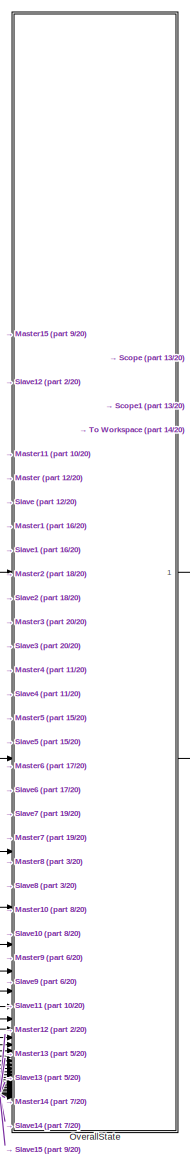
[diagram: root canvas - part 1/20, top right region]
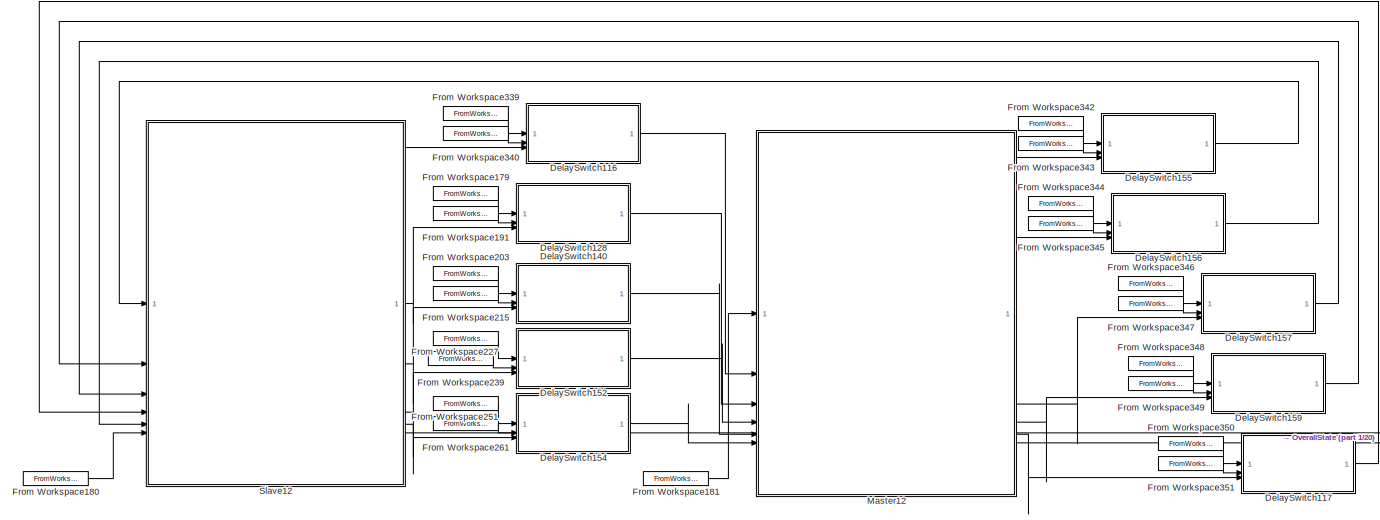
[diagram: root canvas - part 2/20, top left region]
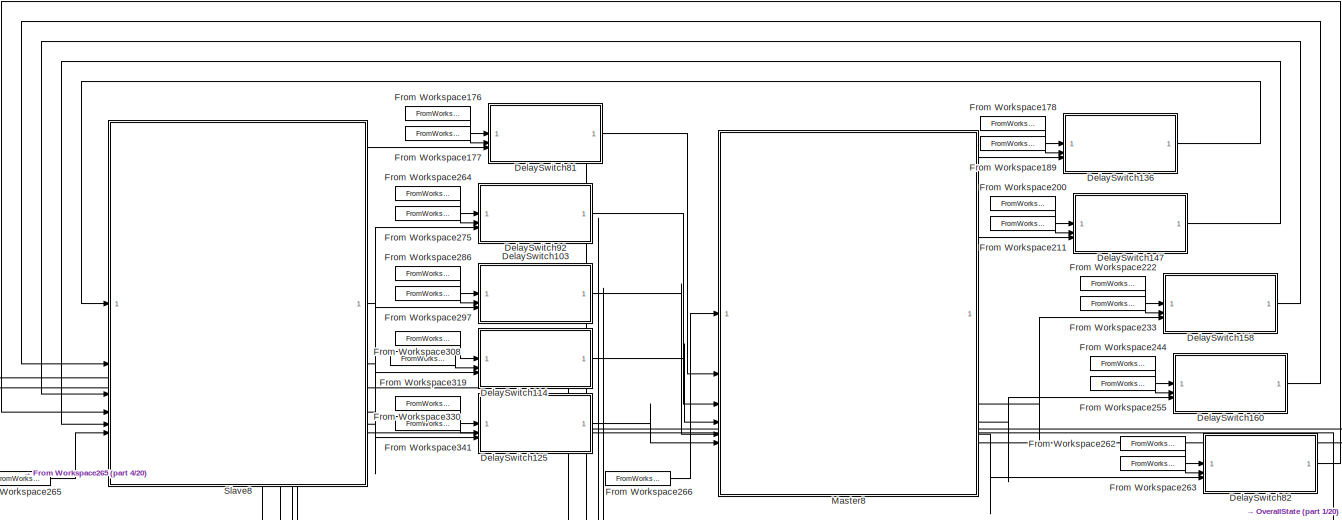
[diagram: root canvas - part 3/20, top center region]
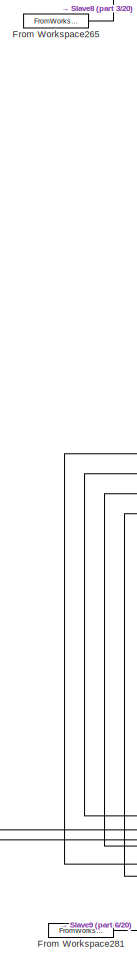
[diagram: root canvas - part 4/20, top center region]
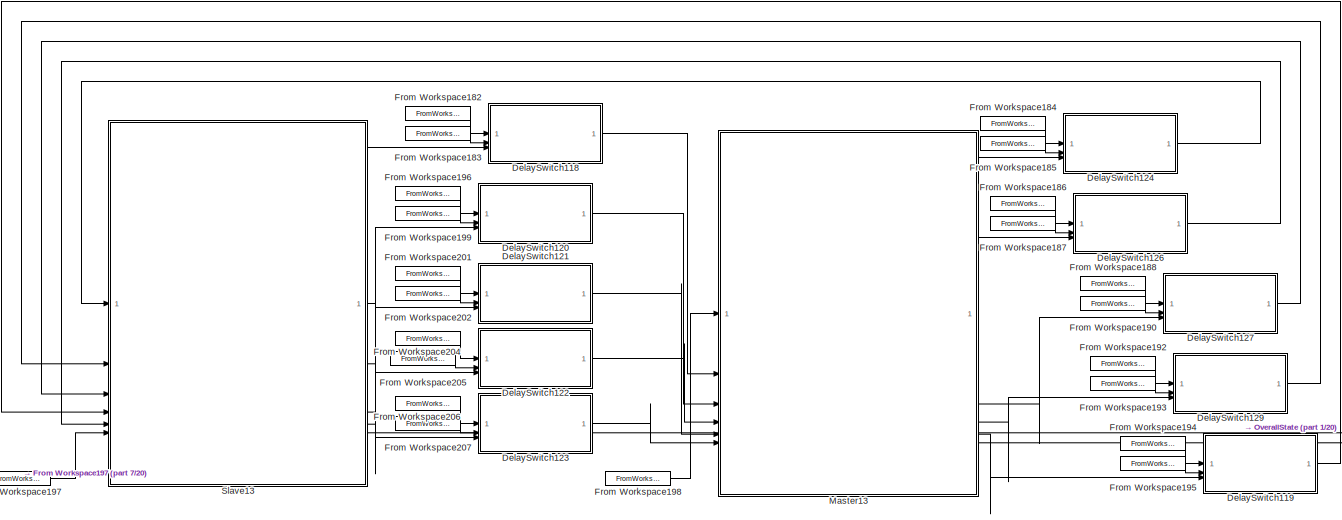
[diagram: root canvas - part 5/20, top left region]
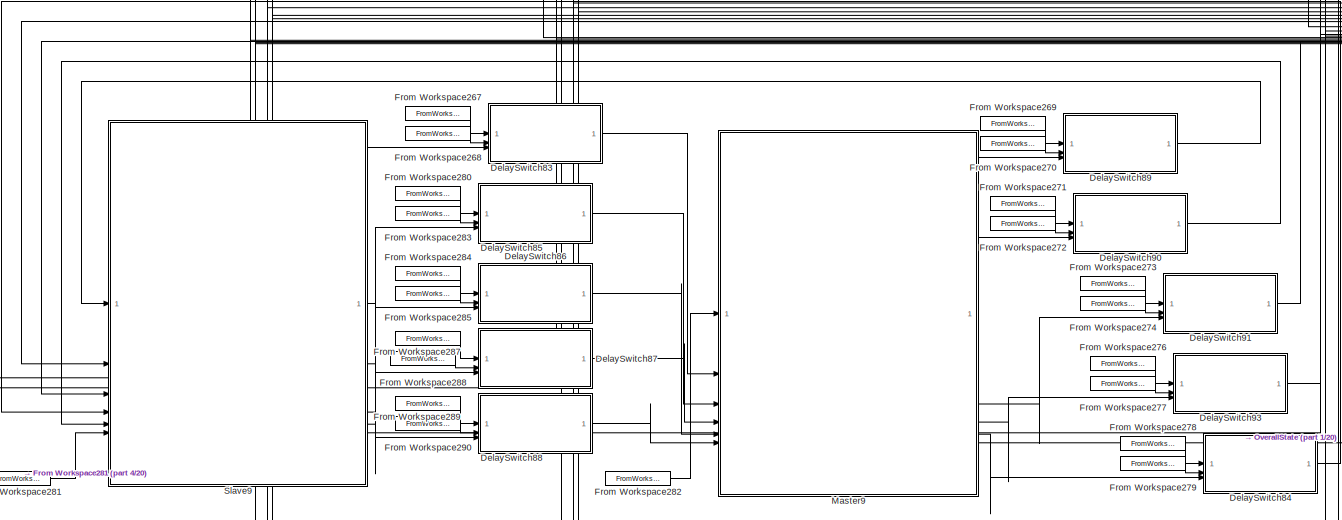
[diagram: root canvas - part 6/20, top center region]
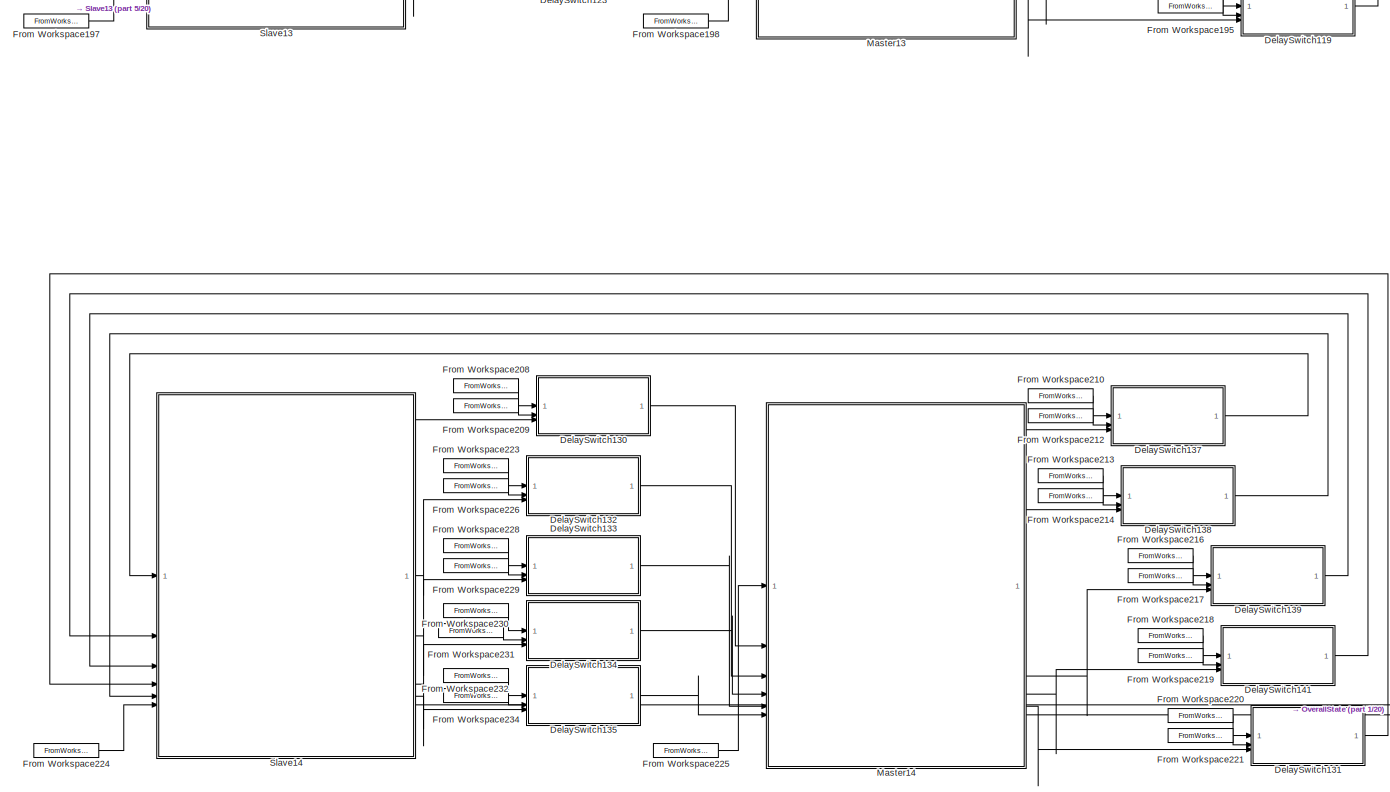
[diagram: root canvas - part 7/20, top left region]
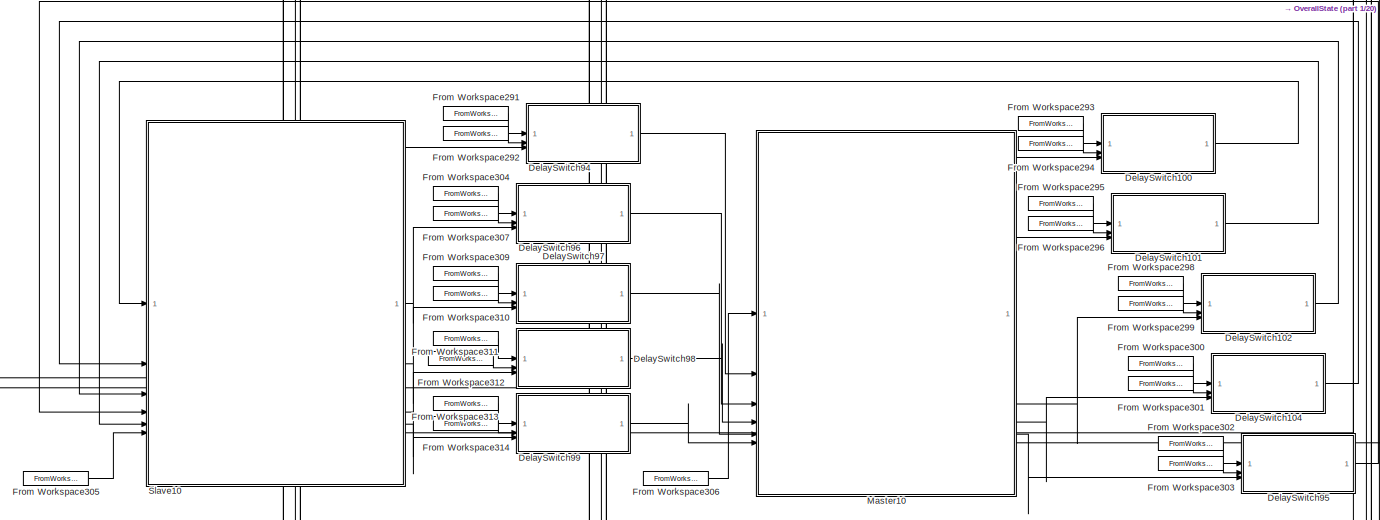
[diagram: root canvas - part 8/20, top center region]
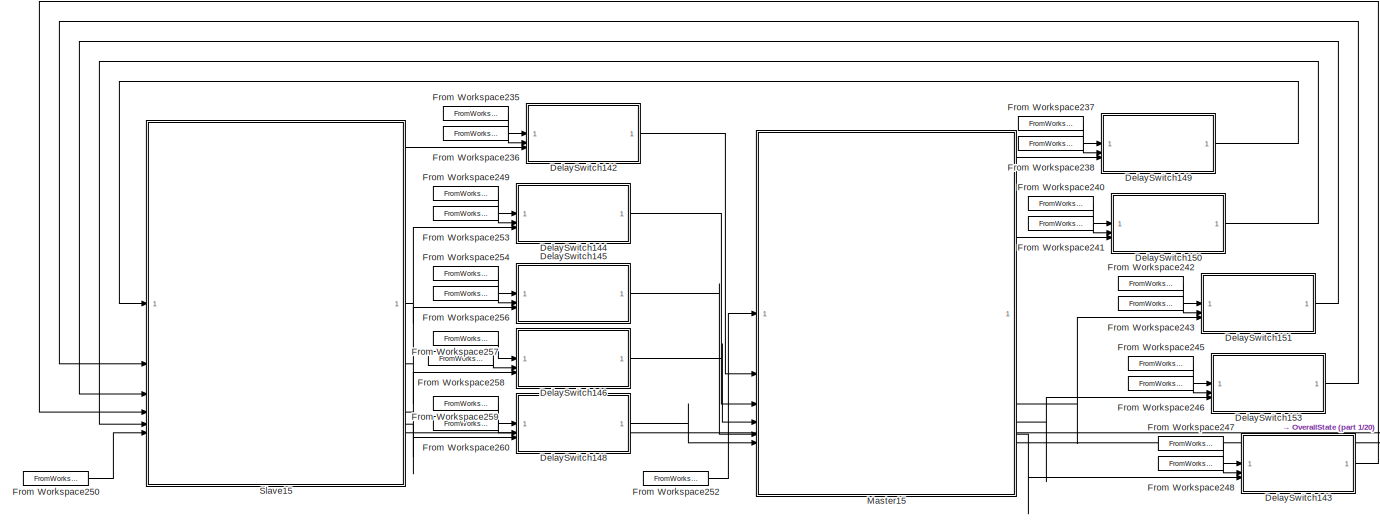
[diagram: root canvas - part 9/20, middle left region]
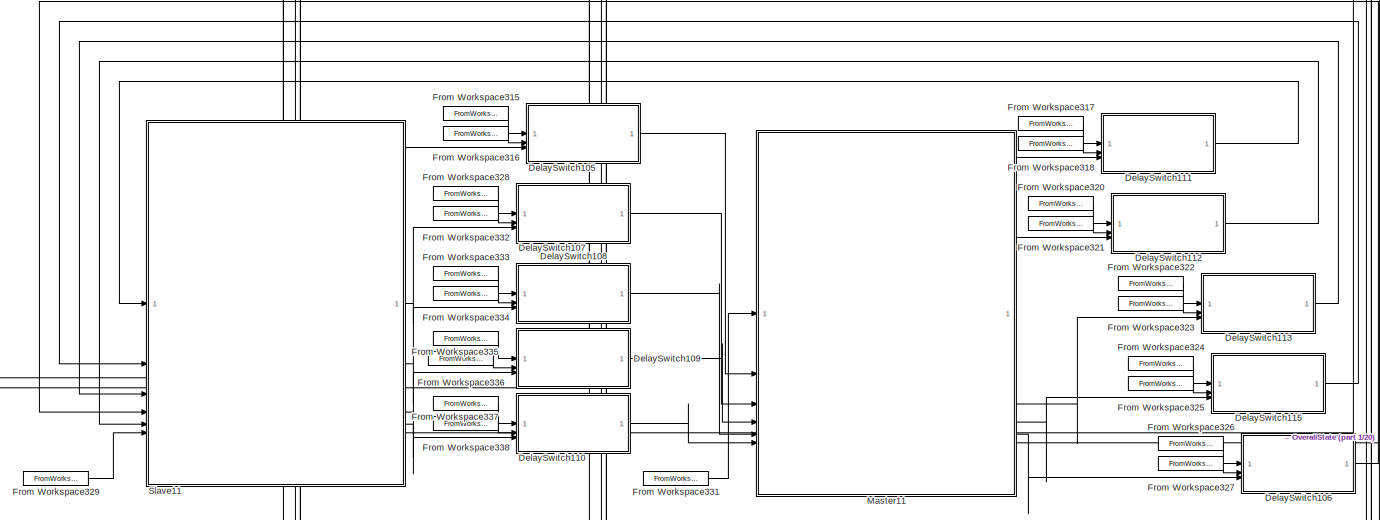
[diagram: root canvas - part 10/20, central region]
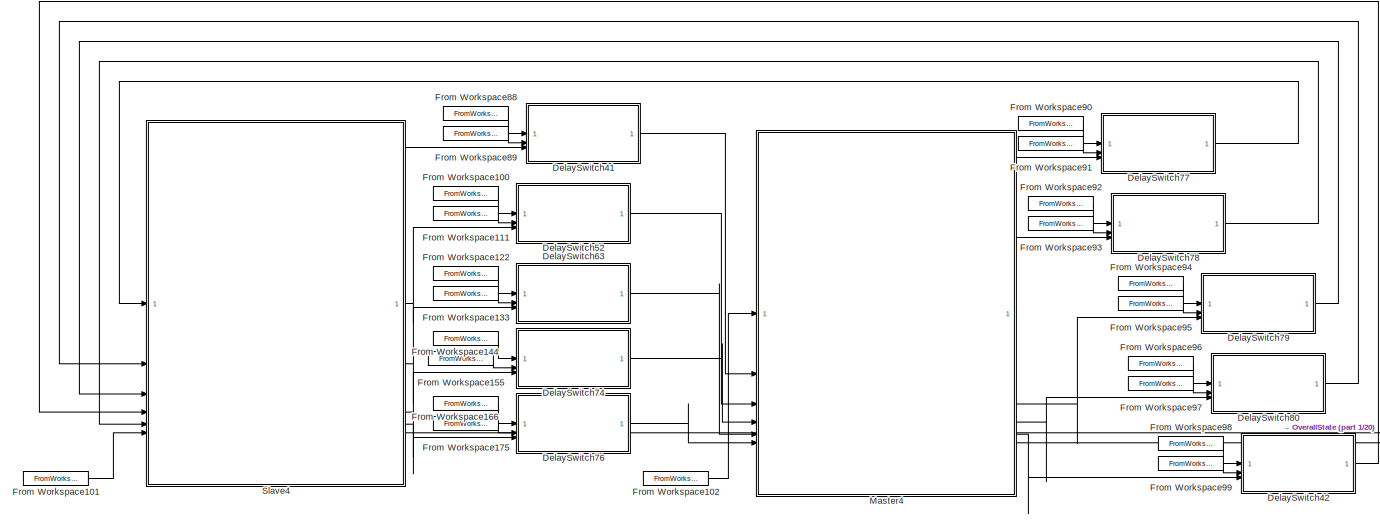
[diagram: root canvas - part 11/20, middle left region]
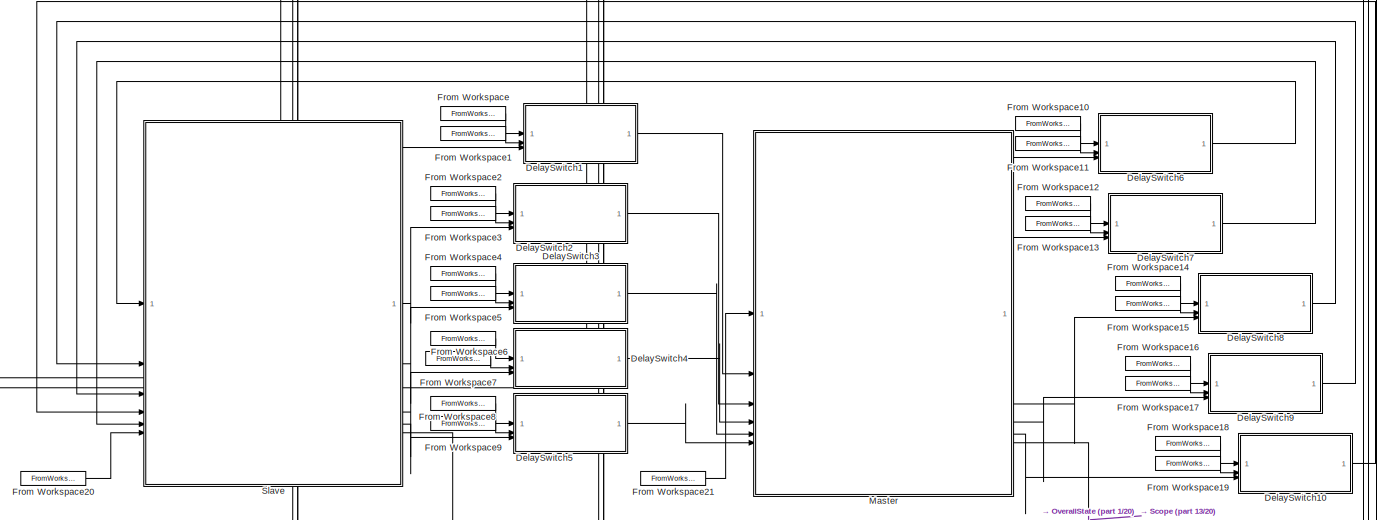
[diagram: root canvas - part 12/20, central region]
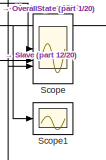
[diagram: root canvas - part 13/20, middle right region]
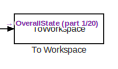
[diagram: root canvas - part 14/20, bottom right region]
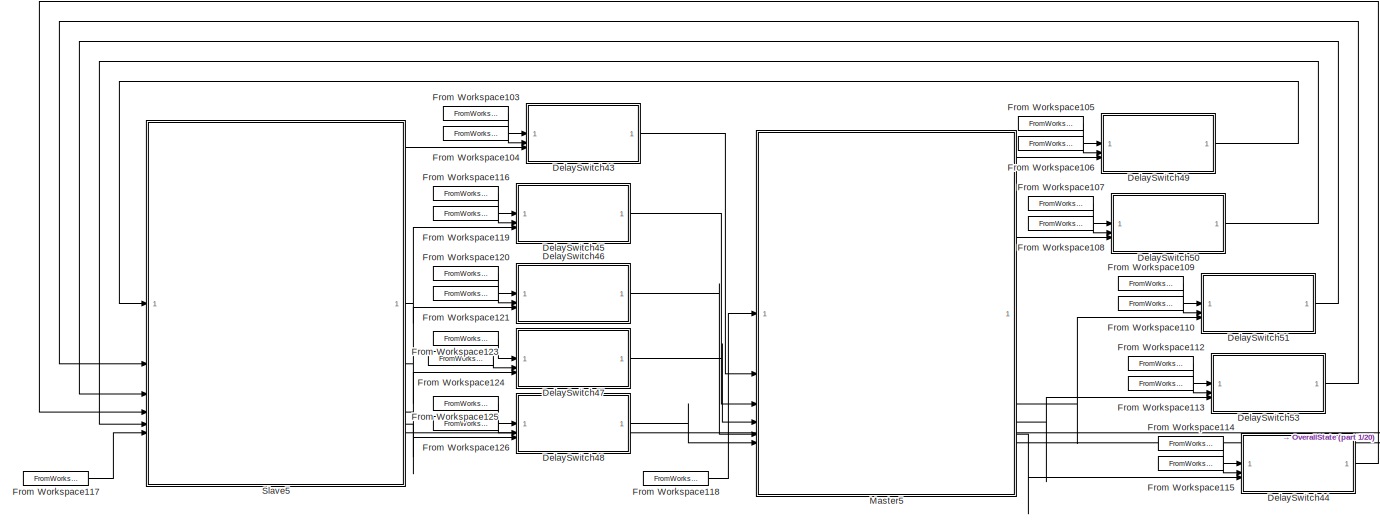
[diagram: root canvas - part 15/20, bottom left region]
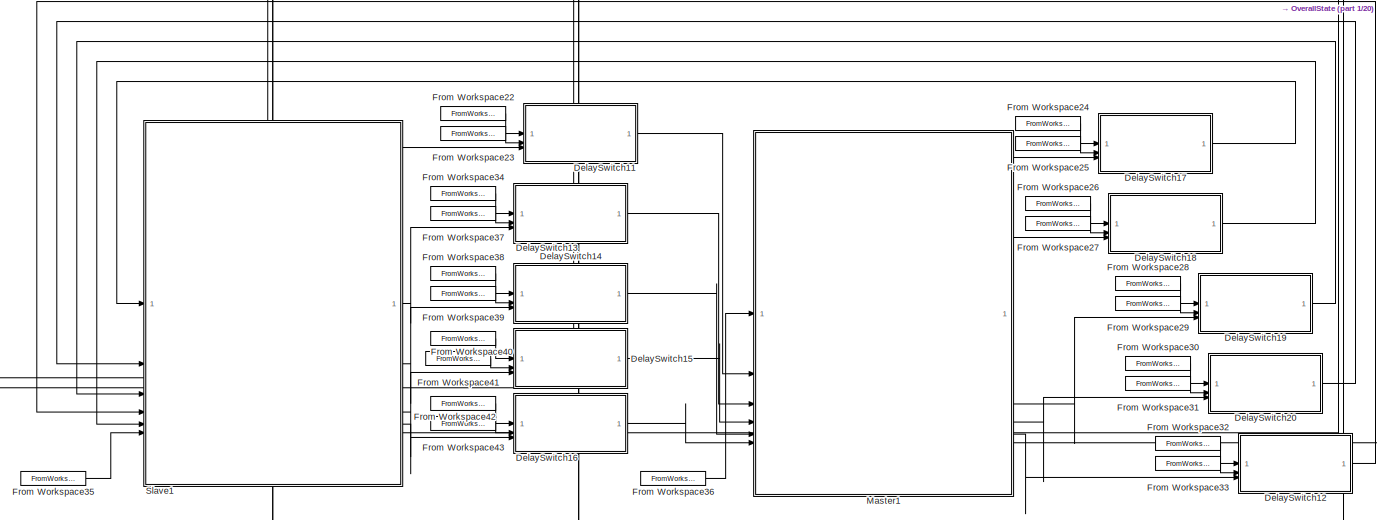
[diagram: root canvas - part 16/20, bottom center region]
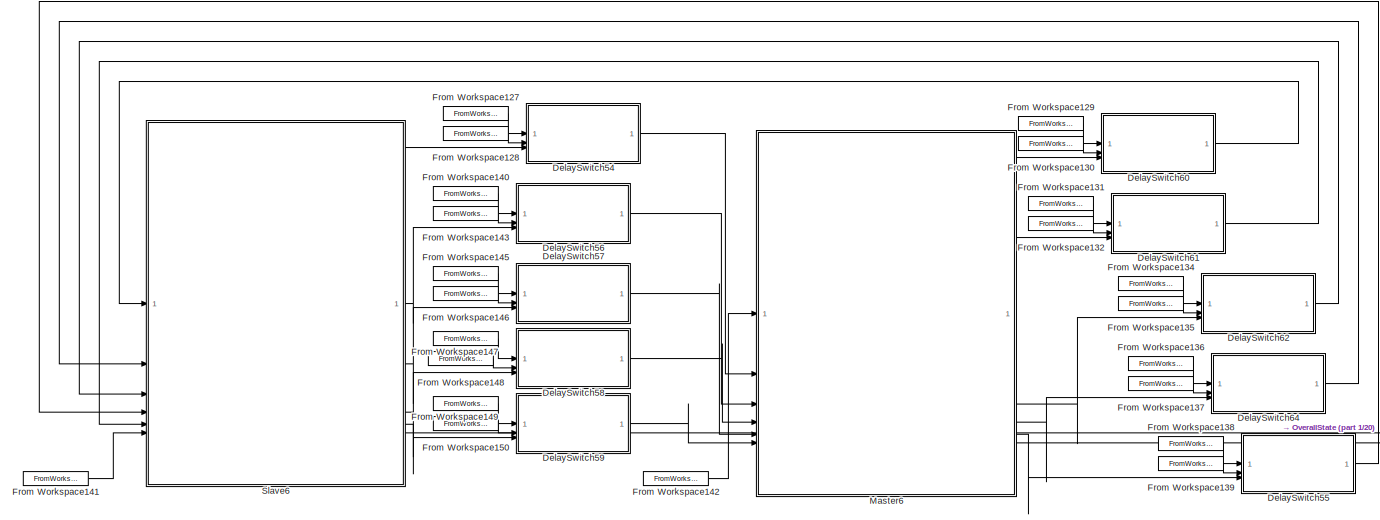
[diagram: root canvas - part 17/20, bottom left region]
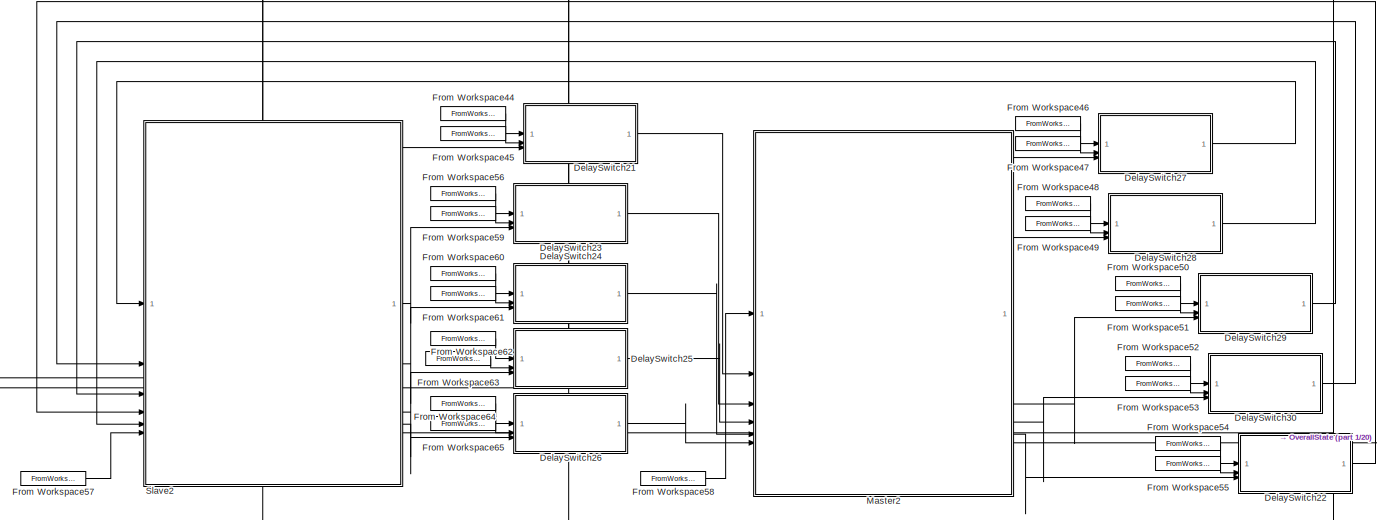
[diagram: root canvas - part 18/20, bottom center region]
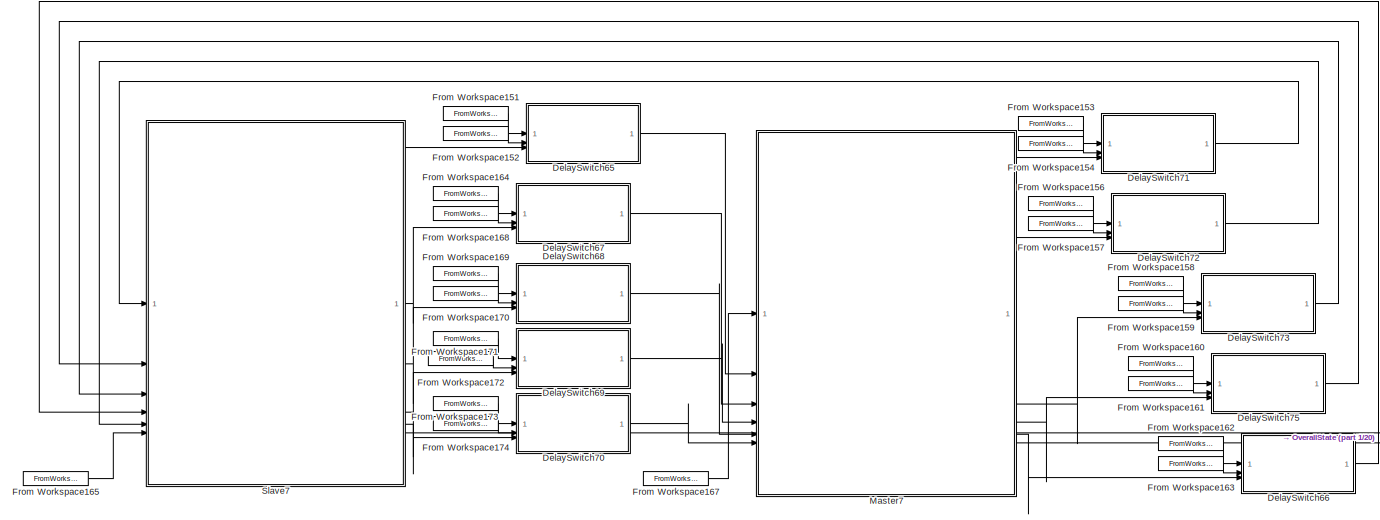
[diagram: root canvas - part 19/20, bottom left region]
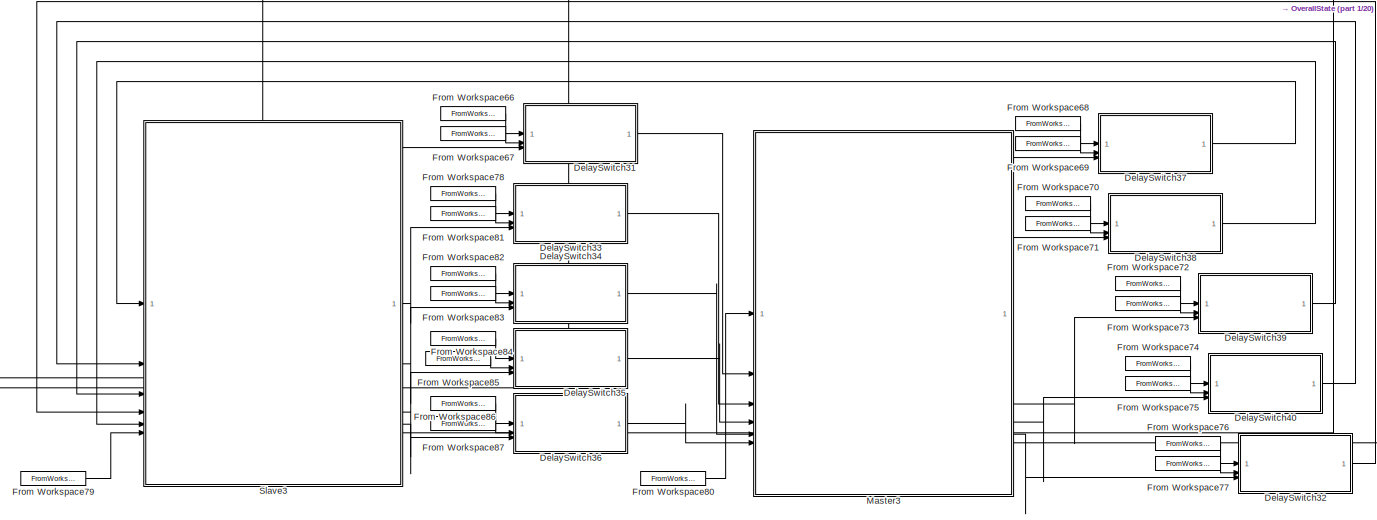
[diagram: root canvas - part 20/20, bottom center region]
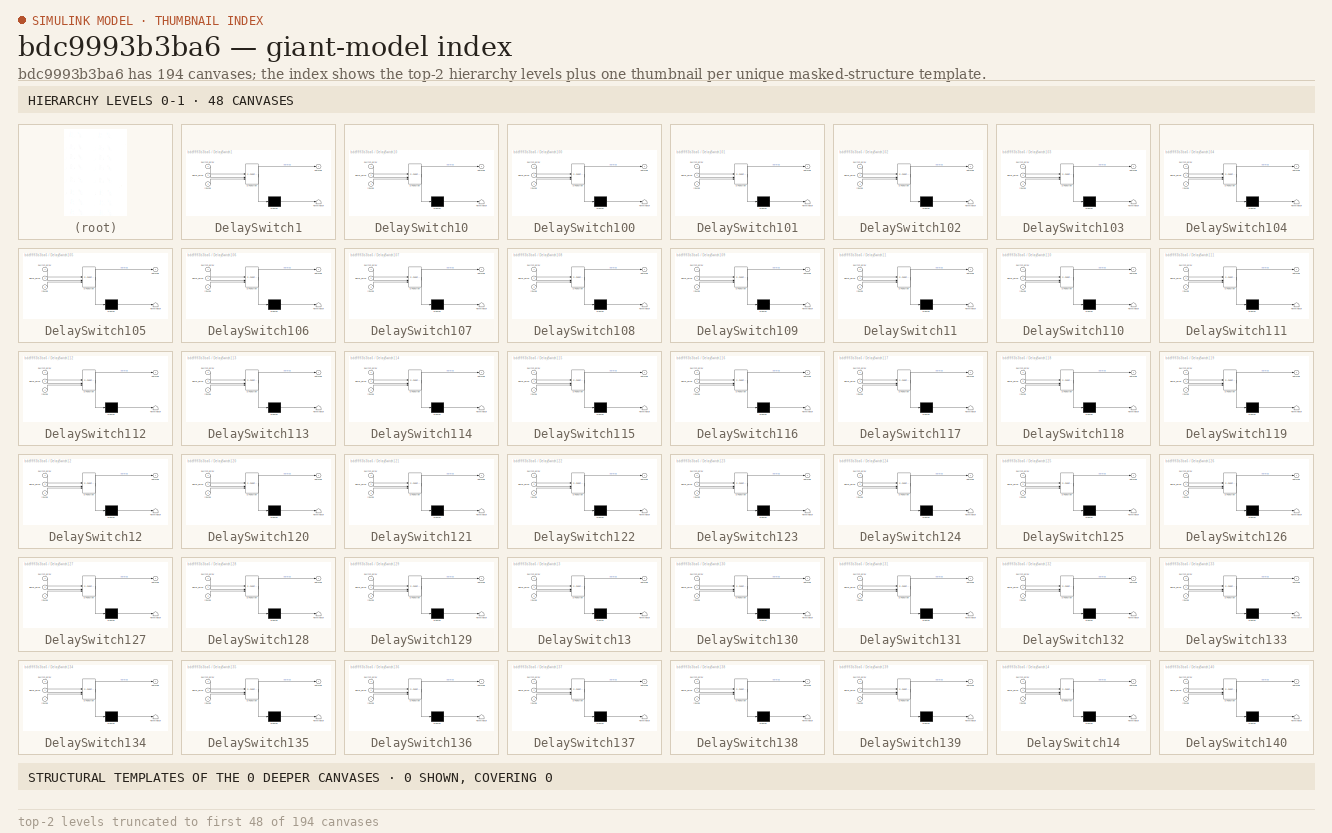
[diagram: thumbnail index - top-2 hierarchy levels (194 canvases (first 48 of 194 shown)) + 0 structural-template representatives of the remaining 0 canvases]
MODEL slx_bdc9993b3ba6
KIND model
CONFIG AbsTol = auto
CONFIG EnableMultiTasking = off
CONFIG FixedStep = auto
CONFIG InitFcn = RandStream.setGlobalStream(RandStream('mt19937ar','seed',sum(100*clock)));
CONFIG MaxStep = auto
CONFIG MinStep = auto
CONFIG RelTol = 1e-3
CONFIG SampleTimeConstraint = Unconstrained
CONFIG SolverName = VariableStepAuto
CONFIG StartTime = 0.0
CONFIG StopTime = 30
BLOCK [SubSystem] DelaySwitch1
  ErrorFcn = Stateflow.Translate.translate
  PermitHierarchicalResolution = ExplicitOnly
  SFBlockType = Chart
  TreatAsAtomicUnit = on
BLOCK [Demux] DelaySwitch1/ Demux 
  Outputs = 1
BLOCK [S-Function] DelaySwitch1/ SFunction 
  EnableBusSupport = on
  FunctionName = sf_sfun
  InputPortMessageModes = n,n,m
  OutputPortMessageModes = n,m
  PortCounts = [3 2]
  SFcnIsStateOwnerBlock = off
  SFunctionDeploymentMode = off
  Tag = Stateflow S-Function 1
BLOCK [Terminator] DelaySwitch1/ Terminator 
BLOCK [Inport] DelaySwitch1/delay_array
  Port = 2
BLOCK [Inport] DelaySwitch1/inMsg
  Port = 3
BLOCK [Outport] DelaySwitch1/outMsg
BLOCK [Inport] DelaySwitch1/switch_array
BLOCK [SubSystem] DelaySwitch10
  ErrorFcn = Stateflow.Translate.translate
  PermitHierarchicalResolution = ExplicitOnly
  SFBlockType = Chart
  TreatAsAtomicUnit = on
BLOCK [Demux] DelaySwitch10/ Demux 
  Outputs = 1
BLOCK [S-Function] DelaySwitch10/ SFunction 
  EnableBusSupport = on
  FunctionName = sf_sfun
  InputPortMessageModes = n,n,m
  OutputPortMessageModes = n,m
  PortCounts = [3 2]
  SFcnIsStateOwnerBlock = off
  SFunctionDeploymentMode = off
  Tag = Stateflow S-Function 12
BLOCK [Terminator] DelaySwitch10/ Terminator 
BLOCK [Inport] DelaySwitch10/delay_array
  Port = 2
BLOCK [Inport] DelaySwitch10/inMsg
  Port = 3
BLOCK [Outport] DelaySwitch10/outMsg
BLOCK [Inport] DelaySwitch10/switch_array
BLOCK [SubSystem] DelaySwitch100
  ErrorFcn = Stateflow.Translate.translate
  PermitHierarchicalResolution = ExplicitOnly
  SFBlockType = Chart
  TreatAsAtomicUnit = on
BLOCK [Demux] DelaySwitch100/ Demux 
  Outputs = 1
BLOCK [S-Function] DelaySwitch100/ SFunction 
  EnableBusSupport = on
  FunctionName = sf_sfun
  InputPortMessageModes = n,n,m
  OutputPortMessageModes = n,m
  PortCounts = [3 2]
  SFcnIsStateOwnerBlock = off
  SFunctionDeploymentMode = off
  Tag = Stateflow S-Function 98
BLOCK [Terminator] DelaySwitch100/ Terminator 
BLOCK [Inport] DelaySwitch100/delay_array
  Port = 2
BLOCK [Inport] DelaySwitch100/inMsg
  Port = 3
BLOCK [Outport] DelaySwitch100/outMsg
BLOCK [Inport] DelaySwitch100/switch_array
BLOCK [SubSystem] DelaySwitch101
  ErrorFcn = Stateflow.Translate.translate
  PermitHierarchicalResolution = ExplicitOnly
  SFBlockType = Chart
  TreatAsAtomicUnit = on
BLOCK [Demux] DelaySwitch101/ Demux 
  Outputs = 1
BLOCK [S-Function] DelaySwitch101/ SFunction 
  EnableBusSupport = on
  FunctionName = sf_sfun
  InputPortMessageModes = n,n,m
  OutputPortMessageModes = n,m
  PortCounts = [3 2]
  SFcnIsStateOwnerBlock = off
  SFunctionDeploymentMode = off
  Tag = Stateflow S-Function 99
BLOCK [Terminator] DelaySwitch101/ Terminator 
BLOCK [Inport] DelaySwitch101/delay_array
  Port = 2
BLOCK [Inport] DelaySwitch101/inMsg
  Port = 3
BLOCK [Outport] DelaySwitch101/outMsg
BLOCK [Inport] DelaySwitch101/switch_array
BLOCK [SubSystem] DelaySwitch102
  ErrorFcn = Stateflow.Translate.translate
  PermitHierarchicalResolution = ExplicitOnly
  SFBlockType = Chart
  TreatAsAtomicUnit = on
BLOCK [Demux] DelaySwitch102/ Demux 
  Outputs = 1
BLOCK [S-Function] DelaySwitch102/ SFunction 
  EnableBusSupport = on
  FunctionName = sf_sfun
  InputPortMessageModes = n,n,m
  OutputPortMessageModes = n,m
  PortCounts = [3 2]
  SFcnIsStateOwnerBlock = off
  SFunctionDeploymentMode = off
  Tag = Stateflow S-Function 100
BLOCK [Terminator] DelaySwitch102/ Terminator 
BLOCK [Inport] DelaySwitch102/delay_array
  Port = 2
BLOCK [Inport] DelaySwitch102/inMsg
  Port = 3
BLOCK [Outport] DelaySwitch102/outMsg
BLOCK [Inport] DelaySwitch102/switch_array
BLOCK [SubSystem] DelaySwitch103
  ErrorFcn = Stateflow.Translate.translate
  PermitHierarchicalResolution = ExplicitOnly
  SFBlockType = Chart
  TreatAsAtomicUnit = on
BLOCK [Demux] DelaySwitch103/ Demux 
  Outputs = 1
BLOCK [S-Function] DelaySwitch103/ SFunction 
  EnableBusSupport = on
  FunctionName = sf_sfun
  InputPortMessageModes = n,n,m
  OutputPortMessageModes = n,m
  PortCounts = [3 2]
  SFcnIsStateOwnerBlock = off
  SFunctionDeploymentMode = off
  Tag = Stateflow S-Function 101
BLOCK [Terminator] DelaySwitch103/ Terminator 
BLOCK [Inport] DelaySwitch103/delay_array
  Port = 2
BLOCK [Inport] DelaySwitch103/inMsg
  Port = 3
BLOCK [Outport] DelaySwitch103/outMsg
BLOCK [Inport] DelaySwitch103/switch_array
BLOCK [SubSystem] DelaySwitch104
  ErrorFcn = Stateflow.Translate.translate
  PermitHierarchicalResolution = ExplicitOnly
  SFBlockType = Chart
  TreatAsAtomicUnit = on
BLOCK [Demux] DelaySwitch104/ Demux 
  Outputs = 1
BLOCK [S-Function] DelaySwitch104/ SFunction 
  EnableBusSupport = on
  FunctionName = sf_sfun
  InputPortMessageModes = n,n,m
  OutputPortMessageModes = n,m
  PortCounts = [3 2]
  SFcnIsStateOwnerBlock = off
  SFunctionDeploymentMode = off
  Tag = Stateflow S-Function 102
BLOCK [Terminator] DelaySwitch104/ Terminator 
BLOCK [Inport] DelaySwitch104/delay_array
  Port = 2
BLOCK [Inport] DelaySwitch104/inMsg
  Port = 3
BLOCK [Outport] DelaySwitch104/outMsg
BLOCK [Inport] DelaySwitch104/switch_array
BLOCK [SubSystem] DelaySwitch105
  ErrorFcn = Stateflow.Translate.translate
  PermitHierarchicalResolution = ExplicitOnly
  SFBlockType = Chart
  TreatAsAtomicUnit = on
BLOCK [Demux] DelaySwitch105/ Demux 
  Outputs = 1
BLOCK [S-Function] DelaySwitch105/ SFunction 
  EnableBusSupport = on
  FunctionName = sf_sfun
  InputPortMessageModes = n,n,m
  OutputPortMessageModes = n,m
  PortCounts = [3 2]
  SFcnIsStateOwnerBlock = off
  SFunctionDeploymentMode = off
  Tag = Stateflow S-Function 103
BLOCK [Terminator] DelaySwitch105/ Terminator 
BLOCK [Inport] DelaySwitch105/delay_array
  Port = 2
BLOCK [Inport] DelaySwitch105/inMsg
  Port = 3
BLOCK [Outport] DelaySwitch105/outMsg
BLOCK [Inport] DelaySwitch105/switch_array
BLOCK [SubSystem] DelaySwitch106
  ErrorFcn = Stateflow.Translate.translate
  PermitHierarchicalResolution = ExplicitOnly
  SFBlockType = Chart
  TreatAsAtomicUnit = on
BLOCK [Demux] DelaySwitch106/ Demux 
  Outputs = 1
BLOCK [S-Function] DelaySwitch106/ SFunction 
  EnableBusSupport = on
  FunctionName = sf_sfun
  InputPortMessageModes = n,n,m
  OutputPortMessageModes = n,m
  PortCounts = [3 2]
  SFcnIsStateOwnerBlock = off
  SFunctionDeploymentMode = off
  Tag = Stateflow S-Function 104
BLOCK [Terminator] DelaySwitch106/ Terminator 
BLOCK [Inport] DelaySwitch106/delay_array
  Port = 2
BLOCK [Inport] DelaySwitch106/inMsg
  Port = 3
BLOCK [Outport] DelaySwitch106/outMsg
BLOCK [Inport] DelaySwitch106/switch_array
BLOCK [SubSystem] DelaySwitch107
  ErrorFcn = Stateflow.Translate.translate
  PermitHierarchicalResolution = ExplicitOnly
  SFBlockType = Chart
  TreatAsAtomicUnit = on
BLOCK [Demux] DelaySwitch107/ Demux 
  Outputs = 1
BLOCK [S-Function] DelaySwitch107/ SFunction 
  EnableBusSupport = on
  FunctionName = sf_sfun
  InputPortMessageModes = n,n,m
  OutputPortMessageModes = n,m
  PortCounts = [3 2]
  SFcnIsStateOwnerBlock = off
  SFunctionDeploymentMode = off
  Tag = Stateflow S-Function 105
BLOCK [Terminator] DelaySwitch107/ Terminator 
BLOCK [Inport] DelaySwitch107/delay_array
  Port = 2
BLOCK [Inport] DelaySwitch107/inMsg
  Port = 3
BLOCK [Outport] DelaySwitch107/outMsg
BLOCK [Inport] DelaySwitch107/switch_array
BLOCK [SubSystem] DelaySwitch108
  ErrorFcn = Stateflow.Translate.translate
  PermitHierarchicalResolution = ExplicitOnly
  SFBlockType = Chart
  TreatAsAtomicUnit = on
BLOCK [Demux] DelaySwitch108/ Demux 
  Outputs = 1
BLOCK [S-Function] DelaySwitch108/ SFunction 
  EnableBusSupport = on
  FunctionName = sf_sfun
  InputPortMessageModes = n,n,m
  OutputPortMessageModes = n,m
  PortCounts = [3 2]
  SFcnIsStateOwnerBlock = off
  SFunctionDeploymentMode = off
  Tag = Stateflow S-Function 106
BLOCK [Terminator] DelaySwitch108/ Terminator 
BLOCK [Inport] DelaySwitch108/delay_array
  Port = 2
BLOCK [Inport] DelaySwitch108/inMsg
  Port = 3
BLOCK [Outport] DelaySwitch108/outMsg
BLOCK [Inport] DelaySwitch108/switch_array
BLOCK [SubSystem] DelaySwitch109
  ErrorFcn = Stateflow.Translate.translate
  PermitHierarchicalResolution = ExplicitOnly
  SFBlockType = Chart
  TreatAsAtomicUnit = on
BLOCK [Demux] DelaySwitch109/ Demux 
  Outputs = 1
BLOCK [S-Function] DelaySwitch109/ SFunction 
  EnableBusSupport = on
  FunctionName = sf_sfun
  InputPortMessageModes = n,n,m
  OutputPortMessageModes = n,m
  PortCounts = [3 2]
  SFcnIsStateOwnerBlock = off
  SFunctionDeploymentMode = off
  Tag = Stateflow S-Function 107
BLOCK [Terminator] DelaySwitch109/ Terminator 
BLOCK [Inport] DelaySwitch109/delay_array
  Port = 2
BLOCK [Inport] DelaySwitch109/inMsg
  Port = 3
BLOCK [Outport] DelaySwitch109/outMsg
BLOCK [Inport] DelaySwitch109/switch_array
BLOCK [SubSystem] DelaySwitch11
  ErrorFcn = Stateflow.Translate.translate
  PermitHierarchicalResolution = ExplicitOnly
  SFBlockType = Chart
  TreatAsAtomicUnit = on
BLOCK [Demux] DelaySwitch11/ Demux 
  Outputs = 1
BLOCK [S-Function] DelaySwitch11/ SFunction 
  EnableBusSupport = on
  FunctionName = sf_sfun
  InputPortMessageModes = n,n,m
  OutputPortMessageModes = n,m
  PortCounts = [3 2]
  SFcnIsStateOwnerBlock = off
  SFunctionDeploymentMode = off
  Tag = Stateflow S-Function 14
BLOCK [Terminator] DelaySwitch11/ Terminator 
BLOCK [Inport] DelaySwitch11/delay_array
  Port = 2
BLOCK [Inport] DelaySwitch11/inMsg
  Port = 3
BLOCK [Outport] DelaySwitch11/outMsg
BLOCK [Inport] DelaySwitch11/switch_array
BLOCK [SubSystem] DelaySwitch110
  ErrorFcn = Stateflow.Translate.translate
  PermitHierarchicalResolution = ExplicitOnly
  SFBlockType = Chart
  TreatAsAtomicUnit = on
BLOCK [Demux] DelaySwitch110/ Demux 
  Outputs = 1
BLOCK [S-Function] DelaySwitch110/ SFunction 
  EnableBusSupport = on
  FunctionName = sf_sfun
  InputPortMessageModes = n,n,m
  OutputPortMessageModes = n,m
  PortCounts = [3 2]
  SFcnIsStateOwnerBlock = off
  SFunctionDeploymentMode = off
  Tag = Stateflow S-Function 108
BLOCK [Terminator] DelaySwitch110/ Terminator 
BLOCK [Inport] DelaySwitch110/delay_array
  Port = 2
BLOCK [Inport] DelaySwitch110/inMsg
  Port = 3
BLOCK [Outport] DelaySwitch110/outMsg
BLOCK [Inport] DelaySwitch110/switch_array
BLOCK [SubSystem] DelaySwitch111
  ErrorFcn = Stateflow.Translate.translate
  PermitHierarchicalResolution = ExplicitOnly
  SFBlockType = Chart
  TreatAsAtomicUnit = on
BLOCK [Demux] DelaySwitch111/ Demux 
  Outputs = 1
BLOCK [S-Function] DelaySwitch111/ SFunction 
  EnableBusSupport = on
  FunctionName = sf_sfun
  InputPortMessageModes = n,n,m
  OutputPortMessageModes = n,m
  PortCounts = [3 2]
  SFcnIsStateOwnerBlock = off
  SFunctionDeploymentMode = off
  Tag = Stateflow S-Function 109
BLOCK [Terminator] DelaySwitch111/ Terminator 
BLOCK [Inport] DelaySwitch111/delay_array
  Port = 2
BLOCK [Inport] DelaySwitch111/inMsg
  Port = 3
BLOCK [Outport] DelaySwitch111/outMsg
BLOCK [Inport] DelaySwitch111/switch_array
BLOCK [SubSystem] DelaySwitch112
  ErrorFcn = Stateflow.Translate.translate
  PermitHierarchicalResolution = ExplicitOnly
  SFBlockType = Chart
  TreatAsAtomicUnit = on
BLOCK [Demux] DelaySwitch112/ Demux 
  Outputs = 1
BLOCK [S-Function] DelaySwitch112/ SFunction 
  EnableBusSupport = on
  FunctionName = sf_sfun
  InputPortMessageModes = n,n,m
  OutputPortMessageModes = n,m
  PortCounts = [3 2]
  SFcnIsStateOwnerBlock = off
  SFunctionDeploymentMode = off
  Tag = Stateflow S-Function 110
BLOCK [Terminator] DelaySwitch112/ Terminator 
BLOCK [Inport] DelaySwitch112/delay_array
  Port = 2
BLOCK [Inport] DelaySwitch112/inMsg
  Port = 3
BLOCK [Outport] DelaySwitch112/outMsg
BLOCK [Inport] DelaySwitch112/switch_array
BLOCK [SubSystem] DelaySwitch113
  ErrorFcn = Stateflow.Translate.translate
  PermitHierarchicalResolution = ExplicitOnly
  SFBlockType = Chart
  TreatAsAtomicUnit = on
BLOCK [Demux] DelaySwitch113/ Demux 
  Outputs = 1
BLOCK [S-Function] DelaySwitch113/ SFunction 
  EnableBusSupport = on
  FunctionName = sf_sfun
  InputPortMessageModes = n,n,m
  OutputPortMessageModes = n,m
  PortCounts = [3 2]
  SFcnIsStateOwnerBlock = off
  SFunctionDeploymentMode = off
  Tag = Stateflow S-Function 111
BLOCK [Terminator] DelaySwitch113/ Terminator 
BLOCK [Inport] DelaySwitch113/delay_array
  Port = 2
BLOCK [Inport] DelaySwitch113/inMsg
  Port = 3
BLOCK [Outport] DelaySwitch113/outMsg
BLOCK [Inport] DelaySwitch113/switch_array
BLOCK [SubSystem] DelaySwitch114
  ErrorFcn = Stateflow.Translate.translate
  PermitHierarchicalResolution = ExplicitOnly
  SFBlockType = Chart
  TreatAsAtomicUnit = on
BLOCK [Demux] DelaySwitch114/ Demux 
  Outputs = 1
BLOCK [S-Function] DelaySwitch114/ SFunction 
  EnableBusSupport = on
  FunctionName = sf_sfun
  InputPortMessageModes = n,n,m
  OutputPortMessageModes = n,m
  PortCounts = [3 2]
  SFcnIsStateOwnerBlock = off
  SFunctionDeploymentMode = off
  Tag = Stateflow S-Function 112
BLOCK [Terminator] DelaySwitch114/ Terminator 
BLOCK [Inport] DelaySwitch114/delay_array
  Port = 2
BLOCK [Inport] DelaySwitch114/inMsg
  Port = 3
BLOCK [Outport] DelaySwitch114/outMsg
BLOCK [Inport] DelaySwitch114/switch_array
BLOCK [SubSystem] DelaySwitch115
  ErrorFcn = Stateflow.Translate.translate
  PermitHierarchicalResolution = ExplicitOnly
  SFBlockType = Chart
  TreatAsAtomicUnit = on
BLOCK [Demux] DelaySwitch115/ Demux 
  Outputs = 1
BLOCK [S-Function] DelaySwitch115/ SFunction 
  EnableBusSupport = on
  FunctionName = sf_sfun
  InputPortMessageModes = n,n,m
  OutputPortMessageModes = n,m
  PortCounts = [3 2]
  SFcnIsStateOwnerBlock = off
  SFunctionDeploymentMode = off
  Tag = Stateflow S-Function 113
BLOCK [Terminator] DelaySwitch115/ Terminator 
BLOCK [Inport] DelaySwitch115/delay_array
  Port = 2
BLOCK [Inport] DelaySwitch115/inMsg
  Port = 3
BLOCK [Outport] DelaySwitch115/outMsg
BLOCK [Inport] DelaySwitch115/switch_array
BLOCK [SubSystem] DelaySwitch116
  ErrorFcn = Stateflow.Translate.translate
  PermitHierarchicalResolution = ExplicitOnly
  SFBlockType = Chart
  TreatAsAtomicUnit = on
BLOCK [Demux] DelaySwitch116/ Demux 
  Outputs = 1
BLOCK [S-Function] DelaySwitch116/ SFunction 
  EnableBusSupport = on
  FunctionName = sf_sfun
  InputPortMessageModes = n,n,m
  OutputPortMessageModes = n,m
  PortCounts = [3 2]
  SFcnIsStateOwnerBlock = off
  SFunctionDeploymentMode = off
  Tag = Stateflow S-Function 114
BLOCK [Terminator] DelaySwitch116/ Terminator 
BLOCK [Inport] DelaySwitch116/delay_array
  Port = 2
BLOCK [Inport] DelaySwitch116/inMsg
  Port = 3
BLOCK [Outport] DelaySwitch116/outMsg
BLOCK [Inport] DelaySwitch116/switch_array
BLOCK [SubSystem] DelaySwitch117
  ErrorFcn = Stateflow.Translate.translate
  PermitHierarchicalResolution = ExplicitOnly
  SFBlockType = Chart
  TreatAsAtomicUnit = on
BLOCK [Demux] DelaySwitch117/ Demux 
  Outputs = 1
BLOCK [S-Function] DelaySwitch117/ SFunction 
  EnableBusSupport = on
  FunctionName = sf_sfun
  InputPortMessageModes = n,n,m
  OutputPortMessageModes = n,m
  PortCounts = [3 2]
  SFcnIsStateOwnerBlock = off
  SFunctionDeploymentMode = off
  Tag = Stateflow S-Function 115
BLOCK [Terminator] DelaySwitch117/ Terminator 
BLOCK [Inport] DelaySwitch117/delay_array
  Port = 2
BLOCK [Inport] DelaySwitch117/inMsg
  Port = 3
BLOCK [Outport] DelaySwitch117/outMsg
BLOCK [Inport] DelaySwitch117/switch_array
BLOCK [SubSystem] DelaySwitch118
  ErrorFcn = Stateflow.Translate.translate
  PermitHierarchicalResolution = ExplicitOnly
  SFBlockType = Chart
  TreatAsAtomicUnit = on
BLOCK [Demux] DelaySwitch118/ Demux 
  Outputs = 1
BLOCK [S-Function] DelaySwitch118/ SFunction 
  EnableBusSupport = on
  FunctionName = sf_sfun
  InputPortMessageModes = n,n,m
  OutputPortMessageModes = n,m
  PortCounts = [3 2]
  SFcnIsStateOwnerBlock = off
  SFunctionDeploymentMode = off
  Tag = Stateflow S-Function 116
BLOCK [Terminator] DelaySwitch118/ Terminator 
BLOCK [Inport] DelaySwitch118/delay_array
  Port = 2
BLOCK [Inport] DelaySwitch118/inMsg
  Port = 3
BLOCK [Outport] DelaySwitch118/outMsg
BLOCK [Inport] DelaySwitch118/switch_array
BLOCK [SubSystem] DelaySwitch119
  ErrorFcn = Stateflow.Translate.translate
  PermitHierarchicalResolution = ExplicitOnly
  SFBlockType = Chart
  TreatAsAtomicUnit = on
BLOCK [Demux] DelaySwitch119/ Demux 
  Outputs = 1
BLOCK [S-Function] DelaySwitch119/ SFunction 
  EnableBusSupport = on
  FunctionName = sf_sfun
  InputPortMessageModes = n,n,m
  OutputPortMessageModes = n,m
  PortCounts = [3 2]
  SFcnIsStateOwnerBlock = off
  SFunctionDeploymentMode = off
  Tag = Stateflow S-Function 117
BLOCK [Terminator] DelaySwitch119/ Terminator 
BLOCK [Inport] DelaySwitch119/delay_array
  Port = 2
BLOCK [Inport] DelaySwitch119/inMsg
  Port = 3
BLOCK [Outport] DelaySwitch119/outMsg
BLOCK [Inport] DelaySwitch119/switch_array
BLOCK [SubSystem] DelaySwitch12
  ErrorFcn = Stateflow.Translate.translate
  PermitHierarchicalResolution = ExplicitOnly
  SFBlockType = Chart
  TreatAsAtomicUnit = on
BLOCK [Demux] DelaySwitch12/ Demux 
  Outputs = 1
BLOCK [S-Function] DelaySwitch12/ SFunction 
  EnableBusSupport = on
  FunctionName = sf_sfun
  InputPortMessageModes = n,n,m
  OutputPortMessageModes = n,m
  PortCounts = [3 2]
  SFcnIsStateOwnerBlock = off
  SFunctionDeploymentMode = off
  Tag = Stateflow S-Function 15
BLOCK [Terminator] DelaySwitch12/ Terminator 
BLOCK [Inport] DelaySwitch12/delay_array
  Port = 2
BLOCK [Inport] DelaySwitch12/inMsg
  Port = 3
BLOCK [Outport] DelaySwitch12/outMsg
BLOCK [Inport] DelaySwitch12/switch_array
BLOCK [SubSystem] DelaySwitch120
  ErrorFcn = Stateflow.Translate.translate
  PermitHierarchicalResolution = ExplicitOnly
  SFBlockType = Chart
  TreatAsAtomicUnit = on
BLOCK [Demux] DelaySwitch120/ Demux 
  Outputs = 1
BLOCK [S-Function] DelaySwitch120/ SFunction 
  EnableBusSupport = on
  FunctionName = sf_sfun
  InputPortMessageModes = n,n,m
  OutputPortMessageModes = n,m
  PortCounts = [3 2]
  SFcnIsStateOwnerBlock = off
  SFunctionDeploymentMode = off
  Tag = Stateflow S-Function 118
BLOCK [Terminator] DelaySwitch120/ Terminator 
BLOCK [Inport] DelaySwitch120/delay_array
  Port = 2
BLOCK [Inport] DelaySwitch120/inMsg
  Port = 3
BLOCK [Outport] DelaySwitch120/outMsg
BLOCK [Inport] DelaySwitch120/switch_array
BLOCK [SubSystem] DelaySwitch121
  ErrorFcn = Stateflow.Translate.translate
  PermitHierarchicalResolution = ExplicitOnly
  SFBlockType = Chart
  TreatAsAtomicUnit = on
BLOCK [Demux] DelaySwitch121/ Demux 
  Outputs = 1
BLOCK [S-Function] DelaySwitch121/ SFunction 
  EnableBusSupport = on
  FunctionName = sf_sfun
  InputPortMessageModes = n,n,m
  OutputPortMessageModes = n,m
  PortCounts = [3 2]
  SFcnIsStateOwnerBlock = off
  SFunctionDeploymentMode = off
  Tag = Stateflow S-Function 119
BLOCK [Terminator] DelaySwitch121/ Terminator 
BLOCK [Inport] DelaySwitch121/delay_array
  Port = 2
BLOCK [Inport] DelaySwitch121/inMsg
  Port = 3
BLOCK [Outport] DelaySwitch121/outMsg
BLOCK [Inport] DelaySwitch121/switch_array
BLOCK [SubSystem] DelaySwitch122
  ErrorFcn = Stateflow.Translate.translate
  PermitHierarchicalResolution = ExplicitOnly
  SFBlockType = Chart
  TreatAsAtomicUnit = on
BLOCK [Demux] DelaySwitch122/ Demux 
  Outputs = 1
BLOCK [S-Function] DelaySwitch122/ SFunction 
  EnableBusSupport = on
  FunctionName = sf_sfun
  InputPortMessageModes = n,n,m
  OutputPortMessageModes = n,m
  PortCounts = [3 2]
  SFcnIsStateOwnerBlock = off
  SFunctionDeploymentMode = off
  Tag = Stateflow S-Function 120
BLOCK [Terminator] DelaySwitch122/ Terminator 
BLOCK [Inport] DelaySwitch122/delay_array
  Port = 2
BLOCK [Inport] DelaySwitch122/inMsg
  Port = 3
BLOCK [Outport] DelaySwitch122/outMsg
BLOCK [Inport] DelaySwitch122/switch_array
BLOCK [SubSystem] DelaySwitch123
  ErrorFcn = Stateflow.Translate.translate
  PermitHierarchicalResolution = ExplicitOnly
  SFBlockType = Chart
  TreatAsAtomicUnit = on
BLOCK [Demux] DelaySwitch123/ Demux 
  Outputs = 1
BLOCK [S-Function] DelaySwitch123/ SFunction 
  EnableBusSupport = on
  FunctionName = sf_sfun
  InputPortMessageModes = n,n,m
  OutputPortMessageModes = n,m
  PortCounts = [3 2]
  SFcnIsStateOwnerBlock = off
  SFunctionDeploymentMode = off
  Tag = Stateflow S-Function 121
BLOCK [Terminator] DelaySwitch123/ Terminator 
BLOCK [Inport] DelaySwitch123/delay_array
  Port = 2
BLOCK [Inport] DelaySwitch123/inMsg
  Port = 3
BLOCK [Outport] DelaySwitch123/outMsg
BLOCK [Inport] DelaySwitch123/switch_array
BLOCK [SubSystem] DelaySwitch124
  ErrorFcn = Stateflow.Translate.translate
  PermitHierarchicalResolution = ExplicitOnly
  SFBlockType = Chart
  TreatAsAtomicUnit = on
BLOCK [Demux] DelaySwitch124/ Demux 
  Outputs = 1
BLOCK [S-Function] DelaySwitch124/ SFunction 
  EnableBusSupport = on
  FunctionName = sf_sfun
  InputPortMessageModes = n,n,m
  OutputPortMessageModes = n,m
  PortCounts = [3 2]
  SFcnIsStateOwnerBlock = off
  SFunctionDeploymentMode = off
  Tag = Stateflow S-Function 122
BLOCK [Terminator] DelaySwitch124/ Terminator 
BLOCK [Inport] DelaySwitch124/delay_array
  Port = 2
BLOCK [Inport] DelaySwitch124/inMsg
  Port = 3
BLOCK [Outport] DelaySwitch124/outMsg
BLOCK [Inport] DelaySwitch124/switch_array
BLOCK [SubSystem] DelaySwitch125
  ErrorFcn = Stateflow.Translate.translate
  PermitHierarchicalResolution = ExplicitOnly
  SFBlockType = Chart
  TreatAsAtomicUnit = on
BLOCK [Demux] DelaySwitch125/ Demux 
  Outputs = 1
BLOCK [S-Function] DelaySwitch125/ SFunction 
  EnableBusSupport = on
  FunctionName = sf_sfun
  InputPortMessageModes = n,n,m
  OutputPortMessageModes = n,m
  PortCounts = [3 2]
  SFcnIsStateOwnerBlock = off
  SFunctionDeploymentMode = off
  Tag = Stateflow S-Function 123
BLOCK [Terminator] DelaySwitch125/ Terminator 
BLOCK [Inport] DelaySwitch125/delay_array
  Port = 2
BLOCK [Inport] DelaySwitch125/inMsg
  Port = 3
BLOCK [Outport] DelaySwitch125/outMsg
BLOCK [Inport] DelaySwitch125/switch_array
BLOCK [SubSystem] DelaySwitch126
  ErrorFcn = Stateflow.Translate.translate
  PermitHierarchicalResolution = ExplicitOnly
  SFBlockType = Chart
  TreatAsAtomicUnit = on
BLOCK [Demux] DelaySwitch126/ Demux 
  Outputs = 1
BLOCK [S-Function] DelaySwitch126/ SFunction 
  EnableBusSupport = on
  FunctionName = sf_sfun
  InputPortMessageModes = n,n,m
  OutputPortMessageModes = n,m
  PortCounts = [3 2]
  SFcnIsStateOwnerBlock = off
  SFunctionDeploymentMode = off
  Tag = Stateflow S-Function 124
BLOCK [Terminator] DelaySwitch126/ Terminator 
BLOCK [Inport] DelaySwitch126/delay_array
  Port = 2
BLOCK [Inport] DelaySwitch126/inMsg
  Port = 3
BLOCK [Outport] DelaySwitch126/outMsg
BLOCK [Inport] DelaySwitch126/switch_array
BLOCK [SubSystem] DelaySwitch127
  ErrorFcn = Stateflow.Translate.translate
  PermitHierarchicalResolution = ExplicitOnly
  SFBlockType = Chart
  TreatAsAtomicUnit = on
BLOCK [Demux] DelaySwitch127/ Demux 
  Outputs = 1
BLOCK [S-Function] DelaySwitch127/ SFunction 
  EnableBusSupport = on
  FunctionName = sf_sfun
  InputPortMessageModes = n,n,m
  OutputPortMessageModes = n,m
  PortCounts = [3 2]
  SFcnIsStateOwnerBlock = off
  SFunctionDeploymentMode = off
  Tag = Stateflow S-Function 125
BLOCK [Terminator] DelaySwitch127/ Terminator 
BLOCK [Inport] DelaySwitch127/delay_array
  Port = 2
BLOCK [Inport] DelaySwitch127/inMsg
  Port = 3
BLOCK [Outport] DelaySwitch127/outMsg
BLOCK [Inport] DelaySwitch127/switch_array
BLOCK [SubSystem] DelaySwitch128
  ErrorFcn = Stateflow.Translate.translate
  PermitHierarchicalResolution = ExplicitOnly
  SFBlockType = Chart
  TreatAsAtomicUnit = on
BLOCK [Demux] DelaySwitch128/ Demux 
  Outputs = 1
BLOCK [S-Function] DelaySwitch128/ SFunction 
  EnableBusSupport = on
  FunctionName = sf_sfun
  InputPortMessageModes = n,n,m
  OutputPortMessageModes = n,m
  PortCounts = [3 2]
  SFcnIsStateOwnerBlock = off
  SFunctionDeploymentMode = off
  Tag = Stateflow S-Function 126
BLOCK [Terminator] DelaySwitch128/ Terminator 
BLOCK [Inport] DelaySwitch128/delay_array
  Port = 2
BLOCK [Inport] DelaySwitch128/inMsg
  Port = 3
BLOCK [Outport] DelaySwitch128/outMsg
BLOCK [Inport] DelaySwitch128/switch_array
BLOCK [SubSystem] DelaySwitch129
  ErrorFcn = Stateflow.Translate.translate
  PermitHierarchicalResolution = ExplicitOnly
  SFBlockType = Chart
  TreatAsAtomicUnit = on
BLOCK [Demux] DelaySwitch129/ Demux 
  Outputs = 1
BLOCK [S-Function] DelaySwitch129/ SFunction 
  EnableBusSupport = on
  FunctionName = sf_sfun
  InputPortMessageModes = n,n,m
  OutputPortMessageModes = n,m
  PortCounts = [3 2]
  SFcnIsStateOwnerBlock = off
  SFunctionDeploymentMode = off
  Tag = Stateflow S-Function 127
BLOCK [Terminator] DelaySwitch129/ Terminator 
BLOCK [Inport] DelaySwitch129/delay_array
  Port = 2
BLOCK [Inport] DelaySwitch129/inMsg
  Port = 3
BLOCK [Outport] DelaySwitch129/outMsg
BLOCK [Inport] DelaySwitch129/switch_array
BLOCK [SubSystem] DelaySwitch13
  ErrorFcn = Stateflow.Translate.translate
  PermitHierarchicalResolution = ExplicitOnly
  SFBlockType = Chart
  TreatAsAtomicUnit = on
BLOCK [Demux] DelaySwitch13/ Demux 
  Outputs = 1
BLOCK [S-Function] DelaySwitch13/ SFunction 
  EnableBusSupport = on
  FunctionName = sf_sfun
  InputPortMessageModes = n,n,m
  OutputPortMessageModes = n,m
  PortCounts = [3 2]
  SFcnIsStateOwnerBlock = off
  SFunctionDeploymentMode = off
  Tag = Stateflow S-Function 16
BLOCK [Terminator] DelaySwitch13/ Terminator 
BLOCK [Inport] DelaySwitch13/delay_array
  Port = 2
BLOCK [Inport] DelaySwitch13/inMsg
  Port = 3
BLOCK [Outport] DelaySwitch13/outMsg
BLOCK [Inport] DelaySwitch13/switch_array
BLOCK [SubSystem] DelaySwitch130
  ErrorFcn = Stateflow.Translate.translate
  PermitHierarchicalResolution = ExplicitOnly
  SFBlockType = Chart
  TreatAsAtomicUnit = on
BLOCK [Demux] DelaySwitch130/ Demux 
  Outputs = 1
BLOCK [S-Function] DelaySwitch130/ SFunction 
  EnableBusSupport = on
  FunctionName = sf_sfun
  InputPortMessageModes = n,n,m
  OutputPortMessageModes = n,m
  PortCounts = [3 2]
  SFcnIsStateOwnerBlock = off
  SFunctionDeploymentMode = off
  Tag = Stateflow S-Function 128
BLOCK [Terminator] DelaySwitch130/ Terminator 
BLOCK [Inport] DelaySwitch130/delay_array
  Port = 2
BLOCK [Inport] DelaySwitch130/inMsg
  Port = 3
BLOCK [Outport] DelaySwitch130/outMsg
BLOCK [Inport] DelaySwitch130/switch_array
BLOCK [SubSystem] DelaySwitch131
  ErrorFcn = Stateflow.Translate.translate
  PermitHierarchicalResolution = ExplicitOnly
  SFBlockType = Chart
  TreatAsAtomicUnit = on
BLOCK [Demux] DelaySwitch131/ Demux 
  Outputs = 1
BLOCK [S-Function] DelaySwitch131/ SFunction 
  EnableBusSupport = on
  FunctionName = sf_sfun
  InputPortMessageModes = n,n,m
  OutputPortMessageModes = n,m
  PortCounts = [3 2]
  SFcnIsStateOwnerBlock = off
  SFunctionDeploymentMode = off
  Tag = Stateflow S-Function 129
BLOCK [Terminator] DelaySwitch131/ Terminator 
BLOCK [Inport] DelaySwitch131/delay_array
  Port = 2
BLOCK [Inport] DelaySwitch131/inMsg
  Port = 3
BLOCK [Outport] DelaySwitch131/outMsg
BLOCK [Inport] DelaySwitch131/switch_array
BLOCK [SubSystem] DelaySwitch132
  ErrorFcn = Stateflow.Translate.translate
  PermitHierarchicalResolution = ExplicitOnly
  SFBlockType = Chart
  TreatAsAtomicUnit = on
BLOCK [Demux] DelaySwitch132/ Demux 
  Outputs = 1
BLOCK [S-Function] DelaySwitch132/ SFunction 
  EnableBusSupport = on
  FunctionName = sf_sfun
  InputPortMessageModes = n,n,m
  OutputPortMessageModes = n,m
  PortCounts = [3 2]
  SFcnIsStateOwnerBlock = off
  SFunctionDeploymentMode = off
  Tag = Stateflow S-Function 130
BLOCK [Terminator] DelaySwitch132/ Terminator 
BLOCK [Inport] DelaySwitch132/delay_array
  Port = 2
BLOCK [Inport] DelaySwitch132/inMsg
  Port = 3
BLOCK [Outport] DelaySwitch132/outMsg
BLOCK [Inport] DelaySwitch132/switch_array
BLOCK [SubSystem] DelaySwitch133
  ErrorFcn = Stateflow.Translate.translate
  PermitHierarchicalResolution = ExplicitOnly
  SFBlockType = Chart
  TreatAsAtomicUnit = on
BLOCK [Demux] DelaySwitch133/ Demux 
  Outputs = 1
BLOCK [S-Function] DelaySwitch133/ SFunction 
  EnableBusSupport = on
  FunctionName = sf_sfun
  InputPortMessageModes = n,n,m
  OutputPortMessageModes = n,m
  PortCounts = [3 2]
  SFcnIsStateOwnerBlock = off
  SFunctionDeploymentMode = off
  Tag = Stateflow S-Function 131
BLOCK [Terminator] DelaySwitch133/ Terminator 
BLOCK [Inport] DelaySwitch133/delay_array
  Port = 2
BLOCK [Inport] DelaySwitch133/inMsg
  Port = 3
BLOCK [Outport] DelaySwitch133/outMsg
BLOCK [Inport] DelaySwitch133/switch_array
BLOCK [SubSystem] DelaySwitch134
  ErrorFcn = Stateflow.Translate.translate
  PermitHierarchicalResolution = ExplicitOnly
  SFBlockType = Chart
  TreatAsAtomicUnit = on
BLOCK [Demux] DelaySwitch134/ Demux 
  Outputs = 1
BLOCK [S-Function] DelaySwitch134/ SFunction 
  EnableBusSupport = on
  FunctionName = sf_sfun
  InputPortMessageModes = n,n,m
  OutputPortMessageModes = n,m
  PortCounts = [3 2]
  SFcnIsStateOwnerBlock = off
  SFunctionDeploymentMode = off
  Tag = Stateflow S-Function 132
BLOCK [Terminator] DelaySwitch134/ Terminator 
BLOCK [Inport] DelaySwitch134/delay_array
  Port = 2
BLOCK [Inport] DelaySwitch134/inMsg
  Port = 3
BLOCK [Outport] DelaySwitch134/outMsg
BLOCK [Inport] DelaySwitch134/switch_array
BLOCK [SubSystem] DelaySwitch135
  ErrorFcn = Stateflow.Translate.translate
  PermitHierarchicalResolution = ExplicitOnly
  SFBlockType = Chart
  TreatAsAtomicUnit = on
BLOCK [Demux] DelaySwitch135/ Demux 
  Outputs = 1
BLOCK [S-Function] DelaySwitch135/ SFunction 
  EnableBusSupport = on
  FunctionName = sf_sfun
  InputPortMessageModes = n,n,m
  OutputPortMessageModes = n,m
  PortCounts = [3 2]
  SFcnIsStateOwnerBlock = off
  SFunctionDeploymentMode = off
  Tag = Stateflow S-Function 133
BLOCK [Terminator] DelaySwitch135/ Terminator 
BLOCK [Inport] DelaySwitch135/delay_array
  Port = 2
BLOCK [Inport] DelaySwitch135/inMsg
  Port = 3
BLOCK [Outport] DelaySwitch135/outMsg
BLOCK [Inport] DelaySwitch135/switch_array
BLOCK [SubSystem] DelaySwitch136
  ErrorFcn = Stateflow.Translate.translate
  PermitHierarchicalResolution = ExplicitOnly
  SFBlockType = Chart
  TreatAsAtomicUnit = on
BLOCK [Demux] DelaySwitch136/ Demux 
  Outputs = 1
BLOCK [S-Function] DelaySwitch136/ SFunction 
  EnableBusSupport = on
  FunctionName = sf_sfun
  InputPortMessageModes = n,n,m
  OutputPortMessageModes = n,m
  PortCounts = [3 2]
  SFcnIsStateOwnerBlock = off
  SFunctionDeploymentMode = off
  Tag = Stateflow S-Function 134
BLOCK [Terminator] DelaySwitch136/ Terminator 
BLOCK [Inport] DelaySwitch136/delay_array
  Port = 2
BLOCK [Inport] DelaySwitch136/inMsg
  Port = 3
BLOCK [Outport] DelaySwitch136/outMsg
BLOCK [Inport] DelaySwitch136/switch_array
BLOCK [SubSystem] DelaySwitch137
  ErrorFcn = Stateflow.Translate.translate
  PermitHierarchicalResolution = ExplicitOnly
  SFBlockType = Chart
  TreatAsAtomicUnit = on
BLOCK [Demux] DelaySwitch137/ Demux 
  Outputs = 1
BLOCK [S-Function] DelaySwitch137/ SFunction 
  EnableBusSupport = on
  FunctionName = sf_sfun
  InputPortMessageModes = n,n,m
  OutputPortMessageModes = n,m
  PortCounts = [3 2]
  SFcnIsStateOwnerBlock = off
  SFunctionDeploymentMode = off
  Tag = Stateflow S-Function 135
BLOCK [Terminator] DelaySwitch137/ Terminator 
BLOCK [Inport] DelaySwitch137/delay_array
  Port = 2
BLOCK [Inport] DelaySwitch137/inMsg
  Port = 3
BLOCK [Outport] DelaySwitch137/outMsg
BLOCK [Inport] DelaySwitch137/switch_array
BLOCK [SubSystem] DelaySwitch138
  ErrorFcn = Stateflow.Translate.translate
  PermitHierarchicalResolution = ExplicitOnly
  SFBlockType = Chart
  TreatAsAtomicUnit = on
BLOCK [Demux] DelaySwitch138/ Demux 
  Outputs = 1
BLOCK [S-Function] DelaySwitch138/ SFunction 
  EnableBusSupport = on
  FunctionName = sf_sfun
  InputPortMessageModes = n,n,m
  OutputPortMessageModes = n,m
  PortCounts = [3 2]
  SFcnIsStateOwnerBlock = off
  SFunctionDeploymentMode = off
  Tag = Stateflow S-Function 136
BLOCK [Terminator] DelaySwitch138/ Terminator 
BLOCK [Inport] DelaySwitch138/delay_array
  Port = 2
BLOCK [Inport] DelaySwitch138/inMsg
  Port = 3
BLOCK [Outport] DelaySwitch138/outMsg
BLOCK [Inport] DelaySwitch138/switch_array
BLOCK [SubSystem] DelaySwitch139
  ErrorFcn = Stateflow.Translate.translate
  PermitHierarchicalResolution = ExplicitOnly
  SFBlockType = Chart
  TreatAsAtomicUnit = on
BLOCK [Demux] DelaySwitch139/ Demux 
  Outputs = 1
BLOCK [S-Function] DelaySwitch139/ SFunction 
  EnableBusSupport = on
  FunctionName = sf_sfun
  InputPortMessageModes = n,n,m
  OutputPortMessageModes = n,m
  PortCounts = [3 2]
  SFcnIsStateOwnerBlock = off
  SFunctionDeploymentMode = off
  Tag = Stateflow S-Function 137
BLOCK [Terminator] DelaySwitch139/ Terminator 
BLOCK [Inport] DelaySwitch139/delay_array
  Port = 2
BLOCK [Inport] DelaySwitch139/inMsg
  Port = 3
BLOCK [Outport] DelaySwitch139/outMsg
BLOCK [Inport] DelaySwitch139/switch_array
BLOCK [SubSystem] DelaySwitch14
  ErrorFcn = Stateflow.Translate.translate
  PermitHierarchicalResolution = ExplicitOnly
  SFBlockType = Chart
  TreatAsAtomicUnit = on
BLOCK [Demux] DelaySwitch14/ Demux 
  Outputs = 1
BLOCK [S-Function] DelaySwitch14/ SFunction 
  EnableBusSupport = on
  FunctionName = sf_sfun
  InputPortMessageModes = n,n,m
  OutputPortMessageModes = n,m
  PortCounts = [3 2]
  SFcnIsStateOwnerBlock = off
  SFunctionDeploymentMode = off
  Tag = Stateflow S-Function 17
BLOCK [Terminator] DelaySwitch14/ Terminator 
BLOCK [Inport] DelaySwitch14/delay_array
  Port = 2
BLOCK [Inport] DelaySwitch14/inMsg
  Port = 3
BLOCK [Outport] DelaySwitch14/outMsg
BLOCK [Inport] DelaySwitch14/switch_array
BLOCK [SubSystem] DelaySwitch140
  ErrorFcn = Stateflow.Translate.translate
  PermitHierarchicalResolution = ExplicitOnly
  SFBlockType = Chart
  TreatAsAtomicUnit = on
BLOCK [Demux] DelaySwitch140/ Demux 
  Outputs = 1
BLOCK [S-Function] DelaySwitch140/ SFunction 
  EnableBusSupport = on
  FunctionName = sf_sfun
  InputPortMessageModes = n,n,m
  OutputPortMessageModes = n,m
  PortCounts = [3 2]
  SFcnIsStateOwnerBlock = off
  SFunctionDeploymentMode = off
  Tag = Stateflow S-Function 138
BLOCK [Terminator] DelaySwitch140/ Terminator 
BLOCK [Inport] DelaySwitch140/delay_array
  Port = 2
BLOCK [Inport] DelaySwitch140/inMsg
  Port = 3
BLOCK [Outport] DelaySwitch140/outMsg
BLOCK [Inport] DelaySwitch140/switch_array
BLOCK [SubSystem] DelaySwitch141
  ErrorFcn = Stateflow.Translate.translate
  PermitHierarchicalResolution = ExplicitOnly
  SFBlockType = Chart
  TreatAsAtomicUnit = on
BLOCK [Demux] DelaySwitch141/ Demux 
  Outputs = 1
BLOCK [S-Function] DelaySwitch141/ SFunction 
  EnableBusSupport = on
  FunctionName = sf_sfun
  InputPortMessageModes = n,n,m
  OutputPortMessageModes = n,m
  PortCounts = [3 2]
  SFcnIsStateOwnerBlock = off
  SFunctionDeploymentMode = off
  Tag = Stateflow S-Function 139
BLOCK [Terminator] DelaySwitch141/ Terminator 
BLOCK [Inport] DelaySwitch141/delay_array
  Port = 2
BLOCK [Inport] DelaySwitch141/inMsg
  Port = 3
BLOCK [Outport] DelaySwitch141/outMsg
BLOCK [Inport] DelaySwitch141/switch_array
BLOCK [SubSystem] DelaySwitch142
  ErrorFcn = Stateflow.Translate.translate
  PermitHierarchicalResolution = ExplicitOnly
  SFBlockType = Chart
  TreatAsAtomicUnit = on
BLOCK [Demux] DelaySwitch142/ Demux 
  Outputs = 1
BLOCK [S-Function] DelaySwitch142/ SFunction 
  EnableBusSupport = on
  FunctionName = sf_sfun
  InputPortMessageModes = n,n,m
  OutputPortMessageModes = n,m
  PortCounts = [3 2]
  SFcnIsStateOwnerBlock = off
  SFunctionDeploymentMode = off
  Tag = Stateflow S-Function 140
BLOCK [Terminator] DelaySwitch142/ Terminator 
BLOCK [Inport] DelaySwitch142/delay_array
  Port = 2
BLOCK [Inport] DelaySwitch142/inMsg
  Port = 3
BLOCK [Outport] DelaySwitch142/outMsg
BLOCK [Inport] DelaySwitch142/switch_array
BLOCK [SubSystem] DelaySwitch143
  ErrorFcn = Stateflow.Translate.translate
  PermitHierarchicalResolution = ExplicitOnly
  SFBlockType = Chart
  TreatAsAtomicUnit = on
BLOCK [Demux] DelaySwitch143/ Demux 
  Outputs = 1
BLOCK [S-Function] DelaySwitch143/ SFunction 
  EnableBusSupport = on
  FunctionName = sf_sfun
  InputPortMessageModes = n,n,m
  OutputPortMessageModes = n,m
  PortCounts = [3 2]
  SFcnIsStateOwnerBlock = off
  SFunctionDeploymentMode = off
  Tag = Stateflow S-Function 141
BLOCK [Terminator] DelaySwitch143/ Terminator 
BLOCK [Inport] DelaySwitch143/delay_array
  Port = 2
BLOCK [Inport] DelaySwitch143/inMsg
  Port = 3
BLOCK [Outport] DelaySwitch143/outMsg
BLOCK [Inport] DelaySwitch143/switch_array
BLOCK [SubSystem] DelaySwitch144
  ErrorFcn = Stateflow.Translate.translate
  PermitHierarchicalResolution = ExplicitOnly
  SFBlockType = Chart
  TreatAsAtomicUnit = on
BLOCK [Demux] DelaySwitch144/ Demux 
  Outputs = 1
BLOCK [S-Function] DelaySwitch144/ SFunction 
  EnableBusSupport = on
  FunctionName = sf_sfun
  InputPortMessageModes = n,n,m
  OutputPortMessageModes = n,m
  PortCounts = [3 2]
  SFcnIsStateOwnerBlock = off
  SFunctionDeploymentMode = off
  Tag = Stateflow S-Function 142
BLOCK [Terminator] DelaySwitch144/ Terminator 
BLOCK [Inport] DelaySwitch144/delay_array
  Port = 2
BLOCK [Inport] DelaySwitch144/inMsg
  Port = 3
BLOCK [Outport] DelaySwitch144/outMsg
BLOCK [Inport] DelaySwitch144/switch_array
BLOCK [SubSystem] DelaySwitch145
  ErrorFcn = Stateflow.Translate.translate
  PermitHierarchicalResolution = ExplicitOnly
  SFBlockType = Chart
  TreatAsAtomicUnit = on
BLOCK [Demux] DelaySwitch145/ Demux 
  Outputs = 1
BLOCK [S-Function] DelaySwitch145/ SFunction 
  EnableBusSupport = on
  FunctionName = sf_sfun
  InputPortMessageModes = n,n,m
  OutputPortMessageModes = n,m
  PortCounts = [3 2]
  SFcnIsStateOwnerBlock = off
  SFunctionDeploymentMode = off
  Tag = Stateflow S-Function 143
BLOCK [Terminator] DelaySwitch145/ Terminator 
BLOCK [Inport] DelaySwitch145/delay_array
  Port = 2
BLOCK [Inport] DelaySwitch145/inMsg
  Port = 3
BLOCK [Outport] DelaySwitch145/outMsg
BLOCK [Inport] DelaySwitch145/switch_array
BLOCK [SubSystem] DelaySwitch146
  ErrorFcn = Stateflow.Translate.translate
  PermitHierarchicalResolution = ExplicitOnly
  SFBlockType = Chart
  TreatAsAtomicUnit = on
BLOCK [Demux] DelaySwitch146/ Demux 
  Outputs = 1
BLOCK [S-Function] DelaySwitch146/ SFunction 
  EnableBusSupport = on
  FunctionName = sf_sfun
  InputPortMessageModes = n,n,m
  OutputPortMessageModes = n,m
  PortCounts = [3 2]
  SFcnIsStateOwnerBlock = off
  SFunctionDeploymentMode = off
  Tag = Stateflow S-Function 144
BLOCK [Terminator] DelaySwitch146/ Terminator 
BLOCK [Inport] DelaySwitch146/delay_array
  Port = 2
BLOCK [Inport] DelaySwitch146/inMsg
  Port = 3
BLOCK [Outport] DelaySwitch146/outMsg
BLOCK [Inport] DelaySwitch146/switch_array
BLOCK [SubSystem] DelaySwitch147
  ErrorFcn = Stateflow.Translate.translate
  PermitHierarchicalResolution = ExplicitOnly
  SFBlockType = Chart
  TreatAsAtomicUnit = on
BLOCK [Demux] DelaySwitch147/ Demux 
  Outputs = 1
BLOCK [S-Function] DelaySwitch147/ SFunction 
  EnableBusSupport = on
  FunctionName = sf_sfun
  InputPortMessageModes = n,n,m
  OutputPortMessageModes = n,m
  PortCounts = [3 2]
  SFcnIsStateOwnerBlock = off
  SFunctionDeploymentMode = off
  Tag = Stateflow S-Function 145
BLOCK [Terminator] DelaySwitch147/ Terminator 
BLOCK [Inport] DelaySwitch147/delay_array
  Port = 2
BLOCK [Inport] DelaySwitch147/inMsg
  Port = 3
BLOCK [Outport] DelaySwitch147/outMsg
BLOCK [Inport] DelaySwitch147/switch_array
BLOCK [SubSystem] DelaySwitch148
  ErrorFcn = Stateflow.Translate.translate
  PermitHierarchicalResolution = ExplicitOnly
  SFBlockType = Chart
  TreatAsAtomicUnit = on
BLOCK [Demux] DelaySwitch148/ Demux 
  Outputs = 1
BLOCK [S-Function] DelaySwitch148/ SFunction 
  EnableBusSupport = on
  FunctionName = sf_sfun
  InputPortMessageModes = n,n,m
  OutputPortMessageModes = n,m
  PortCounts = [3 2]
  SFcnIsStateOwnerBlock = off
  SFunctionDeploymentMode = off
  Tag = Stateflow S-Function 146
BLOCK [Terminator] DelaySwitch148/ Terminator 
BLOCK [Inport] DelaySwitch148/delay_array
  Port = 2
BLOCK [Inport] DelaySwitch148/inMsg
  Port = 3
BLOCK [Outport] DelaySwitch148/outMsg
BLOCK [Inport] DelaySwitch148/switch_array
BLOCK [SubSystem] DelaySwitch149
  ErrorFcn = Stateflow.Translate.translate
  PermitHierarchicalResolution = ExplicitOnly
  SFBlockType = Chart
  TreatAsAtomicUnit = on
BLOCK [Demux] DelaySwitch149/ Demux 
  Outputs = 1
BLOCK [S-Function] DelaySwitch149/ SFunction 
  EnableBusSupport = on
  FunctionName = sf_sfun
  InputPortMessageModes = n,n,m
  OutputPortMessageModes = n,m
  PortCounts = [3 2]
  SFcnIsStateOwnerBlock = off
  SFunctionDeploymentMode = off
  Tag = Stateflow S-Function 147
BLOCK [Terminator] DelaySwitch149/ Terminator 
BLOCK [Inport] DelaySwitch149/delay_array
  Port = 2
BLOCK [Inport] DelaySwitch149/inMsg
  Port = 3
BLOCK [Outport] DelaySwitch149/outMsg
BLOCK [Inport] DelaySwitch149/switch_array
BLOCK [SubSystem] DelaySwitch15
  ErrorFcn = Stateflow.Translate.translate
  PermitHierarchicalResolution = ExplicitOnly
  SFBlockType = Chart
  TreatAsAtomicUnit = on
BLOCK [Demux] DelaySwitch15/ Demux 
  Outputs = 1
BLOCK [S-Function] DelaySwitch15/ SFunction 
  EnableBusSupport = on
  FunctionName = sf_sfun
  InputPortMessageModes = n,n,m
  OutputPortMessageModes = n,m
  PortCounts = [3 2]
  SFcnIsStateOwnerBlock = off
  SFunctionDeploymentMode = off
  Tag = Stateflow S-Function 18
BLOCK [Terminator] DelaySwitch15/ Terminator 
BLOCK [Inport] DelaySwitch15/delay_array
  Port = 2
BLOCK [Inport] DelaySwitch15/inMsg
  Port = 3
BLOCK [Outport] DelaySwitch15/outMsg
BLOCK [Inport] DelaySwitch15/switch_array
BLOCK [SubSystem] DelaySwitch150
  ErrorFcn = Stateflow.Translate.translate
  PermitHierarchicalResolution = ExplicitOnly
  SFBlockType = Chart
  TreatAsAtomicUnit = on
BLOCK [Demux] DelaySwitch150/ Demux 
  Outputs = 1
BLOCK [S-Function] DelaySwitch150/ SFunction 
  EnableBusSupport = on
  FunctionName = sf_sfun
  InputPortMessageModes = n,n,m
  OutputPortMessageModes = n,m
  PortCounts = [3 2]
  SFcnIsStateOwnerBlock = off
  SFunctionDeploymentMode = off
  Tag = Stateflow S-Function 148
BLOCK [Terminator] DelaySwitch150/ Terminator 
BLOCK [Inport] DelaySwitch150/delay_array
  Port = 2
BLOCK [Inport] DelaySwitch150/inMsg
  Port = 3
BLOCK [Outport] DelaySwitch150/outMsg
BLOCK [Inport] DelaySwitch150/switch_array
BLOCK [SubSystem] DelaySwitch151
  ErrorFcn = Stateflow.Translate.translate
  PermitHierarchicalResolution = ExplicitOnly
  SFBlockType = Chart
  TreatAsAtomicUnit = on
BLOCK [Demux] DelaySwitch151/ Demux 
  Outputs = 1
BLOCK [S-Function] DelaySwitch151/ SFunction 
  EnableBusSupport = on
  FunctionName = sf_sfun
  InputPortMessageModes = n,n,m
  OutputPortMessageModes = n,m
  PortCounts = [3 2]
  SFcnIsStateOwnerBlock = off
  SFunctionDeploymentMode = off
  Tag = Stateflow S-Function 149
BLOCK [Terminator] DelaySwitch151/ Terminator 
BLOCK [Inport] DelaySwitch151/delay_array
  Port = 2
BLOCK [Inport] DelaySwitch151/inMsg
  Port = 3
BLOCK [Outport] DelaySwitch151/outMsg
BLOCK [Inport] DelaySwitch151/switch_array
BLOCK [SubSystem] DelaySwitch152
  ErrorFcn = Stateflow.Translate.translate
  PermitHierarchicalResolution = ExplicitOnly
  SFBlockType = Chart
  TreatAsAtomicUnit = on
BLOCK [Demux] DelaySwitch152/ Demux 
  Outputs = 1
BLOCK [S-Function] DelaySwitch152/ SFunction 
  EnableBusSupport = on
  FunctionName = sf_sfun
  InputPortMessageModes = n,n,m
  OutputPortMessageModes = n,m
  PortCounts = [3 2]
  SFcnIsStateOwnerBlock = off
  SFunctionDeploymentMode = off
  Tag = Stateflow S-Function 150
BLOCK [Terminator] DelaySwitch152/ Terminator 
BLOCK [Inport] DelaySwitch152/delay_array
  Port = 2
BLOCK [Inport] DelaySwitch152/inMsg
  Port = 3
BLOCK [Outport] DelaySwitch152/outMsg
BLOCK [Inport] DelaySwitch152/switch_array
BLOCK [SubSystem] DelaySwitch153
  ErrorFcn = Stateflow.Translate.translate
  PermitHierarchicalResolution = ExplicitOnly
  SFBlockType = Chart
  TreatAsAtomicUnit = on
BLOCK [Demux] DelaySwitch153/ Demux 
  Outputs = 1
BLOCK [S-Function] DelaySwitch153/ SFunction 
  EnableBusSupport = on
  FunctionName = sf_sfun
  InputPortMessageModes = n,n,m
  OutputPortMessageModes = n,m
  PortCounts = [3 2]
  SFcnIsStateOwnerBlock = off
  SFunctionDeploymentMode = off
  Tag = Stateflow S-Function 151
BLOCK [Terminator] DelaySwitch153/ Terminator 
BLOCK [Inport] DelaySwitch153/delay_array
  Port = 2
BLOCK [Inport] DelaySwitch153/inMsg
  Port = 3
BLOCK [Outport] DelaySwitch153/outMsg
BLOCK [Inport] DelaySwitch153/switch_array
BLOCK [SubSystem] DelaySwitch154
  ErrorFcn = Stateflow.Translate.translate
  PermitHierarchicalResolution = ExplicitOnly
  SFBlockType = Chart
  TreatAsAtomicUnit = on
BLOCK [Demux] DelaySwitch154/ Demux 
  Outputs = 1
BLOCK [S-Function] DelaySwitch154/ SFunction 
  EnableBusSupport = on
  FunctionName = sf_sfun
  InputPortMessageModes = n,n,m
  OutputPortMessageModes = n,m
  PortCounts = [3 2]
  SFcnIsStateOwnerBlock = off
  SFunctionDeploymentMode = off
  Tag = Stateflow S-Function 152
BLOCK [Terminator] DelaySwitch154/ Terminator 
BLOCK [Inport] DelaySwitch154/delay_array
  Port = 2
BLOCK [Inport] DelaySwitch154/inMsg
  Port = 3
BLOCK [Outport] DelaySwitch154/outMsg
BLOCK [Inport] DelaySwitch154/switch_array
BLOCK [SubSystem] DelaySwitch155
  ErrorFcn = Stateflow.Translate.translate
  PermitHierarchicalResolution = ExplicitOnly
  SFBlockType = Chart
  TreatAsAtomicUnit = on
BLOCK [Demux] DelaySwitch155/ Demux 
  Outputs = 1
BLOCK [S-Function] DelaySwitch155/ SFunction 
  EnableBusSupport = on
  FunctionName = sf_sfun
  InputPortMessageModes = n,n,m
  OutputPortMessageModes = n,m
  PortCounts = [3 2]
  SFcnIsStateOwnerBlock = off
  SFunctionDeploymentMode = off
  Tag = Stateflow S-Function 153
BLOCK [Terminator] DelaySwitch155/ Terminator 
BLOCK [Inport] DelaySwitch155/delay_array
  Port = 2
BLOCK [Inport] DelaySwitch155/inMsg
  Port = 3
BLOCK [Outport] DelaySwitch155/outMsg
BLOCK [Inport] DelaySwitch155/switch_array
BLOCK [SubSystem] DelaySwitch156
  ErrorFcn = Stateflow.Translate.translate
  PermitHierarchicalResolution = ExplicitOnly
  SFBlockType = Chart
  TreatAsAtomicUnit = on
BLOCK [Demux] DelaySwitch156/ Demux 
  Outputs = 1
BLOCK [S-Function] DelaySwitch156/ SFunction 
  EnableBusSupport = on
  FunctionName = sf_sfun
  InputPortMessageModes = n,n,m
  OutputPortMessageModes = n,m
  PortCounts = [3 2]
  SFcnIsStateOwnerBlock = off
  SFunctionDeploymentMode = off
  Tag = Stateflow S-Function 154
BLOCK [Terminator] DelaySwitch156/ Terminator 
BLOCK [Inport] DelaySwitch156/delay_array
  Port = 2
BLOCK [Inport] DelaySwitch156/inMsg
  Port = 3
BLOCK [Outport] DelaySwitch156/outMsg
BLOCK [Inport] DelaySwitch156/switch_array
BLOCK [SubSystem] DelaySwitch157
  ErrorFcn = Stateflow.Translate.translate
  PermitHierarchicalResolution = ExplicitOnly
  SFBlockType = Chart
  TreatAsAtomicUnit = on
BLOCK [Demux] DelaySwitch157/ Demux 
  Outputs = 1
BLOCK [S-Function] DelaySwitch157/ SFunction 
  EnableBusSupport = on
  FunctionName = sf_sfun
  InputPortMessageModes = n,n,m
  OutputPortMessageModes = n,m
  PortCounts = [3 2]
  SFcnIsStateOwnerBlock = off
  SFunctionDeploymentMode = off
  Tag = Stateflow S-Function 155
BLOCK [Terminator] DelaySwitch157/ Terminator 
BLOCK [Inport] DelaySwitch157/delay_array
  Port = 2
BLOCK [Inport] DelaySwitch157/inMsg
  Port = 3
BLOCK [Outport] DelaySwitch157/outMsg
BLOCK [Inport] DelaySwitch157/switch_array
BLOCK [SubSystem] DelaySwitch158
  ErrorFcn = Stateflow.Translate.translate
  PermitHierarchicalResolution = ExplicitOnly
  SFBlockType = Chart
  TreatAsAtomicUnit = on
BLOCK [Demux] DelaySwitch158/ Demux 
  Outputs = 1
BLOCK [S-Function] DelaySwitch158/ SFunction 
  EnableBusSupport = on
  FunctionName = sf_sfun
  InputPortMessageModes = n,n,m
  OutputPortMessageModes = n,m
  PortCounts = [3 2]
  SFcnIsStateOwnerBlock = off
  SFunctionDeploymentMode = off
  Tag = Stateflow S-Function 156
BLOCK [Terminator] DelaySwitch158/ Terminator 
BLOCK [Inport] DelaySwitch158/delay_array
  Port = 2
BLOCK [Inport] DelaySwitch158/inMsg
  Port = 3
BLOCK [Outport] DelaySwitch158/outMsg
BLOCK [Inport] DelaySwitch158/switch_array
BLOCK [SubSystem] DelaySwitch159
  ErrorFcn = Stateflow.Translate.translate
  PermitHierarchicalResolution = ExplicitOnly
  SFBlockType = Chart
  TreatAsAtomicUnit = on
BLOCK [Demux] DelaySwitch159/ Demux 
  Outputs = 1
BLOCK [S-Function] DelaySwitch159/ SFunction 
  EnableBusSupport = on
  FunctionName = sf_sfun
  InputPortMessageModes = n,n,m
  OutputPortMessageModes = n,m
  PortCounts = [3 2]
  SFcnIsStateOwnerBlock = off
  SFunctionDeploymentMode = off
  Tag = Stateflow S-Function 157
BLOCK [Terminator] DelaySwitch159/ Terminator 
BLOCK [Inport] DelaySwitch159/delay_array
  Port = 2
BLOCK [Inport] DelaySwitch159/inMsg
  Port = 3
BLOCK [Outport] DelaySwitch159/outMsg
BLOCK [Inport] DelaySwitch159/switch_array
BLOCK [SubSystem] DelaySwitch16
  ErrorFcn = Stateflow.Translate.translate
  PermitHierarchicalResolution = ExplicitOnly
  SFBlockType = Chart
  TreatAsAtomicUnit = on
BLOCK [Demux] DelaySwitch16/ Demux 
  Outputs = 1
BLOCK [S-Function] DelaySwitch16/ SFunction 
  EnableBusSupport = on
  FunctionName = sf_sfun
  InputPortMessageModes = n,n,m
  OutputPortMessageModes = n,m
  PortCounts = [3 2]
  SFcnIsStateOwnerBlock = off
  SFunctionDeploymentMode = off
  Tag = Stateflow S-Function 19
BLOCK [Terminator] DelaySwitch16/ Terminator 
BLOCK [Inport] DelaySwitch16/delay_array
  Port = 2
BLOCK [Inport] DelaySwitch16/inMsg
  Port = 3
BLOCK [Outport] DelaySwitch16/outMsg
BLOCK [Inport] DelaySwitch16/switch_array
BLOCK [SubSystem] DelaySwitch160
  ErrorFcn = Stateflow.Translate.translate
  PermitHierarchicalResolution = ExplicitOnly
  SFBlockType = Chart
  TreatAsAtomicUnit = on
BLOCK [Demux] DelaySwitch160/ Demux 
  Outputs = 1
BLOCK [S-Function] DelaySwitch160/ SFunction 
  EnableBusSupport = on
  FunctionName = sf_sfun
  InputPortMessageModes = n,n,m
  OutputPortMessageModes = n,m
  PortCounts = [3 2]
  SFcnIsStateOwnerBlock = off
  SFunctionDeploymentMode = off
  Tag = Stateflow S-Function 158
BLOCK [Terminator] DelaySwitch160/ Terminator 
BLOCK [Inport] DelaySwitch160/delay_array
  Port = 2
BLOCK [Inport] DelaySwitch160/inMsg
  Port = 3
BLOCK [Outport] DelaySwitch160/outMsg
BLOCK [Inport] DelaySwitch160/switch_array
BLOCK [SubSystem] DelaySwitch17
  ErrorFcn = Stateflow.Translate.translate
  PermitHierarchicalResolution = ExplicitOnly
  SFBlockType = Chart
  TreatAsAtomicUnit = on
BLOCK [Demux] DelaySwitch17/ Demux 
  Outputs = 1
BLOCK [S-Function] DelaySwitch17/ SFunction 
  EnableBusSupport = on
  FunctionName = sf_sfun
  InputPortMessageModes = n,n,m
  OutputPortMessageModes = n,m
  PortCounts = [3 2]
  SFcnIsStateOwnerBlock = off
  SFunctionDeploymentMode = off
  Tag = Stateflow S-Function 20
BLOCK [Terminator] DelaySwitch17/ Terminator 
BLOCK [Inport] DelaySwitch17/delay_array
  Port = 2
BLOCK [Inport] DelaySwitch17/inMsg
  Port = 3
BLOCK [Outport] DelaySwitch17/outMsg
BLOCK [Inport] DelaySwitch17/switch_array
BLOCK [SubSystem] DelaySwitch18
  ErrorFcn = Stateflow.Translate.translate
  PermitHierarchicalResolution = ExplicitOnly
  SFBlockType = Chart
  TreatAsAtomicUnit = on
BLOCK [Demux] DelaySwitch18/ Demux 
  Outputs = 1
BLOCK [S-Function] DelaySwitch18/ SFunction 
  EnableBusSupport = on
  FunctionName = sf_sfun
  InputPortMessageModes = n,n,m
  OutputPortMessageModes = n,m
  PortCounts = [3 2]
  SFcnIsStateOwnerBlock = off
  SFunctionDeploymentMode = off
  Tag = Stateflow S-Function 21
BLOCK [Terminator] DelaySwitch18/ Terminator 
BLOCK [Inport] DelaySwitch18/delay_array
  Port = 2
BLOCK [Inport] DelaySwitch18/inMsg
  Port = 3
BLOCK [Outport] DelaySwitch18/outMsg
BLOCK [Inport] DelaySwitch18/switch_array
BLOCK [SubSystem] DelaySwitch19
  ErrorFcn = Stateflow.Translate.translate
  PermitHierarchicalResolution = ExplicitOnly
  SFBlockType = Chart
  TreatAsAtomicUnit = on
BLOCK [Demux] DelaySwitch19/ Demux 
  Outputs = 1
BLOCK [S-Function] DelaySwitch19/ SFunction 
  EnableBusSupport = on
  FunctionName = sf_sfun
  InputPortMessageModes = n,n,m
  OutputPortMessageModes = n,m
  PortCounts = [3 2]
  SFcnIsStateOwnerBlock = off
  SFunctionDeploymentMode = off
  Tag = Stateflow S-Function 22
BLOCK [Terminator] DelaySwitch19/ Terminator 
BLOCK [Inport] DelaySwitch19/delay_array
  Port = 2
BLOCK [Inport] DelaySwitch19/inMsg
  Port = 3
BLOCK [Outport] DelaySwitch19/outMsg
BLOCK [Inport] DelaySwitch19/switch_array
BLOCK [SubSystem] DelaySwitch2
  ErrorFcn = Stateflow.Translate.translate
  PermitHierarchicalResolution = ExplicitOnly
  SFBlockType = Chart
  TreatAsAtomicUnit = on
BLOCK [Demux] DelaySwitch2/ Demux 
  Outputs = 1
BLOCK [S-Function] DelaySwitch2/ SFunction 
  EnableBusSupport = on
  FunctionName = sf_sfun
  InputPortMessageModes = n,n,m
  OutputPortMessageModes = n,m
  PortCounts = [3 2]
  SFcnIsStateOwnerBlock = off
  SFunctionDeploymentMode = off
  Tag = Stateflow S-Function 2
BLOCK [Terminator] DelaySwitch2/ Terminator 
BLOCK [Inport] DelaySwitch2/delay_array
  Port = 2
BLOCK [Inport] DelaySwitch2/inMsg
  Port = 3
BLOCK [Outport] DelaySwitch2/outMsg
BLOCK [Inport] DelaySwitch2/switch_array
BLOCK [SubSystem] DelaySwitch20
  ErrorFcn = Stateflow.Translate.translate
  PermitHierarchicalResolution = ExplicitOnly
  SFBlockType = Chart
  TreatAsAtomicUnit = on
BLOCK [Demux] DelaySwitch20/ Demux 
  Outputs = 1
BLOCK [S-Function] DelaySwitch20/ SFunction 
  EnableBusSupport = on
  FunctionName = sf_sfun
  InputPortMessageModes = n,n,m
  OutputPortMessageModes = n,m
  PortCounts = [3 2]
  SFcnIsStateOwnerBlock = off
  SFunctionDeploymentMode = off
  Tag = Stateflow S-Function 23
BLOCK [Terminator] DelaySwitch20/ Terminator 
BLOCK [Inport] DelaySwitch20/delay_array
  Port = 2
BLOCK [Inport] DelaySwitch20/inMsg
  Port = 3
BLOCK [Outport] DelaySwitch20/outMsg
BLOCK [Inport] DelaySwitch20/switch_array
BLOCK [SubSystem] DelaySwitch21
  ErrorFcn = Stateflow.Translate.translate
  PermitHierarchicalResolution = ExplicitOnly
  SFBlockType = Chart
  TreatAsAtomicUnit = on
BLOCK [Demux] DelaySwitch21/ Demux 
  Outputs = 1
BLOCK [S-Function] DelaySwitch21/ SFunction 
  EnableBusSupport = on
  FunctionName = sf_sfun
  InputPortMessageModes = n,n,m
  OutputPortMessageModes = n,m
  PortCounts = [3 2]
  SFcnIsStateOwnerBlock = off
  SFunctionDeploymentMode = off
  Tag = Stateflow S-Function 26
BLOCK [Terminator] DelaySwitch21/ Terminator 
BLOCK [Inport] DelaySwitch21/delay_array
  Port = 2
BLOCK [Inport] DelaySwitch21/inMsg
  Port = 3
BLOCK [Outport] DelaySwitch21/outMsg
BLOCK [Inport] DelaySwitch21/switch_array
BLOCK [SubSystem] DelaySwitch22
  ErrorFcn = Stateflow.Translate.translate
  PermitHierarchicalResolution = ExplicitOnly
  SFBlockType = Chart
  TreatAsAtomicUnit = on
BLOCK [Demux] DelaySwitch22/ Demux 
  Outputs = 1
BLOCK [S-Function] DelaySwitch22/ SFunction 
  EnableBusSupport = on
  FunctionName = sf_sfun
  InputPortMessageModes = n,n,m
  OutputPortMessageModes = n,m
  PortCounts = [3 2]
  SFcnIsStateOwnerBlock = off
  SFunctionDeploymentMode = off
  Tag = Stateflow S-Function 27
BLOCK [Terminator] DelaySwitch22/ Terminator 
BLOCK [Inport] DelaySwitch22/delay_array
  Port = 2
BLOCK [Inport] DelaySwitch22/inMsg
  Port = 3
BLOCK [Outport] DelaySwitch22/outMsg
BLOCK [Inport] DelaySwitch22/switch_array
BLOCK [SubSystem] DelaySwitch23
  ErrorFcn = Stateflow.Translate.translate
  PermitHierarchicalResolution = ExplicitOnly
  SFBlockType = Chart
  TreatAsAtomicUnit = on
BLOCK [Demux] DelaySwitch23/ Demux 
  Outputs = 1
BLOCK [S-Function] DelaySwitch23/ SFunction 
  EnableBusSupport = on
  FunctionName = sf_sfun
  InputPortMessageModes = n,n,m
  OutputPortMessageModes = n,m
  PortCounts = [3 2]
  SFcnIsStateOwnerBlock = off
  SFunctionDeploymentMode = off
  Tag = Stateflow S-Function 28
BLOCK [Terminator] DelaySwitch23/ Terminator 
BLOCK [Inport] DelaySwitch23/delay_array
  Port = 2
BLOCK [Inport] DelaySwitch23/inMsg
  Port = 3
BLOCK [Outport] DelaySwitch23/outMsg
BLOCK [Inport] DelaySwitch23/switch_array
BLOCK [SubSystem] DelaySwitch24
  ErrorFcn = Stateflow.Translate.translate
  PermitHierarchicalResolution = ExplicitOnly
  SFBlockType = Chart
  TreatAsAtomicUnit = on
BLOCK [Demux] DelaySwitch24/ Demux 
  Outputs = 1
BLOCK [S-Function] DelaySwitch24/ SFunction 
  EnableBusSupport = on
  FunctionName = sf_sfun
  InputPortMessageModes = n,n,m
  OutputPortMessageModes = n,m
  PortCounts = [3 2]
  SFcnIsStateOwnerBlock = off
  SFunctionDeploymentMode = off
  Tag = Stateflow S-Function 29
BLOCK [Terminator] DelaySwitch24/ Terminator 
BLOCK [Inport] DelaySwitch24/delay_array
  Port = 2
BLOCK [Inport] DelaySwitch24/inMsg
  Port = 3
BLOCK [Outport] DelaySwitch24/outMsg
BLOCK [Inport] DelaySwitch24/switch_array
BLOCK [SubSystem] DelaySwitch25
  ErrorFcn = Stateflow.Translate.translate
  PermitHierarchicalResolution = ExplicitOnly
  SFBlockType = Chart
  TreatAsAtomicUnit = on
BLOCK [Demux] DelaySwitch25/ Demux 
  Outputs = 1
BLOCK [S-Function] DelaySwitch25/ SFunction 
  EnableBusSupport = on
  FunctionName = sf_sfun
  InputPortMessageModes = n,n,m
  OutputPortMessageModes = n,m
  PortCounts = [3 2]
  SFcnIsStateOwnerBlock = off
  SFunctionDeploymentMode = off
  Tag = Stateflow S-Function 30
BLOCK [Terminator] DelaySwitch25/ Terminator 
BLOCK [Inport] DelaySwitch25/delay_array
  Port = 2
BLOCK [Inport] DelaySwitch25/inMsg
  Port = 3
BLOCK [Outport] DelaySwitch25/outMsg
BLOCK [Inport] DelaySwitch25/switch_array
BLOCK [SubSystem] DelaySwitch26
  ErrorFcn = Stateflow.Translate.translate
  PermitHierarchicalResolution = ExplicitOnly
  SFBlockType = Chart
  TreatAsAtomicUnit = on
BLOCK [Demux] DelaySwitch26/ Demux 
  Outputs = 1
BLOCK [S-Function] DelaySwitch26/ SFunction 
  EnableBusSupport = on
  FunctionName = sf_sfun
  InputPortMessageModes = n,n,m
  OutputPortMessageModes = n,m
  PortCounts = [3 2]
  SFcnIsStateOwnerBlock = off
  SFunctionDeploymentMode = off
  Tag = Stateflow S-Function 31
BLOCK [Terminator] DelaySwitch26/ Terminator 
BLOCK [Inport] DelaySwitch26/delay_array
  Port = 2
BLOCK [Inport] DelaySwitch26/inMsg
  Port = 3
BLOCK [Outport] DelaySwitch26/outMsg
BLOCK [Inport] DelaySwitch26/switch_array
BLOCK [SubSystem] DelaySwitch27
  ErrorFcn = Stateflow.Translate.translate
  PermitHierarchicalResolution = ExplicitOnly
  SFBlockType = Chart
  TreatAsAtomicUnit = on
BLOCK [Demux] DelaySwitch27/ Demux 
  Outputs = 1
BLOCK [S-Function] DelaySwitch27/ SFunction 
  EnableBusSupport = on
  FunctionName = sf_sfun
  InputPortMessageModes = n,n,m
  OutputPortMessageModes = n,m
  PortCounts = [3 2]
  SFcnIsStateOwnerBlock = off
  SFunctionDeploymentMode = off
  Tag = Stateflow S-Function 32
BLOCK [Terminator] DelaySwitch27/ Terminator 
BLOCK [Inport] DelaySwitch27/delay_array
  Port = 2
BLOCK [Inport] DelaySwitch27/inMsg
  Port = 3
BLOCK [Outport] DelaySwitch27/outMsg
BLOCK [Inport] DelaySwitch27/switch_array
BLOCK [SubSystem] DelaySwitch28
  ErrorFcn = Stateflow.Translate.translate
  PermitHierarchicalResolution = ExplicitOnly
  SFBlockType = Chart
  TreatAsAtomicUnit = on
BLOCK [Demux] DelaySwitch28/ Demux 
  Outputs = 1
BLOCK [S-Function] DelaySwitch28/ SFunction 
  EnableBusSupport = on
  FunctionName = sf_sfun
  InputPortMessageModes = n,n,m
  OutputPortMessageModes = n,m
  PortCounts = [3 2]
  SFcnIsStateOwnerBlock = off
  SFunctionDeploymentMode = off
  Tag = Stateflow S-Function 33
BLOCK [Terminator] DelaySwitch28/ Terminator 
BLOCK [Inport] DelaySwitch28/delay_array
  Port = 2
BLOCK [Inport] DelaySwitch28/inMsg
  Port = 3
BLOCK [Outport] DelaySwitch28/outMsg
BLOCK [Inport] DelaySwitch28/switch_array
BLOCK [SubSystem] DelaySwitch29
  ErrorFcn = Stateflow.Translate.translate
  PermitHierarchicalResolution = ExplicitOnly
  SFBlockType = Chart
  TreatAsAtomicUnit = on
BLOCK [Demux] DelaySwitch29/ Demux 
  Outputs = 1
BLOCK [S-Function] DelaySwitch29/ SFunction 
  EnableBusSupport = on
  FunctionName = sf_sfun
  InputPortMessageModes = n,n,m
  OutputPortMessageModes = n,m
  PortCounts = [3 2]
  SFcnIsStateOwnerBlock = off
  SFunctionDeploymentMode = off
  Tag = Stateflow S-Function 34
BLOCK [Terminator] DelaySwitch29/ Terminator 
BLOCK [Inport] DelaySwitch29/delay_array
  Port = 2
BLOCK [Inport] DelaySwitch29/inMsg
  Port = 3
BLOCK [Outport] DelaySwitch29/outMsg
BLOCK [Inport] DelaySwitch29/switch_array
BLOCK [SubSystem] DelaySwitch3
  ErrorFcn = Stateflow.Translate.translate
  PermitHierarchicalResolution = ExplicitOnly
  SFBlockType = Chart
  TreatAsAtomicUnit = on
BLOCK [Demux] DelaySwitch3/ Demux 
  Outputs = 1
BLOCK [S-Function] DelaySwitch3/ SFunction 
  EnableBusSupport = on
  FunctionName = sf_sfun
  InputPortMessageModes = n,n,m
  OutputPortMessageModes = n,m
  PortCounts = [3 2]
  SFcnIsStateOwnerBlock = off
  SFunctionDeploymentMode = off
  Tag = Stateflow S-Function 4
BLOCK [Terminator] DelaySwitch3/ Terminator 
BLOCK [Inport] DelaySwitch3/delay_array
  Port = 2
BLOCK [Inport] DelaySwitch3/inMsg
  Port = 3
BLOCK [Outport] DelaySwitch3/outMsg
BLOCK [Inport] DelaySwitch3/switch_array
BLOCK [SubSystem] DelaySwitch30
  ErrorFcn = Stateflow.Translate.translate
  PermitHierarchicalResolution = ExplicitOnly
  SFBlockType = Chart
  TreatAsAtomicUnit = on
BLOCK [Demux] DelaySwitch30/ Demux 
  Outputs = 1
BLOCK [S-Function] DelaySwitch30/ SFunction 
  EnableBusSupport = on
  FunctionName = sf_sfun
  InputPortMessageModes = n,n,m
  OutputPortMessageModes = n,m
  PortCounts = [3 2]
  SFcnIsStateOwnerBlock = off
  SFunctionDeploymentMode = off
  Tag = Stateflow S-Function 35
BLOCK [Terminator] DelaySwitch30/ Terminator 
BLOCK [Inport] DelaySwitch30/delay_array
  Port = 2
BLOCK [Inport] DelaySwitch30/inMsg
  Port = 3
BLOCK [Outport] DelaySwitch30/outMsg
BLOCK [Inport] DelaySwitch30/switch_array
BLOCK [SubSystem] DelaySwitch31
  ErrorFcn = Stateflow.Translate.translate
  PermitHierarchicalResolution = ExplicitOnly
  SFBlockType = Chart
  TreatAsAtomicUnit = on
BLOCK [Demux] DelaySwitch31/ Demux 
  Outputs = 1
BLOCK [S-Function] DelaySwitch31/ SFunction 
  EnableBusSupport = on
  FunctionName = sf_sfun
  InputPortMessageModes = n,n,m
  OutputPortMessageModes = n,m
  PortCounts = [3 2]
  SFcnIsStateOwnerBlock = off
  SFunctionDeploymentMode = off
  Tag = Stateflow S-Function 38
BLOCK [Terminator] DelaySwitch31/ Terminator 
BLOCK [Inport] DelaySwitch31/delay_array
  Port = 2
BLOCK [Inport] DelaySwitch31/inMsg
  Port = 3
BLOCK [Outport] DelaySwitch31/outMsg
BLOCK [Inport] DelaySwitch31/switch_array
BLOCK [SubSystem] DelaySwitch32
  ErrorFcn = Stateflow.Translate.translate
  PermitHierarchicalResolution = ExplicitOnly
  SFBlockType = Chart
  TreatAsAtomicUnit = on
BLOCK [Demux] DelaySwitch32/ Demux 
  Outputs = 1
BLOCK [S-Function] DelaySwitch32/ SFunction 
  EnableBusSupport = on
  FunctionName = sf_sfun
  InputPortMessageModes = n,n,m
  OutputPortMessageModes = n,m
  PortCounts = [3 2]
  SFcnIsStateOwnerBlock = off
  SFunctionDeploymentMode = off
  Tag = Stateflow S-Function 39
BLOCK [Terminator] DelaySwitch32/ Terminator 
BLOCK [Inport] DelaySwitch32/delay_array
  Port = 2
BLOCK [Inport] DelaySwitch32/inMsg
  Port = 3
BLOCK [Outport] DelaySwitch32/outMsg
BLOCK [Inport] DelaySwitch32/switch_array
BLOCK [SubSystem] DelaySwitch33
  ErrorFcn = Stateflow.Translate.translate
  PermitHierarchicalResolution = ExplicitOnly
  SFBlockType = Chart
  TreatAsAtomicUnit = on
BLOCK [Demux] DelaySwitch33/ Demux 
  Outputs = 1
BLOCK [S-Function] DelaySwitch33/ SFunction 
  EnableBusSupport = on
  FunctionName = sf_sfun
  InputPortMessageModes = n,n,m
  OutputPortMessageModes = n,m
  PortCounts = [3 2]
  SFcnIsStateOwnerBlock = off
  SFunctionDeploymentMode = off
  Tag = Stateflow S-Function 40
BLOCK [Terminator] DelaySwitch33/ Terminator 
BLOCK [Inport] DelaySwitch33/delay_array
  Port = 2
BLOCK [Inport] DelaySwitch33/inMsg
  Port = 3
BLOCK [Outport] DelaySwitch33/outMsg
BLOCK [Inport] DelaySwitch33/switch_array
BLOCK [SubSystem] DelaySwitch34
  ErrorFcn = Stateflow.Translate.translate
  PermitHierarchicalResolution = ExplicitOnly
  SFBlockType = Chart
  TreatAsAtomicUnit = on
BLOCK [Demux] DelaySwitch34/ Demux 
  Outputs = 1
BLOCK [S-Function] DelaySwitch34/ SFunction 
  EnableBusSupport = on
  FunctionName = sf_sfun
  InputPortMessageModes = n,n,m
  OutputPortMessageModes = n,m
  PortCounts = [3 2]
  SFcnIsStateOwnerBlock = off
  SFunctionDeploymentMode = off
  Tag = Stateflow S-Function 41
BLOCK [Terminator] DelaySwitch34/ Terminator 
BLOCK [Inport] DelaySwitch34/delay_array
  Port = 2
BLOCK [Inport] DelaySwitch34/inMsg
  Port = 3
BLOCK [Outport] DelaySwitch34/outMsg
BLOCK [Inport] DelaySwitch34/switch_array
BLOCK [SubSystem] DelaySwitch35
  ErrorFcn = Stateflow.Translate.translate
  PermitHierarchicalResolution = ExplicitOnly
  SFBlockType = Chart
  TreatAsAtomicUnit = on
BLOCK [Demux] DelaySwitch35/ Demux 
  Outputs = 1
BLOCK [S-Function] DelaySwitch35/ SFunction 
  EnableBusSupport = on
  FunctionName = sf_sfun
  InputPortMessageModes = n,n,m
  OutputPortMessageModes = n,m
  PortCounts = [3 2]
  SFcnIsStateOwnerBlock = off
  SFunctionDeploymentMode = off
  Tag = Stateflow S-Function 42
BLOCK [Terminator] DelaySwitch35/ Terminator 
BLOCK [Inport] DelaySwitch35/delay_array
  Port = 2
BLOCK [Inport] DelaySwitch35/inMsg
  Port = 3
BLOCK [Outport] DelaySwitch35/outMsg
BLOCK [Inport] DelaySwitch35/switch_array
BLOCK [SubSystem] DelaySwitch36
  ErrorFcn = Stateflow.Translate.translate
  PermitHierarchicalResolution = ExplicitOnly
  SFBlockType = Chart
  TreatAsAtomicUnit = on
BLOCK [Demux] DelaySwitch36/ Demux 
  Outputs = 1
BLOCK [S-Function] DelaySwitch36/ SFunction 
  EnableBusSupport = on
  FunctionName = sf_sfun
  InputPortMessageModes = n,n,m
  OutputPortMessageModes = n,m
  PortCounts = [3 2]
  SFcnIsStateOwnerBlock = off
  SFunctionDeploymentMode = off
  Tag = Stateflow S-Function 43
BLOCK [Terminator] DelaySwitch36/ Terminator 
BLOCK [Inport] DelaySwitch36/delay_array
  Port = 2
BLOCK [Inport] DelaySwitch36/inMsg
  Port = 3
BLOCK [Outport] DelaySwitch36/outMsg
BLOCK [Inport] DelaySwitch36/switch_array
BLOCK [SubSystem] DelaySwitch37
  ErrorFcn = Stateflow.Translate.translate
  PermitHierarchicalResolution = ExplicitOnly
  SFBlockType = Chart
  TreatAsAtomicUnit = on
BLOCK [Demux] DelaySwitch37/ Demux 
  Outputs = 1
BLOCK [S-Function] DelaySwitch37/ SFunction 
  EnableBusSupport = on
  FunctionName = sf_sfun
  InputPortMessageModes = n,n,m
  OutputPortMessageModes = n,m
  PortCounts = [3 2]
  SFcnIsStateOwnerBlock = off
  SFunctionDeploymentMode = off
  Tag = Stateflow S-Function 44
BLOCK [Terminator] DelaySwitch37/ Terminator 
BLOCK [Inport] DelaySwitch37/delay_array
  Port = 2
BLOCK [Inport] DelaySwitch37/inMsg
  Port = 3
BLOCK [Outport] DelaySwitch37/outMsg
BLOCK [Inport] DelaySwitch37/switch_array
BLOCK [SubSystem] DelaySwitch38
  ErrorFcn = Stateflow.Translate.translate
  PermitHierarchicalResolution = ExplicitOnly
  SFBlockType = Chart
  TreatAsAtomicUnit = on
BLOCK [Demux] DelaySwitch38/ Demux 
  Outputs = 1
BLOCK [S-Function] DelaySwitch38/ SFunction 
  EnableBusSupport = on
  FunctionName = sf_sfun
  InputPortMessageModes = n,n,m
  OutputPortMessageModes = n,m
  PortCounts = [3 2]
  SFcnIsStateOwnerBlock = off
  SFunctionDeploymentMode = off
  Tag = Stateflow S-Function 45
BLOCK [Terminator] DelaySwitch38/ Terminator 
BLOCK [Inport] DelaySwitch38/delay_array
  Port = 2
BLOCK [Inport] DelaySwitch38/inMsg
  Port = 3
BLOCK [Outport] DelaySwitch38/outMsg
BLOCK [Inport] DelaySwitch38/switch_array
BLOCK [SubSystem] DelaySwitch39
  ErrorFcn = Stateflow.Translate.translate
  PermitHierarchicalResolution = ExplicitOnly
  SFBlockType = Chart
  TreatAsAtomicUnit = on
BLOCK [Demux] DelaySwitch39/ Demux 
  Outputs = 1
BLOCK [S-Function] DelaySwitch39/ SFunction 
  EnableBusSupport = on
  FunctionName = sf_sfun
  InputPortMessageModes = n,n,m
  OutputPortMessageModes = n,m
  PortCounts = [3 2]
  SFcnIsStateOwnerBlock = off
  SFunctionDeploymentMode = off
  Tag = Stateflow S-Function 46
BLOCK [Terminator] DelaySwitch39/ Terminator 
BLOCK [Inport] DelaySwitch39/delay_array
  Port = 2
BLOCK [Inport] DelaySwitch39/inMsg
  Port = 3
BLOCK [Outport] DelaySwitch39/outMsg
BLOCK [Inport] DelaySwitch39/switch_array
BLOCK [SubSystem] DelaySwitch4
  ErrorFcn = Stateflow.Translate.translate
  PermitHierarchicalResolution = ExplicitOnly
  SFBlockType = Chart
  TreatAsAtomicUnit = on
BLOCK [Demux] DelaySwitch4/ Demux 
  Outputs = 1
BLOCK [S-Function] DelaySwitch4/ SFunction 
  EnableBusSupport = on
  FunctionName = sf_sfun
  InputPortMessageModes = n,n,m
  OutputPortMessageModes = n,m
  PortCounts = [3 2]
  SFcnIsStateOwnerBlock = off
  SFunctionDeploymentMode = off
  Tag = Stateflow S-Function 5
BLOCK [Terminator] DelaySwitch4/ Terminator 
BLOCK [Inport] DelaySwitch4/delay_array
  Port = 2
BLOCK [Inport] DelaySwitch4/inMsg
  Port = 3
BLOCK [Outport] DelaySwitch4/outMsg
BLOCK [Inport] DelaySwitch4/switch_array
BLOCK [SubSystem] DelaySwitch40
  ErrorFcn = Stateflow.Translate.translate
  PermitHierarchicalResolution = ExplicitOnly
  SFBlockType = Chart
  TreatAsAtomicUnit = on
BLOCK [Demux] DelaySwitch40/ Demux 
  Outputs = 1
BLOCK [S-Function] DelaySwitch40/ SFunction 
  EnableBusSupport = on
  FunctionName = sf_sfun
  InputPortMessageModes = n,n,m
  OutputPortMessageModes = n,m
  PortCounts = [3 2]
  SFcnIsStateOwnerBlock = off
  SFunctionDeploymentMode = off
  Tag = Stateflow S-Function 47
BLOCK [Terminator] DelaySwitch40/ Terminator 
BLOCK [Inport] DelaySwitch40/delay_array
  Port = 2
BLOCK [Inport] DelaySwitch40/inMsg
  Port = 3
BLOCK [Outport] DelaySwitch40/outMsg
BLOCK [Inport] DelaySwitch40/switch_array
BLOCK [SubSystem] DelaySwitch41
  ErrorFcn = Stateflow.Translate.translate
  PermitHierarchicalResolution = ExplicitOnly
  SFBlockType = Chart
  TreatAsAtomicUnit = on
BLOCK [Demux] DelaySwitch41/ Demux 
  Outputs = 1
BLOCK [S-Function] DelaySwitch41/ SFunction 
  EnableBusSupport = on
  FunctionName = sf_sfun
  InputPortMessageModes = n,n,m
  OutputPortMessageModes = n,m
  PortCounts = [3 2]
  SFcnIsStateOwnerBlock = off
  SFunctionDeploymentMode = off
  Tag = Stateflow S-Function 50
BLOCK [Terminator] DelaySwitch41/ Terminator 
BLOCK [Inport] DelaySwitch41/delay_array
  Port = 2
BLOCK [Inport] DelaySwitch41/inMsg
  Port = 3
BLOCK [Outport] DelaySwitch41/outMsg
BLOCK [Inport] DelaySwitch41/switch_array
BLOCK [SubSystem] DelaySwitch42
  ErrorFcn = Stateflow.Translate.translate
  PermitHierarchicalResolution = ExplicitOnly
  SFBlockType = Chart
  TreatAsAtomicUnit = on
BLOCK [Demux] DelaySwitch42/ Demux 
  Outputs = 1
BLOCK [S-Function] DelaySwitch42/ SFunction 
  EnableBusSupport = on
  FunctionName = sf_sfun
  InputPortMessageModes = n,n,m
  OutputPortMessageModes = n,m
  PortCounts = [3 2]
  SFcnIsStateOwnerBlock = off
  SFunctionDeploymentMode = off
  Tag = Stateflow S-Function 51
BLOCK [Terminator] DelaySwitch42/ Terminator 
BLOCK [Inport] DelaySwitch42/delay_array
  Port = 2
BLOCK [Inport] DelaySwitch42/inMsg
  Port = 3
BLOCK [Outport] DelaySwitch42/outMsg
BLOCK [Inport] DelaySwitch42/switch_array
BLOCK [SubSystem] DelaySwitch43
  ErrorFcn = Stateflow.Translate.translate
  PermitHierarchicalResolution = ExplicitOnly
  SFBlockType = Chart
  TreatAsAtomicUnit = on
BLOCK [Demux] DelaySwitch43/ Demux 
  Outputs = 1
BLOCK [S-Function] DelaySwitch43/ SFunction 
  EnableBusSupport = on
  FunctionName = sf_sfun
  InputPortMessageModes = n,n,m
  OutputPortMessageModes = n,m
  PortCounts = [3 2]
  SFcnIsStateOwnerBlock = off
  SFunctionDeploymentMode = off
  Tag = Stateflow S-Function 52
BLOCK [Terminator] DelaySwitch43/ Terminator 
BLOCK [Inport] DelaySwitch43/delay_array
  Port = 2
BLOCK [Inport] DelaySwitch43/inMsg
  Port = 3
BLOCK [Outport] DelaySwitch43/outMsg
BLOCK [Inport] DelaySwitch43/switch_array
BLOCK [SubSystem] DelaySwitch44
  ErrorFcn = Stateflow.Translate.translate
  PermitHierarchicalResolution = ExplicitOnly
  SFBlockType = Chart
  TreatAsAtomicUnit = on
BLOCK [Demux] DelaySwitch44/ Demux 
  Outputs = 1
BLOCK [S-Function] DelaySwitch44/ SFunction 
  EnableBusSupport = on
  FunctionName = sf_sfun
  InputPortMessageModes = n,n,m
  OutputPortMessageModes = n,m
  PortCounts = [3 2]
  SFcnIsStateOwnerBlock = off
  SFunctionDeploymentMode = off
  Tag = Stateflow S-Function 53
BLOCK [Terminator] DelaySwitch44/ Terminator 
BLOCK [Inport] DelaySwitch44/delay_array
  Port = 2
BLOCK [Inport] DelaySwitch44/inMsg
  Port = 3
BLOCK [Outport] DelaySwitch44/outMsg
BLOCK [Inport] DelaySwitch44/switch_array
BLOCK [SubSystem] DelaySwitch45
  ErrorFcn = Stateflow.Translate.translate
  PermitHierarchicalResolution = ExplicitOnly
  SFBlockType = Chart
  TreatAsAtomicUnit = on
BLOCK [Demux] DelaySwitch45/ Demux 
  Outputs = 1
BLOCK [S-Function] DelaySwitch45/ SFunction 
  EnableBusSupport = on
  FunctionName = sf_sfun
  InputPortMessageModes = n,n,m
  OutputPortMessageModes = n,m
  PortCounts = [3 2]
  SFcnIsStateOwnerBlock = off
  SFunctionDeploymentMode = off
  Tag = Stateflow S-Function 54
BLOCK [Terminator] DelaySwitch45/ Terminator 
BLOCK [Inport] DelaySwitch45/delay_array
  Port = 2
BLOCK [Inport] DelaySwitch45/inMsg
  Port = 3
BLOCK [Outport] DelaySwitch45/outMsg
BLOCK [Inport] DelaySwitch45/switch_array
BLOCK [SubSystem] DelaySwitch46
  ErrorFcn = Stateflow.Translate.translate
  PermitHierarchicalResolution = ExplicitOnly
  SFBlockType = Chart
  TreatAsAtomicUnit = on
BLOCK [Demux] DelaySwitch46/ Demux 
  Outputs = 1
BLOCK [S-Function] DelaySwitch46/ SFunction 
  EnableBusSupport = on
  FunctionName = sf_sfun
  InputPortMessageModes = n,n,m
  OutputPortMessageModes = n,m
  PortCounts = [3 2]
  SFcnIsStateOwnerBlock = off
  SFunctionDeploymentMode = off
  Tag = Stateflow S-Function 55
BLOCK [Terminator] DelaySwitch46/ Terminator 
BLOCK [Inport] DelaySwitch46/delay_array
  Port = 2
BLOCK [Inport] DelaySwitch46/inMsg
  Port = 3
BLOCK [Outport] DelaySwitch46/outMsg
BLOCK [Inport] DelaySwitch46/switch_array
BLOCK [SubSystem] DelaySwitch47
  ErrorFcn = Stateflow.Translate.translate
  PermitHierarchicalResolution = ExplicitOnly
  SFBlockType = Chart
  TreatAsAtomicUnit = on
BLOCK [Demux] DelaySwitch47/ Demux 
  Outputs = 1
BLOCK [S-Function] DelaySwitch47/ SFunction 
  EnableBusSupport = on
  FunctionName = sf_sfun
  InputPortMessageModes = n,n,m
  OutputPortMessageModes = n,m
  PortCounts = [3 2]
  SFcnIsStateOwnerBlock = off
  SFunctionDeploymentMode = off
  Tag = Stateflow S-Function 56
BLOCK [Terminator] DelaySwitch47/ Terminator 
BLOCK [Inport] DelaySwitch47/delay_array
  Port = 2
BLOCK [Inport] DelaySwitch47/inMsg
  Port = 3
BLOCK [Outport] DelaySwitch47/outMsg
BLOCK [Inport] DelaySwitch47/switch_array
BLOCK [SubSystem] DelaySwitch48
  ErrorFcn = Stateflow.Translate.translate
  PermitHierarchicalResolution = ExplicitOnly
  SFBlockType = Chart
  TreatAsAtomicUnit = on
BLOCK [Demux] DelaySwitch48/ Demux 
  Outputs = 1
BLOCK [S-Function] DelaySwitch48/ SFunction 
  EnableBusSupport = on
  FunctionName = sf_sfun
  InputPortMessageModes = n,n,m
  OutputPortMessageModes = n,m
  PortCounts = [3 2]
  SFcnIsStateOwnerBlock = off
  SFunctionDeploymentMode = off
  Tag = Stateflow S-Function 57
BLOCK [Terminator] DelaySwitch48/ Terminator 
BLOCK [Inport] DelaySwitch48/delay_array
  Port = 2
BLOCK [Inport] DelaySwitch48/inMsg
  Port = 3
BLOCK [Outport] DelaySwitch48/outMsg
BLOCK [Inport] DelaySwitch48/switch_array
BLOCK [SubSystem] DelaySwitch49
  ErrorFcn = Stateflow.Translate.translate
  PermitHierarchicalResolution = ExplicitOnly
  SFBlockType = Chart
  TreatAsAtomicUnit = on
BLOCK [Demux] DelaySwitch49/ Demux 
  Outputs = 1
BLOCK [S-Function] DelaySwitch49/ SFunction 
  EnableBusSupport = on
  FunctionName = sf_sfun
  InputPortMessageModes = n,n,m
  OutputPortMessageModes = n,m
  PortCounts = [3 2]
  SFcnIsStateOwnerBlock = off
  SFunctionDeploymentMode = off
  Tag = Stateflow S-Function 58
BLOCK [Terminator] DelaySwitch49/ Terminator 
BLOCK [Inport] DelaySwitch49/delay_array
  Port = 2
BLOCK [Inport] DelaySwitch49/inMsg
  Port = 3
BLOCK [Outport] DelaySwitch49/outMsg
BLOCK [Inport] DelaySwitch49/switch_array
BLOCK [SubSystem] DelaySwitch5
  ErrorFcn = Stateflow.Translate.translate
  PermitHierarchicalResolution = ExplicitOnly
  SFBlockType = Chart
  TreatAsAtomicUnit = on
BLOCK [Demux] DelaySwitch5/ Demux 
  Outputs = 1
BLOCK [S-Function] DelaySwitch5/ SFunction 
  EnableBusSupport = on
  FunctionName = sf_sfun
  InputPortMessageModes = n,n,m
  OutputPortMessageModes = n,m
  PortCounts = [3 2]
  SFcnIsStateOwnerBlock = off
  SFunctionDeploymentMode = off
  Tag = Stateflow S-Function 6
BLOCK [Terminator] DelaySwitch5/ Terminator 
BLOCK [Inport] DelaySwitch5/delay_array
  Port = 2
BLOCK [Inport] DelaySwitch5/inMsg
  Port = 3
BLOCK [Outport] DelaySwitch5/outMsg
BLOCK [Inport] DelaySwitch5/switch_array
BLOCK [SubSystem] DelaySwitch50
  ErrorFcn = Stateflow.Translate.translate
  PermitHierarchicalResolution = ExplicitOnly
  SFBlockType = Chart
  TreatAsAtomicUnit = on
BLOCK [Demux] DelaySwitch50/ Demux 
  Outputs = 1
BLOCK [S-Function] DelaySwitch50/ SFunction 
  EnableBusSupport = on
  FunctionName = sf_sfun
  InputPortMessageModes = n,n,m
  OutputPortMessageModes = n,m
  PortCounts = [3 2]
  SFcnIsStateOwnerBlock = off
  SFunctionDeploymentMode = off
  Tag = Stateflow S-Function 59
BLOCK [Terminator] DelaySwitch50/ Terminator 
BLOCK [Inport] DelaySwitch50/delay_array
  Port = 2
BLOCK [Inport] DelaySwitch50/inMsg
  Port = 3
BLOCK [Outport] DelaySwitch50/outMsg
BLOCK [Inport] DelaySwitch50/switch_array
BLOCK [SubSystem] DelaySwitch51
  ErrorFcn = Stateflow.Translate.translate
  PermitHierarchicalResolution = ExplicitOnly
  SFBlockType = Chart
  TreatAsAtomicUnit = on
BLOCK [Demux] DelaySwitch51/ Demux 
  Outputs = 1
BLOCK [S-Function] DelaySwitch51/ SFunction 
  EnableBusSupport = on
  FunctionName = sf_sfun
  InputPortMessageModes = n,n,m
  OutputPortMessageModes = n,m
  PortCounts = [3 2]
  SFcnIsStateOwnerBlock = off
  SFunctionDeploymentMode = off
  Tag = Stateflow S-Function 60
BLOCK [Terminator] DelaySwitch51/ Terminator 
BLOCK [Inport] DelaySwitch51/delay_array
  Port = 2
BLOCK [Inport] DelaySwitch51/inMsg
  Port = 3
BLOCK [Outport] DelaySwitch51/outMsg
BLOCK [Inport] DelaySwitch51/switch_array
BLOCK [SubSystem] DelaySwitch52
  ErrorFcn = Stateflow.Translate.translate
  PermitHierarchicalResolution = ExplicitOnly
  SFBlockType = Chart
  TreatAsAtomicUnit = on
BLOCK [Demux] DelaySwitch52/ Demux 
  Outputs = 1
BLOCK [S-Function] DelaySwitch52/ SFunction 
  EnableBusSupport = on
  FunctionName = sf_sfun
  InputPortMessageModes = n,n,m
  OutputPortMessageModes = n,m
  PortCounts = [3 2]
  SFcnIsStateOwnerBlock = off
  SFunctionDeploymentMode = off
  Tag = Stateflow S-Function 61
BLOCK [Terminator] DelaySwitch52/ Terminator 
BLOCK [Inport] DelaySwitch52/delay_array
  Port = 2
BLOCK [Inport] DelaySwitch52/inMsg
  Port = 3
BLOCK [Outport] DelaySwitch52/outMsg
BLOCK [Inport] DelaySwitch52/switch_array
BLOCK [SubSystem] DelaySwitch53
  ErrorFcn = Stateflow.Translate.translate
  PermitHierarchicalResolution = ExplicitOnly
  SFBlockType = Chart
  TreatAsAtomicUnit = on
BLOCK [Demux] DelaySwitch53/ Demux 
  Outputs = 1
BLOCK [S-Function] DelaySwitch53/ SFunction 
  EnableBusSupport = on
  FunctionName = sf_sfun
  InputPortMessageModes = n,n,m
  OutputPortMessageModes = n,m
  PortCounts = [3 2]
  SFcnIsStateOwnerBlock = off
  SFunctionDeploymentMode = off
  Tag = Stateflow S-Function 62
BLOCK [Terminator] DelaySwitch53/ Terminator 
BLOCK [Inport] DelaySwitch53/delay_array
  Port = 2
BLOCK [Inport] DelaySwitch53/inMsg
  Port = 3
BLOCK [Outport] DelaySwitch53/outMsg
BLOCK [Inport] DelaySwitch53/switch_array
BLOCK [SubSystem] DelaySwitch54
  ErrorFcn = Stateflow.Translate.translate
  PermitHierarchicalResolution = ExplicitOnly
  SFBlockType = Chart
  TreatAsAtomicUnit = on
BLOCK [Demux] DelaySwitch54/ Demux 
  Outputs = 1
BLOCK [S-Function] DelaySwitch54/ SFunction 
  EnableBusSupport = on
  FunctionName = sf_sfun
  InputPortMessageModes = n,n,m
  OutputPortMessageModes = n,m
  PortCounts = [3 2]
  SFcnIsStateOwnerBlock = off
  SFunctionDeploymentMode = off
  Tag = Stateflow S-Function 63
BLOCK [Terminator] DelaySwitch54/ Terminator 
BLOCK [Inport] DelaySwitch54/delay_array
  Port = 2
BLOCK [Inport] DelaySwitch54/inMsg
  Port = 3
BLOCK [Outport] DelaySwitch54/outMsg
BLOCK [Inport] DelaySwitch54/switch_array
BLOCK [SubSystem] DelaySwitch55
  ErrorFcn = Stateflow.Translate.translate
  PermitHierarchicalResolution = ExplicitOnly
  SFBlockType = Chart
  TreatAsAtomicUnit = on
BLOCK [Demux] DelaySwitch55/ Demux 
  Outputs = 1
BLOCK [S-Function] DelaySwitch55/ SFunction 
  EnableBusSupport = on
  FunctionName = sf_sfun
  InputPortMessageModes = n,n,m
  OutputPortMessageModes = n,m
  PortCounts = [3 2]
  SFcnIsStateOwnerBlock = off
  SFunctionDeploymentMode = off
  Tag = Stateflow S-Function 64
BLOCK [Terminator] DelaySwitch55/ Terminator 
BLOCK [Inport] DelaySwitch55/delay_array
  Port = 2
BLOCK [Inport] DelaySwitch55/inMsg
  Port = 3
BLOCK [Outport] DelaySwitch55/outMsg
BLOCK [Inport] DelaySwitch55/switch_array
BLOCK [SubSystem] DelaySwitch56
  ErrorFcn = Stateflow.Translate.translate
  PermitHierarchicalResolution = ExplicitOnly
  SFBlockType = Chart
  TreatAsAtomicUnit = on
BLOCK [Demux] DelaySwitch56/ Demux 
  Outputs = 1
BLOCK [S-Function] DelaySwitch56/ SFunction 
  EnableBusSupport = on
  FunctionName = sf_sfun
  InputPortMessageModes = n,n,m
  OutputPortMessageModes = n,m
  PortCounts = [3 2]
  SFcnIsStateOwnerBlock = off
  SFunctionDeploymentMode = off
  Tag = Stateflow S-Function 65
BLOCK [Terminator] DelaySwitch56/ Terminator 
BLOCK [Inport] DelaySwitch56/delay_array
  Port = 2
BLOCK [Inport] DelaySwitch56/inMsg
  Port = 3
BLOCK [Outport] DelaySwitch56/outMsg
BLOCK [Inport] DelaySwitch56/switch_array
BLOCK [SubSystem] DelaySwitch57
  ErrorFcn = Stateflow.Translate.translate
  PermitHierarchicalResolution = ExplicitOnly
  SFBlockType = Chart
  TreatAsAtomicUnit = on
BLOCK [Demux] DelaySwitch57/ Demux 
  Outputs = 1
BLOCK [S-Function] DelaySwitch57/ SFunction 
  EnableBusSupport = on
  FunctionName = sf_sfun
  InputPortMessageModes = n,n,m
  OutputPortMessageModes = n,m
  PortCounts = [3 2]
  SFcnIsStateOwnerBlock = off
  SFunctionDeploymentMode = off
  Tag = Stateflow S-Function 66
BLOCK [Terminator] DelaySwitch57/ Terminator 
BLOCK [Inport] DelaySwitch57/delay_array
  Port = 2
BLOCK [Inport] DelaySwitch57/inMsg
  Port = 3
BLOCK [Outport] DelaySwitch57/outMsg
BLOCK [Inport] DelaySwitch57/switch_array
BLOCK [SubSystem] DelaySwitch58
  ErrorFcn = Stateflow.Translate.translate
  PermitHierarchicalResolution = ExplicitOnly
  SFBlockType = Chart
  TreatAsAtomicUnit = on
BLOCK [Demux] DelaySwitch58/ Demux 
  Outputs = 1
BLOCK [S-Function] DelaySwitch58/ SFunction 
  EnableBusSupport = on
  FunctionName = sf_sfun
  InputPortMessageModes = n,n,m
  OutputPortMessageModes = n,m
  PortCounts = [3 2]
  SFcnIsStateOwnerBlock = off
  SFunctionDeploymentMode = off
  Tag = Stateflow S-Function 67
BLOCK [Terminator] DelaySwitch58/ Terminator 
BLOCK [Inport] DelaySwitch58/delay_array
  Port = 2
BLOCK [Inport] DelaySwitch58/inMsg
  Port = 3
BLOCK [Outport] DelaySwitch58/outMsg
BLOCK [Inport] DelaySwitch58/switch_array
BLOCK [SubSystem] DelaySwitch59
  ErrorFcn = Stateflow.Translate.translate
  PermitHierarchicalResolution = ExplicitOnly
  SFBlockType = Chart
  TreatAsAtomicUnit = on
BLOCK [Demux] DelaySwitch59/ Demux 
  Outputs = 1
BLOCK [S-Function] DelaySwitch59/ SFunction 
  EnableBusSupport = on
  FunctionName = sf_sfun
  InputPortMessageModes = n,n,m
  OutputPortMessageModes = n,m
  PortCounts = [3 2]
  SFcnIsStateOwnerBlock = off
  SFunctionDeploymentMode = off
  Tag = Stateflow S-Function 68
BLOCK [Terminator] DelaySwitch59/ Terminator 
BLOCK [Inport] DelaySwitch59/delay_array
  Port = 2
BLOCK [Inport] DelaySwitch59/inMsg
  Port = 3
BLOCK [Outport] DelaySwitch59/outMsg
BLOCK [Inport] DelaySwitch59/switch_array
BLOCK [SubSystem] DelaySwitch6
  ErrorFcn = Stateflow.Translate.translate
  PermitHierarchicalResolution = ExplicitOnly
  SFBlockType = Chart
  TreatAsAtomicUnit = on
BLOCK [Demux] DelaySwitch6/ Demux 
  Outputs = 1
BLOCK [S-Function] DelaySwitch6/ SFunction 
  EnableBusSupport = on
  FunctionName = sf_sfun
  InputPortMessageModes = n,n,m
  OutputPortMessageModes = n,m
  PortCounts = [3 2]
  SFcnIsStateOwnerBlock = off
  SFunctionDeploymentMode = off
  Tag = Stateflow S-Function 7
BLOCK [Terminator] DelaySwitch6/ Terminator 
BLOCK [Inport] DelaySwitch6/delay_array
  Port = 2
BLOCK [Inport] DelaySwitch6/inMsg
  Port = 3
BLOCK [Outport] DelaySwitch6/outMsg
BLOCK [Inport] DelaySwitch6/switch_array
BLOCK [SubSystem] DelaySwitch60
  ErrorFcn = Stateflow.Translate.translate
  PermitHierarchicalResolution = ExplicitOnly
  SFBlockType = Chart
  TreatAsAtomicUnit = on
BLOCK [Demux] DelaySwitch60/ Demux 
  Outputs = 1
BLOCK [S-Function] DelaySwitch60/ SFunction 
  EnableBusSupport = on
  FunctionName = sf_sfun
  InputPortMessageModes = n,n,m
  OutputPortMessageModes = n,m
  PortCounts = [3 2]
  SFcnIsStateOwnerBlock = off
  SFunctionDeploymentMode = off
  Tag = Stateflow S-Function 69
BLOCK [Terminator] DelaySwitch60/ Terminator 
BLOCK [Inport] DelaySwitch60/delay_array
  Port = 2
BLOCK [Inport] DelaySwitch60/inMsg
  Port = 3
BLOCK [Outport] DelaySwitch60/outMsg
BLOCK [Inport] DelaySwitch60/switch_array
BLOCK [SubSystem] DelaySwitch61
  ErrorFcn = Stateflow.Translate.translate
  PermitHierarchicalResolution = ExplicitOnly
  SFBlockType = Chart
  TreatAsAtomicUnit = on
BLOCK [Demux] DelaySwitch61/ Demux 
  Outputs = 1
BLOCK [S-Function] DelaySwitch61/ SFunction 
  EnableBusSupport = on
  FunctionName = sf_sfun
  InputPortMessageModes = n,n,m
  OutputPortMessageModes = n,m
  PortCounts = [3 2]
  SFcnIsStateOwnerBlock = off
  SFunctionDeploymentMode = off
  Tag = Stateflow S-Function 70
BLOCK [Terminator] DelaySwitch61/ Terminator 
BLOCK [Inport] DelaySwitch61/delay_array
  Port = 2
BLOCK [Inport] DelaySwitch61/inMsg
  Port = 3
BLOCK [Outport] DelaySwitch61/outMsg
BLOCK [Inport] DelaySwitch61/switch_array
BLOCK [SubSystem] DelaySwitch62
  ErrorFcn = Stateflow.Translate.translate
  PermitHierarchicalResolution = ExplicitOnly
  SFBlockType = Chart
  TreatAsAtomicUnit = on
BLOCK [Demux] DelaySwitch62/ Demux 
  Outputs = 1
BLOCK [S-Function] DelaySwitch62/ SFunction 
  EnableBusSupport = on
  FunctionName = sf_sfun
  InputPortMessageModes = n,n,m
  OutputPortMessageModes = n,m
  PortCounts = [3 2]
  SFcnIsStateOwnerBlock = off
  SFunctionDeploymentMode = off
  Tag = Stateflow S-Function 71
BLOCK [Terminator] DelaySwitch62/ Terminator 
BLOCK [Inport] DelaySwitch62/delay_array
  Port = 2
BLOCK [Inport] DelaySwitch62/inMsg
  Port = 3
BLOCK [Outport] DelaySwitch62/outMsg
BLOCK [Inport] DelaySwitch62/switch_array
BLOCK [SubSystem] DelaySwitch63
  ErrorFcn = Stateflow.Translate.translate
  PermitHierarchicalResolution = ExplicitOnly
  SFBlockType = Chart
  TreatAsAtomicUnit = on
BLOCK [Demux] DelaySwitch63/ Demux 
  Outputs = 1
BLOCK [S-Function] DelaySwitch63/ SFunction 
  EnableBusSupport = on
  FunctionName = sf_sfun
  InputPortMessageModes = n,n,m
  OutputPortMessageModes = n,m
  PortCounts = [3 2]
  SFcnIsStateOwnerBlock = off
  SFunctionDeploymentMode = off
  Tag = Stateflow S-Function 72
BLOCK [Terminator] DelaySwitch63/ Terminator 
BLOCK [Inport] DelaySwitch63/delay_array
  Port = 2
BLOCK [Inport] DelaySwitch63/inMsg
  Port = 3
BLOCK [Outport] DelaySwitch63/outMsg
BLOCK [Inport] DelaySwitch63/switch_array
BLOCK [SubSystem] DelaySwitch64
  ErrorFcn = Stateflow.Translate.translate
  PermitHierarchicalResolution = ExplicitOnly
  SFBlockType = Chart
  TreatAsAtomicUnit = on
BLOCK [Demux] DelaySwitch64/ Demux 
  Outputs = 1
BLOCK [S-Function] DelaySwitch64/ SFunction 
  EnableBusSupport = on
  FunctionName = sf_sfun
  InputPortMessageModes = n,n,m
  OutputPortMessageModes = n,m
  PortCounts = [3 2]
  SFcnIsStateOwnerBlock = off
  SFunctionDeploymentMode = off
  Tag = Stateflow S-Function 73
BLOCK [Terminator] DelaySwitch64/ Terminator 
BLOCK [Inport] DelaySwitch64/delay_array
  Port = 2
BLOCK [Inport] DelaySwitch64/inMsg
  Port = 3
BLOCK [Outport] DelaySwitch64/outMsg
BLOCK [Inport] DelaySwitch64/switch_array
BLOCK [SubSystem] DelaySwitch65
  ErrorFcn = Stateflow.Translate.translate
  PermitHierarchicalResolution = ExplicitOnly
  SFBlockType = Chart
  TreatAsAtomicUnit = on
BLOCK [Demux] DelaySwitch65/ Demux 
  Outputs = 1
BLOCK [S-Function] DelaySwitch65/ SFunction 
  EnableBusSupport = on
  FunctionName = sf_sfun
  InputPortMessageModes = n,n,m
  OutputPortMessageModes = n,m
  PortCounts = [3 2]
  SFcnIsStateOwnerBlock = off
  SFunctionDeploymentMode = off
  Tag = Stateflow S-Function 74
BLOCK [Terminator] DelaySwitch65/ Terminator 
BLOCK [Inport] DelaySwitch65/delay_array
  Port = 2
BLOCK [Inport] DelaySwitch65/inMsg
  Port = 3
BLOCK [Outport] DelaySwitch65/outMsg
BLOCK [Inport] DelaySwitch65/switch_array
BLOCK [SubSystem] DelaySwitch66
  ErrorFcn = Stateflow.Translate.translate
  PermitHierarchicalResolution = ExplicitOnly
  SFBlockType = Chart
  TreatAsAtomicUnit = on
BLOCK [Demux] DelaySwitch66/ Demux 
  Outputs = 1
BLOCK [S-Function] DelaySwitch66/ SFunction 
  EnableBusSupport = on
  FunctionName = sf_sfun
  InputPortMessageModes = n,n,m
  OutputPortMessageModes = n,m
  PortCounts = [3 2]
  SFcnIsStateOwnerBlock = off
  SFunctionDeploymentMode = off
  Tag = Stateflow S-Function 75
BLOCK [Terminator] DelaySwitch66/ Terminator 
BLOCK [Inport] DelaySwitch66/delay_array
  Port = 2
BLOCK [Inport] DelaySwitch66/inMsg
  Port = 3
BLOCK [Outport] DelaySwitch66/outMsg
BLOCK [Inport] DelaySwitch66/switch_array
BLOCK [SubSystem] DelaySwitch67
  ErrorFcn = Stateflow.Translate.translate
  PermitHierarchicalResolution = ExplicitOnly
  SFBlockType = Chart
  TreatAsAtomicUnit = on
BLOCK [Demux] DelaySwitch67/ Demux 
  Outputs = 1
BLOCK [S-Function] DelaySwitch67/ SFunction 
  EnableBusSupport = on
  FunctionName = sf_sfun
  InputPortMessageModes = n,n,m
  OutputPortMessageModes = n,m
  PortCounts = [3 2]
  SFcnIsStateOwnerBlock = off
  SFunctionDeploymentMode = off
  Tag = Stateflow S-Function 76
BLOCK [Terminator] DelaySwitch67/ Terminator 
BLOCK [Inport] DelaySwitch67/delay_array
  Port = 2
BLOCK [Inport] DelaySwitch67/inMsg
  Port = 3
BLOCK [Outport] DelaySwitch67/outMsg
BLOCK [Inport] DelaySwitch67/switch_array
BLOCK [SubSystem] DelaySwitch68
  ErrorFcn = Stateflow.Translate.translate
  PermitHierarchicalResolution = ExplicitOnly
  SFBlockType = Chart
  TreatAsAtomicUnit = on
BLOCK [Demux] DelaySwitch68/ Demux 
  Outputs = 1
BLOCK [S-Function] DelaySwitch68/ SFunction 
  EnableBusSupport = on
  FunctionName = sf_sfun
  InputPortMessageModes = n,n,m
  OutputPortMessageModes = n,m
  PortCounts = [3 2]
  SFcnIsStateOwnerBlock = off
  SFunctionDeploymentMode = off
  Tag = Stateflow S-Function 77
BLOCK [Terminator] DelaySwitch68/ Terminator 
BLOCK [Inport] DelaySwitch68/delay_array
  Port = 2
BLOCK [Inport] DelaySwitch68/inMsg
  Port = 3
BLOCK [Outport] DelaySwitch68/outMsg
BLOCK [Inport] DelaySwitch68/switch_array
BLOCK [SubSystem] DelaySwitch69
  ErrorFcn = Stateflow.Translate.translate
  PermitHierarchicalResolution = ExplicitOnly
  SFBlockType = Chart
  TreatAsAtomicUnit = on
BLOCK [Demux] DelaySwitch69/ Demux 
  Outputs = 1
BLOCK [S-Function] DelaySwitch69/ SFunction 
  EnableBusSupport = on
  FunctionName = sf_sfun
  InputPortMessageModes = n,n,m
  OutputPortMessageModes = n,m
  PortCounts = [3 2]
  SFcnIsStateOwnerBlock = off
  SFunctionDeploymentMode = off
  Tag = Stateflow S-Function 78
BLOCK [Terminator] DelaySwitch69/ Terminator 
BLOCK [Inport] DelaySwitch69/delay_array
  Port = 2
BLOCK [Inport] DelaySwitch69/inMsg
  Port = 3
BLOCK [Outport] DelaySwitch69/outMsg
BLOCK [Inport] DelaySwitch69/switch_array
BLOCK [SubSystem] DelaySwitch7
  ErrorFcn = Stateflow.Translate.translate
  PermitHierarchicalResolution = ExplicitOnly
  SFBlockType = Chart
  TreatAsAtomicUnit = on
BLOCK [Demux] DelaySwitch7/ Demux 
  Outputs = 1
BLOCK [S-Function] DelaySwitch7/ SFunction 
  EnableBusSupport = on
  FunctionName = sf_sfun
  InputPortMessageModes = n,n,m
  OutputPortMessageModes = n,m
  PortCounts = [3 2]
  SFcnIsStateOwnerBlock = off
  SFunctionDeploymentMode = off
  Tag = Stateflow S-Function 9
BLOCK [Terminator] DelaySwitch7/ Terminator 
BLOCK [Inport] DelaySwitch7/delay_array
  Port = 2
BLOCK [Inport] DelaySwitch7/inMsg
  Port = 3
BLOCK [Outport] DelaySwitch7/outMsg
BLOCK [Inport] DelaySwitch7/switch_array
BLOCK [SubSystem] DelaySwitch70
  ErrorFcn = Stateflow.Translate.translate
  PermitHierarchicalResolution = ExplicitOnly
  SFBlockType = Chart
  TreatAsAtomicUnit = on
BLOCK [Demux] DelaySwitch70/ Demux 
  Outputs = 1
BLOCK [S-Function] DelaySwitch70/ SFunction 
  EnableBusSupport = on
  FunctionName = sf_sfun
  InputPortMessageModes = n,n,m
  OutputPortMessageModes = n,m
  PortCounts = [3 2]
  SFcnIsStateOwnerBlock = off
  SFunctionDeploymentMode = off
  Tag = Stateflow S-Function 79
BLOCK [Terminator] DelaySwitch70/ Terminator 
BLOCK [Inport] DelaySwitch70/delay_array
  Port = 2
BLOCK [Inport] DelaySwitch70/inMsg
  Port = 3
BLOCK [Outport] DelaySwitch70/outMsg
BLOCK [Inport] DelaySwitch70/switch_array
BLOCK [SubSystem] DelaySwitch71
  ErrorFcn = Stateflow.Translate.translate
  PermitHierarchicalResolution = ExplicitOnly
  SFBlockType = Chart
  TreatAsAtomicUnit = on
BLOCK [Demux] DelaySwitch71/ Demux 
  Outputs = 1
BLOCK [S-Function] DelaySwitch71/ SFunction 
  EnableBusSupport = on
  FunctionName = sf_sfun
  InputPortMessageModes = n,n,m
  OutputPortMessageModes = n,m
  PortCounts = [3 2]
  SFcnIsStateOwnerBlock = off
  SFunctionDeploymentMode = off
  Tag = Stateflow S-Function 80
BLOCK [Terminator] DelaySwitch71/ Terminator 
BLOCK [Inport] DelaySwitch71/delay_array
  Port = 2
BLOCK [Inport] DelaySwitch71/inMsg
  Port = 3
BLOCK [Outport] DelaySwitch71/outMsg
BLOCK [Inport] DelaySwitch71/switch_array
BLOCK [SubSystem] DelaySwitch72
  ErrorFcn = Stateflow.Translate.translate
  PermitHierarchicalResolution = ExplicitOnly
  SFBlockType = Chart
  TreatAsAtomicUnit = on
BLOCK [Demux] DelaySwitch72/ Demux 
  Outputs = 1
BLOCK [S-Function] DelaySwitch72/ SFunction 
  EnableBusSupport = on
  FunctionName = sf_sfun
  InputPortMessageModes = n,n,m
  OutputPortMessageModes = n,m
  PortCounts = [3 2]
  SFcnIsStateOwnerBlock = off
  SFunctionDeploymentMode = off
  Tag = Stateflow S-Function 81
BLOCK [Terminator] DelaySwitch72/ Terminator 
BLOCK [Inport] DelaySwitch72/delay_array
  Port = 2
BLOCK [Inport] DelaySwitch72/inMsg
  Port = 3
BLOCK [Outport] DelaySwitch72/outMsg
BLOCK [Inport] DelaySwitch72/switch_array
BLOCK [SubSystem] DelaySwitch73
  ErrorFcn = Stateflow.Translate.translate
  PermitHierarchicalResolution = ExplicitOnly
  SFBlockType = Chart
  TreatAsAtomicUnit = on
BLOCK [Demux] DelaySwitch73/ Demux 
  Outputs = 1
BLOCK [S-Function] DelaySwitch73/ SFunction 
  EnableBusSupport = on
  FunctionName = sf_sfun
  InputPortMessageModes = n,n,m
  OutputPortMessageModes = n,m
  PortCounts = [3 2]
  SFcnIsStateOwnerBlock = off
  SFunctionDeploymentMode = off
  Tag = Stateflow S-Function 82
BLOCK [Terminator] DelaySwitch73/ Terminator 
BLOCK [Inport] DelaySwitch73/delay_array
  Port = 2
BLOCK [Inport] DelaySwitch73/inMsg
  Port = 3
BLOCK [Outport] DelaySwitch73/outMsg
BLOCK [Inport] DelaySwitch73/switch_array
BLOCK [SubSystem] DelaySwitch74
  ErrorFcn = Stateflow.Translate.translate
  PermitHierarchicalResolution = ExplicitOnly
  SFBlockType = Chart
  TreatAsAtomicUnit = on
BLOCK [Demux] DelaySwitch74/ Demux 
  Outputs = 1
BLOCK [S-Function] DelaySwitch74/ SFunction 
  EnableBusSupport = on
  FunctionName = sf_sfun
  InputPortMessageModes = n,n,m
  OutputPortMessageModes = n,m
  PortCounts = [3 2]
  SFcnIsStateOwnerBlock = off
  SFunctionDeploymentMode = off
  Tag = Stateflow S-Function 83
BLOCK [Terminator] DelaySwitch74/ Terminator 
BLOCK [Inport] DelaySwitch74/delay_array
  Port = 2
BLOCK [Inport] DelaySwitch74/inMsg
  Port = 3
BLOCK [Outport] DelaySwitch74/outMsg
BLOCK [Inport] DelaySwitch74/switch_array
BLOCK [SubSystem] DelaySwitch75
  ErrorFcn = Stateflow.Translate.translate
  PermitHierarchicalResolution = ExplicitOnly
  SFBlockType = Chart
  TreatAsAtomicUnit = on
BLOCK [Demux] DelaySwitch75/ Demux 
  Outputs = 1
BLOCK [S-Function] DelaySwitch75/ SFunction 
  EnableBusSupport = on
  FunctionName = sf_sfun
  InputPortMessageModes = n,n,m
  OutputPortMessageModes = n,m
  PortCounts = [3 2]
  SFcnIsStateOwnerBlock = off
  SFunctionDeploymentMode = off
  Tag = Stateflow S-Function 84
BLOCK [Terminator] DelaySwitch75/ Terminator 
BLOCK [Inport] DelaySwitch75/delay_array
  Port = 2
BLOCK [Inport] DelaySwitch75/inMsg
  Port = 3
BLOCK [Outport] DelaySwitch75/outMsg
BLOCK [Inport] DelaySwitch75/switch_array
BLOCK [SubSystem] DelaySwitch76
  ErrorFcn = Stateflow.Translate.translate
  PermitHierarchicalResolution = ExplicitOnly
  SFBlockType = Chart
  TreatAsAtomicUnit = on
BLOCK [Demux] DelaySwitch76/ Demux 
  Outputs = 1
BLOCK [S-Function] DelaySwitch76/ SFunction 
  EnableBusSupport = on
  FunctionName = sf_sfun
  InputPortMessageModes = n,n,m
  OutputPortMessageModes = n,m
  PortCounts = [3 2]
  SFcnIsStateOwnerBlock = off
  SFunctionDeploymentMode = off
  Tag = Stateflow S-Function 85
BLOCK [Terminator] DelaySwitch76/ Terminator 
BLOCK [Inport] DelaySwitch76/delay_array
  Port = 2
BLOCK [Inport] DelaySwitch76/inMsg
  Port = 3
BLOCK [Outport] DelaySwitch76/outMsg
BLOCK [Inport] DelaySwitch76/switch_array
BLOCK [SubSystem] DelaySwitch77
  ErrorFcn = Stateflow.Translate.translate
  PermitHierarchicalResolution = ExplicitOnly
  SFBlockType = Chart
  TreatAsAtomicUnit = on
BLOCK [Demux] DelaySwitch77/ Demux 
  Outputs = 1
BLOCK [S-Function] DelaySwitch77/ SFunction 
  EnableBusSupport = on
  FunctionName = sf_sfun
  InputPortMessageModes = n,n,m
  OutputPortMessageModes = n,m
  PortCounts = [3 2]
  SFcnIsStateOwnerBlock = off
  SFunctionDeploymentMode = off
  Tag = Stateflow S-Function 86
BLOCK [Terminator] DelaySwitch77/ Terminator 
BLOCK [Inport] DelaySwitch77/delay_array
  Port = 2
BLOCK [Inport] DelaySwitch77/inMsg
  Port = 3
BLOCK [Outport] DelaySwitch77/outMsg
BLOCK [Inport] DelaySwitch77/switch_array
BLOCK [SubSystem] DelaySwitch78
  ErrorFcn = Stateflow.Translate.translate
  PermitHierarchicalResolution = ExplicitOnly
  SFBlockType = Chart
  TreatAsAtomicUnit = on
BLOCK [Demux] DelaySwitch78/ Demux 
  Outputs = 1
BLOCK [S-Function] DelaySwitch78/ SFunction 
  EnableBusSupport = on
  FunctionName = sf_sfun
  InputPortMessageModes = n,n,m
  OutputPortMessageModes = n,m
  PortCounts = [3 2]
  SFcnIsStateOwnerBlock = off
  SFunctionDeploymentMode = off
  Tag = Stateflow S-Function 87
BLOCK [Terminator] DelaySwitch78/ Terminator 
BLOCK [Inport] DelaySwitch78/delay_array
  Port = 2
BLOCK [Inport] DelaySwitch78/inMsg
  Port = 3
BLOCK [Outport] DelaySwitch78/outMsg
BLOCK [Inport] DelaySwitch78/switch_array
BLOCK [SubSystem] DelaySwitch79
  ErrorFcn = Stateflow.Translate.translate
  PermitHierarchicalResolution = ExplicitOnly
  SFBlockType = Chart
  TreatAsAtomicUnit = on
BLOCK [Demux] DelaySwitch79/ Demux 
  Outputs = 1
BLOCK [S-Function] DelaySwitch79/ SFunction 
  EnableBusSupport = on
  FunctionName = sf_sfun
  InputPortMessageModes = n,n,m
  OutputPortMessageModes = n,m
  PortCounts = [3 2]
  SFcnIsStateOwnerBlock = off
  SFunctionDeploymentMode = off
  Tag = Stateflow S-Function 88
BLOCK [Terminator] DelaySwitch79/ Terminator 
BLOCK [Inport] DelaySwitch79/delay_array
  Port = 2
BLOCK [Inport] DelaySwitch79/inMsg
  Port = 3
BLOCK [Outport] DelaySwitch79/outMsg
BLOCK [Inport] DelaySwitch79/switch_array
BLOCK [SubSystem] DelaySwitch8
  ErrorFcn = Stateflow.Translate.translate
  PermitHierarchicalResolution = ExplicitOnly
  SFBlockType = Chart
  TreatAsAtomicUnit = on
BLOCK [Demux] DelaySwitch8/ Demux 
  Outputs = 1
BLOCK [S-Function] DelaySwitch8/ SFunction 
  EnableBusSupport = on
  FunctionName = sf_sfun
  InputPortMessageModes = n,n,m
  OutputPortMessageModes = n,m
  PortCounts = [3 2]
  SFcnIsStateOwnerBlock = off
  SFunctionDeploymentMode = off
  Tag = Stateflow S-Function 10
BLOCK [Terminator] DelaySwitch8/ Terminator 
BLOCK [Inport] DelaySwitch8/delay_array
  Port = 2
BLOCK [Inport] DelaySwitch8/inMsg
  Port = 3
BLOCK [Outport] DelaySwitch8/outMsg
BLOCK [Inport] DelaySwitch8/switch_array
BLOCK [SubSystem] DelaySwitch80
  ErrorFcn = Stateflow.Translate.translate
  PermitHierarchicalResolution = ExplicitOnly
  SFBlockType = Chart
  TreatAsAtomicUnit = on
BLOCK [Demux] DelaySwitch80/ Demux 
  Outputs = 1
BLOCK [S-Function] DelaySwitch80/ SFunction 
  EnableBusSupport = on
  FunctionName = sf_sfun
  InputPortMessageModes = n,n,m
  OutputPortMessageModes = n,m
  PortCounts = [3 2]
  SFcnIsStateOwnerBlock = off
  SFunctionDeploymentMode = off
  Tag = Stateflow S-Function 89
BLOCK [Terminator] DelaySwitch80/ Terminator 
BLOCK [Inport] DelaySwitch80/delay_array
  Port = 2
BLOCK [Inport] DelaySwitch80/inMsg
  Port = 3
BLOCK [Outport] DelaySwitch80/outMsg
BLOCK [Inport] DelaySwitch80/switch_array
BLOCK [SubSystem] DelaySwitch81
  ErrorFcn = Stateflow.Translate.translate
  PermitHierarchicalResolution = ExplicitOnly
  SFBlockType = Chart
  TreatAsAtomicUnit = on
BLOCK [Demux] DelaySwitch81/ Demux 
  Outputs = 1
BLOCK [S-Function] DelaySwitch81/ SFunction 
  EnableBusSupport = on
  FunctionName = sf_sfun
  InputPortMessageModes = n,n,m
  OutputPortMessageModes = n,m
  PortCounts = [3 2]
  SFcnIsStateOwnerBlock = off
  SFunctionDeploymentMode = off
  Tag = Stateflow S-Function 159
BLOCK [Terminator] DelaySwitch81/ Terminator 
BLOCK [Inport] DelaySwitch81/delay_array
  Port = 2
BLOCK [Inport] DelaySwitch81/inMsg
  Port = 3
BLOCK [Outport] DelaySwitch81/outMsg
BLOCK [Inport] DelaySwitch81/switch_array
BLOCK [SubSystem] DelaySwitch82
  ErrorFcn = Stateflow.Translate.translate
  PermitHierarchicalResolution = ExplicitOnly
  SFBlockType = Chart
  TreatAsAtomicUnit = on
BLOCK [Demux] DelaySwitch82/ Demux 
  Outputs = 1
BLOCK [S-Function] DelaySwitch82/ SFunction 
  EnableBusSupport = on
  FunctionName = sf_sfun
  InputPortMessageModes = n,n,m
  OutputPortMessageModes = n,m
  PortCounts = [3 2]
  SFcnIsStateOwnerBlock = off
  SFunctionDeploymentMode = off
  Tag = Stateflow S-Function 160
BLOCK [Terminator] DelaySwitch82/ Terminator 
BLOCK [Inport] DelaySwitch82/delay_array
  Port = 2
BLOCK [Inport] DelaySwitch82/inMsg
  Port = 3
BLOCK [Outport] DelaySwitch82/outMsg
BLOCK [Inport] DelaySwitch82/switch_array
BLOCK [SubSystem] DelaySwitch83
  ErrorFcn = Stateflow.Translate.translate
  PermitHierarchicalResolution = ExplicitOnly
  SFBlockType = Chart
  TreatAsAtomicUnit = on
BLOCK [Demux] DelaySwitch83/ Demux 
  Outputs = 1
BLOCK [S-Function] DelaySwitch83/ SFunction 
  EnableBusSupport = on
  FunctionName = sf_sfun
  InputPortMessageModes = n,n,m
  OutputPortMessageModes = n,m
  PortCounts = [3 2]
  SFcnIsStateOwnerBlock = off
  SFunctionDeploymentMode = off
  Tag = Stateflow S-Function 161
BLOCK [Terminator] DelaySwitch83/ Terminator 
BLOCK [Inport] DelaySwitch83/delay_array
  Port = 2
BLOCK [Inport] DelaySwitch83/inMsg
  Port = 3
BLOCK [Outport] DelaySwitch83/outMsg
BLOCK [Inport] DelaySwitch83/switch_array
BLOCK [SubSystem] DelaySwitch84
  ErrorFcn = Stateflow.Translate.translate
  PermitHierarchicalResolution = ExplicitOnly
  SFBlockType = Chart
  TreatAsAtomicUnit = on
BLOCK [Demux] DelaySwitch84/ Demux 
  Outputs = 1
BLOCK [S-Function] DelaySwitch84/ SFunction 
  EnableBusSupport = on
  FunctionName = sf_sfun
  InputPortMessageModes = n,n,m
  OutputPortMessageModes = n,m
  PortCounts = [3 2]
  SFcnIsStateOwnerBlock = off
  SFunctionDeploymentMode = off
  Tag = Stateflow S-Function 162
BLOCK [Terminator] DelaySwitch84/ Terminator 
BLOCK [Inport] DelaySwitch84/delay_array
  Port = 2
BLOCK [Inport] DelaySwitch84/inMsg
  Port = 3
BLOCK [Outport] DelaySwitch84/outMsg
BLOCK [Inport] DelaySwitch84/switch_array
BLOCK [SubSystem] DelaySwitch85
  ErrorFcn = Stateflow.Translate.translate
  PermitHierarchicalResolution = ExplicitOnly
  SFBlockType = Chart
  TreatAsAtomicUnit = on
BLOCK [Demux] DelaySwitch85/ Demux 
  Outputs = 1
BLOCK [S-Function] DelaySwitch85/ SFunction 
  EnableBusSupport = on
  FunctionName = sf_sfun
  InputPortMessageModes = n,n,m
  OutputPortMessageModes = n,m
  PortCounts = [3 2]
  SFcnIsStateOwnerBlock = off
  SFunctionDeploymentMode = off
  Tag = Stateflow S-Function 163
BLOCK [Terminator] DelaySwitch85/ Terminator 
BLOCK [Inport] DelaySwitch85/delay_array
  Port = 2
BLOCK [Inport] DelaySwitch85/inMsg
  Port = 3
BLOCK [Outport] DelaySwitch85/outMsg
BLOCK [Inport] DelaySwitch85/switch_array
BLOCK [SubSystem] DelaySwitch86
  ErrorFcn = Stateflow.Translate.translate
  PermitHierarchicalResolution = ExplicitOnly
  SFBlockType = Chart
  TreatAsAtomicUnit = on
BLOCK [Demux] DelaySwitch86/ Demux 
  Outputs = 1
BLOCK [S-Function] DelaySwitch86/ SFunction 
  EnableBusSupport = on
  FunctionName = sf_sfun
  InputPortMessageModes = n,n,m
  OutputPortMessageModes = n,m
  PortCounts = [3 2]
  SFcnIsStateOwnerBlock = off
  SFunctionDeploymentMode = off
  Tag = Stateflow S-Function 164
BLOCK [Terminator] DelaySwitch86/ Terminator 
BLOCK [Inport] DelaySwitch86/delay_array
  Port = 2
BLOCK [Inport] DelaySwitch86/inMsg
  Port = 3
BLOCK [Outport] DelaySwitch86/outMsg
BLOCK [Inport] DelaySwitch86/switch_array
BLOCK [SubSystem] DelaySwitch87
  ErrorFcn = Stateflow.Translate.translate
  PermitHierarchicalResolution = ExplicitOnly
  SFBlockType = Chart
  TreatAsAtomicUnit = on
BLOCK [Demux] DelaySwitch87/ Demux 
  Outputs = 1
BLOCK [S-Function] DelaySwitch87/ SFunction 
  EnableBusSupport = on
  FunctionName = sf_sfun
  InputPortMessageModes = n,n,m
  OutputPortMessageModes = n,m
  PortCounts = [3 2]
  SFcnIsStateOwnerBlock = off
  SFunctionDeploymentMode = off
  Tag = Stateflow S-Function 165
BLOCK [Terminator] DelaySwitch87/ Terminator 
BLOCK [Inport] DelaySwitch87/delay_array
  Port = 2
BLOCK [Inport] DelaySwitch87/inMsg
  Port = 3
BLOCK [Outport] DelaySwitch87/outMsg
BLOCK [Inport] DelaySwitch87/switch_array
BLOCK [SubSystem] DelaySwitch88
  ErrorFcn = Stateflow.Translate.translate
  PermitHierarchicalResolution = ExplicitOnly
  SFBlockType = Chart
  TreatAsAtomicUnit = on
BLOCK [Demux] DelaySwitch88/ Demux 
  Outputs = 1
BLOCK [S-Function] DelaySwitch88/ SFunction 
  EnableBusSupport = on
  FunctionName = sf_sfun
  InputPortMessageModes = n,n,m
  OutputPortMessageModes = n,m
  PortCounts = [3 2]
  SFcnIsStateOwnerBlock = off
  SFunctionDeploymentMode = off
  Tag = Stateflow S-Function 166
BLOCK [Terminator] DelaySwitch88/ Terminator 
BLOCK [Inport] DelaySwitch88/delay_array
  Port = 2
BLOCK [Inport] DelaySwitch88/inMsg
  Port = 3
BLOCK [Outport] DelaySwitch88/outMsg
BLOCK [Inport] DelaySwitch88/switch_array
BLOCK [SubSystem] DelaySwitch89
  ErrorFcn = Stateflow.Translate.translate
  PermitHierarchicalResolution = ExplicitOnly
  SFBlockType = Chart
  TreatAsAtomicUnit = on
BLOCK [Demux] DelaySwitch89/ Demux 
  Outputs = 1
BLOCK [S-Function] DelaySwitch89/ SFunction 
  EnableBusSupport = on
  FunctionName = sf_sfun
  InputPortMessageModes = n,n,m
  OutputPortMessageModes = n,m
  PortCounts = [3 2]
  SFcnIsStateOwnerBlock = off
  SFunctionDeploymentMode = off
  Tag = Stateflow S-Function 167
BLOCK [Terminator] DelaySwitch89/ Terminator 
BLOCK [Inport] DelaySwitch89/delay_array
  Port = 2
BLOCK [Inport] DelaySwitch89/inMsg
  Port = 3
BLOCK [Outport] DelaySwitch89/outMsg
BLOCK [Inport] DelaySwitch89/switch_array
BLOCK [SubSystem] DelaySwitch9
  ErrorFcn = Stateflow.Translate.translate
  PermitHierarchicalResolution = ExplicitOnly
  SFBlockType = Chart
  TreatAsAtomicUnit = on
BLOCK [Demux] DelaySwitch9/ Demux 
  Outputs = 1
BLOCK [S-Function] DelaySwitch9/ SFunction 
  EnableBusSupport = on
  FunctionName = sf_sfun
  InputPortMessageModes = n,n,m
  OutputPortMessageModes = n,m
  PortCounts = [3 2]
  SFcnIsStateOwnerBlock = off
  SFunctionDeploymentMode = off
  Tag = Stateflow S-Function 11
BLOCK [Terminator] DelaySwitch9/ Terminator 
BLOCK [Inport] DelaySwitch9/delay_array
  Port = 2
BLOCK [Inport] DelaySwitch9/inMsg
  Port = 3
BLOCK [Outport] DelaySwitch9/outMsg
BLOCK [Inport] DelaySwitch9/switch_array
BLOCK [SubSystem] DelaySwitch90
  ErrorFcn = Stateflow.Translate.translate
  PermitHierarchicalResolution = ExplicitOnly
  SFBlockType = Chart
  TreatAsAtomicUnit = on
BLOCK [Demux] DelaySwitch90/ Demux 
  Outputs = 1
BLOCK [S-Function] DelaySwitch90/ SFunction 
  EnableBusSupport = on
  FunctionName = sf_sfun
  InputPortMessageModes = n,n,m
  OutputPortMessageModes = n,m
  PortCounts = [3 2]
  SFcnIsStateOwnerBlock = off
  SFunctionDeploymentMode = off
  Tag = Stateflow S-Function 168
BLOCK [Terminator] DelaySwitch90/ Terminator 
BLOCK [Inport] DelaySwitch90/delay_array
  Port = 2
BLOCK [Inport] DelaySwitch90/inMsg
  Port = 3
BLOCK [Outport] DelaySwitch90/outMsg
BLOCK [Inport] DelaySwitch90/switch_array
BLOCK [SubSystem] DelaySwitch91
  ErrorFcn = Stateflow.Translate.translate
  PermitHierarchicalResolution = ExplicitOnly
  SFBlockType = Chart
  TreatAsAtomicUnit = on
BLOCK [Demux] DelaySwitch91/ Demux 
  Outputs = 1
BLOCK [S-Function] DelaySwitch91/ SFunction 
  EnableBusSupport = on
  FunctionName = sf_sfun
  InputPortMessageModes = n,n,m
  OutputPortMessageModes = n,m
  PortCounts = [3 2]
  SFcnIsStateOwnerBlock = off
  SFunctionDeploymentMode = off
  Tag = Stateflow S-Function 169
BLOCK [Terminator] DelaySwitch91/ Terminator 
BLOCK [Inport] DelaySwitch91/delay_array
  Port = 2
BLOCK [Inport] DelaySwitch91/inMsg
  Port = 3
BLOCK [Outport] DelaySwitch91/outMsg
BLOCK [Inport] DelaySwitch91/switch_array
BLOCK [SubSystem] DelaySwitch92
  ErrorFcn = Stateflow.Translate.translate
  PermitHierarchicalResolution = ExplicitOnly
  SFBlockType = Chart
  TreatAsAtomicUnit = on
BLOCK [Demux] DelaySwitch92/ Demux 
  Outputs = 1
BLOCK [S-Function] DelaySwitch92/ SFunction 
  EnableBusSupport = on
  FunctionName = sf_sfun
  InputPortMessageModes = n,n,m
  OutputPortMessageModes = n,m
  PortCounts = [3 2]
  SFcnIsStateOwnerBlock = off
  SFunctionDeploymentMode = off
  Tag = Stateflow S-Function 170
BLOCK [Terminator] DelaySwitch92/ Terminator 
BLOCK [Inport] DelaySwitch92/delay_array
  Port = 2
BLOCK [Inport] DelaySwitch92/inMsg
  Port = 3
BLOCK [Outport] DelaySwitch92/outMsg
BLOCK [Inport] DelaySwitch92/switch_array
BLOCK [SubSystem] DelaySwitch93
  ErrorFcn = Stateflow.Translate.translate
  PermitHierarchicalResolution = ExplicitOnly
  SFBlockType = Chart
  TreatAsAtomicUnit = on
BLOCK [Demux] DelaySwitch93/ Demux 
  Outputs = 1
BLOCK [S-Function] DelaySwitch93/ SFunction 
  EnableBusSupport = on
  FunctionName = sf_sfun
  InputPortMessageModes = n,n,m
  OutputPortMessageModes = n,m
  PortCounts = [3 2]
  SFcnIsStateOwnerBlock = off
  SFunctionDeploymentMode = off
  Tag = Stateflow S-Function 171
BLOCK [Terminator] DelaySwitch93/ Terminator 
BLOCK [Inport] DelaySwitch93/delay_array
  Port = 2
BLOCK [Inport] DelaySwitch93/inMsg
  Port = 3
BLOCK [Outport] DelaySwitch93/outMsg
BLOCK [Inport] DelaySwitch93/switch_array
BLOCK [SubSystem] DelaySwitch94
  ErrorFcn = Stateflow.Translate.translate
  PermitHierarchicalResolution = ExplicitOnly
  SFBlockType = Chart
  TreatAsAtomicUnit = on
BLOCK [Demux] DelaySwitch94/ Demux 
  Outputs = 1
BLOCK [S-Function] DelaySwitch94/ SFunction 
  EnableBusSupport = on
  FunctionName = sf_sfun
  InputPortMessageModes = n,n,m
  OutputPortMessageModes = n,m
  PortCounts = [3 2]
  SFcnIsStateOwnerBlock = off
  SFunctionDeploymentMode = off
  Tag = Stateflow S-Function 172
BLOCK [Terminator] DelaySwitch94/ Terminator 
BLOCK [Inport] DelaySwitch94/delay_array
  Port = 2
BLOCK [Inport] DelaySwitch94/inMsg
  Port = 3
BLOCK [Outport] DelaySwitch94/outMsg
BLOCK [Inport] DelaySwitch94/switch_array
BLOCK [SubSystem] DelaySwitch95
  ErrorFcn = Stateflow.Translate.translate
  PermitHierarchicalResolution = ExplicitOnly
  SFBlockType = Chart
  TreatAsAtomicUnit = on
BLOCK [Demux] DelaySwitch95/ Demux 
  Outputs = 1
BLOCK [S-Function] DelaySwitch95/ SFunction 
  EnableBusSupport = on
  FunctionName = sf_sfun
  InputPortMessageModes = n,n,m
  OutputPortMessageModes = n,m
  PortCounts = [3 2]
  SFcnIsStateOwnerBlock = off
  SFunctionDeploymentMode = off
  Tag = Stateflow S-Function 173
BLOCK [Terminator] DelaySwitch95/ Terminator 
BLOCK [Inport] DelaySwitch95/delay_array
  Port = 2
BLOCK [Inport] DelaySwitch95/inMsg
  Port = 3
BLOCK [Outport] DelaySwitch95/outMsg
BLOCK [Inport] DelaySwitch95/switch_array
BLOCK [SubSystem] DelaySwitch96
  ErrorFcn = Stateflow.Translate.translate
  PermitHierarchicalResolution = ExplicitOnly
  SFBlockType = Chart
  TreatAsAtomicUnit = on
BLOCK [Demux] DelaySwitch96/ Demux 
  Outputs = 1
BLOCK [S-Function] DelaySwitch96/ SFunction 
  EnableBusSupport = on
  FunctionName = sf_sfun
  InputPortMessageModes = n,n,m
  OutputPortMessageModes = n,m
  PortCounts = [3 2]
  SFcnIsStateOwnerBlock = off
  SFunctionDeploymentMode = off
  Tag = Stateflow S-Function 174
BLOCK [Terminator] DelaySwitch96/ Terminator 
BLOCK [Inport] DelaySwitch96/delay_array
  Port = 2
BLOCK [Inport] DelaySwitch96/inMsg
  Port = 3
BLOCK [Outport] DelaySwitch96/outMsg
BLOCK [Inport] DelaySwitch96/switch_array
BLOCK [SubSystem] DelaySwitch97
  ErrorFcn = Stateflow.Translate.translate
  PermitHierarchicalResolution = ExplicitOnly
  SFBlockType = Chart
  TreatAsAtomicUnit = on
BLOCK [Demux] DelaySwitch97/ Demux 
  Outputs = 1
BLOCK [S-Function] DelaySwitch97/ SFunction 
  EnableBusSupport = on
  FunctionName = sf_sfun
  InputPortMessageModes = n,n,m
  OutputPortMessageModes = n,m
  PortCounts = [3 2]
  SFcnIsStateOwnerBlock = off
  SFunctionDeploymentMode = off
  Tag = Stateflow S-Function 175
BLOCK [Terminator] DelaySwitch97/ Terminator 
BLOCK [Inport] DelaySwitch97/delay_array
  Port = 2
BLOCK [Inport] DelaySwitch97/inMsg
  Port = 3
BLOCK [Outport] DelaySwitch97/outMsg
BLOCK [Inport] DelaySwitch97/switch_array
BLOCK [SubSystem] DelaySwitch98
  ErrorFcn = Stateflow.Translate.translate
  PermitHierarchicalResolution = ExplicitOnly
  SFBlockType = Chart
  TreatAsAtomicUnit = on
BLOCK [Demux] DelaySwitch98/ Demux 
  Outputs = 1
BLOCK [S-Function] DelaySwitch98/ SFunction 
  EnableBusSupport = on
  FunctionName = sf_sfun
  InputPortMessageModes = n,n,m
  OutputPortMessageModes = n,m
  PortCounts = [3 2]
  SFcnIsStateOwnerBlock = off
  SFunctionDeploymentMode = off
  Tag = Stateflow S-Function 176
BLOCK [Terminator] DelaySwitch98/ Terminator 
BLOCK [Inport] DelaySwitch98/delay_array
  Port = 2
BLOCK [Inport] DelaySwitch98/inMsg
  Port = 3
BLOCK [Outport] DelaySwitch98/outMsg
BLOCK [Inport] DelaySwitch98/switch_array
BLOCK [SubSystem] DelaySwitch99
  ErrorFcn = Stateflow.Translate.translate
  PermitHierarchicalResolution = ExplicitOnly
  SFBlockType = Chart
  TreatAsAtomicUnit = on
BLOCK [Demux] DelaySwitch99/ Demux 
  Outputs = 1
BLOCK [S-Function] DelaySwitch99/ SFunction 
  EnableBusSupport = on
  FunctionName = sf_sfun
  InputPortMessageModes = n,n,m
  OutputPortMessageModes = n,m
  PortCounts = [3 2]
  SFcnIsStateOwnerBlock = off
  SFunctionDeploymentMode = off
  Tag = Stateflow S-Function 177
BLOCK [Terminator] DelaySwitch99/ Terminator 
BLOCK [Inport] DelaySwitch99/delay_array
  Port = 2
BLOCK [Inport] DelaySwitch99/inMsg
  Port = 3
BLOCK [Outport] DelaySwitch99/outMsg
BLOCK [Inport] DelaySwitch99/switch_array
BLOCK [FromWorkspace] From Workspace
  Interpolate = off
  OutputAfterFinalValue = Holding final value
  SampleTime = -1
  VariableName = switch_array_1
  ZeroCross = off
BLOCK [FromWorkspace] From Workspace1
  Interpolate = off
  OutputAfterFinalValue = Holding final value
  SampleTime = -1
  VariableName = delay_array_1
  ZeroCross = off
BLOCK [FromWorkspace] From Workspace10
  Interpolate = off
  OutputAfterFinalValue = Holding final value
  SampleTime = -1
  VariableName = switch_array_6
  ZeroCross = off
BLOCK [FromWorkspace] From Workspace100
  Interpolate = off
  OutputAfterFinalValue = Holding final value
  SampleTime = -1
  VariableName = switch_array_52
  ZeroCross = off
BLOCK [FromWorkspace] From Workspace101
  Interpolate = off
  OutputAfterFinalValue = Holding final value
  SampleTime = -1
  VariableName = delay_array_S5
  ZeroCross = off
BLOCK [FromWorkspace] From Workspace102
  Interpolate = off
  OutputAfterFinalValue = Holding final value
  SampleTime = -1
  VariableName = delay_array_M5
  ZeroCross = off
BLOCK [FromWorkspace] From Workspace103
  Interpolate = off
  OutputAfterFinalValue = Holding final value
  SampleTime = -1
  VariableName = switch_array_61
  ZeroCross = off
BLOCK [FromWorkspace] From Workspace104
  Interpolate = off
  OutputAfterFinalValue = Holding final value
  SampleTime = -1
  VariableName = delay_array_61
  ZeroCross = off
BLOCK [FromWorkspace] From Workspace105
  Interpolate = off
  OutputAfterFinalValue = Holding final value
  SampleTime = -1
  VariableName = switch_array_66
  ZeroCross = off
BLOCK [FromWorkspace] From Workspace106
  Interpolate = off
  OutputAfterFinalValue = Holding final value
  SampleTime = -1
  VariableName = delay_array_66
  ZeroCross = off
BLOCK [FromWorkspace] From Workspace107
  Interpolate = off
  OutputAfterFinalValue = Holding final value
  SampleTime = -1
  VariableName = switch_array_67
  ZeroCross = off
BLOCK [FromWorkspace] From Workspace108
  Interpolate = off
  OutputAfterFinalValue = Holding final value
  SampleTime = -1
  VariableName = delay_array_67
  ZeroCross = off
BLOCK [FromWorkspace] From Workspace109
  Interpolate = off
  OutputAfterFinalValue = Holding final value
  SampleTime = -1
  VariableName = switch_array_68
  ZeroCross = off
BLOCK [FromWorkspace] From Workspace11
  Interpolate = off
  OutputAfterFinalValue = Holding final value
  SampleTime = -1
  VariableName = delay_array_6
  ZeroCross = off
BLOCK [FromWorkspace] From Workspace110
  Interpolate = off
  OutputAfterFinalValue = Holding final value
  SampleTime = -1
  VariableName = delay_array_68
  ZeroCross = off
BLOCK [FromWorkspace] From Workspace111
  Interpolate = off
  OutputAfterFinalValue = Holding final value
  SampleTime = -1
  VariableName = delay_array_52
  ZeroCross = off
BLOCK [FromWorkspace] From Workspace112
  Interpolate = off
  OutputAfterFinalValue = Holding final value
  SampleTime = -1
  VariableName = switch_array_69
  ZeroCross = off
BLOCK [FromWorkspace] From Workspace113
  Interpolate = off
  OutputAfterFinalValue = Holding final value
  SampleTime = -1
  VariableName = delay_array_69
  ZeroCross = off
BLOCK [FromWorkspace] From Workspace114
  Interpolate = off
  OutputAfterFinalValue = Holding final value
  SampleTime = -1
  VariableName = switch_array_70
  ZeroCross = off
BLOCK [FromWorkspace] From Workspace115
  Interpolate = off
  OutputAfterFinalValue = Holding final value
  SampleTime = -1
  VariableName = delay_array_70
  ZeroCross = off
BLOCK [FromWorkspace] From Workspace116
  Interpolate = off
  OutputAfterFinalValue = Holding final value
  SampleTime = -1
  VariableName = switch_array_62
  ZeroCross = off
BLOCK [FromWorkspace] From Workspace117
  Interpolate = off
  OutputAfterFinalValue = Holding final value
  SampleTime = -1
  VariableName = delay_array_S6
  ZeroCross = off
BLOCK [FromWorkspace] From Workspace118
  Interpolate = off
  OutputAfterFinalValue = Holding final value
  SampleTime = -1
  VariableName = delay_array_M6
  ZeroCross = off
BLOCK [FromWorkspace] From Workspace119
  Interpolate = off
  OutputAfterFinalValue = Holding final value
  SampleTime = -1
  VariableName = delay_array_62
  ZeroCross = off
BLOCK [FromWorkspace] From Workspace12
  Interpolate = off
  OutputAfterFinalValue = Holding final value
  SampleTime = -1
  VariableName = switch_array_7
  ZeroCross = off
BLOCK [FromWorkspace] From Workspace120
  Interpolate = off
  OutputAfterFinalValue = Holding final value
  SampleTime = -1
  VariableName = switch_array_63
  ZeroCross = off
BLOCK [FromWorkspace] From Workspace121
  Interpolate = off
  OutputAfterFinalValue = Holding final value
  SampleTime = -1
  VariableName = delay_array_63
  ZeroCross = off
BLOCK [FromWorkspace] From Workspace122
  Interpolate = off
  OutputAfterFinalValue = Holding final value
  SampleTime = -1
  VariableName = switch_array_53
  ZeroCross = off
BLOCK [FromWorkspace] From Workspace123
  Interpolate = off
  OutputAfterFinalValue = Holding final value
  SampleTime = -1
  VariableName = switch_array_64
  ZeroCross = off
BLOCK [FromWorkspace] From Workspace124
  Interpolate = off
  OutputAfterFinalValue = Holding final value
  SampleTime = -1
  VariableName = delay_array_64
  ZeroCross = off
BLOCK [FromWorkspace] From Workspace125
  Interpolate = off
  OutputAfterFinalValue = Holding final value
  SampleTime = -1
  VariableName = switch_array_65
  ZeroCross = off
BLOCK [FromWorkspace] From Workspace126
  Interpolate = off
  OutputAfterFinalValue = Holding final value
  SampleTime = -1
  VariableName = delay_array_65
  ZeroCross = off
BLOCK [FromWorkspace] From Workspace127
  Interpolate = off
  OutputAfterFinalValue = Holding final value
  SampleTime = -1
  VariableName = switch_array_71
  ZeroCross = off
BLOCK [FromWorkspace] From Workspace128
  Interpolate = off
  OutputAfterFinalValue = Holding final value
  SampleTime = -1
  VariableName = delay_array_71
  ZeroCross = off
BLOCK [FromWorkspace] From Workspace129
  Interpolate = off
  OutputAfterFinalValue = Holding final value
  SampleTime = -1
  VariableName = switch_array_76
  ZeroCross = off
BLOCK [FromWorkspace] From Workspace13
  Interpolate = off
  OutputAfterFinalValue = Holding final value
  SampleTime = -1
  VariableName = delay_array_7
  ZeroCross = off
BLOCK [FromWorkspace] From Workspace130
  Interpolate = off
  OutputAfterFinalValue = Holding final value
  SampleTime = -1
  VariableName = delay_array_76
  ZeroCross = off
BLOCK [FromWorkspace] From Workspace131
  Interpolate = off
  OutputAfterFinalValue = Holding final value
  SampleTime = -1
  VariableName = switch_array_77
  ZeroCross = off
BLOCK [FromWorkspace] From Workspace132
  Interpolate = off
  OutputAfterFinalValue = Holding final value
  SampleTime = -1
  VariableName = delay_array_77
  ZeroCross = off
BLOCK [FromWorkspace] From Workspace133
  Interpolate = off
  OutputAfterFinalValue = Holding final value
  SampleTime = -1
  VariableName = delay_array_53
  ZeroCross = off
BLOCK [FromWorkspace] From Workspace134
  Interpolate = off
  OutputAfterFinalValue = Holding final value
  SampleTime = -1
  VariableName = switch_array_78
  ZeroCross = off
BLOCK [FromWorkspace] From Workspace135
  Interpolate = off
  OutputAfterFinalValue = Holding final value
  SampleTime = -1
  VariableName = delay_array_78
  ZeroCross = off
BLOCK [FromWorkspace] From Workspace136
  Interpolate = off
  OutputAfterFinalValue = Holding final value
  SampleTime = -1
  VariableName = switch_array_79
  ZeroCross = off
BLOCK [FromWorkspace] From Workspace137
  Interpolate = off
  OutputAfterFinalValue = Holding final value
  SampleTime = -1
  VariableName = delay_array_79
  ZeroCross = off
BLOCK [FromWorkspace] From Workspace138
  Interpolate = off
  OutputAfterFinalValue = Holding final value
  SampleTime = -1
  VariableName = switch_array_80
  ZeroCross = off
BLOCK [FromWorkspace] From Workspace139
  Interpolate = off
  OutputAfterFinalValue = Holding final value
  SampleTime = -1
  VariableName = delay_array_80
  ZeroCross = off
BLOCK [FromWorkspace] From Workspace14
  Interpolate = off
  OutputAfterFinalValue = Holding final value
  SampleTime = -1
  VariableName = switch_array_8
  ZeroCross = off
BLOCK [FromWorkspace] From Workspace140
  Interpolate = off
  OutputAfterFinalValue = Holding final value
  SampleTime = -1
  VariableName = switch_array_72
  ZeroCross = off
BLOCK [FromWorkspace] From Workspace141
  Interpolate = off
  OutputAfterFinalValue = Holding final value
  SampleTime = -1
  VariableName = delay_array_S7
  ZeroCross = off
BLOCK [FromWorkspace] From Workspace142
  Interpolate = off
  OutputAfterFinalValue = Holding final value
  SampleTime = -1
  VariableName = delay_array_M7
  ZeroCross = off
BLOCK [FromWorkspace] From Workspace143
  Interpolate = off
  OutputAfterFinalValue = Holding final value
  SampleTime = -1
  VariableName = delay_array_72
  ZeroCross = off
BLOCK [FromWorkspace] From Workspace144
  Interpolate = off
  OutputAfterFinalValue = Holding final value
  SampleTime = -1
  VariableName = switch_array_54
  ZeroCross = off
BLOCK [FromWorkspace] From Workspace145
  Interpolate = off
  OutputAfterFinalValue = Holding final value
  SampleTime = -1
  VariableName = switch_array_73
  ZeroCross = off
BLOCK [FromWorkspace] From Workspace146
  Interpolate = off
  OutputAfterFinalValue = Holding final value
  SampleTime = -1
  VariableName = delay_array_73
  ZeroCross = off
BLOCK [FromWorkspace] From Workspace147
  Interpolate = off
  OutputAfterFinalValue = Holding final value
  SampleTime = -1
  VariableName = switch_array_74
  ZeroCross = off
BLOCK [FromWorkspace] From Workspace148
  Interpolate = off
  OutputAfterFinalValue = Holding final value
  SampleTime = -1
  VariableName = delay_array_74
  ZeroCross = off
BLOCK [FromWorkspace] From Workspace149
  Interpolate = off
  OutputAfterFinalValue = Holding final value
  SampleTime = -1
  VariableName = switch_array_75
  ZeroCross = off
BLOCK [FromWorkspace] From Workspace15
  Interpolate = off
  OutputAfterFinalValue = Holding final value
  SampleTime = -1
  VariableName = delay_array_8
  ZeroCross = off
BLOCK [FromWorkspace] From Workspace150
  Interpolate = off
  OutputAfterFinalValue = Holding final value
  SampleTime = -1
  VariableName = delay_array_75
  ZeroCross = off
BLOCK [FromWorkspace] From Workspace151
  Interpolate = off
  OutputAfterFinalValue = Holding final value
  SampleTime = -1
  VariableName = switch_array_81
  ZeroCross = off
BLOCK [FromWorkspace] From Workspace152
  Interpolate = off
  OutputAfterFinalValue = Holding final value
  SampleTime = -1
  VariableName = delay_array_81
  ZeroCross = off
BLOCK [FromWorkspace] From Workspace153
  Interpolate = off
  OutputAfterFinalValue = Holding final value
  SampleTime = -1
  VariableName = switch_array_86
  ZeroCross = off
BLOCK [FromWorkspace] From Workspace154
  Interpolate = off
  OutputAfterFinalValue = Holding final value
  SampleTime = -1
  VariableName = delay_array_86
  ZeroCross = off
BLOCK [FromWorkspace] From Workspace155
  Interpolate = off
  OutputAfterFinalValue = Holding final value
  SampleTime = -1
  VariableName = delay_array_54
  ZeroCross = off
BLOCK [FromWorkspace] From Workspace156
  Interpolate = off
  OutputAfterFinalValue = Holding final value
  SampleTime = -1
  VariableName = switch_array_87
  ZeroCross = off
BLOCK [FromWorkspace] From Workspace157
  Interpolate = off
  OutputAfterFinalValue = Holding final value
  SampleTime = -1
  VariableName = delay_array_87
  ZeroCross = off
BLOCK [FromWorkspace] From Workspace158
  Interpolate = off
  OutputAfterFinalValue = Holding final value
  SampleTime = -1
  VariableName = switch_array_88
  ZeroCross = off
BLOCK [FromWorkspace] From Workspace159
  Interpolate = off
  OutputAfterFinalValue = Holding final value
  SampleTime = -1
  VariableName = delay_array_88
  ZeroCross = off
BLOCK [FromWorkspace] From Workspace16
  Interpolate = off
  OutputAfterFinalValue = Holding final value
  SampleTime = -1
  VariableName = switch_array_9
  ZeroCross = off
BLOCK [FromWorkspace] From Workspace160
  Interpolate = off
  OutputAfterFinalValue = Holding final value
  SampleTime = -1
  VariableName = switch_array_89
  ZeroCross = off
BLOCK [FromWorkspace] From Workspace161
  Interpolate = off
  OutputAfterFinalValue = Holding final value
  SampleTime = -1
  VariableName = delay_array_89
  ZeroCross = off
BLOCK [FromWorkspace] From Workspace162
  Interpolate = off
  OutputAfterFinalValue = Holding final value
  SampleTime = -1
  VariableName = switch_array_90
  ZeroCross = off
BLOCK [FromWorkspace] From Workspace163
  Interpolate = off
  OutputAfterFinalValue = Holding final value
  SampleTime = -1
  VariableName = delay_array_90
  ZeroCross = off
BLOCK [FromWorkspace] From Workspace164
  Interpolate = off
  OutputAfterFinalValue = Holding final value
  SampleTime = -1
  VariableName = switch_array_82
  ZeroCross = off
BLOCK [FromWorkspace] From Workspace165
  Interpolate = off
  OutputAfterFinalValue = Holding final value
  SampleTime = -1
  VariableName = delay_array_S8
  ZeroCross = off
BLOCK [FromWorkspace] From Workspace166
  Interpolate = off
  OutputAfterFinalValue = Holding final value
  SampleTime = -1
  VariableName = switch_array_55
  ZeroCross = off
BLOCK [FromWorkspace] From Workspace167
  Interpolate = off
  OutputAfterFinalValue = Holding final value
  SampleTime = -1
  VariableName = delay_array_M8
  ZeroCross = off
BLOCK [FromWorkspace] From Workspace168
  Interpolate = off
  OutputAfterFinalValue = Holding final value
  SampleTime = -1
  VariableName = delay_array_82
  ZeroCross = off
BLOCK [FromWorkspace] From Workspace169
  Interpolate = off
  OutputAfterFinalValue = Holding final value
  SampleTime = -1
  VariableName = switch_array_83
  ZeroCross = off
BLOCK [FromWorkspace] From Workspace17
  Interpolate = off
  OutputAfterFinalValue = Holding final value
  SampleTime = -1
  VariableName = delay_array_9
  ZeroCross = off
BLOCK [FromWorkspace] From Workspace170
  Interpolate = off
  OutputAfterFinalValue = Holding final value
  SampleTime = -1
  VariableName = delay_array_83
  ZeroCross = off
BLOCK [FromWorkspace] From Workspace171
  Interpolate = off
  OutputAfterFinalValue = Holding final value
  SampleTime = -1
  VariableName = switch_array_84
  ZeroCross = off
BLOCK [FromWorkspace] From Workspace172
  Interpolate = off
  OutputAfterFinalValue = Holding final value
  SampleTime = -1
  VariableName = delay_array_84
  ZeroCross = off
BLOCK [FromWorkspace] From Workspace173
  Interpolate = off
  OutputAfterFinalValue = Holding final value
  SampleTime = -1
  VariableName = switch_array_85
  ZeroCross = off
BLOCK [FromWorkspace] From Workspace174
  Interpolate = off
  OutputAfterFinalValue = Holding final value
  SampleTime = -1
  VariableName = delay_array_85
  ZeroCross = off
BLOCK [FromWorkspace] From Workspace175
  Interpolate = off
  OutputAfterFinalValue = Holding final value
  SampleTime = -1
  VariableName = delay_array_55
  ZeroCross = off
BLOCK [FromWorkspace] From Workspace176
  Interpolate = off
  OutputAfterFinalValue = Holding final value
  SampleTime = -1
  VariableName = switch_array_91
  ZeroCross = off
BLOCK [FromWorkspace] From Workspace177
  Interpolate = off
  OutputAfterFinalValue = Holding final value
  SampleTime = -1
  VariableName = delay_array_91
  ZeroCross = off
BLOCK [FromWorkspace] From Workspace178
  Interpolate = off
  OutputAfterFinalValue = Holding final value
  SampleTime = -1
  VariableName = switch_array_96
  ZeroCross = off
BLOCK [FromWorkspace] From Workspace179
  Interpolate = off
  OutputAfterFinalValue = Holding final value
  SampleTime = -1
  VariableName = switch_array_152
  ZeroCross = off
BLOCK [FromWorkspace] From Workspace18
  Interpolate = off
  OutputAfterFinalValue = Holding final value
  SampleTime = -1
  VariableName = switch_array_10
  ZeroCross = off
BLOCK [FromWorkspace] From Workspace180
  Interpolate = off
  OutputAfterFinalValue = Holding final value
  SampleTime = -1
  VariableName = delay_array_S15
  ZeroCross = off
BLOCK [FromWorkspace] From Workspace181
  Interpolate = off
  OutputAfterFinalValue = Holding final value
  SampleTime = -1
  VariableName = delay_array_M15
  ZeroCross = off
BLOCK [FromWorkspace] From Workspace182
  Interpolate = off
  OutputAfterFinalValue = Holding final value
  SampleTime = -1
  VariableName = switch_array_161
  ZeroCross = off
BLOCK [FromWorkspace] From Workspace183
  Interpolate = off
  OutputAfterFinalValue = Holding final value
  SampleTime = -1
  VariableName = delay_array_161
  ZeroCross = off
BLOCK [FromWorkspace] From Workspace184
  Interpolate = off
  OutputAfterFinalValue = Holding final value
  SampleTime = -1
  VariableName = switch_array_166
  ZeroCross = off
BLOCK [FromWorkspace] From Workspace185
  Interpolate = off
  OutputAfterFinalValue = Holding final value
  SampleTime = -1
  VariableName = delay_array_166
  ZeroCross = off
BLOCK [FromWorkspace] From Workspace186
  Interpolate = off
  OutputAfterFinalValue = Holding final value
  SampleTime = -1
  VariableName = switch_array_167
  ZeroCross = off
BLOCK [FromWorkspace] From Workspace187
  Interpolate = off
  OutputAfterFinalValue = Holding final value
  SampleTime = -1
  VariableName = delay_array_167
  ZeroCross = off
BLOCK [FromWorkspace] From Workspace188
  Interpolate = off
  OutputAfterFinalValue = Holding final value
  SampleTime = -1
  VariableName = switch_array_168
  ZeroCross = off
BLOCK [FromWorkspace] From Workspace189
  Interpolate = off
  OutputAfterFinalValue = Holding final value
  SampleTime = -1
  VariableName = delay_array_96
  ZeroCross = off
BLOCK [FromWorkspace] From Workspace19
  Interpolate = off
  OutputAfterFinalValue = Holding final value
  SampleTime = -1
  VariableName = delay_array_10
  ZeroCross = off
BLOCK [FromWorkspace] From Workspace190
  Interpolate = off
  OutputAfterFinalValue = Holding final value
  SampleTime = -1
  VariableName = delay_array_168
  ZeroCross = off
BLOCK [FromWorkspace] From Workspace191
  Interpolate = off
  OutputAfterFinalValue = Holding final value
  SampleTime = -1
  VariableName = delay_array_152
  ZeroCross = off
BLOCK [FromWorkspace] From Workspace192
  Interpolate = off
  OutputAfterFinalValue = Holding final value
  SampleTime = -1
  VariableName = switch_array_169
  ZeroCross = off
BLOCK [FromWorkspace] From Workspace193
  Interpolate = off
  OutputAfterFinalValue = Holding final value
  SampleTime = -1
  VariableName = delay_array_169
  ZeroCross = off
BLOCK [FromWorkspace] From Workspace194
  Interpolate = off
  OutputAfterFinalValue = Holding final value
  SampleTime = -1
  VariableName = switch_array_170
  ZeroCross = off
BLOCK [FromWorkspace] From Workspace195
  Interpolate = off
  OutputAfterFinalValue = Holding final value
  SampleTime = -1
  VariableName = delay_array_170
  ZeroCross = off
BLOCK [FromWorkspace] From Workspace196
  Interpolate = off
  OutputAfterFinalValue = Holding final value
  SampleTime = -1
  VariableName = switch_array_162
  ZeroCross = off
BLOCK [FromWorkspace] From Workspace197
  Interpolate = off
  OutputAfterFinalValue = Holding final value
  SampleTime = -1
  VariableName = delay_array_S16
  ZeroCross = off
BLOCK [FromWorkspace] From Workspace198
  Interpolate = off
  OutputAfterFinalValue = Holding final value
  SampleTime = -1
  VariableName = delay_array_M16
  ZeroCross = off
BLOCK [FromWorkspace] From Workspace199
  Interpolate = off
  OutputAfterFinalValue = Holding final value
  SampleTime = -1
  VariableName = delay_array_162
  ZeroCross = off
BLOCK [FromWorkspace] From Workspace2
  Interpolate = off
  OutputAfterFinalValue = Holding final value
  SampleTime = -1
  VariableName = switch_array_2
  ZeroCross = off
BLOCK [FromWorkspace] From Workspace20
  Interpolate = off
  OutputAfterFinalValue = Holding final value
  SampleTime = -1
  VariableName = delay_array_S1
  ZeroCross = off
BLOCK [FromWorkspace] From Workspace200
  Interpolate = off
  OutputAfterFinalValue = Holding final value
  SampleTime = -1
  VariableName = switch_array_97
  ZeroCross = off
BLOCK [FromWorkspace] From Workspace201
  Interpolate = off
  OutputAfterFinalValue = Holding final value
  SampleTime = -1
  VariableName = switch_array_163
  ZeroCross = off
BLOCK [FromWorkspace] From Workspace202
  Interpolate = off
  OutputAfterFinalValue = Holding final value
  SampleTime = -1
  VariableName = delay_array_163
  ZeroCross = off
BLOCK [FromWorkspace] From Workspace203
  Interpolate = off
  OutputAfterFinalValue = Holding final value
  SampleTime = -1
  VariableName = switch_array_153
  ZeroCross = off
BLOCK [FromWorkspace] From Workspace204
  Interpolate = off
  OutputAfterFinalValue = Holding final value
  SampleTime = -1
  VariableName = switch_array_164
  ZeroCross = off
BLOCK [FromWorkspace] From Workspace205
  Interpolate = off
  OutputAfterFinalValue = Holding final value
  SampleTime = -1
  VariableName = delay_array_164
  ZeroCross = off
BLOCK [FromWorkspace] From Workspace206
  Interpolate = off
  OutputAfterFinalValue = Holding final value
  SampleTime = -1
  VariableName = switch_array_165
  ZeroCross = off
BLOCK [FromWorkspace] From Workspace207
  Interpolate = off
  OutputAfterFinalValue = Holding final value
  SampleTime = -1
  VariableName = delay_array_165
  ZeroCross = off
BLOCK [FromWorkspace] From Workspace208
  Interpolate = off
  OutputAfterFinalValue = Holding final value
  SampleTime = -1
  VariableName = switch_array_171
  ZeroCross = off
BLOCK [FromWorkspace] From Workspace209
  Interpolate = off
  OutputAfterFinalValue = Holding final value
  SampleTime = -1
  VariableName = delay_array_171
  ZeroCross = off
BLOCK [FromWorkspace] From Workspace21
  Interpolate = off
  OutputAfterFinalValue = Holding final value
  SampleTime = -1
  VariableName = delay_array_M1
  ZeroCross = off
BLOCK [FromWorkspace] From Workspace210
  Interpolate = off
  OutputAfterFinalValue = Holding final value
  SampleTime = -1
  VariableName = switch_array_176
  ZeroCross = off
BLOCK [FromWorkspace] From Workspace211
  Interpolate = off
  OutputAfterFinalValue = Holding final value
  SampleTime = -1
  VariableName = delay_array_97
  ZeroCross = off
BLOCK [FromWorkspace] From Workspace212
  Interpolate = off
  OutputAfterFinalValue = Holding final value
  SampleTime = -1
  VariableName = delay_array_176
  ZeroCross = off
BLOCK [FromWorkspace] From Workspace213
  Interpolate = off
  OutputAfterFinalValue = Holding final value
  SampleTime = -1
  VariableName = switch_array_177
  ZeroCross = off
BLOCK [FromWorkspace] From Workspace214
  Interpolate = off
  OutputAfterFinalValue = Holding final value
  SampleTime = -1
  VariableName = delay_array_177
  ZeroCross = off
BLOCK [FromWorkspace] From Workspace215
  Interpolate = off
  OutputAfterFinalValue = Holding final value
  SampleTime = -1
  VariableName = delay_array_153
  ZeroCross = off
BLOCK [FromWorkspace] From Workspace216
  Interpolate = off
  OutputAfterFinalValue = Holding final value
  SampleTime = -1
  VariableName = switch_array_178
  ZeroCross = off
BLOCK [FromWorkspace] From Workspace217
  Interpolate = off
  OutputAfterFinalValue = Holding final value
  SampleTime = -1
  VariableName = delay_array_178
  ZeroCross = off
BLOCK [FromWorkspace] From Workspace218
  Interpolate = off
  OutputAfterFinalValue = Holding final value
  SampleTime = -1
  VariableName = switch_array_179
  ZeroCross = off
BLOCK [FromWorkspace] From Workspace219
  Interpolate = off
  OutputAfterFinalValue = Holding final value
  SampleTime = -1
  VariableName = delay_array_179
  ZeroCross = off
BLOCK [FromWorkspace] From Workspace22
  Interpolate = off
  OutputAfterFinalValue = Holding final value
  SampleTime = -1
  VariableName = switch_array_11
  ZeroCross = off
BLOCK [FromWorkspace] From Workspace220
  Interpolate = off
  OutputAfterFinalValue = Holding final value
  SampleTime = -1
  VariableName = switch_array_180
  ZeroCross = off
BLOCK [FromWorkspace] From Workspace221
  Interpolate = off
  OutputAfterFinalValue = Holding final value
  SampleTime = -1
  VariableName = delay_array_180
  ZeroCross = off
BLOCK [FromWorkspace] From Workspace222
  Interpolate = off
  OutputAfterFinalValue = Holding final value
  SampleTime = -1
  VariableName = switch_array_98
  ZeroCross = off
BLOCK [FromWorkspace] From Workspace223
  Interpolate = off
  OutputAfterFinalValue = Holding final value
  SampleTime = -1
  VariableName = switch_array_172
  ZeroCross = off
BLOCK [FromWorkspace] From Workspace224
  Interpolate = off
  OutputAfterFinalValue = Holding final value
  SampleTime = -1
  VariableName = delay_array_S17
  ZeroCross = off
BLOCK [FromWorkspace] From Workspace225
  Interpolate = off
  OutputAfterFinalValue = Holding final value
  SampleTime = -1
  VariableName = delay_array_M17
  ZeroCross = off
BLOCK [FromWorkspace] From Workspace226
  Interpolate = off
  OutputAfterFinalValue = Holding final value
  SampleTime = -1
  VariableName = delay_array_172
  ZeroCross = off
BLOCK [FromWorkspace] From Workspace227
  Interpolate = off
  OutputAfterFinalValue = Holding final value
  SampleTime = -1
  VariableName = switch_array_154
  ZeroCross = off
BLOCK [FromWorkspace] From Workspace228
  Interpolate = off
  OutputAfterFinalValue = Holding final value
  SampleTime = -1
  VariableName = switch_array_173
  ZeroCross = off
BLOCK [FromWorkspace] From Workspace229
  Interpolate = off
  OutputAfterFinalValue = Holding final value
  SampleTime = -1
  VariableName = delay_array_173
  ZeroCross = off
BLOCK [FromWorkspace] From Workspace23
  Interpolate = off
  OutputAfterFinalValue = Holding final value
  SampleTime = -1
  VariableName = delay_array_11
  ZeroCross = off
BLOCK [FromWorkspace] From Workspace230
  Interpolate = off
  OutputAfterFinalValue = Holding final value
  SampleTime = -1
  VariableName = switch_array_174
  ZeroCross = off
BLOCK [FromWorkspace] From Workspace231
  Interpolate = off
  OutputAfterFinalValue = Holding final value
  SampleTime = -1
  VariableName = delay_array_174
  ZeroCross = off
BLOCK [FromWorkspace] From Workspace232
  Interpolate = off
  OutputAfterFinalValue = Holding final value
  SampleTime = -1
  VariableName = switch_array_175
  ZeroCross = off
BLOCK [FromWorkspace] From Workspace233
  Interpolate = off
  OutputAfterFinalValue = Holding final value
  SampleTime = -1
  VariableName = delay_array_98
  ZeroCross = off
BLOCK [FromWorkspace] From Workspace234
  Interpolate = off
  OutputAfterFinalValue = Holding final value
  SampleTime = -1
  VariableName = delay_array_175
  ZeroCross = off
BLOCK [FromWorkspace] From Workspace235
  Interpolate = off
  OutputAfterFinalValue = Holding final value
  SampleTime = -1
  VariableName = switch_array_181
  ZeroCross = off
BLOCK [FromWorkspace] From Workspace236
  Interpolate = off
  OutputAfterFinalValue = Holding final value
  SampleTime = -1
  VariableName = delay_array_181
  ZeroCross = off
BLOCK [FromWorkspace] From Workspace237
  Interpolate = off
  OutputAfterFinalValue = Holding final value
  SampleTime = -1
  VariableName = switch_array_186
  ZeroCross = off
BLOCK [FromWorkspace] From Workspace238
  Interpolate = off
  OutputAfterFinalValue = Holding final value
  SampleTime = -1
  VariableName = delay_array_186
  ZeroCross = off
BLOCK [FromWorkspace] From Workspace239
  Interpolate = off
  OutputAfterFinalValue = Holding final value
  SampleTime = -1
  VariableName = delay_array_154
  ZeroCross = off
BLOCK [FromWorkspace] From Workspace24
  Interpolate = off
  OutputAfterFinalValue = Holding final value
  SampleTime = -1
  VariableName = switch_array_16
  ZeroCross = off
BLOCK [FromWorkspace] From Workspace240
  Interpolate = off
  OutputAfterFinalValue = Holding final value
  SampleTime = -1
  VariableName = switch_array_187
  ZeroCross = off
BLOCK [FromWorkspace] From Workspace241
  Interpolate = off
  OutputAfterFinalValue = Holding final value
  SampleTime = -1
  VariableName = delay_array_187
  ZeroCross = off
BLOCK [FromWorkspace] From Workspace242
  Interpolate = off
  OutputAfterFinalValue = Holding final value
  SampleTime = -1
  VariableName = switch_array_188
  ZeroCross = off
BLOCK [FromWorkspace] From Workspace243
  Interpolate = off
  OutputAfterFinalValue = Holding final value
  SampleTime = -1
  VariableName = delay_array_188
  ZeroCross = off
BLOCK [FromWorkspace] From Workspace244
  Interpolate = off
  OutputAfterFinalValue = Holding final value
  SampleTime = -1
  VariableName = switch_array_99
  ZeroCross = off
BLOCK [FromWorkspace] From Workspace245
  Interpolate = off
  OutputAfterFinalValue = Holding final value
  SampleTime = -1
  VariableName = switch_array_189
  ZeroCross = off
BLOCK [FromWorkspace] From Workspace246
  Interpolate = off
  OutputAfterFinalValue = Holding final value
  SampleTime = -1
  VariableName = delay_array_189
  ZeroCross = off
BLOCK [FromWorkspace] From Workspace247
  Interpolate = off
  OutputAfterFinalValue = Holding final value
  SampleTime = -1
  VariableName = switch_array_190
  ZeroCross = off
BLOCK [FromWorkspace] From Workspace248
  Interpolate = off
  OutputAfterFinalValue = Holding final value
  SampleTime = -1
  VariableName = delay_array_190
  ZeroCross = off
BLOCK [FromWorkspace] From Workspace249
  Interpolate = off
  OutputAfterFinalValue = Holding final value
  SampleTime = -1
  VariableName = switch_array_182
  ZeroCross = off
BLOCK [FromWorkspace] From Workspace25
  Interpolate = off
  OutputAfterFinalValue = Holding final value
  SampleTime = -1
  VariableName = delay_array_16
  ZeroCross = off
BLOCK [FromWorkspace] From Workspace250
  Interpolate = off
  OutputAfterFinalValue = Holding final value
  SampleTime = -1
  VariableName = delay_array_S18
  ZeroCross = off
BLOCK [FromWorkspace] From Workspace251
  Interpolate = off
  OutputAfterFinalValue = Holding final value
  SampleTime = -1
  VariableName = switch_array_155
  ZeroCross = off
BLOCK [FromWorkspace] From Workspace252
  Interpolate = off
  OutputAfterFinalValue = Holding final value
  SampleTime = -1
  VariableName = delay_array_M18
  ZeroCross = off
BLOCK [FromWorkspace] From Workspace253
  Interpolate = off
  OutputAfterFinalValue = Holding final value
  SampleTime = -1
  VariableName = delay_array_182
  ZeroCross = off
BLOCK [FromWorkspace] From Workspace254
  Interpolate = off
  OutputAfterFinalValue = Holding final value
  SampleTime = -1
  VariableName = switch_array_183
  ZeroCross = off
BLOCK [FromWorkspace] From Workspace255
  Interpolate = off
  OutputAfterFinalValue = Holding final value
  SampleTime = -1
  VariableName = delay_array_99
  ZeroCross = off
BLOCK [FromWorkspace] From Workspace256
  Interpolate = off
  OutputAfterFinalValue = Holding final value
  SampleTime = -1
  VariableName = delay_array_183
  ZeroCross = off
BLOCK [FromWorkspace] From Workspace257
  Interpolate = off
  OutputAfterFinalValue = Holding final value
  SampleTime = -1
  VariableName = switch_array_184
  ZeroCross = off
BLOCK [FromWorkspace] From Workspace258
  Interpolate = off
  OutputAfterFinalValue = Holding final value
  SampleTime = -1
  VariableName = delay_array_184
  ZeroCross = off
BLOCK [FromWorkspace] From Workspace259
  Interpolate = off
  OutputAfterFinalValue = Holding final value
  SampleTime = -1
  VariableName = switch_array_185
  ZeroCross = off
BLOCK [FromWorkspace] From Workspace26
  Interpolate = off
  OutputAfterFinalValue = Holding final value
  SampleTime = -1
  VariableName = switch_array_17
  ZeroCross = off
BLOCK [FromWorkspace] From Workspace260
  Interpolate = off
  OutputAfterFinalValue = Holding final value
  SampleTime = -1
  VariableName = delay_array_185
  ZeroCross = off
BLOCK [FromWorkspace] From Workspace261
  Interpolate = off
  OutputAfterFinalValue = Holding final value
  SampleTime = -1
  VariableName = delay_array_155
  ZeroCross = off
BLOCK [FromWorkspace] From Workspace262
  Interpolate = off
  OutputAfterFinalValue = Holding final value
  SampleTime = -1
  VariableName = switch_array_100
  ZeroCross = off
BLOCK [FromWorkspace] From Workspace263
  Interpolate = off
  OutputAfterFinalValue = Holding final value
  SampleTime = -1
  VariableName = delay_array_100
  ZeroCross = off
BLOCK [FromWorkspace] From Workspace264
  Interpolate = off
  OutputAfterFinalValue = Holding final value
  SampleTime = -1
  VariableName = switch_array_92
  ZeroCross = off
BLOCK [FromWorkspace] From Workspace265
  Interpolate = off
  OutputAfterFinalValue = Holding final value
  SampleTime = -1
  VariableName = delay_array_S9
  ZeroCross = off
BLOCK [FromWorkspace] From Workspace266
  Interpolate = off
  OutputAfterFinalValue = Holding final value
  SampleTime = -1
  VariableName = delay_array_M9
  ZeroCross = off
BLOCK [FromWorkspace] From Workspace267
  Interpolate = off
  OutputAfterFinalValue = Holding final value
  SampleTime = -1
  VariableName = switch_array_111
  ZeroCross = off
BLOCK [FromWorkspace] From Workspace268
  Interpolate = off
  OutputAfterFinalValue = Holding final value
  SampleTime = -1
  VariableName = delay_array_111
  ZeroCross = off
BLOCK [FromWorkspace] From Workspace269
  Interpolate = off
  OutputAfterFinalValue = Holding final value
  SampleTime = -1
  VariableName = switch_array_116
  ZeroCross = off
BLOCK [FromWorkspace] From Workspace27
  Interpolate = off
  OutputAfterFinalValue = Holding final value
  SampleTime = -1
  VariableName = delay_array_17
  ZeroCross = off
BLOCK [FromWorkspace] From Workspace270
  Interpolate = off
  OutputAfterFinalValue = Holding final value
  SampleTime = -1
  VariableName = delay_array_116
  ZeroCross = off
BLOCK [FromWorkspace] From Workspace271
  Interpolate = off
  OutputAfterFinalValue = Holding final value
  SampleTime = -1
  VariableName = switch_array_117
  ZeroCross = off
BLOCK [FromWorkspace] From Workspace272
  Interpolate = off
  OutputAfterFinalValue = Holding final value
  SampleTime = -1
  VariableName = delay_array_117
  ZeroCross = off
BLOCK [FromWorkspace] From Workspace273
  Interpolate = off
  OutputAfterFinalValue = Holding final value
  SampleTime = -1
  VariableName = switch_array_118
  ZeroCross = off
BLOCK [FromWorkspace] From Workspace274
  Interpolate = off
  OutputAfterFinalValue = Holding final value
  SampleTime = -1
  VariableName = delay_array_118
  ZeroCross = off
BLOCK [FromWorkspace] From Workspace275
  Interpolate = off
  OutputAfterFinalValue = Holding final value
  SampleTime = -1
  VariableName = delay_array_92
  ZeroCross = off
BLOCK [FromWorkspace] From Workspace276
  Interpolate = off
  OutputAfterFinalValue = Holding final value
  SampleTime = -1
  VariableName = switch_array_119
  ZeroCross = off
BLOCK [FromWorkspace] From Workspace277
  Interpolate = off
  OutputAfterFinalValue = Holding final value
  SampleTime = -1
  VariableName = delay_array_119
  ZeroCross = off
BLOCK [FromWorkspace] From Workspace278
  Interpolate = off
  OutputAfterFinalValue = Holding final value
  SampleTime = -1
  VariableName = switch_array_120
  ZeroCross = off
BLOCK [FromWorkspace] From Workspace279
  Interpolate = off
  OutputAfterFinalValue = Holding final value
  SampleTime = -1
  VariableName = delay_array_120
  ZeroCross = off
BLOCK [FromWorkspace] From Workspace28
  Interpolate = off
  OutputAfterFinalValue = Holding final value
  SampleTime = -1
  VariableName = switch_array_18
  ZeroCross = off
BLOCK [FromWorkspace] From Workspace280
  Interpolate = off
  OutputAfterFinalValue = Holding final value
  SampleTime = -1
  VariableName = switch_array_12
  ZeroCross = off
BLOCK [FromWorkspace] From Workspace281
  Interpolate = off
  OutputAfterFinalValue = Holding final value
  SampleTime = -1
  VariableName = delay_array_S12
  ZeroCross = off
BLOCK [FromWorkspace] From Workspace282
  Interpolate = off
  OutputAfterFinalValue = Holding final value
  SampleTime = -1
  VariableName = delay_array_M2
  ZeroCross = off
BLOCK [FromWorkspace] From Workspace283
  Interpolate = off
  OutputAfterFinalValue = Holding final value
  SampleTime = -1
  VariableName = delay_array_12
  ZeroCross = off
BLOCK [FromWorkspace] From Workspace284
  Interpolate = off
  OutputAfterFinalValue = Holding final value
  SampleTime = -1
  VariableName = switch_array_13
  ZeroCross = off
BLOCK [FromWorkspace] From Workspace285
  Interpolate = off
  OutputAfterFinalValue = Holding final value
  SampleTime = -1
  VariableName = delay_array_13
  ZeroCross = off
BLOCK [FromWorkspace] From Workspace286
  Interpolate = off
  OutputAfterFinalValue = Holding final value
  SampleTime = -1
  VariableName = switch_array_93
  ZeroCross = off
BLOCK [FromWorkspace] From Workspace287
  Interpolate = off
  OutputAfterFinalValue = Holding final value
  SampleTime = -1
  VariableName = switch_array_14
  ZeroCross = off
BLOCK [FromWorkspace] From Workspace288
  Interpolate = off
  OutputAfterFinalValue = Holding final value
  SampleTime = -1
  VariableName = delay_array_14
  ZeroCross = off
BLOCK [FromWorkspace] From Workspace289
  Interpolate = off
  OutputAfterFinalValue = Holding final value
  SampleTime = -1
  VariableName = switch_array_15
  ZeroCross = off
BLOCK [FromWorkspace] From Workspace29
  Interpolate = off
  OutputAfterFinalValue = Holding final value
  SampleTime = -1
  VariableName = delay_array_18
  ZeroCross = off
BLOCK [FromWorkspace] From Workspace290
  Interpolate = off
  OutputAfterFinalValue = Holding final value
  SampleTime = -1
  VariableName = delay_array_15
  ZeroCross = off
BLOCK [FromWorkspace] From Workspace291
  Interpolate = off
  OutputAfterFinalValue = Holding final value
  SampleTime = -1
  VariableName = switch_array_131
  ZeroCross = off
BLOCK [FromWorkspace] From Workspace292
  Interpolate = off
  OutputAfterFinalValue = Holding final value
  SampleTime = -1
  VariableName = delay_array_131
  ZeroCross = off
BLOCK [FromWorkspace] From Workspace293
  Interpolate = off
  OutputAfterFinalValue = Holding final value
  SampleTime = -1
  VariableName = switch_array_136
  ZeroCross = off
BLOCK [FromWorkspace] From Workspace294
  Interpolate = off
  OutputAfterFinalValue = Holding final value
  SampleTime = -1
  VariableName = delay_array_136
  ZeroCross = off
BLOCK [FromWorkspace] From Workspace295
  Interpolate = off
  OutputAfterFinalValue = Holding final value
  SampleTime = -1
  VariableName = switch_array_137
  ZeroCross = off
BLOCK [FromWorkspace] From Workspace296
  Interpolate = off
  OutputAfterFinalValue = Holding final value
  SampleTime = -1
  VariableName = delay_array_137
  ZeroCross = off
BLOCK [FromWorkspace] From Workspace297
  Interpolate = off
  OutputAfterFinalValue = Holding final value
  SampleTime = -1
  VariableName = delay_array_93
  ZeroCross = off
BLOCK [FromWorkspace] From Workspace298
  Interpolate = off
  OutputAfterFinalValue = Holding final value
  SampleTime = -1
  VariableName = switch_array_138
  ZeroCross = off
BLOCK [FromWorkspace] From Workspace299
  Interpolate = off
  OutputAfterFinalValue = Holding final value
  SampleTime = -1
  VariableName = delay_array_138
  ZeroCross = off
BLOCK [FromWorkspace] From Workspace3
  Interpolate = off
  OutputAfterFinalValue = Holding final value
  SampleTime = -1
  VariableName = delay_array_2
  ZeroCross = off
BLOCK [FromWorkspace] From Workspace30
  Interpolate = off
  OutputAfterFinalValue = Holding final value
  SampleTime = -1
  VariableName = switch_array_19
  ZeroCross = off
BLOCK [FromWorkspace] From Workspace300
  Interpolate = off
  OutputAfterFinalValue = Holding final value
  SampleTime = -1
  VariableName = switch_array_139
  ZeroCross = off
BLOCK [FromWorkspace] From Workspace301
  Interpolate = off
  OutputAfterFinalValue = Holding final value
  SampleTime = -1
  VariableName = delay_array_139
  ZeroCross = off
BLOCK [FromWorkspace] From Workspace302
  Interpolate = off
  OutputAfterFinalValue = Holding final value
  SampleTime = -1
  VariableName = switch_array_140
  ZeroCross = off
BLOCK [FromWorkspace] From Workspace303
  Interpolate = off
  OutputAfterFinalValue = Holding final value
  SampleTime = -1
  VariableName = delay_array_140
  ZeroCross = off
BLOCK [FromWorkspace] From Workspace304
  Interpolate = off
  OutputAfterFinalValue = Holding final value
  SampleTime = -1
  VariableName = switch_array_132
  ZeroCross = off
BLOCK [FromWorkspace] From Workspace305
  Interpolate = off
  OutputAfterFinalValue = Holding final value
  SampleTime = -1
  VariableName = delay_array_S13
  ZeroCross = off
BLOCK [FromWorkspace] From Workspace306
  Interpolate = off
  OutputAfterFinalValue = Holding final value
  SampleTime = -1
  VariableName = delay_array_M13
  ZeroCross = off
BLOCK [FromWorkspace] From Workspace307
  Interpolate = off
  OutputAfterFinalValue = Holding final value
  SampleTime = -1
  VariableName = delay_array_132
  ZeroCross = off
BLOCK [FromWorkspace] From Workspace308
  Interpolate = off
  OutputAfterFinalValue = Holding final value
  SampleTime = -1
  VariableName = switch_array_94
  ZeroCross = off
BLOCK [FromWorkspace] From Workspace309
  Interpolate = off
  OutputAfterFinalValue = Holding final value
  SampleTime = -1
  VariableName = switch_array_133
  ZeroCross = off
BLOCK [FromWorkspace] From Workspace31
  Interpolate = off
  OutputAfterFinalValue = Holding final value
  SampleTime = -1
  VariableName = delay_array_19
  ZeroCross = off
BLOCK [FromWorkspace] From Workspace310
  Interpolate = off
  OutputAfterFinalValue = Holding final value
  SampleTime = -1
  VariableName = delay_array_133
  ZeroCross = off
BLOCK [FromWorkspace] From Workspace311
  Interpolate = off
  OutputAfterFinalValue = Holding final value
  SampleTime = -1
  VariableName = switch_array_134
  ZeroCross = off
BLOCK [FromWorkspace] From Workspace312
  Interpolate = off
  OutputAfterFinalValue = Holding final value
  SampleTime = -1
  VariableName = delay_array_134
  ZeroCross = off
BLOCK [FromWorkspace] From Workspace313
  Interpolate = off
  OutputAfterFinalValue = Holding final value
  SampleTime = -1
  VariableName = switch_array_135
  ZeroCross = off
BLOCK [FromWorkspace] From Workspace314
  Interpolate = off
  OutputAfterFinalValue = Holding final value
  SampleTime = -1
  VariableName = delay_array_135
  ZeroCross = off
BLOCK [FromWorkspace] From Workspace315
  Interpolate = off
  OutputAfterFinalValue = Holding final value
  SampleTime = -1
  VariableName = switch_array_141
  ZeroCross = off
BLOCK [FromWorkspace] From Workspace316
  Interpolate = off
  OutputAfterFinalValue = Holding final value
  SampleTime = -1
  VariableName = delay_array_141
  ZeroCross = off
BLOCK [FromWorkspace] From Workspace317
  Interpolate = off
  OutputAfterFinalValue = Holding final value
  SampleTime = -1
  VariableName = switch_array_146
  ZeroCross = off
BLOCK [FromWorkspace] From Workspace318
  Interpolate = off
  OutputAfterFinalValue = Holding final value
  SampleTime = -1
  VariableName = delay_array_146
  ZeroCross = off
BLOCK [FromWorkspace] From Workspace319
  Interpolate = off
  OutputAfterFinalValue = Holding final value
  SampleTime = -1
  VariableName = delay_array_94
  ZeroCross = off
BLOCK [FromWorkspace] From Workspace32
  Interpolate = off
  OutputAfterFinalValue = Holding final value
  SampleTime = -1
  VariableName = switch_array_20
  ZeroCross = off
BLOCK [FromWorkspace] From Workspace320
  Interpolate = off
  OutputAfterFinalValue = Holding final value
  SampleTime = -1
  VariableName = switch_array_147
  ZeroCross = off
BLOCK [FromWorkspace] From Workspace321
  Interpolate = off
  OutputAfterFinalValue = Holding final value
  SampleTime = -1
  VariableName = delay_array_147
  ZeroCross = off
BLOCK [FromWorkspace] From Workspace322
  Interpolate = off
  OutputAfterFinalValue = Holding final value
  SampleTime = -1
  VariableName = switch_array_148
  ZeroCross = off
BLOCK [FromWorkspace] From Workspace323
  Interpolate = off
  OutputAfterFinalValue = Holding final value
  SampleTime = -1
  VariableName = delay_array_148
  ZeroCross = off
BLOCK [FromWorkspace] From Workspace324
  Interpolate = off
  OutputAfterFinalValue = Holding final value
  SampleTime = -1
  VariableName = switch_array_149
  ZeroCross = off
BLOCK [FromWorkspace] From Workspace325
  Interpolate = off
  OutputAfterFinalValue = Holding final value
  SampleTime = -1
  VariableName = delay_array_149
  ZeroCross = off
BLOCK [FromWorkspace] From Workspace326
  Interpolate = off
  OutputAfterFinalValue = Holding final value
  SampleTime = -1
  VariableName = switch_array_150
  ZeroCross = off
BLOCK [FromWorkspace] From Workspace327
  Interpolate = off
  OutputAfterFinalValue = Holding final value
  SampleTime = -1
  VariableName = delay_array_150
  ZeroCross = off
BLOCK [FromWorkspace] From Workspace328
  Interpolate = off
  OutputAfterFinalValue = Holding final value
  SampleTime = -1
  VariableName = switch_array_142
  ZeroCross = off
BLOCK [FromWorkspace] From Workspace329
  Interpolate = off
  OutputAfterFinalValue = Holding final value
  SampleTime = -1
  VariableName = delay_array_S14
  ZeroCross = off
BLOCK [FromWorkspace] From Workspace33
  Interpolate = off
  OutputAfterFinalValue = Holding final value
  SampleTime = -1
  VariableName = delay_array_20
  ZeroCross = off
BLOCK [FromWorkspace] From Workspace330
  Interpolate = off
  OutputAfterFinalValue = Holding final value
  SampleTime = -1
  VariableName = switch_array_95
  ZeroCross = off
BLOCK [FromWorkspace] From Workspace331
  Interpolate = off
  OutputAfterFinalValue = Holding final value
  SampleTime = -1
  VariableName = delay_array_M14
  ZeroCross = off
BLOCK [FromWorkspace] From Workspace332
  Interpolate = off
  OutputAfterFinalValue = Holding final value
  SampleTime = -1
  VariableName = delay_array_142
  ZeroCross = off
BLOCK [FromWorkspace] From Workspace333
  Interpolate = off
  OutputAfterFinalValue = Holding final value
  SampleTime = -1
  VariableName = switch_array_143
  ZeroCross = off
BLOCK [FromWorkspace] From Workspace334
  Interpolate = off
  OutputAfterFinalValue = Holding final value
  SampleTime = -1
  VariableName = delay_array_143
  ZeroCross = off
BLOCK [FromWorkspace] From Workspace335
  Interpolate = off
  OutputAfterFinalValue = Holding final value
  SampleTime = -1
  VariableName = switch_array_144
  ZeroCross = off
BLOCK [FromWorkspace] From Workspace336
  Interpolate = off
  OutputAfterFinalValue = Holding final value
  SampleTime = -1
  VariableName = delay_array_144
  ZeroCross = off
BLOCK [FromWorkspace] From Workspace337
  Interpolate = off
  OutputAfterFinalValue = Holding final value
  SampleTime = -1
  VariableName = switch_array_145
  ZeroCross = off
BLOCK [FromWorkspace] From Workspace338
  Interpolate = off
  OutputAfterFinalValue = Holding final value
  SampleTime = -1
  VariableName = delay_array_145
  ZeroCross = off
BLOCK [FromWorkspace] From Workspace339
  Interpolate = off
  OutputAfterFinalValue = Holding final value
  SampleTime = -1
  VariableName = switch_array_151
  ZeroCross = off
BLOCK [FromWorkspace] From Workspace34
  Interpolate = off
  OutputAfterFinalValue = Holding final value
  SampleTime = -1
  VariableName = switch_array_12
  ZeroCross = off
BLOCK [FromWorkspace] From Workspace340
  Interpolate = off
  OutputAfterFinalValue = Holding final value
  SampleTime = -1
  VariableName = delay_array_151
  ZeroCross = off
BLOCK [FromWorkspace] From Workspace341
  Interpolate = off
  OutputAfterFinalValue = Holding final value
  SampleTime = -1
  VariableName = delay_array_95
  ZeroCross = off
BLOCK [FromWorkspace] From Workspace342
  Interpolate = off
  OutputAfterFinalValue = Holding final value
  SampleTime = -1
  VariableName = switch_array_156
  ZeroCross = off
BLOCK [FromWorkspace] From Workspace343
  Interpolate = off
  OutputAfterFinalValue = Holding final value
  SampleTime = -1
  VariableName = delay_array_156
  ZeroCross = off
BLOCK [FromWorkspace] From Workspace344
  Interpolate = off
  OutputAfterFinalValue = Holding final value
  SampleTime = -1
  VariableName = switch_array_157
  ZeroCross = off
BLOCK [FromWorkspace] From Workspace345
  Interpolate = off
  OutputAfterFinalValue = Holding final value
  SampleTime = -1
  VariableName = delay_array_157
  ZeroCross = off
BLOCK [FromWorkspace] From Workspace346
  Interpolate = off
  OutputAfterFinalValue = Holding final value
  SampleTime = -1
  VariableName = switch_array_158
  ZeroCross = off
BLOCK [FromWorkspace] From Workspace347
  Interpolate = off
  OutputAfterFinalValue = Holding final value
  SampleTime = -1
  VariableName = delay_array_158
  ZeroCross = off
BLOCK [FromWorkspace] From Workspace348
  Interpolate = off
  OutputAfterFinalValue = Holding final value
  SampleTime = -1
  VariableName = switch_array_159
  ZeroCross = off
BLOCK [FromWorkspace] From Workspace349
  Interpolate = off
  OutputAfterFinalValue = Holding final value
  SampleTime = -1
  VariableName = delay_array_159
  ZeroCross = off
BLOCK [FromWorkspace] From Workspace35
  Interpolate = off
  OutputAfterFinalValue = Holding final value
  SampleTime = -1
  VariableName = delay_array_S2
  ZeroCross = off
BLOCK [FromWorkspace] From Workspace350
  Interpolate = off
  OutputAfterFinalValue = Holding final value
  SampleTime = -1
  VariableName = switch_array_160
  ZeroCross = off
BLOCK [FromWorkspace] From Workspace351
  Interpolate = off
  OutputAfterFinalValue = Holding final value
  SampleTime = -1
  VariableName = delay_array_160
  ZeroCross = off
BLOCK [FromWorkspace] From Workspace36
  Interpolate = off
  OutputAfterFinalValue = Holding final value
  SampleTime = -1
  VariableName = delay_array_M2
  ZeroCross = off
BLOCK [FromWorkspace] From Workspace37
  Interpolate = off
  OutputAfterFinalValue = Holding final value
  SampleTime = -1
  VariableName = delay_array_12
  ZeroCross = off
BLOCK [FromWorkspace] From Workspace38
  Interpolate = off
  OutputAfterFinalValue = Holding final value
  SampleTime = -1
  VariableName = switch_array_13
  ZeroCross = off
BLOCK [FromWorkspace] From Workspace39
  Interpolate = off
  OutputAfterFinalValue = Holding final value
  SampleTime = -1
  VariableName = delay_array_13
  ZeroCross = off
BLOCK [FromWorkspace] From Workspace4
  Interpolate = off
  OutputAfterFinalValue = Holding final value
  SampleTime = -1
  VariableName = switch_array_3
  ZeroCross = off
BLOCK [FromWorkspace] From Workspace40
  Interpolate = off
  OutputAfterFinalValue = Holding final value
  SampleTime = -1
  VariableName = switch_array_14
  ZeroCross = off
BLOCK [FromWorkspace] From Workspace41
  Interpolate = off
  OutputAfterFinalValue = Holding final value
  SampleTime = -1
  VariableName = delay_array_14
  ZeroCross = off
BLOCK [FromWorkspace] From Workspace42
  Interpolate = off
  OutputAfterFinalValue = Holding final value
  SampleTime = -1
  VariableName = switch_array_15
  ZeroCross = off
BLOCK [FromWorkspace] From Workspace43
  Interpolate = off
  OutputAfterFinalValue = Holding final value
  SampleTime = -1
  VariableName = delay_array_15
  ZeroCross = off
BLOCK [FromWorkspace] From Workspace44
  Interpolate = off
  OutputAfterFinalValue = Holding final value
  SampleTime = -1
  VariableName = switch_array_31
  ZeroCross = off
BLOCK [FromWorkspace] From Workspace45
  Interpolate = off
  OutputAfterFinalValue = Holding final value
  SampleTime = -1
  VariableName = delay_array_31
  ZeroCross = off
BLOCK [FromWorkspace] From Workspace46
  Interpolate = off
  OutputAfterFinalValue = Holding final value
  SampleTime = -1
  VariableName = switch_array_36
  ZeroCross = off
BLOCK [FromWorkspace] From Workspace47
  Interpolate = off
  OutputAfterFinalValue = Holding final value
  SampleTime = -1
  VariableName = delay_array_36
  ZeroCross = off
BLOCK [FromWorkspace] From Workspace48
  Interpolate = off
  OutputAfterFinalValue = Holding final value
  SampleTime = -1
  VariableName = switch_array_37
  ZeroCross = off
BLOCK [FromWorkspace] From Workspace49
  Interpolate = off
  OutputAfterFinalValue = Holding final value
  SampleTime = -1
  VariableName = delay_array_37
  ZeroCross = off
BLOCK [FromWorkspace] From Workspace5
  Interpolate = off
  OutputAfterFinalValue = Holding final value
  SampleTime = -1
  VariableName = delay_array_3
  ZeroCross = off
BLOCK [FromWorkspace] From Workspace50
  Interpolate = off
  OutputAfterFinalValue = Holding final value
  SampleTime = -1
  VariableName = switch_array_38
  ZeroCross = off
BLOCK [FromWorkspace] From Workspace51
  Interpolate = off
  OutputAfterFinalValue = Holding final value
  SampleTime = -1
  VariableName = delay_array_38
  ZeroCross = off
BLOCK [FromWorkspace] From Workspace52
  Interpolate = off
  OutputAfterFinalValue = Holding final value
  SampleTime = -1
  VariableName = switch_array_39
  ZeroCross = off
BLOCK [FromWorkspace] From Workspace53
  Interpolate = off
  OutputAfterFinalValue = Holding final value
  SampleTime = -1
  VariableName = delay_array_39
  ZeroCross = off
BLOCK [FromWorkspace] From Workspace54
  Interpolate = off
  OutputAfterFinalValue = Holding final value
  SampleTime = -1
  VariableName = switch_array_40
  ZeroCross = off
BLOCK [FromWorkspace] From Workspace55
  Interpolate = off
  OutputAfterFinalValue = Holding final value
  SampleTime = -1
  VariableName = delay_array_40
  ZeroCross = off
BLOCK [FromWorkspace] From Workspace56
  Interpolate = off
  OutputAfterFinalValue = Holding final value
  SampleTime = -1
  VariableName = switch_array_32
  ZeroCross = off
BLOCK [FromWorkspace] From Workspace57
  Interpolate = off
  OutputAfterFinalValue = Holding final value
  SampleTime = -1
  VariableName = delay_array_S3
  ZeroCross = off
BLOCK [FromWorkspace] From Workspace58
  Interpolate = off
  OutputAfterFinalValue = Holding final value
  SampleTime = -1
  VariableName = delay_array_M3
  ZeroCross = off
BLOCK [FromWorkspace] From Workspace59
  Interpolate = off
  OutputAfterFinalValue = Holding final value
  SampleTime = -1
  VariableName = delay_array_32
  ZeroCross = off
BLOCK [FromWorkspace] From Workspace6
  Interpolate = off
  OutputAfterFinalValue = Holding final value
  SampleTime = -1
  VariableName = switch_array_4
  ZeroCross = off
BLOCK [FromWorkspace] From Workspace60
  Interpolate = off
  OutputAfterFinalValue = Holding final value
  SampleTime = -1
  VariableName = switch_array_33
  ZeroCross = off
BLOCK [FromWorkspace] From Workspace61
  Interpolate = off
  OutputAfterFinalValue = Holding final value
  SampleTime = -1
  VariableName = delay_array_33
  ZeroCross = off
BLOCK [FromWorkspace] From Workspace62
  Interpolate = off
  OutputAfterFinalValue = Holding final value
  SampleTime = -1
  VariableName = switch_array_34
  ZeroCross = off
BLOCK [FromWorkspace] From Workspace63
  Interpolate = off
  OutputAfterFinalValue = Holding final value
  SampleTime = -1
  VariableName = delay_array_34
  ZeroCross = off
BLOCK [FromWorkspace] From Workspace64
  Interpolate = off
  OutputAfterFinalValue = Holding final value
  SampleTime = -1
  VariableName = switch_array_35
  ZeroCross = off
BLOCK [FromWorkspace] From Workspace65
  Interpolate = off
  OutputAfterFinalValue = Holding final value
  SampleTime = -1
  VariableName = delay_array_35
  ZeroCross = off
BLOCK [FromWorkspace] From Workspace66
  Interpolate = off
  OutputAfterFinalValue = Holding final value
  SampleTime = -1
  VariableName = switch_array_41
  ZeroCross = off
BLOCK [FromWorkspace] From Workspace67
  Interpolate = off
  OutputAfterFinalValue = Holding final value
  SampleTime = -1
  VariableName = delay_array_41
  ZeroCross = off
BLOCK [FromWorkspace] From Workspace68
  Interpolate = off
  OutputAfterFinalValue = Holding final value
  SampleTime = -1
  VariableName = switch_array_46
  ZeroCross = off
BLOCK [FromWorkspace] From Workspace69
  Interpolate = off
  OutputAfterFinalValue = Holding final value
  SampleTime = -1
  VariableName = delay_array_46
  ZeroCross = off
BLOCK [FromWorkspace] From Workspace7
  Interpolate = off
  OutputAfterFinalValue = Holding final value
  SampleTime = -1
  VariableName = delay_array_4
  ZeroCross = off
BLOCK [FromWorkspace] From Workspace70
  Interpolate = off
  OutputAfterFinalValue = Holding final value
  SampleTime = -1
  VariableName = switch_array_47
  ZeroCross = off
BLOCK [FromWorkspace] From Workspace71
  Interpolate = off
  OutputAfterFinalValue = Holding final value
  SampleTime = -1
  VariableName = delay_array_47
  ZeroCross = off
BLOCK [FromWorkspace] From Workspace72
  Interpolate = off
  OutputAfterFinalValue = Holding final value
  SampleTime = -1
  VariableName = switch_array_48
  ZeroCross = off
BLOCK [FromWorkspace] From Workspace73
  Interpolate = off
  OutputAfterFinalValue = Holding final value
  SampleTime = -1
  VariableName = delay_array_48
  ZeroCross = off
BLOCK [FromWorkspace] From Workspace74
  Interpolate = off
  OutputAfterFinalValue = Holding final value
  SampleTime = -1
  VariableName = switch_array_49
  ZeroCross = off
BLOCK [FromWorkspace] From Workspace75
  Interpolate = off
  OutputAfterFinalValue = Holding final value
  SampleTime = -1
  VariableName = delay_array_49
  ZeroCross = off
BLOCK [FromWorkspace] From Workspace76
  Interpolate = off
  OutputAfterFinalValue = Holding final value
  SampleTime = -1
  VariableName = switch_array_50
  ZeroCross = off
BLOCK [FromWorkspace] From Workspace77
  Interpolate = off
  OutputAfterFinalValue = Holding final value
  SampleTime = -1
  VariableName = delay_array_50
  ZeroCross = off
BLOCK [FromWorkspace] From Workspace78
  Interpolate = off
  OutputAfterFinalValue = Holding final value
  SampleTime = -1
  VariableName = switch_array_42
  ZeroCross = off
BLOCK [FromWorkspace] From Workspace79
  Interpolate = off
  OutputAfterFinalValue = Holding final value
  SampleTime = -1
  VariableName = delay_array_S4
  ZeroCross = off
BLOCK [FromWorkspace] From Workspace8
  Interpolate = off
  OutputAfterFinalValue = Holding final value
  SampleTime = -1
  VariableName = switch_array_5
  ZeroCross = off
BLOCK [FromWorkspace] From Workspace80
  Interpolate = off
  OutputAfterFinalValue = Holding final value
  SampleTime = -1
  VariableName = delay_array_M4
  ZeroCross = off
BLOCK [FromWorkspace] From Workspace81
  Interpolate = off
  OutputAfterFinalValue = Holding final value
  SampleTime = -1
  VariableName = delay_array_42
  ZeroCross = off
BLOCK [FromWorkspace] From Workspace82
  Interpolate = off
  OutputAfterFinalValue = Holding final value
  SampleTime = -1
  VariableName = switch_array_43
  ZeroCross = off
BLOCK [FromWorkspace] From Workspace83
  Interpolate = off
  OutputAfterFinalValue = Holding final value
  SampleTime = -1
  VariableName = delay_array_43
  ZeroCross = off
BLOCK [FromWorkspace] From Workspace84
  Interpolate = off
  OutputAfterFinalValue = Holding final value
  SampleTime = -1
  VariableName = switch_array_44
  ZeroCross = off
BLOCK [FromWorkspace] From Workspace85
  Interpolate = off
  OutputAfterFinalValue = Holding final value
  SampleTime = -1
  VariableName = delay_array_44
  ZeroCross = off
BLOCK [FromWorkspace] From Workspace86
  Interpolate = off
  OutputAfterFinalValue = Holding final value
  SampleTime = -1
  VariableName = switch_array_45
  ZeroCross = off
BLOCK [FromWorkspace] From Workspace87
  Interpolate = off
  OutputAfterFinalValue = Holding final value
  SampleTime = -1
  VariableName = delay_array_45
  ZeroCross = off
BLOCK [FromWorkspace] From Workspace88
  Interpolate = off
  OutputAfterFinalValue = Holding final value
  SampleTime = -1
  VariableName = switch_array_51
  ZeroCross = off
BLOCK [FromWorkspace] From Workspace89
  Interpolate = off
  OutputAfterFinalValue = Holding final value
  SampleTime = -1
  VariableName = delay_array_51
  ZeroCross = off
BLOCK [FromWorkspace] From Workspace9
  Interpolate = off
  OutputAfterFinalValue = Holding final value
  SampleTime = -1
  VariableName = delay_array_5
  ZeroCross = off
BLOCK [FromWorkspace] From Workspace90
  Interpolate = off
  OutputAfterFinalValue = Holding final value
  SampleTime = -1
  VariableName = switch_array_56
  ZeroCross = off
BLOCK [FromWorkspace] From Workspace91
  Interpolate = off
  OutputAfterFinalValue = Holding final value
  SampleTime = -1
  VariableName = delay_array_56
  ZeroCross = off
BLOCK [FromWorkspace] From Workspace92
  Interpolate = off
  OutputAfterFinalValue = Holding final value
  SampleTime = -1
  VariableName = switch_array_57
  ZeroCross = off
BLOCK [FromWorkspace] From Workspace93
  Interpolate = off
  OutputAfterFinalValue = Holding final value
  SampleTime = -1
  VariableName = delay_array_57
  ZeroCross = off
BLOCK [FromWorkspace] From Workspace94
  Interpolate = off
  OutputAfterFinalValue = Holding final value
  SampleTime = -1
  VariableName = switch_array_58
  ZeroCross = off
BLOCK [FromWorkspace] From Workspace95
  Interpolate = off
  OutputAfterFinalValue = Holding final value
  SampleTime = -1
  VariableName = delay_array_58
  ZeroCross = off
BLOCK [FromWorkspace] From Workspace96
  Interpolate = off
  OutputAfterFinalValue = Holding final value
  SampleTime = -1
  VariableName = switch_array_59
  ZeroCross = off
BLOCK [FromWorkspace] From Workspace97
  Interpolate = off
  OutputAfterFinalValue = Holding final value
  SampleTime = -1
  VariableName = delay_array_59
  ZeroCross = off
BLOCK [FromWorkspace] From Workspace98
  Interpolate = off
  OutputAfterFinalValue = Holding final value
  SampleTime = -1
  VariableName = switch_array_60
  ZeroCross = off
BLOCK [FromWorkspace] From Workspace99
  Interpolate = off
  OutputAfterFinalValue = Holding final value
  SampleTime = -1
  VariableName = delay_array_60
  ZeroCross = off
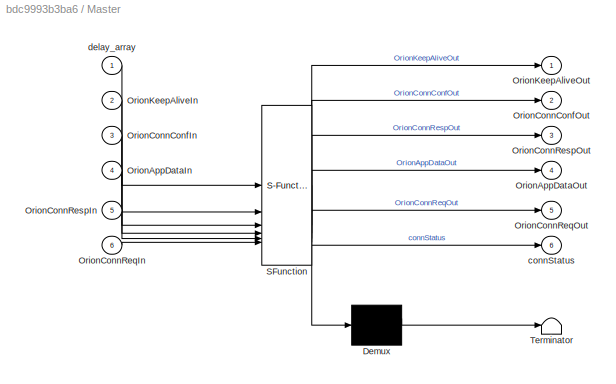
BLOCK [SubSystem] Master
  ErrorFcn = Stateflow.Translate.translate
  PermitHierarchicalResolution = ExplicitOnly
  PortSchema = {"entries":[{"content":{"sides":[{"content":{"connectorIds":["In2","In3","In5","In4","In6","In1"]},"type":"ConnectorPlacement.EquallySpacedRectSide","uuid":"93190a42-59cb-4d31-aa72-080cef5549db"},{"content":{"connectorIds":["Out1","Out2","Out3","Out4","Out5","Out6"],"side":"RIGHT"},"type":"ConnectorPlacement.EquallySpacedRectSide","uuid":"4a04e977-42e8-4d3e-8e66-86884aeb71d4"},{"content":{"side":"...<+413ch>  <repeated x16 — deduplicated; at blocks: Master, Master1, Master10, Master11, Master12, Master13, Master14, Master15, Master2, Master3, Master4, Master5, Master6, Master7, Master8, Master9>
  SFBlockType = Chart
  TreatAsAtomicUnit = on
BLOCK [Demux] Master/ Demux 
  Outputs = 1
BLOCK [S-Function] Master/ SFunction 
  EnableBusSupport = on
  FunctionName = sf_sfun
  InputPortMessageModes = n,m,m,m,m,m
  OutputPortMessageModes = n,m,m,m,m,m,n
  PortCounts = [6 7]
  SFcnIsStateOwnerBlock = off
  SFunctionDeploymentMode = off
  Tag = Stateflow S-Function 3
BLOCK [Terminator] Master/ Terminator 
BLOCK [Inport] Master/OrionAppDataIn
  Port = 4
BLOCK [Outport] Master/OrionAppDataOut
  Port = 4
BLOCK [Inport] Master/OrionConnConfIn
  Port = 3
BLOCK [Outport] Master/OrionConnConfOut
  Port = 2
BLOCK [Inport] Master/OrionConnReqIn
  Port = 6
BLOCK [Outport] Master/OrionConnReqOut
  Port = 5
BLOCK [Inport] Master/OrionConnRespIn
  Port = 5
BLOCK [Outport] Master/OrionConnRespOut
  Port = 3
BLOCK [Inport] Master/OrionKeepAliveIn
  Port = 2
BLOCK [Outport] Master/OrionKeepAliveOut
BLOCK [Outport] Master/connStatus
  Port = 6
BLOCK [Inport] Master/delay_array
BLOCK [SubSystem] Master1
  ErrorFcn = Stateflow.Translate.translate
  PermitHierarchicalResolution = ExplicitOnly
  SFBlockType = Chart
  TreatAsAtomicUnit = on
BLOCK [Demux] Master1/ Demux 
  Outputs = 1
BLOCK [S-Function] Master1/ SFunction 
  EnableBusSupport = on
  FunctionName = sf_sfun
  InputPortMessageModes = n,m,m,m,m,m
  OutputPortMessageModes = n,m,m,m,m,m,n
  PortCounts = [6 7]
  SFcnIsStateOwnerBlock = off
  SFunctionDeploymentMode = off
  Tag = Stateflow S-Function 24
BLOCK [Terminator] Master1/ Terminator 
BLOCK [Inport] Master1/OrionAppDataIn
  Port = 4
BLOCK [Outport] Master1/OrionAppDataOut
  Port = 4
BLOCK [Inport] Master1/OrionConnConfIn
  Port = 3
BLOCK [Outport] Master1/OrionConnConfOut
  Port = 2
BLOCK [Inport] Master1/OrionConnReqIn
  Port = 6
BLOCK [Outport] Master1/OrionConnReqOut
  Port = 5
BLOCK [Inport] Master1/OrionConnRespIn
  Port = 5
BLOCK [Outport] Master1/OrionConnRespOut
  Port = 3
BLOCK [Inport] Master1/OrionKeepAliveIn
  Port = 2
BLOCK [Outport] Master1/OrionKeepAliveOut
BLOCK [Outport] Master1/connStatus
  Port = 6
BLOCK [Inport] Master1/delay_array
BLOCK [SubSystem] Master10
  ErrorFcn = Stateflow.Translate.translate
  PermitHierarchicalResolution = ExplicitOnly
  SFBlockType = Chart
  TreatAsAtomicUnit = on
BLOCK [Demux] Master10/ Demux 
  Outputs = 1
BLOCK [S-Function] Master10/ SFunction 
  EnableBusSupport = on
  FunctionName = sf_sfun
  InputPortMessageModes = n,m,m,m,m,m
  OutputPortMessageModes = n,m,m,m,m,m,n
  PortCounts = [6 7]
  SFcnIsStateOwnerBlock = off
  SFunctionDeploymentMode = off
  Tag = Stateflow S-Function 178
BLOCK [Terminator] Master10/ Terminator 
BLOCK [Inport] Master10/OrionAppDataIn
  Port = 4
BLOCK [Outport] Master10/OrionAppDataOut
  Port = 4
BLOCK [Inport] Master10/OrionConnConfIn
  Port = 3
BLOCK [Outport] Master10/OrionConnConfOut
  Port = 2
BLOCK [Inport] Master10/OrionConnReqIn
  Port = 6
BLOCK [Outport] Master10/OrionConnReqOut
  Port = 5
BLOCK [Inport] Master10/OrionConnRespIn
  Port = 5
BLOCK [Outport] Master10/OrionConnRespOut
  Port = 3
BLOCK [Inport] Master10/OrionKeepAliveIn
  Port = 2
BLOCK [Outport] Master10/OrionKeepAliveOut
BLOCK [Outport] Master10/connStatus
  Port = 6
BLOCK [Inport] Master10/delay_array
BLOCK [SubSystem] Master11
  ErrorFcn = Stateflow.Translate.translate
  PermitHierarchicalResolution = ExplicitOnly
  SFBlockType = Chart
  TreatAsAtomicUnit = on
BLOCK [Demux] Master11/ Demux 
  Outputs = 1
BLOCK [S-Function] Master11/ SFunction 
  EnableBusSupport = on
  FunctionName = sf_sfun
  InputPortMessageModes = n,m,m,m,m,m
  OutputPortMessageModes = n,m,m,m,m,m,n
  PortCounts = [6 7]
  SFcnIsStateOwnerBlock = off
  SFunctionDeploymentMode = off
  Tag = Stateflow S-Function 179
BLOCK [Terminator] Master11/ Terminator 
BLOCK [Inport] Master11/OrionAppDataIn
  Port = 4
BLOCK [Outport] Master11/OrionAppDataOut
  Port = 4
BLOCK [Inport] Master11/OrionConnConfIn
  Port = 3
BLOCK [Outport] Master11/OrionConnConfOut
  Port = 2
BLOCK [Inport] Master11/OrionConnReqIn
  Port = 6
BLOCK [Outport] Master11/OrionConnReqOut
  Port = 5
BLOCK [Inport] Master11/OrionConnRespIn
  Port = 5
BLOCK [Outport] Master11/OrionConnRespOut
  Port = 3
BLOCK [Inport] Master11/OrionKeepAliveIn
  Port = 2
BLOCK [Outport] Master11/OrionKeepAliveOut
BLOCK [Outport] Master11/connStatus
  Port = 6
BLOCK [Inport] Master11/delay_array
BLOCK [SubSystem] Master12
  ErrorFcn = Stateflow.Translate.translate
  PermitHierarchicalResolution = ExplicitOnly
  SFBlockType = Chart
  TreatAsAtomicUnit = on
BLOCK [Demux] Master12/ Demux 
  Outputs = 1
BLOCK [S-Function] Master12/ SFunction 
  EnableBusSupport = on
  FunctionName = sf_sfun
  InputPortMessageModes = n,m,m,m,m,m
  OutputPortMessageModes = n,m,m,m,m,m,n
  PortCounts = [6 7]
  SFcnIsStateOwnerBlock = off
  SFunctionDeploymentMode = off
  Tag = Stateflow S-Function 180
BLOCK [Terminator] Master12/ Terminator 
BLOCK [Inport] Master12/OrionAppDataIn
  Port = 4
BLOCK [Outport] Master12/OrionAppDataOut
  Port = 4
BLOCK [Inport] Master12/OrionConnConfIn
  Port = 3
BLOCK [Outport] Master12/OrionConnConfOut
  Port = 2
BLOCK [Inport] Master12/OrionConnReqIn
  Port = 6
BLOCK [Outport] Master12/OrionConnReqOut
  Port = 5
BLOCK [Inport] Master12/OrionConnRespIn
  Port = 5
BLOCK [Outport] Master12/OrionConnRespOut
  Port = 3
BLOCK [Inport] Master12/OrionKeepAliveIn
  Port = 2
BLOCK [Outport] Master12/OrionKeepAliveOut
BLOCK [Outport] Master12/connStatus
  Port = 6
BLOCK [Inport] Master12/delay_array
BLOCK [SubSystem] Master13
  ErrorFcn = Stateflow.Translate.translate
  PermitHierarchicalResolution = ExplicitOnly
  SFBlockType = Chart
  TreatAsAtomicUnit = on
BLOCK [Demux] Master13/ Demux 
  Outputs = 1
BLOCK [S-Function] Master13/ SFunction 
  EnableBusSupport = on
  FunctionName = sf_sfun
  InputPortMessageModes = n,m,m,m,m,m
  OutputPortMessageModes = n,m,m,m,m,m,n
  PortCounts = [6 7]
  SFcnIsStateOwnerBlock = off
  SFunctionDeploymentMode = off
  Tag = Stateflow S-Function 181
BLOCK [Terminator] Master13/ Terminator 
BLOCK [Inport] Master13/OrionAppDataIn
  Port = 4
BLOCK [Outport] Master13/OrionAppDataOut
  Port = 4
BLOCK [Inport] Master13/OrionConnConfIn
  Port = 3
BLOCK [Outport] Master13/OrionConnConfOut
  Port = 2
BLOCK [Inport] Master13/OrionConnReqIn
  Port = 6
BLOCK [Outport] Master13/OrionConnReqOut
  Port = 5
BLOCK [Inport] Master13/OrionConnRespIn
  Port = 5
BLOCK [Outport] Master13/OrionConnRespOut
  Port = 3
BLOCK [Inport] Master13/OrionKeepAliveIn
  Port = 2
BLOCK [Outport] Master13/OrionKeepAliveOut
BLOCK [Outport] Master13/connStatus
  Port = 6
BLOCK [Inport] Master13/delay_array
BLOCK [SubSystem] Master14
  ErrorFcn = Stateflow.Translate.translate
  PermitHierarchicalResolution = ExplicitOnly
  SFBlockType = Chart
  TreatAsAtomicUnit = on
BLOCK [Demux] Master14/ Demux 
  Outputs = 1
BLOCK [S-Function] Master14/ SFunction 
  EnableBusSupport = on
  FunctionName = sf_sfun
  InputPortMessageModes = n,m,m,m,m,m
  OutputPortMessageModes = n,m,m,m,m,m,n
  PortCounts = [6 7]
  SFcnIsStateOwnerBlock = off
  SFunctionDeploymentMode = off
  Tag = Stateflow S-Function 182
BLOCK [Terminator] Master14/ Terminator 
BLOCK [Inport] Master14/OrionAppDataIn
  Port = 4
BLOCK [Outport] Master14/OrionAppDataOut
  Port = 4
BLOCK [Inport] Master14/OrionConnConfIn
  Port = 3
BLOCK [Outport] Master14/OrionConnConfOut
  Port = 2
BLOCK [Inport] Master14/OrionConnReqIn
  Port = 6
BLOCK [Outport] Master14/OrionConnReqOut
  Port = 5
BLOCK [Inport] Master14/OrionConnRespIn
  Port = 5
BLOCK [Outport] Master14/OrionConnRespOut
  Port = 3
BLOCK [Inport] Master14/OrionKeepAliveIn
  Port = 2
BLOCK [Outport] Master14/OrionKeepAliveOut
BLOCK [Outport] Master14/connStatus
  Port = 6
BLOCK [Inport] Master14/delay_array
BLOCK [SubSystem] Master15
  ErrorFcn = Stateflow.Translate.translate
  PermitHierarchicalResolution = ExplicitOnly
  SFBlockType = Chart
  TreatAsAtomicUnit = on
BLOCK [Demux] Master15/ Demux 
  Outputs = 1
BLOCK [S-Function] Master15/ SFunction 
  EnableBusSupport = on
  FunctionName = sf_sfun
  InputPortMessageModes = n,m,m,m,m,m
  OutputPortMessageModes = n,m,m,m,m,m,n
  PortCounts = [6 7]
  SFcnIsStateOwnerBlock = off
  SFunctionDeploymentMode = off
  Tag = Stateflow S-Function 183
BLOCK [Terminator] Master15/ Terminator 
BLOCK [Inport] Master15/OrionAppDataIn
  Port = 4
BLOCK [Outport] Master15/OrionAppDataOut
  Port = 4
BLOCK [Inport] Master15/OrionConnConfIn
  Port = 3
BLOCK [Outport] Master15/OrionConnConfOut
  Port = 2
BLOCK [Inport] Master15/OrionConnReqIn
  Port = 6
BLOCK [Outport] Master15/OrionConnReqOut
  Port = 5
BLOCK [Inport] Master15/OrionConnRespIn
  Port = 5
BLOCK [Outport] Master15/OrionConnRespOut
  Port = 3
BLOCK [Inport] Master15/OrionKeepAliveIn
  Port = 2
BLOCK [Outport] Master15/OrionKeepAliveOut
BLOCK [Outport] Master15/connStatus
  Port = 6
BLOCK [Inport] Master15/delay_array
BLOCK [SubSystem] Master2
  ErrorFcn = Stateflow.Translate.translate
  PermitHierarchicalResolution = ExplicitOnly
  SFBlockType = Chart
  TreatAsAtomicUnit = on
BLOCK [Demux] Master2/ Demux 
  Outputs = 1
BLOCK [S-Function] Master2/ SFunction 
  EnableBusSupport = on
  FunctionName = sf_sfun
  InputPortMessageModes = n,m,m,m,m,m
  OutputPortMessageModes = n,m,m,m,m,m,n
  PortCounts = [6 7]
  SFcnIsStateOwnerBlock = off
  SFunctionDeploymentMode = off
  Tag = Stateflow S-Function 36
BLOCK [Terminator] Master2/ Terminator 
BLOCK [Inport] Master2/OrionAppDataIn
  Port = 4
BLOCK [Outport] Master2/OrionAppDataOut
  Port = 4
BLOCK [Inport] Master2/OrionConnConfIn
  Port = 3
BLOCK [Outport] Master2/OrionConnConfOut
  Port = 2
BLOCK [Inport] Master2/OrionConnReqIn
  Port = 6
BLOCK [Outport] Master2/OrionConnReqOut
  Port = 5
BLOCK [Inport] Master2/OrionConnRespIn
  Port = 5
BLOCK [Outport] Master2/OrionConnRespOut
  Port = 3
BLOCK [Inport] Master2/OrionKeepAliveIn
  Port = 2
BLOCK [Outport] Master2/OrionKeepAliveOut
BLOCK [Outport] Master2/connStatus
  Port = 6
BLOCK [Inport] Master2/delay_array
BLOCK [SubSystem] Master3
  ErrorFcn = Stateflow.Translate.translate
  PermitHierarchicalResolution = ExplicitOnly
  SFBlockType = Chart
  TreatAsAtomicUnit = on
BLOCK [Demux] Master3/ Demux 
  Outputs = 1
BLOCK [S-Function] Master3/ SFunction 
  EnableBusSupport = on
  FunctionName = sf_sfun
  InputPortMessageModes = n,m,m,m,m,m
  OutputPortMessageModes = n,m,m,m,m,m,n
  PortCounts = [6 7]
  SFcnIsStateOwnerBlock = off
  SFunctionDeploymentMode = off
  Tag = Stateflow S-Function 48
BLOCK [Terminator] Master3/ Terminator 
BLOCK [Inport] Master3/OrionAppDataIn
  Port = 4
BLOCK [Outport] Master3/OrionAppDataOut
  Port = 4
BLOCK [Inport] Master3/OrionConnConfIn
  Port = 3
BLOCK [Outport] Master3/OrionConnConfOut
  Port = 2
BLOCK [Inport] Master3/OrionConnReqIn
  Port = 6
BLOCK [Outport] Master3/OrionConnReqOut
  Port = 5
BLOCK [Inport] Master3/OrionConnRespIn
  Port = 5
BLOCK [Outport] Master3/OrionConnRespOut
  Port = 3
BLOCK [Inport] Master3/OrionKeepAliveIn
  Port = 2
BLOCK [Outport] Master3/OrionKeepAliveOut
BLOCK [Outport] Master3/connStatus
  Port = 6
BLOCK [Inport] Master3/delay_array
BLOCK [SubSystem] Master4
  ErrorFcn = Stateflow.Translate.translate
  PermitHierarchicalResolution = ExplicitOnly
  SFBlockType = Chart
  TreatAsAtomicUnit = on
BLOCK [Demux] Master4/ Demux 
  Outputs = 1
BLOCK [S-Function] Master4/ SFunction 
  EnableBusSupport = on
  FunctionName = sf_sfun
  InputPortMessageModes = n,m,m,m,m,m
  OutputPortMessageModes = n,m,m,m,m,m,n
  PortCounts = [6 7]
  SFcnIsStateOwnerBlock = off
  SFunctionDeploymentMode = off
  Tag = Stateflow S-Function 90
BLOCK [Terminator] Master4/ Terminator 
BLOCK [Inport] Master4/OrionAppDataIn
  Port = 4
BLOCK [Outport] Master4/OrionAppDataOut
  Port = 4
BLOCK [Inport] Master4/OrionConnConfIn
  Port = 3
BLOCK [Outport] Master4/OrionConnConfOut
  Port = 2
BLOCK [Inport] Master4/OrionConnReqIn
  Port = 6
BLOCK [Outport] Master4/OrionConnReqOut
  Port = 5
BLOCK [Inport] Master4/OrionConnRespIn
  Port = 5
BLOCK [Outport] Master4/OrionConnRespOut
  Port = 3
BLOCK [Inport] Master4/OrionKeepAliveIn
  Port = 2
BLOCK [Outport] Master4/OrionKeepAliveOut
BLOCK [Outport] Master4/connStatus
  Port = 6
BLOCK [Inport] Master4/delay_array
BLOCK [SubSystem] Master5
  ErrorFcn = Stateflow.Translate.translate
  PermitHierarchicalResolution = ExplicitOnly
  SFBlockType = Chart
  TreatAsAtomicUnit = on
BLOCK [Demux] Master5/ Demux 
  Outputs = 1
BLOCK [S-Function] Master5/ SFunction 
  EnableBusSupport = on
  FunctionName = sf_sfun
  InputPortMessageModes = n,m,m,m,m,m
  OutputPortMessageModes = n,m,m,m,m,m,n
  PortCounts = [6 7]
  SFcnIsStateOwnerBlock = off
  SFunctionDeploymentMode = off
  Tag = Stateflow S-Function 91
BLOCK [Terminator] Master5/ Terminator 
BLOCK [Inport] Master5/OrionAppDataIn
  Port = 4
BLOCK [Outport] Master5/OrionAppDataOut
  Port = 4
BLOCK [Inport] Master5/OrionConnConfIn
  Port = 3
BLOCK [Outport] Master5/OrionConnConfOut
  Port = 2
BLOCK [Inport] Master5/OrionConnReqIn
  Port = 6
BLOCK [Outport] Master5/OrionConnReqOut
  Port = 5
BLOCK [Inport] Master5/OrionConnRespIn
  Port = 5
BLOCK [Outport] Master5/OrionConnRespOut
  Port = 3
BLOCK [Inport] Master5/OrionKeepAliveIn
  Port = 2
BLOCK [Outport] Master5/OrionKeepAliveOut
BLOCK [Outport] Master5/connStatus
  Port = 6
BLOCK [Inport] Master5/delay_array
BLOCK [SubSystem] Master6
  ErrorFcn = Stateflow.Translate.translate
  PermitHierarchicalResolution = ExplicitOnly
  SFBlockType = Chart
  TreatAsAtomicUnit = on
BLOCK [Demux] Master6/ Demux 
  Outputs = 1
BLOCK [S-Function] Master6/ SFunction 
  EnableBusSupport = on
  FunctionName = sf_sfun
  InputPortMessageModes = n,m,m,m,m,m
  OutputPortMessageModes = n,m,m,m,m,m,n
  PortCounts = [6 7]
  SFcnIsStateOwnerBlock = off
  SFunctionDeploymentMode = off
  Tag = Stateflow S-Function 92
BLOCK [Terminator] Master6/ Terminator 
BLOCK [Inport] Master6/OrionAppDataIn
  Port = 4
BLOCK [Outport] Master6/OrionAppDataOut
  Port = 4
BLOCK [Inport] Master6/OrionConnConfIn
  Port = 3
BLOCK [Outport] Master6/OrionConnConfOut
  Port = 2
BLOCK [Inport] Master6/OrionConnReqIn
  Port = 6
BLOCK [Outport] Master6/OrionConnReqOut
  Port = 5
BLOCK [Inport] Master6/OrionConnRespIn
  Port = 5
BLOCK [Outport] Master6/OrionConnRespOut
  Port = 3
BLOCK [Inport] Master6/OrionKeepAliveIn
  Port = 2
BLOCK [Outport] Master6/OrionKeepAliveOut
BLOCK [Outport] Master6/connStatus
  Port = 6
BLOCK [Inport] Master6/delay_array
BLOCK [SubSystem] Master7
  ErrorFcn = Stateflow.Translate.translate
  PermitHierarchicalResolution = ExplicitOnly
  SFBlockType = Chart
  TreatAsAtomicUnit = on
BLOCK [Demux] Master7/ Demux 
  Outputs = 1
BLOCK [S-Function] Master7/ SFunction 
  EnableBusSupport = on
  FunctionName = sf_sfun
  InputPortMessageModes = n,m,m,m,m,m
  OutputPortMessageModes = n,m,m,m,m,m,n
  PortCounts = [6 7]
  SFcnIsStateOwnerBlock = off
  SFunctionDeploymentMode = off
  Tag = Stateflow S-Function 93
BLOCK [Terminator] Master7/ Terminator 
BLOCK [Inport] Master7/OrionAppDataIn
  Port = 4
BLOCK [Outport] Master7/OrionAppDataOut
  Port = 4
BLOCK [Inport] Master7/OrionConnConfIn
  Port = 3
BLOCK [Outport] Master7/OrionConnConfOut
  Port = 2
BLOCK [Inport] Master7/OrionConnReqIn
  Port = 6
BLOCK [Outport] Master7/OrionConnReqOut
  Port = 5
BLOCK [Inport] Master7/OrionConnRespIn
  Port = 5
BLOCK [Outport] Master7/OrionConnRespOut
  Port = 3
BLOCK [Inport] Master7/OrionKeepAliveIn
  Port = 2
BLOCK [Outport] Master7/OrionKeepAliveOut
BLOCK [Outport] Master7/connStatus
  Port = 6
BLOCK [Inport] Master7/delay_array
BLOCK [SubSystem] Master8
  ErrorFcn = Stateflow.Translate.translate
  PermitHierarchicalResolution = ExplicitOnly
  SFBlockType = Chart
  TreatAsAtomicUnit = on
BLOCK [Demux] Master8/ Demux 
  Outputs = 1
BLOCK [S-Function] Master8/ SFunction 
  EnableBusSupport = on
  FunctionName = sf_sfun
  InputPortMessageModes = n,m,m,m,m,m
  OutputPortMessageModes = n,m,m,m,m,m,n
  PortCounts = [6 7]
  SFcnIsStateOwnerBlock = off
  SFunctionDeploymentMode = off
  Tag = Stateflow S-Function 184
BLOCK [Terminator] Master8/ Terminator 
BLOCK [Inport] Master8/OrionAppDataIn
  Port = 4
BLOCK [Outport] Master8/OrionAppDataOut
  Port = 4
BLOCK [Inport] Master8/OrionConnConfIn
  Port = 3
BLOCK [Outport] Master8/OrionConnConfOut
  Port = 2
BLOCK [Inport] Master8/OrionConnReqIn
  Port = 6
BLOCK [Outport] Master8/OrionConnReqOut
  Port = 5
BLOCK [Inport] Master8/OrionConnRespIn
  Port = 5
BLOCK [Outport] Master8/OrionConnRespOut
  Port = 3
BLOCK [Inport] Master8/OrionKeepAliveIn
  Port = 2
BLOCK [Outport] Master8/OrionKeepAliveOut
BLOCK [Outport] Master8/connStatus
  Port = 6
BLOCK [Inport] Master8/delay_array
BLOCK [SubSystem] Master9
  ErrorFcn = Stateflow.Translate.translate
  PermitHierarchicalResolution = ExplicitOnly
  SFBlockType = Chart
  TreatAsAtomicUnit = on
BLOCK [Demux] Master9/ Demux 
  Outputs = 1
BLOCK [S-Function] Master9/ SFunction 
  EnableBusSupport = on
  FunctionName = sf_sfun
  InputPortMessageModes = n,m,m,m,m,m
  OutputPortMessageModes = n,m,m,m,m,m,n
  PortCounts = [6 7]
  SFcnIsStateOwnerBlock = off
  SFunctionDeploymentMode = off
  Tag = Stateflow S-Function 185
BLOCK [Terminator] Master9/ Terminator 
BLOCK [Inport] Master9/OrionAppDataIn
  Port = 4
BLOCK [Outport] Master9/OrionAppDataOut
  Port = 4
BLOCK [Inport] Master9/OrionConnConfIn
  Port = 3
BLOCK [Outport] Master9/OrionConnConfOut
  Port = 2
BLOCK [Inport] Master9/OrionConnReqIn
  Port = 6
BLOCK [Outport] Master9/OrionConnReqOut
  Port = 5
BLOCK [Inport] Master9/OrionConnRespIn
  Port = 5
BLOCK [Outport] Master9/OrionConnRespOut
  Port = 3
BLOCK [Inport] Master9/OrionKeepAliveIn
  Port = 2
BLOCK [Outport] Master9/OrionKeepAliveOut
BLOCK [Outport] Master9/connStatus
  Port = 6
BLOCK [Inport] Master9/delay_array
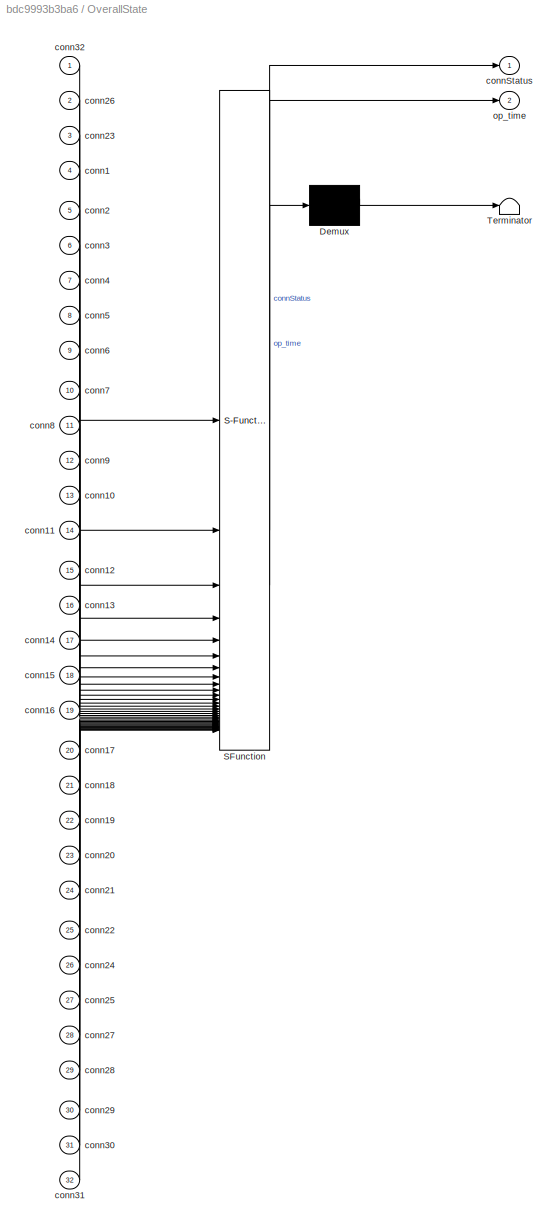
BLOCK [SubSystem] OverallState
  ErrorFcn = Stateflow.Translate.translate
  PermitHierarchicalResolution = ExplicitOnly
  PortSchema = {"entries":[{"content":{"sides":[{"content":{"connectorIds":["In4","In5","In6","In7","In8","In9","In10","In11","In12","In13","In14","In15","In16","In17","In18","In19","In20","In21","In22","In23","In24","In25","In3","In26","In27","In2","In28","In29","In30","In31","In32","In1"]},"type":"ConnectorPlacement.EquallySpacedRectSide","uuid":"06c766ab-f00d-4637-9d5e-19c8450bb5bd"},{"content":{"connectorIds...<+564ch>
  SFBlockType = Chart
  TreatAsAtomicUnit = on
BLOCK [Demux] OverallState/ Demux 
  Outputs = 1
BLOCK [S-Function] OverallState/ SFunction 
  EnableBusSupport = on
  FunctionName = sf_sfun
  PortCounts = [32 3]
  SFcnIsStateOwnerBlock = off
  SFunctionDeploymentMode = off
  Tag = Stateflow S-Function 13
BLOCK [Terminator] OverallState/ Terminator 
BLOCK [Inport] OverallState/conn1
  Port = 4
BLOCK [Inport] OverallState/conn10
  Port = 13
BLOCK [Inport] OverallState/conn11
  Port = 14
BLOCK [Inport] OverallState/conn12
  Port = 15
BLOCK [Inport] OverallState/conn13
  Port = 16
BLOCK [Inport] OverallState/conn14
  Port = 17
BLOCK [Inport] OverallState/conn15
  Port = 18
BLOCK [Inport] OverallState/conn16
  Port = 19
BLOCK [Inport] OverallState/conn17
  Port = 20
BLOCK [Inport] OverallState/conn18
  Port = 21
BLOCK [Inport] OverallState/conn19
  Port = 22
BLOCK [Inport] OverallState/conn2
  Port = 5
BLOCK [Inport] OverallState/conn20
  Port = 23
BLOCK [Inport] OverallState/conn21
  Port = 24
BLOCK [Inport] OverallState/conn22
  Port = 25
BLOCK [Inport] OverallState/conn23
  Port = 3
BLOCK [Inport] OverallState/conn24
  Port = 26
BLOCK [Inport] OverallState/conn25
  Port = 27
BLOCK [Inport] OverallState/conn26
  Port = 2
BLOCK [Inport] OverallState/conn27
  Port = 28
BLOCK [Inport] OverallState/conn28
  Port = 29
BLOCK [Inport] OverallState/conn29
  Port = 30
BLOCK [Inport] OverallState/conn3
  Port = 6
BLOCK [Inport] OverallState/conn30
  Port = 31
BLOCK [Inport] OverallState/conn31
  Port = 32
BLOCK [Inport] OverallState/conn32
BLOCK [Inport] OverallState/conn4
  Port = 7
BLOCK [Inport] OverallState/conn5
  Port = 8
BLOCK [Inport] OverallState/conn6
  Port = 9
BLOCK [Inport] OverallState/conn7
  Port = 10
BLOCK [Inport] OverallState/conn8
  Port = 11
BLOCK [Inport] OverallState/conn9
  Port = 12
BLOCK [Outport] OverallState/connStatus
BLOCK [Outport] OverallState/op_time
  Port = 2
BLOCK [Scope] Scope
  Floating = off
  NumInputPorts = 3
  ScopeSpecificationString = Simulink.scopes.TimeScopeBlockCfg('CurrentConfiguration', extmgr.ConfigurationSet(extmgr.Configuration('Core','General UI',true),extmgr.Configuration('Core','Source UI',true),extmgr.Configuration('Sources','WiredSimulink',true),extmgr.Configuration('Visuals','Time Domain',true,'SerializedDisplays',{struct('MinYLimReal','-0.25','MaxYLimReal','2.25','YLabelReal','','MinYLimMag','0.00000','MaxYLimMag...<+1329ch>
BLOCK [Scope] Scope1
  Floating = off
  NumInputPorts = 1
  ScopeSpecificationString = Simulink.scopes.TimeScopeBlockCfg('CurrentConfiguration', extmgr.ConfigurationSet(extmgr.Configuration('Core','General UI',true),extmgr.Configuration('Core','Source UI',true),extmgr.Configuration('Sources','WiredSimulink',true,'DataLoggingVariableName','ScopeData1'),extmgr.Configuration('Visuals','Time Domain',true,'SerializedDisplays',{struct('MinYLimReal','-2417.99419','MaxYLimReal','21761.94769...<+1405ch>
BLOCK [SubSystem] Slave
  ErrorFcn = Stateflow.Translate.translate
  PermitHierarchicalResolution = ExplicitOnly
  PortSchema = {"entries":[{"content":{"sides":[{"content":{"connectorIds":["In1","In5","In3","In2","In4","In6"]},"type":"ConnectorPlacement.EquallySpacedRectSide","uuid":"93190a42-59cb-4d31-aa72-080cef5549db"},{"content":{"connectorIds":["Out3","Out1","Out2","Out4","Out5","Out6"],"side":"RIGHT"},"type":"ConnectorPlacement.EquallySpacedRectSide","uuid":"4a04e977-42e8-4d3e-8e66-86884aeb71d4"},{"content":{"side":"...<+287ch>  <repeated x16 — deduplicated; at blocks: Slave, Slave1, Slave10, Slave11, Slave12, Slave13, Slave14, Slave15, Slave2, Slave3, Slave4, Slave5, Slave6, Slave7, Slave8, Slave9>
  SFBlockType = Chart
  TreatAsAtomicUnit = on
BLOCK [Demux] Slave/ Demux 
  Outputs = 1
BLOCK [S-Function] Slave/ SFunction 
  EnableBusSupport = on
  FunctionName = sf_sfun
  InputPortMessageModes = m,m,m,m,m,n
  OutputPortMessageModes = n,m,m,m,m,m,n
  PortCounts = [6 7]
  SFcnIsStateOwnerBlock = off
  SFunctionDeploymentMode = off
  Tag = Stateflow S-Function 8
BLOCK [Terminator] Slave/ Terminator 
BLOCK [Inport] Slave/OrionAppDataIn
  Port = 2
BLOCK [Outport] Slave/OrionAppDataOut
  Port = 4
BLOCK [Inport] Slave/OrionConnConfIn
  Port = 5
BLOCK [Outport] Slave/OrionConnConfOut
BLOCK [Inport] Slave/OrionConnReqIn
  Port = 4
BLOCK [Outport] Slave/OrionConnReqOut
  Port = 5
BLOCK [Inport] Slave/OrionConnRespIn
  Port = 3
BLOCK [Outport] Slave/OrionConnRespOut
  Port = 2
BLOCK [Inport] Slave/OrionKeepAliveIn
BLOCK [Outport] Slave/OrionKeepAliveOut
  Port = 3
BLOCK [Outport] Slave/connStatus
  Port = 6
BLOCK [Inport] Slave/delay_array
  Port = 6
BLOCK [SubSystem] Slave1
  ErrorFcn = Stateflow.Translate.translate
  PermitHierarchicalResolution = ExplicitOnly
  SFBlockType = Chart
  TreatAsAtomicUnit = on
BLOCK [Demux] Slave1/ Demux 
  Outputs = 1
BLOCK [S-Function] Slave1/ SFunction 
  EnableBusSupport = on
  FunctionName = sf_sfun
  InputPortMessageModes = m,m,m,m,m,n
  OutputPortMessageModes = n,m,m,m,m,m,n
  PortCounts = [6 7]
  SFcnIsStateOwnerBlock = off
  SFunctionDeploymentMode = off
  Tag = Stateflow S-Function 25
BLOCK [Terminator] Slave1/ Terminator 
BLOCK [Inport] Slave1/OrionAppDataIn
  Port = 2
BLOCK [Outport] Slave1/OrionAppDataOut
  Port = 4
BLOCK [Inport] Slave1/OrionConnConfIn
  Port = 5
BLOCK [Outport] Slave1/OrionConnConfOut
BLOCK [Inport] Slave1/OrionConnReqIn
  Port = 4
BLOCK [Outport] Slave1/OrionConnReqOut
  Port = 5
BLOCK [Inport] Slave1/OrionConnRespIn
  Port = 3
BLOCK [Outport] Slave1/OrionConnRespOut
  Port = 2
BLOCK [Inport] Slave1/OrionKeepAliveIn
BLOCK [Outport] Slave1/OrionKeepAliveOut
  Port = 3
BLOCK [Outport] Slave1/connStatus
  Port = 6
BLOCK [Inport] Slave1/delay_array
  Port = 6
BLOCK [SubSystem] Slave10
  ErrorFcn = Stateflow.Translate.translate
  PermitHierarchicalResolution = ExplicitOnly
  SFBlockType = Chart
  TreatAsAtomicUnit = on
BLOCK [Demux] Slave10/ Demux 
  Outputs = 1
BLOCK [S-Function] Slave10/ SFunction 
  EnableBusSupport = on
  FunctionName = sf_sfun
  InputPortMessageModes = m,m,m,m,m,n
  OutputPortMessageModes = n,m,m,m,m,m,n
  PortCounts = [6 7]
  SFcnIsStateOwnerBlock = off
  SFunctionDeploymentMode = off
  Tag = Stateflow S-Function 186
BLOCK [Terminator] Slave10/ Terminator 
BLOCK [Inport] Slave10/OrionAppDataIn
  Port = 2
BLOCK [Outport] Slave10/OrionAppDataOut
  Port = 4
BLOCK [Inport] Slave10/OrionConnConfIn
  Port = 5
BLOCK [Outport] Slave10/OrionConnConfOut
BLOCK [Inport] Slave10/OrionConnReqIn
  Port = 4
BLOCK [Outport] Slave10/OrionConnReqOut
  Port = 5
BLOCK [Inport] Slave10/OrionConnRespIn
  Port = 3
BLOCK [Outport] Slave10/OrionConnRespOut
  Port = 2
BLOCK [Inport] Slave10/OrionKeepAliveIn
BLOCK [Outport] Slave10/OrionKeepAliveOut
  Port = 3
BLOCK [Outport] Slave10/connStatus
  Port = 6
BLOCK [Inport] Slave10/delay_array
  Port = 6
BLOCK [SubSystem] Slave11
  ErrorFcn = Stateflow.Translate.translate
  PermitHierarchicalResolution = ExplicitOnly
  SFBlockType = Chart
  TreatAsAtomicUnit = on
BLOCK [Demux] Slave11/ Demux 
  Outputs = 1
BLOCK [S-Function] Slave11/ SFunction 
  EnableBusSupport = on
  FunctionName = sf_sfun
  InputPortMessageModes = m,m,m,m,m,n
  OutputPortMessageModes = n,m,m,m,m,m,n
  PortCounts = [6 7]
  SFcnIsStateOwnerBlock = off
  SFunctionDeploymentMode = off
  Tag = Stateflow S-Function 187
BLOCK [Terminator] Slave11/ Terminator 
BLOCK [Inport] Slave11/OrionAppDataIn
  Port = 2
BLOCK [Outport] Slave11/OrionAppDataOut
  Port = 4
BLOCK [Inport] Slave11/OrionConnConfIn
  Port = 5
BLOCK [Outport] Slave11/OrionConnConfOut
BLOCK [Inport] Slave11/OrionConnReqIn
  Port = 4
BLOCK [Outport] Slave11/OrionConnReqOut
  Port = 5
BLOCK [Inport] Slave11/OrionConnRespIn
  Port = 3
BLOCK [Outport] Slave11/OrionConnRespOut
  Port = 2
BLOCK [Inport] Slave11/OrionKeepAliveIn
BLOCK [Outport] Slave11/OrionKeepAliveOut
  Port = 3
BLOCK [Outport] Slave11/connStatus
  Port = 6
BLOCK [Inport] Slave11/delay_array
  Port = 6
BLOCK [SubSystem] Slave12
  ErrorFcn = Stateflow.Translate.translate
  PermitHierarchicalResolution = ExplicitOnly
  SFBlockType = Chart
  TreatAsAtomicUnit = on
BLOCK [Demux] Slave12/ Demux 
  Outputs = 1
BLOCK [S-Function] Slave12/ SFunction 
  EnableBusSupport = on
  FunctionName = sf_sfun
  InputPortMessageModes = m,m,m,m,m,n
  OutputPortMessageModes = n,m,m,m,m,m,n
  PortCounts = [6 7]
  SFcnIsStateOwnerBlock = off
  SFunctionDeploymentMode = off
  Tag = Stateflow S-Function 188
BLOCK [Terminator] Slave12/ Terminator 
BLOCK [Inport] Slave12/OrionAppDataIn
  Port = 2
BLOCK [Outport] Slave12/OrionAppDataOut
  Port = 4
BLOCK [Inport] Slave12/OrionConnConfIn
  Port = 5
BLOCK [Outport] Slave12/OrionConnConfOut
BLOCK [Inport] Slave12/OrionConnReqIn
  Port = 4
BLOCK [Outport] Slave12/OrionConnReqOut
  Port = 5
BLOCK [Inport] Slave12/OrionConnRespIn
  Port = 3
BLOCK [Outport] Slave12/OrionConnRespOut
  Port = 2
BLOCK [Inport] Slave12/OrionKeepAliveIn
BLOCK [Outport] Slave12/OrionKeepAliveOut
  Port = 3
BLOCK [Outport] Slave12/connStatus
  Port = 6
BLOCK [Inport] Slave12/delay_array
  Port = 6
BLOCK [SubSystem] Slave13
  ErrorFcn = Stateflow.Translate.translate
  PermitHierarchicalResolution = ExplicitOnly
  SFBlockType = Chart
  TreatAsAtomicUnit = on
BLOCK [Demux] Slave13/ Demux 
  Outputs = 1
BLOCK [S-Function] Slave13/ SFunction 
  EnableBusSupport = on
  FunctionName = sf_sfun
  InputPortMessageModes = m,m,m,m,m,n
  OutputPortMessageModes = n,m,m,m,m,m,n
  PortCounts = [6 7]
  SFcnIsStateOwnerBlock = off
  SFunctionDeploymentMode = off
  Tag = Stateflow S-Function 189
BLOCK [Terminator] Slave13/ Terminator 
BLOCK [Inport] Slave13/OrionAppDataIn
  Port = 2
BLOCK [Outport] Slave13/OrionAppDataOut
  Port = 4
BLOCK [Inport] Slave13/OrionConnConfIn
  Port = 5
BLOCK [Outport] Slave13/OrionConnConfOut
BLOCK [Inport] Slave13/OrionConnReqIn
  Port = 4
BLOCK [Outport] Slave13/OrionConnReqOut
  Port = 5
BLOCK [Inport] Slave13/OrionConnRespIn
  Port = 3
BLOCK [Outport] Slave13/OrionConnRespOut
  Port = 2
BLOCK [Inport] Slave13/OrionKeepAliveIn
BLOCK [Outport] Slave13/OrionKeepAliveOut
  Port = 3
BLOCK [Outport] Slave13/connStatus
  Port = 6
BLOCK [Inport] Slave13/delay_array
  Port = 6
BLOCK [SubSystem] Slave14
  ErrorFcn = Stateflow.Translate.translate
  PermitHierarchicalResolution = ExplicitOnly
  SFBlockType = Chart
  TreatAsAtomicUnit = on
BLOCK [Demux] Slave14/ Demux 
  Outputs = 1
BLOCK [S-Function] Slave14/ SFunction 
  EnableBusSupport = on
  FunctionName = sf_sfun
  InputPortMessageModes = m,m,m,m,m,n
  OutputPortMessageModes = n,m,m,m,m,m,n
  PortCounts = [6 7]
  SFcnIsStateOwnerBlock = off
  SFunctionDeploymentMode = off
  Tag = Stateflow S-Function 190
BLOCK [Terminator] Slave14/ Terminator 
BLOCK [Inport] Slave14/OrionAppDataIn
  Port = 2
BLOCK [Outport] Slave14/OrionAppDataOut
  Port = 4
BLOCK [Inport] Slave14/OrionConnConfIn
  Port = 5
BLOCK [Outport] Slave14/OrionConnConfOut
BLOCK [Inport] Slave14/OrionConnReqIn
  Port = 4
BLOCK [Outport] Slave14/OrionConnReqOut
  Port = 5
BLOCK [Inport] Slave14/OrionConnRespIn
  Port = 3
BLOCK [Outport] Slave14/OrionConnRespOut
  Port = 2
BLOCK [Inport] Slave14/OrionKeepAliveIn
BLOCK [Outport] Slave14/OrionKeepAliveOut
  Port = 3
BLOCK [Outport] Slave14/connStatus
  Port = 6
BLOCK [Inport] Slave14/delay_array
  Port = 6
BLOCK [SubSystem] Slave15
  ErrorFcn = Stateflow.Translate.translate
  PermitHierarchicalResolution = ExplicitOnly
  SFBlockType = Chart
  TreatAsAtomicUnit = on
BLOCK [Demux] Slave15/ Demux 
  Outputs = 1
BLOCK [S-Function] Slave15/ SFunction 
  EnableBusSupport = on
  FunctionName = sf_sfun
  InputPortMessageModes = m,m,m,m,m,n
  OutputPortMessageModes = n,m,m,m,m,m,n
  PortCounts = [6 7]
  SFcnIsStateOwnerBlock = off
  SFunctionDeploymentMode = off
  Tag = Stateflow S-Function 191
BLOCK [Terminator] Slave15/ Terminator 
BLOCK [Inport] Slave15/OrionAppDataIn
  Port = 2
BLOCK [Outport] Slave15/OrionAppDataOut
  Port = 4
BLOCK [Inport] Slave15/OrionConnConfIn
  Port = 5
BLOCK [Outport] Slave15/OrionConnConfOut
BLOCK [Inport] Slave15/OrionConnReqIn
  Port = 4
BLOCK [Outport] Slave15/OrionConnReqOut
  Port = 5
BLOCK [Inport] Slave15/OrionConnRespIn
  Port = 3
BLOCK [Outport] Slave15/OrionConnRespOut
  Port = 2
BLOCK [Inport] Slave15/OrionKeepAliveIn
BLOCK [Outport] Slave15/OrionKeepAliveOut
  Port = 3
BLOCK [Outport] Slave15/connStatus
  Port = 6
BLOCK [Inport] Slave15/delay_array
  Port = 6
BLOCK [SubSystem] Slave2
  ErrorFcn = Stateflow.Translate.translate
  PermitHierarchicalResolution = ExplicitOnly
  SFBlockType = Chart
  TreatAsAtomicUnit = on
BLOCK [Demux] Slave2/ Demux 
  Outputs = 1
BLOCK [S-Function] Slave2/ SFunction 
  EnableBusSupport = on
  FunctionName = sf_sfun
  InputPortMessageModes = m,m,m,m,m,n
  OutputPortMessageModes = n,m,m,m,m,m,n
  PortCounts = [6 7]
  SFcnIsStateOwnerBlock = off
  SFunctionDeploymentMode = off
  Tag = Stateflow S-Function 37
BLOCK [Terminator] Slave2/ Terminator 
BLOCK [Inport] Slave2/OrionAppDataIn
  Port = 2
BLOCK [Outport] Slave2/OrionAppDataOut
  Port = 4
BLOCK [Inport] Slave2/OrionConnConfIn
  Port = 5
BLOCK [Outport] Slave2/OrionConnConfOut
BLOCK [Inport] Slave2/OrionConnReqIn
  Port = 4
BLOCK [Outport] Slave2/OrionConnReqOut
  Port = 5
BLOCK [Inport] Slave2/OrionConnRespIn
  Port = 3
BLOCK [Outport] Slave2/OrionConnRespOut
  Port = 2
BLOCK [Inport] Slave2/OrionKeepAliveIn
BLOCK [Outport] Slave2/OrionKeepAliveOut
  Port = 3
BLOCK [Outport] Slave2/connStatus
  Port = 6
BLOCK [Inport] Slave2/delay_array
  Port = 6
BLOCK [SubSystem] Slave3
  ErrorFcn = Stateflow.Translate.translate
  PermitHierarchicalResolution = ExplicitOnly
  SFBlockType = Chart
  TreatAsAtomicUnit = on
BLOCK [Demux] Slave3/ Demux 
  Outputs = 1
BLOCK [S-Function] Slave3/ SFunction 
  EnableBusSupport = on
  FunctionName = sf_sfun
  InputPortMessageModes = m,m,m,m,m,n
  OutputPortMessageModes = n,m,m,m,m,m,n
  PortCounts = [6 7]
  SFcnIsStateOwnerBlock = off
  SFunctionDeploymentMode = off
  Tag = Stateflow S-Function 49
BLOCK [Terminator] Slave3/ Terminator 
BLOCK [Inport] Slave3/OrionAppDataIn
  Port = 2
BLOCK [Outport] Slave3/OrionAppDataOut
  Port = 4
BLOCK [Inport] Slave3/OrionConnConfIn
  Port = 5
BLOCK [Outport] Slave3/OrionConnConfOut
BLOCK [Inport] Slave3/OrionConnReqIn
  Port = 4
BLOCK [Outport] Slave3/OrionConnReqOut
  Port = 5
BLOCK [Inport] Slave3/OrionConnRespIn
  Port = 3
BLOCK [Outport] Slave3/OrionConnRespOut
  Port = 2
BLOCK [Inport] Slave3/OrionKeepAliveIn
BLOCK [Outport] Slave3/OrionKeepAliveOut
  Port = 3
BLOCK [Outport] Slave3/connStatus
  Port = 6
BLOCK [Inport] Slave3/delay_array
  Port = 6
BLOCK [SubSystem] Slave4
  ErrorFcn = Stateflow.Translate.translate
  PermitHierarchicalResolution = ExplicitOnly
  SFBlockType = Chart
  TreatAsAtomicUnit = on
BLOCK [Demux] Slave4/ Demux 
  Outputs = 1
BLOCK [S-Function] Slave4/ SFunction 
  EnableBusSupport = on
  FunctionName = sf_sfun
  InputPortMessageModes = m,m,m,m,m,n
  OutputPortMessageModes = n,m,m,m,m,m,n
  PortCounts = [6 7]
  SFcnIsStateOwnerBlock = off
  SFunctionDeploymentMode = off
  Tag = Stateflow S-Function 94
BLOCK [Terminator] Slave4/ Terminator 
BLOCK [Inport] Slave4/OrionAppDataIn
  Port = 2
BLOCK [Outport] Slave4/OrionAppDataOut
  Port = 4
BLOCK [Inport] Slave4/OrionConnConfIn
  Port = 5
BLOCK [Outport] Slave4/OrionConnConfOut
BLOCK [Inport] Slave4/OrionConnReqIn
  Port = 4
BLOCK [Outport] Slave4/OrionConnReqOut
  Port = 5
BLOCK [Inport] Slave4/OrionConnRespIn
  Port = 3
BLOCK [Outport] Slave4/OrionConnRespOut
  Port = 2
BLOCK [Inport] Slave4/OrionKeepAliveIn
BLOCK [Outport] Slave4/OrionKeepAliveOut
  Port = 3
BLOCK [Outport] Slave4/connStatus
  Port = 6
BLOCK [Inport] Slave4/delay_array
  Port = 6
BLOCK [SubSystem] Slave5
  ErrorFcn = Stateflow.Translate.translate
  PermitHierarchicalResolution = ExplicitOnly
  SFBlockType = Chart
  TreatAsAtomicUnit = on
BLOCK [Demux] Slave5/ Demux 
  Outputs = 1
BLOCK [S-Function] Slave5/ SFunction 
  EnableBusSupport = on
  FunctionName = sf_sfun
  InputPortMessageModes = m,m,m,m,m,n
  OutputPortMessageModes = n,m,m,m,m,m,n
  PortCounts = [6 7]
  SFcnIsStateOwnerBlock = off
  SFunctionDeploymentMode = off
  Tag = Stateflow S-Function 95
BLOCK [Terminator] Slave5/ Terminator 
BLOCK [Inport] Slave5/OrionAppDataIn
  Port = 2
BLOCK [Outport] Slave5/OrionAppDataOut
  Port = 4
BLOCK [Inport] Slave5/OrionConnConfIn
  Port = 5
BLOCK [Outport] Slave5/OrionConnConfOut
BLOCK [Inport] Slave5/OrionConnReqIn
  Port = 4
BLOCK [Outport] Slave5/OrionConnReqOut
  Port = 5
BLOCK [Inport] Slave5/OrionConnRespIn
  Port = 3
BLOCK [Outport] Slave5/OrionConnRespOut
  Port = 2
BLOCK [Inport] Slave5/OrionKeepAliveIn
BLOCK [Outport] Slave5/OrionKeepAliveOut
  Port = 3
BLOCK [Outport] Slave5/connStatus
  Port = 6
BLOCK [Inport] Slave5/delay_array
  Port = 6
BLOCK [SubSystem] Slave6
  ErrorFcn = Stateflow.Translate.translate
  PermitHierarchicalResolution = ExplicitOnly
  SFBlockType = Chart
  TreatAsAtomicUnit = on
BLOCK [Demux] Slave6/ Demux 
  Outputs = 1
BLOCK [S-Function] Slave6/ SFunction 
  EnableBusSupport = on
  FunctionName = sf_sfun
  InputPortMessageModes = m,m,m,m,m,n
  OutputPortMessageModes = n,m,m,m,m,m,n
  PortCounts = [6 7]
  SFcnIsStateOwnerBlock = off
  SFunctionDeploymentMode = off
  Tag = Stateflow S-Function 96
BLOCK [Terminator] Slave6/ Terminator 
BLOCK [Inport] Slave6/OrionAppDataIn
  Port = 2
BLOCK [Outport] Slave6/OrionAppDataOut
  Port = 4
BLOCK [Inport] Slave6/OrionConnConfIn
  Port = 5
BLOCK [Outport] Slave6/OrionConnConfOut
BLOCK [Inport] Slave6/OrionConnReqIn
  Port = 4
BLOCK [Outport] Slave6/OrionConnReqOut
  Port = 5
BLOCK [Inport] Slave6/OrionConnRespIn
  Port = 3
BLOCK [Outport] Slave6/OrionConnRespOut
  Port = 2
BLOCK [Inport] Slave6/OrionKeepAliveIn
BLOCK [Outport] Slave6/OrionKeepAliveOut
  Port = 3
BLOCK [Outport] Slave6/connStatus
  Port = 6
BLOCK [Inport] Slave6/delay_array
  Port = 6
BLOCK [SubSystem] Slave7
  ErrorFcn = Stateflow.Translate.translate
  PermitHierarchicalResolution = ExplicitOnly
  SFBlockType = Chart
  TreatAsAtomicUnit = on
BLOCK [Demux] Slave7/ Demux 
  Outputs = 1
BLOCK [S-Function] Slave7/ SFunction 
  EnableBusSupport = on
  FunctionName = sf_sfun
  InputPortMessageModes = m,m,m,m,m,n
  OutputPortMessageModes = n,m,m,m,m,m,n
  PortCounts = [6 7]
  SFcnIsStateOwnerBlock = off
  SFunctionDeploymentMode = off
  Tag = Stateflow S-Function 97
BLOCK [Terminator] Slave7/ Terminator 
BLOCK [Inport] Slave7/OrionAppDataIn
  Port = 2
BLOCK [Outport] Slave7/OrionAppDataOut
  Port = 4
BLOCK [Inport] Slave7/OrionConnConfIn
  Port = 5
BLOCK [Outport] Slave7/OrionConnConfOut
BLOCK [Inport] Slave7/OrionConnReqIn
  Port = 4
BLOCK [Outport] Slave7/OrionConnReqOut
  Port = 5
BLOCK [Inport] Slave7/OrionConnRespIn
  Port = 3
BLOCK [Outport] Slave7/OrionConnRespOut
  Port = 2
BLOCK [Inport] Slave7/OrionKeepAliveIn
BLOCK [Outport] Slave7/OrionKeepAliveOut
  Port = 3
BLOCK [Outport] Slave7/connStatus
  Port = 6
BLOCK [Inport] Slave7/delay_array
  Port = 6
BLOCK [SubSystem] Slave8
  ErrorFcn = Stateflow.Translate.translate
  PermitHierarchicalResolution = ExplicitOnly
  SFBlockType = Chart
  TreatAsAtomicUnit = on
BLOCK [Demux] Slave8/ Demux 
  Outputs = 1
BLOCK [S-Function] Slave8/ SFunction 
  EnableBusSupport = on
  FunctionName = sf_sfun
  InputPortMessageModes = m,m,m,m,m,n
  OutputPortMessageModes = n,m,m,m,m,m,n
  PortCounts = [6 7]
  SFcnIsStateOwnerBlock = off
  SFunctionDeploymentMode = off
  Tag = Stateflow S-Function 192
BLOCK [Terminator] Slave8/ Terminator 
BLOCK [Inport] Slave8/OrionAppDataIn
  Port = 2
BLOCK [Outport] Slave8/OrionAppDataOut
  Port = 4
BLOCK [Inport] Slave8/OrionConnConfIn
  Port = 5
BLOCK [Outport] Slave8/OrionConnConfOut
BLOCK [Inport] Slave8/OrionConnReqIn
  Port = 4
BLOCK [Outport] Slave8/OrionConnReqOut
  Port = 5
BLOCK [Inport] Slave8/OrionConnRespIn
  Port = 3
BLOCK [Outport] Slave8/OrionConnRespOut
  Port = 2
BLOCK [Inport] Slave8/OrionKeepAliveIn
BLOCK [Outport] Slave8/OrionKeepAliveOut
  Port = 3
BLOCK [Outport] Slave8/connStatus
  Port = 6
BLOCK [Inport] Slave8/delay_array
  Port = 6
BLOCK [SubSystem] Slave9
  ErrorFcn = Stateflow.Translate.translate
  PermitHierarchicalResolution = ExplicitOnly
  SFBlockType = Chart
  TreatAsAtomicUnit = on
BLOCK [Demux] Slave9/ Demux 
  Outputs = 1
BLOCK [S-Function] Slave9/ SFunction 
  EnableBusSupport = on
  FunctionName = sf_sfun
  InputPortMessageModes = m,m,m,m,m,n
  OutputPortMessageModes = n,m,m,m,m,m,n
  PortCounts = [6 7]
  SFcnIsStateOwnerBlock = off
  SFunctionDeploymentMode = off
  Tag = Stateflow S-Function 193
BLOCK [Terminator] Slave9/ Terminator 
BLOCK [Inport] Slave9/OrionAppDataIn
  Port = 2
BLOCK [Outport] Slave9/OrionAppDataOut
  Port = 4
BLOCK [Inport] Slave9/OrionConnConfIn
  Port = 5
BLOCK [Outport] Slave9/OrionConnConfOut
BLOCK [Inport] Slave9/OrionConnReqIn
  Port = 4
BLOCK [Outport] Slave9/OrionConnReqOut
  Port = 5
BLOCK [Inport] Slave9/OrionConnRespIn
  Port = 3
BLOCK [Outport] Slave9/OrionConnRespOut
  Port = 2
BLOCK [Inport] Slave9/OrionKeepAliveIn
BLOCK [Outport] Slave9/OrionKeepAliveOut
  Port = 3
BLOCK [Outport] Slave9/connStatus
  Port = 6
BLOCK [Inport] Slave9/delay_array
  Port = 6
BLOCK [ToWorkspace] To Workspace
  FixptAsFi = on
  MaxDataPoints = inf
  SampleTime = -1
  SaveFormat = Timeseries
  VariableName = conn_time
LINE DelaySwitch100:1 -> Slave10:1
LINE DelaySwitch101:1 -> Slave10:5
LINE DelaySwitch102:1 -> Slave10:3
LINE DelaySwitch103:1 -> Master8:5
LINE DelaySwitch104:1 -> Slave10:2
LINE DelaySwitch105:1 -> Master11:2
LINE DelaySwitch106:1 -> Slave11:4
LINE DelaySwitch107:1 -> Master11:3
LINE DelaySwitch108:1 -> Master11:5
LINE DelaySwitch109:1 -> Master11:4
LINE DelaySwitch10:1 -> Slave:4
LINE DelaySwitch110:1 -> Master11:6
LINE DelaySwitch111:1 -> Slave11:1
LINE DelaySwitch112:1 -> Slave11:5
LINE DelaySwitch113:1 -> Slave11:3
LINE DelaySwitch114:1 -> Master8:4
LINE DelaySwitch115:1 -> Slave11:2
LINE DelaySwitch116:1 -> Master12:2
LINE DelaySwitch117:1 -> Slave12:4
LINE DelaySwitch118:1 -> Master13:2
LINE DelaySwitch119:1 -> Slave13:4
LINE DelaySwitch11:1 -> Master1:2
LINE DelaySwitch120:1 -> Master13:3
LINE DelaySwitch121:1 -> Master13:5
LINE DelaySwitch122:1 -> Master13:4
LINE DelaySwitch123:1 -> Master13:6
LINE DelaySwitch124:1 -> Slave13:1
LINE DelaySwitch125:1 -> Master8:6
LINE DelaySwitch126:1 -> Slave13:5
LINE DelaySwitch127:1 -> Slave13:3
LINE DelaySwitch128:1 -> Master12:3
LINE DelaySwitch129:1 -> Slave13:2
LINE DelaySwitch12:1 -> Slave1:4
LINE DelaySwitch130:1 -> Master14:2
LINE DelaySwitch131:1 -> Slave14:4
LINE DelaySwitch132:1 -> Master14:3
LINE DelaySwitch133:1 -> Master14:5
LINE DelaySwitch134:1 -> Master14:4
LINE DelaySwitch135:1 -> Master14:6
LINE DelaySwitch136:1 -> Slave8:1
LINE DelaySwitch137:1 -> Slave14:1
LINE DelaySwitch138:1 -> Slave14:5
LINE DelaySwitch139:1 -> Slave14:3
LINE DelaySwitch13:1 -> Master1:3
LINE DelaySwitch140:1 -> Master12:5
LINE DelaySwitch141:1 -> Slave14:2
LINE DelaySwitch142:1 -> Master15:2
LINE DelaySwitch143:1 -> Slave15:4
LINE DelaySwitch144:1 -> Master15:3
LINE DelaySwitch145:1 -> Master15:5
LINE DelaySwitch146:1 -> Master15:4
LINE DelaySwitch147:1 -> Slave8:5
LINE DelaySwitch148:1 -> Master15:6
LINE DelaySwitch149:1 -> Slave15:1
LINE DelaySwitch14:1 -> Master1:5
LINE DelaySwitch150:1 -> Slave15:5
LINE DelaySwitch151:1 -> Slave15:3
LINE DelaySwitch152:1 -> Master12:4
LINE DelaySwitch153:1 -> Slave15:2
LINE DelaySwitch154:1 -> Master12:6
LINE DelaySwitch155:1 -> Slave12:1
LINE DelaySwitch156:1 -> Slave12:5
LINE DelaySwitch157:1 -> Slave12:3
LINE DelaySwitch158:1 -> Slave8:3
LINE DelaySwitch159:1 -> Slave12:2
LINE DelaySwitch15:1 -> Master1:4
LINE DelaySwitch160:1 -> Slave8:2
LINE DelaySwitch16:1 -> Master1:6
LINE DelaySwitch17:1 -> Slave1:1
LINE DelaySwitch18:1 -> Slave1:5
LINE DelaySwitch19:1 -> Slave1:3
LINE DelaySwitch1:1 -> Master:2
LINE DelaySwitch20:1 -> Slave1:2
LINE DelaySwitch21:1 -> Master2:2
LINE DelaySwitch22:1 -> Slave2:4
LINE DelaySwitch23:1 -> Master2:3
LINE DelaySwitch24:1 -> Master2:5
LINE DelaySwitch25:1 -> Master2:4
LINE DelaySwitch26:1 -> Master2:6
LINE DelaySwitch27:1 -> Slave2:1
LINE DelaySwitch28:1 -> Slave2:5
LINE DelaySwitch29:1 -> Slave2:3
LINE DelaySwitch2:1 -> Master:3
LINE DelaySwitch30:1 -> Slave2:2
LINE DelaySwitch31:1 -> Master3:2
LINE DelaySwitch32:1 -> Slave3:4
LINE DelaySwitch33:1 -> Master3:3
LINE DelaySwitch34:1 -> Master3:5
LINE DelaySwitch35:1 -> Master3:4
LINE DelaySwitch36:1 -> Master3:6
LINE DelaySwitch37:1 -> Slave3:1
LINE DelaySwitch38:1 -> Slave3:5
LINE DelaySwitch39:1 -> Slave3:3
LINE DelaySwitch3:1 -> Master:5
LINE DelaySwitch40:1 -> Slave3:2
LINE DelaySwitch41:1 -> Master4:2
LINE DelaySwitch42:1 -> Slave4:4
LINE DelaySwitch43:1 -> Master5:2
LINE DelaySwitch44:1 -> Slave5:4
LINE DelaySwitch45:1 -> Master5:3
LINE DelaySwitch46:1 -> Master5:5
LINE DelaySwitch47:1 -> Master5:4
LINE DelaySwitch48:1 -> Master5:6
LINE DelaySwitch49:1 -> Slave5:1
LINE DelaySwitch4:1 -> Master:4
LINE DelaySwitch50:1 -> Slave5:5
LINE DelaySwitch51:1 -> Slave5:3
LINE DelaySwitch52:1 -> Master4:3
LINE DelaySwitch53:1 -> Slave5:2
LINE DelaySwitch54:1 -> Master6:2
LINE DelaySwitch55:1 -> Slave6:4
LINE DelaySwitch56:1 -> Master6:3
LINE DelaySwitch57:1 -> Master6:5
LINE DelaySwitch58:1 -> Master6:4
LINE DelaySwitch59:1 -> Master6:6
LINE DelaySwitch5:1 -> Master:6
LINE DelaySwitch60:1 -> Slave6:1
LINE DelaySwitch61:1 -> Slave6:5
LINE DelaySwitch62:1 -> Slave6:3
LINE DelaySwitch63:1 -> Master4:5
LINE DelaySwitch64:1 -> Slave6:2
LINE DelaySwitch65:1 -> Master7:2
LINE DelaySwitch66:1 -> Slave7:4
LINE DelaySwitch67:1 -> Master7:3
LINE DelaySwitch68:1 -> Master7:5
LINE DelaySwitch69:1 -> Master7:4
LINE DelaySwitch6:1 -> Slave:1
LINE DelaySwitch70:1 -> Master7:6
LINE DelaySwitch71:1 -> Slave7:1
LINE DelaySwitch72:1 -> Slave7:5
LINE DelaySwitch73:1 -> Slave7:3
LINE DelaySwitch74:1 -> Master4:4
LINE DelaySwitch75:1 -> Slave7:2
LINE DelaySwitch76:1 -> Master4:6
LINE DelaySwitch77:1 -> Slave4:1
LINE DelaySwitch78:1 -> Slave4:5
LINE DelaySwitch79:1 -> Slave4:3
LINE DelaySwitch7:1 -> Slave:5
LINE DelaySwitch80:1 -> Slave4:2
LINE DelaySwitch81:1 -> Master8:2
LINE DelaySwitch82:1 -> Slave8:4
LINE DelaySwitch83:1 -> Master9:2
LINE DelaySwitch84:1 -> Slave9:4
LINE DelaySwitch85:1 -> Master9:3
LINE DelaySwitch86:1 -> Master9:5
LINE DelaySwitch87:1 -> Master9:4
LINE DelaySwitch88:1 -> Master9:6
LINE DelaySwitch89:1 -> Slave9:1
LINE DelaySwitch8:1 -> Slave:3
LINE DelaySwitch90:1 -> Slave9:5
LINE DelaySwitch91:1 -> Slave9:3
LINE DelaySwitch92:1 -> Master8:3
LINE DelaySwitch93:1 -> Slave9:2
LINE DelaySwitch94:1 -> Master10:2
LINE DelaySwitch95:1 -> Slave10:4
LINE DelaySwitch96:1 -> Master10:3
LINE DelaySwitch97:1 -> Master10:5
LINE DelaySwitch98:1 -> Master10:4
LINE DelaySwitch99:1 -> Master10:6
LINE DelaySwitch9:1 -> Slave:2
LINE From Workspace100:1 -> DelaySwitch52:1
LINE From Workspace101:1 -> Slave4:6
LINE From Workspace102:1 -> Master4:1
LINE From Workspace103:1 -> DelaySwitch43:1
LINE From Workspace104:1 -> DelaySwitch43:2
LINE From Workspace105:1 -> DelaySwitch49:1
LINE From Workspace106:1 -> DelaySwitch49:2
LINE From Workspace107:1 -> DelaySwitch50:1
LINE From Workspace108:1 -> DelaySwitch50:2
LINE From Workspace109:1 -> DelaySwitch51:1
LINE From Workspace10:1 -> DelaySwitch6:1
LINE From Workspace110:1 -> DelaySwitch51:2
LINE From Workspace111:1 -> DelaySwitch52:2
LINE From Workspace112:1 -> DelaySwitch53:1
LINE From Workspace113:1 -> DelaySwitch53:2
LINE From Workspace114:1 -> DelaySwitch44:1
LINE From Workspace115:1 -> DelaySwitch44:2
LINE From Workspace116:1 -> DelaySwitch45:1
LINE From Workspace117:1 -> Slave5:6
LINE From Workspace118:1 -> Master5:1
LINE From Workspace119:1 -> DelaySwitch45:2
LINE From Workspace11:1 -> DelaySwitch6:2
LINE From Workspace120:1 -> DelaySwitch46:1
LINE From Workspace121:1 -> DelaySwitch46:2
LINE From Workspace122:1 -> DelaySwitch63:1
LINE From Workspace123:1 -> DelaySwitch47:1
LINE From Workspace124:1 -> DelaySwitch47:2
LINE From Workspace125:1 -> DelaySwitch48:1
LINE From Workspace126:1 -> DelaySwitch48:2
LINE From Workspace127:1 -> DelaySwitch54:1
LINE From Workspace128:1 -> DelaySwitch54:2
LINE From Workspace129:1 -> DelaySwitch60:1
LINE From Workspace12:1 -> DelaySwitch7:1
LINE From Workspace130:1 -> DelaySwitch60:2
LINE From Workspace131:1 -> DelaySwitch61:1
LINE From Workspace132:1 -> DelaySwitch61:2
LINE From Workspace133:1 -> DelaySwitch63:2
LINE From Workspace134:1 -> DelaySwitch62:1
LINE From Workspace135:1 -> DelaySwitch62:2
LINE From Workspace136:1 -> DelaySwitch64:1
LINE From Workspace137:1 -> DelaySwitch64:2
LINE From Workspace138:1 -> DelaySwitch55:1
LINE From Workspace139:1 -> DelaySwitch55:2
LINE From Workspace13:1 -> DelaySwitch7:2
LINE From Workspace140:1 -> DelaySwitch56:1
LINE From Workspace141:1 -> Slave6:6
LINE From Workspace142:1 -> Master6:1
LINE From Workspace143:1 -> DelaySwitch56:2
LINE From Workspace144:1 -> DelaySwitch74:1
LINE From Workspace145:1 -> DelaySwitch57:1
LINE From Workspace146:1 -> DelaySwitch57:2
LINE From Workspace147:1 -> DelaySwitch58:1
LINE From Workspace148:1 -> DelaySwitch58:2
LINE From Workspace149:1 -> DelaySwitch59:1
LINE From Workspace14:1 -> DelaySwitch8:1
LINE From Workspace150:1 -> DelaySwitch59:2
LINE From Workspace151:1 -> DelaySwitch65:1
LINE From Workspace152:1 -> DelaySwitch65:2
LINE From Workspace153:1 -> DelaySwitch71:1
LINE From Workspace154:1 -> DelaySwitch71:2
LINE From Workspace155:1 -> DelaySwitch74:2
LINE From Workspace156:1 -> DelaySwitch72:1
LINE From Workspace157:1 -> DelaySwitch72:2
LINE From Workspace158:1 -> DelaySwitch73:1
LINE From Workspace159:1 -> DelaySwitch73:2
LINE From Workspace15:1 -> DelaySwitch8:2
LINE From Workspace160:1 -> DelaySwitch75:1
LINE From Workspace161:1 -> DelaySwitch75:2
LINE From Workspace162:1 -> DelaySwitch66:1
LINE From Workspace163:1 -> DelaySwitch66:2
LINE From Workspace164:1 -> DelaySwitch67:1
LINE From Workspace165:1 -> Slave7:6
LINE From Workspace166:1 -> DelaySwitch76:1
LINE From Workspace167:1 -> Master7:1
LINE From Workspace168:1 -> DelaySwitch67:2
LINE From Workspace169:1 -> DelaySwitch68:1
LINE From Workspace16:1 -> DelaySwitch9:1
LINE From Workspace170:1 -> DelaySwitch68:2
LINE From Workspace171:1 -> DelaySwitch69:1
LINE From Workspace172:1 -> DelaySwitch69:2
LINE From Workspace173:1 -> DelaySwitch70:1
LINE From Workspace174:1 -> DelaySwitch70:2
LINE From Workspace175:1 -> DelaySwitch76:2
LINE From Workspace176:1 -> DelaySwitch81:1
LINE From Workspace177:1 -> DelaySwitch81:2
LINE From Workspace178:1 -> DelaySwitch136:1
LINE From Workspace179:1 -> DelaySwitch128:1
LINE From Workspace17:1 -> DelaySwitch9:2
LINE From Workspace180:1 -> Slave12:6
LINE From Workspace181:1 -> Master12:1
LINE From Workspace182:1 -> DelaySwitch118:1
LINE From Workspace183:1 -> DelaySwitch118:2
LINE From Workspace184:1 -> DelaySwitch124:1
LINE From Workspace185:1 -> DelaySwitch124:2
LINE From Workspace186:1 -> DelaySwitch126:1
LINE From Workspace187:1 -> DelaySwitch126:2
LINE From Workspace188:1 -> DelaySwitch127:1
LINE From Workspace189:1 -> DelaySwitch136:2
LINE From Workspace18:1 -> DelaySwitch10:1
LINE From Workspace190:1 -> DelaySwitch127:2
LINE From Workspace191:1 -> DelaySwitch128:2
LINE From Workspace192:1 -> DelaySwitch129:1
LINE From Workspace193:1 -> DelaySwitch129:2
LINE From Workspace194:1 -> DelaySwitch119:1
LINE From Workspace195:1 -> DelaySwitch119:2
LINE From Workspace196:1 -> DelaySwitch120:1
LINE From Workspace197:1 -> Slave13:6
LINE From Workspace198:1 -> Master13:1
LINE From Workspace199:1 -> DelaySwitch120:2
LINE From Workspace19:1 -> DelaySwitch10:2
LINE From Workspace1:1 -> DelaySwitch1:2
LINE From Workspace200:1 -> DelaySwitch147:1
LINE From Workspace201:1 -> DelaySwitch121:1
LINE From Workspace202:1 -> DelaySwitch121:2
LINE From Workspace203:1 -> DelaySwitch140:1
LINE From Workspace204:1 -> DelaySwitch122:1
LINE From Workspace205:1 -> DelaySwitch122:2
LINE From Workspace206:1 -> DelaySwitch123:1
LINE From Workspace207:1 -> DelaySwitch123:2
LINE From Workspace208:1 -> DelaySwitch130:1
LINE From Workspace209:1 -> DelaySwitch130:2
LINE From Workspace20:1 -> Slave:6
LINE From Workspace210:1 -> DelaySwitch137:1
LINE From Workspace211:1 -> DelaySwitch147:2
LINE From Workspace212:1 -> DelaySwitch137:2
LINE From Workspace213:1 -> DelaySwitch138:1
LINE From Workspace214:1 -> DelaySwitch138:2
LINE From Workspace215:1 -> DelaySwitch140:2
LINE From Workspace216:1 -> DelaySwitch139:1
LINE From Workspace217:1 -> DelaySwitch139:2
LINE From Workspace218:1 -> DelaySwitch141:1
LINE From Workspace219:1 -> DelaySwitch141:2
LINE From Workspace21:1 -> Master:1
LINE From Workspace220:1 -> DelaySwitch131:1
LINE From Workspace221:1 -> DelaySwitch131:2
LINE From Workspace222:1 -> DelaySwitch158:1
LINE From Workspace223:1 -> DelaySwitch132:1
LINE From Workspace224:1 -> Slave14:6
LINE From Workspace225:1 -> Master14:1
LINE From Workspace226:1 -> DelaySwitch132:2
LINE From Workspace227:1 -> DelaySwitch152:1
LINE From Workspace228:1 -> DelaySwitch133:1
LINE From Workspace229:1 -> DelaySwitch133:2
LINE From Workspace22:1 -> DelaySwitch11:1
LINE From Workspace230:1 -> DelaySwitch134:1
LINE From Workspace231:1 -> DelaySwitch134:2
LINE From Workspace232:1 -> DelaySwitch135:1
LINE From Workspace233:1 -> DelaySwitch158:2
LINE From Workspace234:1 -> DelaySwitch135:2
LINE From Workspace235:1 -> DelaySwitch142:1
LINE From Workspace236:1 -> DelaySwitch142:2
LINE From Workspace237:1 -> DelaySwitch149:1
LINE From Workspace238:1 -> DelaySwitch149:2
LINE From Workspace239:1 -> DelaySwitch152:2
LINE From Workspace23:1 -> DelaySwitch11:2
LINE From Workspace240:1 -> DelaySwitch150:1
LINE From Workspace241:1 -> DelaySwitch150:2
LINE From Workspace242:1 -> DelaySwitch151:1
LINE From Workspace243:1 -> DelaySwitch151:2
LINE From Workspace244:1 -> DelaySwitch160:1
LINE From Workspace245:1 -> DelaySwitch153:1
LINE From Workspace246:1 -> DelaySwitch153:2
LINE From Workspace247:1 -> DelaySwitch143:1
LINE From Workspace248:1 -> DelaySwitch143:2
LINE From Workspace249:1 -> DelaySwitch144:1
LINE From Workspace24:1 -> DelaySwitch17:1
LINE From Workspace250:1 -> Slave15:6
LINE From Workspace251:1 -> DelaySwitch154:1
LINE From Workspace252:1 -> Master15:1
LINE From Workspace253:1 -> DelaySwitch144:2
LINE From Workspace254:1 -> DelaySwitch145:1
LINE From Workspace255:1 -> DelaySwitch160:2
LINE From Workspace256:1 -> DelaySwitch145:2
LINE From Workspace257:1 -> DelaySwitch146:1
LINE From Workspace258:1 -> DelaySwitch146:2
LINE From Workspace259:1 -> DelaySwitch148:1
LINE From Workspace25:1 -> DelaySwitch17:2
LINE From Workspace260:1 -> DelaySwitch148:2
LINE From Workspace261:1 -> DelaySwitch154:2
LINE From Workspace262:1 -> DelaySwitch82:1
LINE From Workspace263:1 -> DelaySwitch82:2
LINE From Workspace264:1 -> DelaySwitch92:1
LINE From Workspace265:1 -> Slave8:6
LINE From Workspace266:1 -> Master8:1
LINE From Workspace267:1 -> DelaySwitch83:1
LINE From Workspace268:1 -> DelaySwitch83:2
LINE From Workspace269:1 -> DelaySwitch89:1
LINE From Workspace26:1 -> DelaySwitch18:1
LINE From Workspace270:1 -> DelaySwitch89:2
LINE From Workspace271:1 -> DelaySwitch90:1
LINE From Workspace272:1 -> DelaySwitch90:2
LINE From Workspace273:1 -> DelaySwitch91:1
LINE From Workspace274:1 -> DelaySwitch91:2
LINE From Workspace275:1 -> DelaySwitch92:2
LINE From Workspace276:1 -> DelaySwitch93:1
LINE From Workspace277:1 -> DelaySwitch93:2
LINE From Workspace278:1 -> DelaySwitch84:1
LINE From Workspace279:1 -> DelaySwitch84:2
LINE From Workspace27:1 -> DelaySwitch18:2
LINE From Workspace280:1 -> DelaySwitch85:1
LINE From Workspace281:1 -> Slave9:6
LINE From Workspace282:1 -> Master9:1
LINE From Workspace283:1 -> DelaySwitch85:2
LINE From Workspace284:1 -> DelaySwitch86:1
LINE From Workspace285:1 -> DelaySwitch86:2
LINE From Workspace286:1 -> DelaySwitch103:1
LINE From Workspace287:1 -> DelaySwitch87:1
LINE From Workspace288:1 -> DelaySwitch87:2
LINE From Workspace289:1 -> DelaySwitch88:1
LINE From Workspace28:1 -> DelaySwitch19:1
LINE From Workspace290:1 -> DelaySwitch88:2
LINE From Workspace291:1 -> DelaySwitch94:1
LINE From Workspace292:1 -> DelaySwitch94:2
LINE From Workspace293:1 -> DelaySwitch100:1
LINE From Workspace294:1 -> DelaySwitch100:2
LINE From Workspace295:1 -> DelaySwitch101:1
LINE From Workspace296:1 -> DelaySwitch101:2
LINE From Workspace297:1 -> DelaySwitch103:2
LINE From Workspace298:1 -> DelaySwitch102:1
LINE From Workspace299:1 -> DelaySwitch102:2
LINE From Workspace29:1 -> DelaySwitch19:2
LINE From Workspace2:1 -> DelaySwitch2:1
LINE From Workspace300:1 -> DelaySwitch104:1
LINE From Workspace301:1 -> DelaySwitch104:2
LINE From Workspace302:1 -> DelaySwitch95:1
LINE From Workspace303:1 -> DelaySwitch95:2
LINE From Workspace304:1 -> DelaySwitch96:1
LINE From Workspace305:1 -> Slave10:6
LINE From Workspace306:1 -> Master10:1
LINE From Workspace307:1 -> DelaySwitch96:2
LINE From Workspace308:1 -> DelaySwitch114:1
LINE From Workspace309:1 -> DelaySwitch97:1
LINE From Workspace30:1 -> DelaySwitch20:1
LINE From Workspace310:1 -> DelaySwitch97:2
LINE From Workspace311:1 -> DelaySwitch98:1
LINE From Workspace312:1 -> DelaySwitch98:2
LINE From Workspace313:1 -> DelaySwitch99:1
LINE From Workspace314:1 -> DelaySwitch99:2
LINE From Workspace315:1 -> DelaySwitch105:1
LINE From Workspace316:1 -> DelaySwitch105:2
LINE From Workspace317:1 -> DelaySwitch111:1
LINE From Workspace318:1 -> DelaySwitch111:2
LINE From Workspace319:1 -> DelaySwitch114:2
LINE From Workspace31:1 -> DelaySwitch20:2
LINE From Workspace320:1 -> DelaySwitch112:1
LINE From Workspace321:1 -> DelaySwitch112:2
LINE From Workspace322:1 -> DelaySwitch113:1
LINE From Workspace323:1 -> DelaySwitch113:2
LINE From Workspace324:1 -> DelaySwitch115:1
LINE From Workspace325:1 -> DelaySwitch115:2
LINE From Workspace326:1 -> DelaySwitch106:1
LINE From Workspace327:1 -> DelaySwitch106:2
LINE From Workspace328:1 -> DelaySwitch107:1
LINE From Workspace329:1 -> Slave11:6
LINE From Workspace32:1 -> DelaySwitch12:1
LINE From Workspace330:1 -> DelaySwitch125:1
LINE From Workspace331:1 -> Master11:1
LINE From Workspace332:1 -> DelaySwitch107:2
LINE From Workspace333:1 -> DelaySwitch108:1
LINE From Workspace334:1 -> DelaySwitch108:2
LINE From Workspace335:1 -> DelaySwitch109:1
LINE From Workspace336:1 -> DelaySwitch109:2
LINE From Workspace337:1 -> DelaySwitch110:1
LINE From Workspace338:1 -> DelaySwitch110:2
LINE From Workspace339:1 -> DelaySwitch116:1
LINE From Workspace33:1 -> DelaySwitch12:2
LINE From Workspace340:1 -> DelaySwitch116:2
LINE From Workspace341:1 -> DelaySwitch125:2
LINE From Workspace342:1 -> DelaySwitch155:1
LINE From Workspace343:1 -> DelaySwitch155:2
LINE From Workspace344:1 -> DelaySwitch156:1
LINE From Workspace345:1 -> DelaySwitch156:2
LINE From Workspace346:1 -> DelaySwitch157:1
LINE From Workspace347:1 -> DelaySwitch157:2
LINE From Workspace348:1 -> DelaySwitch159:1
LINE From Workspace349:1 -> DelaySwitch159:2
LINE From Workspace34:1 -> DelaySwitch13:1
LINE From Workspace350:1 -> DelaySwitch117:1
LINE From Workspace351:1 -> DelaySwitch117:2
LINE From Workspace35:1 -> Slave1:6
LINE From Workspace36:1 -> Master1:1
LINE From Workspace37:1 -> DelaySwitch13:2
LINE From Workspace38:1 -> DelaySwitch14:1
LINE From Workspace39:1 -> DelaySwitch14:2
LINE From Workspace3:1 -> DelaySwitch2:2
LINE From Workspace40:1 -> DelaySwitch15:1
LINE From Workspace41:1 -> DelaySwitch15:2
LINE From Workspace42:1 -> DelaySwitch16:1
LINE From Workspace43:1 -> DelaySwitch16:2
LINE From Workspace44:1 -> DelaySwitch21:1
LINE From Workspace45:1 -> DelaySwitch21:2
LINE From Workspace46:1 -> DelaySwitch27:1
LINE From Workspace47:1 -> DelaySwitch27:2
LINE From Workspace48:1 -> DelaySwitch28:1
LINE From Workspace49:1 -> DelaySwitch28:2
LINE From Workspace4:1 -> DelaySwitch3:1
LINE From Workspace50:1 -> DelaySwitch29:1
LINE From Workspace51:1 -> DelaySwitch29:2
LINE From Workspace52:1 -> DelaySwitch30:1
LINE From Workspace53:1 -> DelaySwitch30:2
LINE From Workspace54:1 -> DelaySwitch22:1
LINE From Workspace55:1 -> DelaySwitch22:2
LINE From Workspace56:1 -> DelaySwitch23:1
LINE From Workspace57:1 -> Slave2:6
LINE From Workspace58:1 -> Master2:1
LINE From Workspace59:1 -> DelaySwitch23:2
LINE From Workspace5:1 -> DelaySwitch3:2
LINE From Workspace60:1 -> DelaySwitch24:1
LINE From Workspace61:1 -> DelaySwitch24:2
LINE From Workspace62:1 -> DelaySwitch25:1
LINE From Workspace63:1 -> DelaySwitch25:2
LINE From Workspace64:1 -> DelaySwitch26:1
LINE From Workspace65:1 -> DelaySwitch26:2
LINE From Workspace66:1 -> DelaySwitch31:1
LINE From Workspace67:1 -> DelaySwitch31:2
LINE From Workspace68:1 -> DelaySwitch37:1
LINE From Workspace69:1 -> DelaySwitch37:2
LINE From Workspace6:1 -> DelaySwitch4:1
LINE From Workspace70:1 -> DelaySwitch38:1
LINE From Workspace71:1 -> DelaySwitch38:2
LINE From Workspace72:1 -> DelaySwitch39:1
LINE From Workspace73:1 -> DelaySwitch39:2
LINE From Workspace74:1 -> DelaySwitch40:1
LINE From Workspace75:1 -> DelaySwitch40:2
LINE From Workspace76:1 -> DelaySwitch32:1
LINE From Workspace77:1 -> DelaySwitch32:2
LINE From Workspace78:1 -> DelaySwitch33:1
LINE From Workspace79:1 -> Slave3:6
LINE From Workspace7:1 -> DelaySwitch4:2
LINE From Workspace80:1 -> Master3:1
LINE From Workspace81:1 -> DelaySwitch33:2
LINE From Workspace82:1 -> DelaySwitch34:1
LINE From Workspace83:1 -> DelaySwitch34:2
LINE From Workspace84:1 -> DelaySwitch35:1
LINE From Workspace85:1 -> DelaySwitch35:2
LINE From Workspace86:1 -> DelaySwitch36:1
LINE From Workspace87:1 -> DelaySwitch36:2
LINE From Workspace88:1 -> DelaySwitch41:1
LINE From Workspace89:1 -> DelaySwitch41:2
LINE From Workspace8:1 -> DelaySwitch5:1
LINE From Workspace90:1 -> DelaySwitch77:1
LINE From Workspace91:1 -> DelaySwitch77:2
LINE From Workspace92:1 -> DelaySwitch78:1
LINE From Workspace93:1 -> DelaySwitch78:2
LINE From Workspace94:1 -> DelaySwitch79:1
LINE From Workspace95:1 -> DelaySwitch79:2
LINE From Workspace96:1 -> DelaySwitch80:1
LINE From Workspace97:1 -> DelaySwitch80:2
LINE From Workspace98:1 -> DelaySwitch42:1
LINE From Workspace99:1 -> DelaySwitch42:2
LINE From Workspace9:1 -> DelaySwitch5:2
LINE From Workspace:1 -> DelaySwitch1:1
LINE Master10:1 -> DelaySwitch100:3
LINE Master10:2 -> DelaySwitch101:3
LINE Master10:3 -> DelaySwitch102:3
LINE Master10:4 -> DelaySwitch104:3
LINE Master10:5 -> DelaySwitch95:3
LINE Master10:6 -> OverallState:22
LINE Master11:1 -> DelaySwitch111:3
LINE Master11:2 -> DelaySwitch112:3
LINE Master11:3 -> DelaySwitch113:3
LINE Master11:4 -> DelaySwitch115:3
LINE Master11:5 -> DelaySwitch106:3
LINE Master11:6 -> OverallState:3
LINE Master12:1 -> DelaySwitch155:3
LINE Master12:2 -> DelaySwitch156:3
LINE Master12:3 -> DelaySwitch157:3
LINE Master12:4 -> DelaySwitch159:3
LINE Master12:5 -> DelaySwitch117:3
LINE Master12:6 -> OverallState:27
LINE Master13:1 -> DelaySwitch124:3
LINE Master13:2 -> DelaySwitch126:3
LINE Master13:3 -> DelaySwitch127:3
LINE Master13:4 -> DelaySwitch129:3
LINE Master13:5 -> DelaySwitch119:3
LINE Master13:6 -> OverallState:28
LINE Master14:1 -> DelaySwitch137:3
LINE Master14:2 -> DelaySwitch138:3
LINE Master14:3 -> DelaySwitch139:3
LINE Master14:4 -> DelaySwitch141:3
LINE Master14:5 -> DelaySwitch131:3
LINE Master14:6 -> OverallState:30
LINE Master15:1 -> DelaySwitch149:3
LINE Master15:2 -> DelaySwitch150:3
LINE Master15:3 -> DelaySwitch151:3
LINE Master15:4 -> DelaySwitch153:3
LINE Master15:5 -> DelaySwitch143:3
LINE Master15:6 -> OverallState:1
LINE Master1:1 -> DelaySwitch17:3
LINE Master1:2 -> DelaySwitch18:3
LINE Master1:3 -> DelaySwitch19:3
LINE Master1:4 -> DelaySwitch20:3
LINE Master1:5 -> DelaySwitch12:3
LINE Master1:6 -> OverallState:6
LINE Master2:1 -> DelaySwitch27:3
LINE Master2:2 -> DelaySwitch28:3
LINE Master2:3 -> DelaySwitch29:3
LINE Master2:4 -> DelaySwitch30:3
LINE Master2:5 -> DelaySwitch22:3
LINE Master2:6 -> OverallState:8
LINE Master3:1 -> DelaySwitch37:3
LINE Master3:2 -> DelaySwitch38:3
LINE Master3:3 -> DelaySwitch39:3
LINE Master3:4 -> DelaySwitch40:3
LINE Master3:5 -> DelaySwitch32:3
LINE Master3:6 -> OverallState:10
LINE Master4:1 -> DelaySwitch77:3
LINE Master4:2 -> DelaySwitch78:3
LINE Master4:3 -> DelaySwitch79:3
LINE Master4:4 -> DelaySwitch80:3
LINE Master4:5 -> DelaySwitch42:3
LINE Master4:6 -> OverallState:12
LINE Master5:1 -> DelaySwitch49:3
LINE Master5:2 -> DelaySwitch50:3
LINE Master5:3 -> DelaySwitch51:3
LINE Master5:4 -> DelaySwitch53:3
LINE Master5:5 -> DelaySwitch44:3
LINE Master5:6 -> OverallState:14
LINE Master6:1 -> DelaySwitch60:3
LINE Master6:2 -> DelaySwitch61:3
LINE Master6:3 -> DelaySwitch62:3
LINE Master6:4 -> DelaySwitch64:3
LINE Master6:5 -> DelaySwitch55:3
LINE Master6:6 -> OverallState:16
LINE Master7:1 -> DelaySwitch71:3
LINE Master7:2 -> DelaySwitch72:3
LINE Master7:3 -> DelaySwitch73:3
LINE Master7:4 -> DelaySwitch75:3
LINE Master7:5 -> DelaySwitch66:3
LINE Master7:6 -> OverallState:19
LINE Master8:1 -> DelaySwitch136:3
LINE Master8:2 -> DelaySwitch147:3
LINE Master8:3 -> DelaySwitch158:3
LINE Master8:4 -> DelaySwitch160:3
LINE Master8:5 -> DelaySwitch82:3
LINE Master8:6 -> OverallState:20
LINE Master9:1 -> DelaySwitch89:3
LINE Master9:2 -> DelaySwitch90:3
LINE Master9:3 -> DelaySwitch91:3
LINE Master9:4 -> DelaySwitch93:3
LINE Master9:5 -> DelaySwitch84:3
LINE Master9:6 -> OverallState:24
LINE Master:1 -> DelaySwitch6:3
LINE Master:2 -> DelaySwitch7:3
LINE Master:3 -> DelaySwitch8:3
LINE Master:4 -> DelaySwitch9:3
LINE Master:5 -> DelaySwitch10:3
NET Master:6 -> OverallState:4, Scope:1
LINE OverallState:1 -> Scope:3
NET OverallState:2 -> Scope1:1, To Workspace:1
LINE Slave10:1 -> DelaySwitch96:3
LINE Slave10:2 -> DelaySwitch97:3
LINE Slave10:3 -> DelaySwitch94:3
LINE Slave10:4 -> DelaySwitch98:3
LINE Slave10:5 -> DelaySwitch99:3
LINE Slave10:6 -> OverallState:23
LINE Slave11:1 -> DelaySwitch107:3
LINE Slave11:2 -> DelaySwitch108:3
LINE Slave11:3 -> DelaySwitch105:3
LINE Slave11:4 -> DelaySwitch109:3
LINE Slave11:5 -> DelaySwitch110:3
LINE Slave11:6 -> OverallState:26
LINE Slave12:1 -> DelaySwitch128:3
LINE Slave12:2 -> DelaySwitch140:3
LINE Slave12:3 -> DelaySwitch116:3
LINE Slave12:4 -> DelaySwitch152:3
LINE Slave12:5 -> DelaySwitch154:3
LINE Slave12:6 -> OverallState:2
LINE Slave13:1 -> DelaySwitch120:3
LINE Slave13:2 -> DelaySwitch121:3
LINE Slave13:3 -> DelaySwitch118:3
LINE Slave13:4 -> DelaySwitch122:3
LINE Slave13:5 -> DelaySwitch123:3
LINE Slave13:6 -> OverallState:29
LINE Slave14:1 -> DelaySwitch132:3
LINE Slave14:2 -> DelaySwitch133:3
LINE Slave14:3 -> DelaySwitch130:3
LINE Slave14:4 -> DelaySwitch134:3
LINE Slave14:5 -> DelaySwitch135:3
LINE Slave14:6 -> OverallState:31
LINE Slave15:1 -> DelaySwitch144:3
LINE Slave15:2 -> DelaySwitch145:3
LINE Slave15:3 -> DelaySwitch142:3
LINE Slave15:4 -> DelaySwitch146:3
LINE Slave15:5 -> DelaySwitch148:3
LINE Slave15:6 -> OverallState:32
LINE Slave1:1 -> DelaySwitch13:3
LINE Slave1:2 -> DelaySwitch14:3
LINE Slave1:3 -> DelaySwitch11:3
LINE Slave1:4 -> DelaySwitch15:3
LINE Slave1:5 -> DelaySwitch16:3
LINE Slave1:6 -> OverallState:7
LINE Slave2:1 -> DelaySwitch23:3
LINE Slave2:2 -> DelaySwitch24:3
LINE Slave2:3 -> DelaySwitch21:3
LINE Slave2:4 -> DelaySwitch25:3
LINE Slave2:5 -> DelaySwitch26:3
LINE Slave2:6 -> OverallState:9
LINE Slave3:1 -> DelaySwitch33:3
LINE Slave3:2 -> DelaySwitch34:3
LINE Slave3:3 -> DelaySwitch31:3
LINE Slave3:4 -> DelaySwitch35:3
LINE Slave3:5 -> DelaySwitch36:3
LINE Slave3:6 -> OverallState:11
LINE Slave4:1 -> DelaySwitch52:3
LINE Slave4:2 -> DelaySwitch63:3
LINE Slave4:3 -> DelaySwitch41:3
LINE Slave4:4 -> DelaySwitch74:3
LINE Slave4:5 -> DelaySwitch76:3
LINE Slave4:6 -> OverallState:13
LINE Slave5:1 -> DelaySwitch45:3
LINE Slave5:2 -> DelaySwitch46:3
LINE Slave5:3 -> DelaySwitch43:3
LINE Slave5:4 -> DelaySwitch47:3
LINE Slave5:5 -> DelaySwitch48:3
LINE Slave5:6 -> OverallState:15
LINE Slave6:1 -> DelaySwitch56:3
LINE Slave6:2 -> DelaySwitch57:3
LINE Slave6:3 -> DelaySwitch54:3
LINE Slave6:4 -> DelaySwitch58:3
LINE Slave6:5 -> DelaySwitch59:3
LINE Slave6:6 -> OverallState:17
LINE Slave7:1 -> DelaySwitch67:3
LINE Slave7:2 -> DelaySwitch68:3
LINE Slave7:3 -> DelaySwitch65:3
LINE Slave7:4 -> DelaySwitch69:3
LINE Slave7:5 -> DelaySwitch70:3
LINE Slave7:6 -> OverallState:18
LINE Slave8:1 -> DelaySwitch92:3
LINE Slave8:2 -> DelaySwitch103:3
LINE Slave8:3 -> DelaySwitch81:3
LINE Slave8:4 -> DelaySwitch114:3
LINE Slave8:5 -> DelaySwitch125:3
LINE Slave8:6 -> OverallState:21
LINE Slave9:1 -> DelaySwitch85:3
LINE Slave9:2 -> DelaySwitch86:3
LINE Slave9:3 -> DelaySwitch83:3
LINE Slave9:4 -> DelaySwitch87:3
LINE Slave9:5 -> DelaySwitch88:3
LINE Slave9:6 -> OverallState:25
LINE Slave:1 -> DelaySwitch2:3
LINE Slave:2 -> DelaySwitch3:3
LINE Slave:3 -> DelaySwitch1:3
LINE Slave:4 -> DelaySwitch4:3
LINE Slave:5 -> DelaySwitch5:3
NET Slave:6 -> OverallState:5, Scope:2
note: NET lines group one-source signal fan-out (src -> all destinations, sorted); 1:1 wires keep LINE
CHART Slave3 states=7 transitions=20
  STATE_LABEL 'Connected\nentry:\nconnStatus=2;'
  STATE_LABEL 'KeepAliveSendTimeout'
  STATE_LABEL 'KeepAliveSend'
  STATE_LABEL 'after(delay_array(i)*5,msec)\n {OrionKeepAliveOut.data=0;\nsend(OrionKeepAliveOut);i = i + 1;}'
  STATE_LABEL 'SendDataIn\n{OrionAppDataOut.data=0;\nsend(OrionAppDataOut);}'
  STATE_LABEL 'KeepAliveRecieveTimeout'
  STATE_LABEL 'KeepAlineRec'
  STATE_LABEL 'OrionKeepAliveIn'
  STATE_LABEL 'OrionAppDataIn'
  STATE_LABEL 'KeepAliveSendTimeout'
  STATE_LABEL 'KeepAliveSend'
  STATE_LABEL 'after(delay_array(i)*5,msec)\n {OrionKeepAliveOut.data=0;\nsend(OrionKeepAliveOut);i = i + 1;}'
  STATE_LABEL 'SendDataIn\n{OrionAppDataOut.data=0;\nsend(OrionAppDataOut);}'
  STATE_LABEL 'KeepAliveSend'
  STATE_LABEL 'KeepAliveRecieveTimeout'
  STATE_LABEL 'KeepAlineRec'
  STATE_LABEL 'OrionKeepAliveIn'
  STATE_LABEL 'OrionAppDataIn'
  STATE_LABEL 'KeepAlineRec'
  STATE_LABEL 'Closed\nentry:\nconnStatus=0;'
  STATE_LABEL 'Connecting\nentry:\nconnStatus=1;'
CHART DelaySwitch41 states=2 transitions=5
  STATE_LABEL 'Operation'
  STATE_LABEL 'Sending'
CHART DelaySwitch42 states=2 transitions=5
  STATE_LABEL 'Operation'
  STATE_LABEL 'Sending'
CHART DelaySwitch43 states=2 transitions=5
  STATE_LABEL 'Operation'
  STATE_LABEL 'Sending'
CHART DelaySwitch44 states=2 transitions=5
  STATE_LABEL 'Operation'
  STATE_LABEL 'Sending'
CHART DelaySwitch45 states=2 transitions=5
  STATE_LABEL 'Operation'
  STATE_LABEL 'Sending'
CHART DelaySwitch46 states=2 transitions=5
  STATE_LABEL 'Operation'
  STATE_LABEL 'Sending'
CHART DelaySwitch47 states=2 transitions=5
  STATE_LABEL 'Operation'
  STATE_LABEL 'Sending'
CHART DelaySwitch48 states=2 transitions=5
  STATE_LABEL 'Operation'
  STATE_LABEL 'Sending'
CHART DelaySwitch49 states=2 transitions=5
  STATE_LABEL 'Operation'
  STATE_LABEL 'Sending'
CHART DelaySwitch50 states=2 transitions=5
  STATE_LABEL 'Operation'
  STATE_LABEL 'Sending'
CHART DelaySwitch51 states=2 transitions=5
  STATE_LABEL 'Operation'
  STATE_LABEL 'Sending'
CHART DelaySwitch52 states=2 transitions=5
  STATE_LABEL 'Operation'
  STATE_LABEL 'Sending'
CHART DelaySwitch53 states=2 transitions=5
  STATE_LABEL 'Operation'
  STATE_LABEL 'Sending'
CHART DelaySwitch54 states=2 transitions=5
  STATE_LABEL 'Operation'
  STATE_LABEL 'Sending'
CHART DelaySwitch55 states=2 transitions=5
  STATE_LABEL 'Operation'
  STATE_LABEL 'Sending'
CHART DelaySwitch56 states=2 transitions=5
  STATE_LABEL 'Operation'
  STATE_LABEL 'Sending'
CHART DelaySwitch57 states=2 transitions=5
  STATE_LABEL 'Operation'
  STATE_LABEL 'Sending'
CHART DelaySwitch58 states=2 transitions=5
  STATE_LABEL 'Operation'
  STATE_LABEL 'Sending'
CHART DelaySwitch59 states=2 transitions=5
  STATE_LABEL 'Operation'
  STATE_LABEL 'Sending'
CHART DelaySwitch60 states=2 transitions=5
  STATE_LABEL 'Operation'
  STATE_LABEL 'Sending'
CHART DelaySwitch61 states=2 transitions=5
  STATE_LABEL 'Operation'
  STATE_LABEL 'Sending'
CHART DelaySwitch62 states=2 transitions=5
  STATE_LABEL 'Operation'
  STATE_LABEL 'Sending'
CHART DelaySwitch3 states=2 transitions=5
  STATE_LABEL 'Operation'
  STATE_LABEL 'Sending'
CHART DelaySwitch63 states=2 transitions=5
  STATE_LABEL 'Operation'
  STATE_LABEL 'Sending'
CHART DelaySwitch64 states=2 transitions=5
  STATE_LABEL 'Operation'
  STATE_LABEL 'Sending'
CHART DelaySwitch65 states=2 transitions=5
  STATE_LABEL 'Operation'
  STATE_LABEL 'Sending'
CHART DelaySwitch66 states=2 transitions=5
  STATE_LABEL 'Operation'
  STATE_LABEL 'Sending'
CHART DelaySwitch67 states=2 transitions=5
  STATE_LABEL 'Operation'
  STATE_LABEL 'Sending'
CHART DelaySwitch68 states=2 transitions=5
  STATE_LABEL 'Operation'
  STATE_LABEL 'Sending'
CHART DelaySwitch69 states=2 transitions=5
  STATE_LABEL 'Operation'
  STATE_LABEL 'Sending'
CHART DelaySwitch70 states=2 transitions=5
  STATE_LABEL 'Operation'
  STATE_LABEL 'Sending'
CHART DelaySwitch71 states=2 transitions=5
  STATE_LABEL 'Operation'
  STATE_LABEL 'Sending'
CHART DelaySwitch72 states=2 transitions=5
  STATE_LABEL 'Operation'
  STATE_LABEL 'Sending'
CHART DelaySwitch4 states=2 transitions=5
  STATE_LABEL 'Operation'
  STATE_LABEL 'Sending'
CHART DelaySwitch73 states=2 transitions=5
  STATE_LABEL 'Operation'
  STATE_LABEL 'Sending'
CHART DelaySwitch74 states=2 transitions=5
  STATE_LABEL 'Operation'
  STATE_LABEL 'Sending'
CHART DelaySwitch75 states=2 transitions=5
  STATE_LABEL 'Operation'
  STATE_LABEL 'Sending'
CHART DelaySwitch76 states=2 transitions=5
  STATE_LABEL 'Operation'
  STATE_LABEL 'Sending'
CHART DelaySwitch77 states=2 transitions=5
  STATE_LABEL 'Operation'
  STATE_LABEL 'Sending'
CHART DelaySwitch78 states=2 transitions=5
  STATE_LABEL 'Operation'
  STATE_LABEL 'Sending'
CHART DelaySwitch79 states=2 transitions=5
  STATE_LABEL 'Operation'
  STATE_LABEL 'Sending'
CHART DelaySwitch80 states=2 transitions=5
  STATE_LABEL 'Operation'
  STATE_LABEL 'Sending'
CHART Master4 states=7 transitions=20
  STATE_LABEL 'Connected\nentry:\nconnStatus=2;'
  STATE_LABEL 'KeepAliveSendTimeout'
  STATE_LABEL 'KeepAliveSend'
  STATE_LABEL 'after(delay_array(i)*5,msec)\n{OrionKeepAliveOut.data=0;\nsend(OrionKeepAliveOut);\ni = i + 1;}'
  STATE_LABEL 'SendDataIn\n{OrionAppDataOut.data=0;\nsend(OrionAppDataOut);}'
  STATE_LABEL 'KeepAliveRecieveTimeout'
  STATE_LABEL 'KeepAlineRec'
  STATE_LABEL 'OrionKeepAliveIn'
  STATE_LABEL 'OrionAppDataIn'
  STATE_LABEL 'KeepAliveSendTimeout'
  STATE_LABEL 'KeepAliveSend'
  STATE_LABEL 'after(delay_array(i)*5,msec)\n{OrionKeepAliveOut.data=0;\nsend(OrionKeepAliveOut);\ni = i + 1;}'
  STATE_LABEL 'SendDataIn\n{OrionAppDataOut.data=0;\nsend(OrionAppDataOut);}'
  STATE_LABEL 'KeepAliveSend'
  STATE_LABEL 'KeepAliveRecieveTimeout'
  STATE_LABEL 'KeepAlineRec'
  STATE_LABEL 'OrionKeepAliveIn'
  STATE_LABEL 'OrionAppDataIn'
  STATE_LABEL 'KeepAlineRec'
  STATE_LABEL 'Closed\nentry:\nconnStatus=0;\n'
  STATE_LABEL 'Connecting\nentry:\nconnStatus=1;'
CHART DelaySwitch5 states=2 transitions=5
  STATE_LABEL 'Operation'
  STATE_LABEL 'Sending'
CHART Master5 states=7 transitions=20
  STATE_LABEL 'Connected\nentry:\nconnStatus=2;'
  STATE_LABEL 'KeepAliveSendTimeout'
  STATE_LABEL 'KeepAliveSend'
  STATE_LABEL 'after(delay_array(i)*5,msec)\n{OrionKeepAliveOut.data=0;\nsend(OrionKeepAliveOut);\ni = i + 1;}'
  STATE_LABEL 'SendDataIn\n{OrionAppDataOut.data=0;\nsend(OrionAppDataOut);}'
  STATE_LABEL 'KeepAliveRecieveTimeout'
  STATE_LABEL 'KeepAlineRec'
  STATE_LABEL 'OrionKeepAliveIn'
  STATE_LABEL 'OrionAppDataIn'
  STATE_LABEL 'KeepAliveSendTimeout'
  STATE_LABEL 'KeepAliveSend'
  STATE_LABEL 'after(delay_array(i)*5,msec)\n{OrionKeepAliveOut.data=0;\nsend(OrionKeepAliveOut);\ni = i + 1;}'
  STATE_LABEL 'SendDataIn\n{OrionAppDataOut.data=0;\nsend(OrionAppDataOut);}'
  STATE_LABEL 'KeepAliveSend'
  STATE_LABEL 'KeepAliveRecieveTimeout'
  STATE_LABEL 'KeepAlineRec'
  STATE_LABEL 'OrionKeepAliveIn'
  STATE_LABEL 'OrionAppDataIn'
  STATE_LABEL 'KeepAlineRec'
  STATE_LABEL 'Closed\nentry:\nconnStatus=0;\n'
  STATE_LABEL 'Connecting\nentry:\nconnStatus=1;'
CHART Master6 states=7 transitions=20
  STATE_LABEL 'Connected\nentry:\nconnStatus=2;'
  STATE_LABEL 'KeepAliveSendTimeout'
  STATE_LABEL 'KeepAliveSend'
  STATE_LABEL 'after(delay_array(i)*5,msec)\n{OrionKeepAliveOut.data=0;\nsend(OrionKeepAliveOut);\ni = i + 1;}'
  STATE_LABEL 'SendDataIn\n{OrionAppDataOut.data=0;\nsend(OrionAppDataOut);}'
  STATE_LABEL 'KeepAliveRecieveTimeout'
  STATE_LABEL 'KeepAlineRec'
  STATE_LABEL 'OrionKeepAliveIn'
  STATE_LABEL 'OrionAppDataIn'
  STATE_LABEL 'KeepAliveSendTimeout'
  STATE_LABEL 'KeepAliveSend'
  STATE_LABEL 'after(delay_array(i)*5,msec)\n{OrionKeepAliveOut.data=0;\nsend(OrionKeepAliveOut);\ni = i + 1;}'
  STATE_LABEL 'SendDataIn\n{OrionAppDataOut.data=0;\nsend(OrionAppDataOut);}'
  STATE_LABEL 'KeepAliveSend'
  STATE_LABEL 'KeepAliveRecieveTimeout'
  STATE_LABEL 'KeepAlineRec'
  STATE_LABEL 'OrionKeepAliveIn'
  STATE_LABEL 'OrionAppDataIn'
  STATE_LABEL 'KeepAlineRec'
  STATE_LABEL 'Closed\nentry:\nconnStatus=0;\n'
  STATE_LABEL 'Connecting\nentry:\nconnStatus=1;'
CHART Master7 states=7 transitions=20
  STATE_LABEL 'Connected\nentry:\nconnStatus=2;'
  STATE_LABEL 'KeepAliveSendTimeout'
  STATE_LABEL 'KeepAliveSend'
  STATE_LABEL 'after(delay_array(i)*5,msec)\n{OrionKeepAliveOut.data=0;\nsend(OrionKeepAliveOut);\ni = i + 1;}'
  STATE_LABEL 'SendDataIn\n{OrionAppDataOut.data=0;\nsend(OrionAppDataOut);}'
  STATE_LABEL 'KeepAliveRecieveTimeout'
  STATE_LABEL 'KeepAlineRec'
  STATE_LABEL 'OrionKeepAliveIn'
  STATE_LABEL 'OrionAppDataIn'
  STATE_LABEL 'KeepAliveSendTimeout'
  STATE_LABEL 'KeepAliveSend'
  STATE_LABEL 'after(delay_array(i)*5,msec)\n{OrionKeepAliveOut.data=0;\nsend(OrionKeepAliveOut);\ni = i + 1;}'
  STATE_LABEL 'SendDataIn\n{OrionAppDataOut.data=0;\nsend(OrionAppDataOut);}'
  STATE_LABEL 'KeepAliveSend'
  STATE_LABEL 'KeepAliveRecieveTimeout'
  STATE_LABEL 'KeepAlineRec'
  STATE_LABEL 'OrionKeepAliveIn'
  STATE_LABEL 'OrionAppDataIn'
  STATE_LABEL 'KeepAlineRec'
  STATE_LABEL 'Closed\nentry:\nconnStatus=0;\n'
  STATE_LABEL 'Connecting\nentry:\nconnStatus=1;'
CHART DelaySwitch6 states=2 transitions=5
  STATE_LABEL 'Operation'
  STATE_LABEL 'Sending'
CHART Slave4 states=7 transitions=20
  STATE_LABEL 'Connected\nentry:\nconnStatus=2;'
  STATE_LABEL 'KeepAliveSendTimeout'
  STATE_LABEL 'KeepAliveSend'
  STATE_LABEL 'after(delay_array(i)*5,msec)\n {OrionKeepAliveOut.data=0;\nsend(OrionKeepAliveOut);i = i + 1;}'
  STATE_LABEL 'SendDataIn\n{OrionAppDataOut.data=0;\nsend(OrionAppDataOut);}'
  STATE_LABEL 'KeepAliveRecieveTimeout'
  STATE_LABEL 'KeepAlineRec'
  STATE_LABEL 'OrionKeepAliveIn'
  STATE_LABEL 'OrionAppDataIn'
  STATE_LABEL 'KeepAliveSendTimeout'
  STATE_LABEL 'KeepAliveSend'
  STATE_LABEL 'after(delay_array(i)*5,msec)\n {OrionKeepAliveOut.data=0;\nsend(OrionKeepAliveOut);i = i + 1;}'
  STATE_LABEL 'SendDataIn\n{OrionAppDataOut.data=0;\nsend(OrionAppDataOut);}'
  STATE_LABEL 'KeepAliveSend'
  STATE_LABEL 'KeepAliveRecieveTimeout'
  STATE_LABEL 'KeepAlineRec'
  STATE_LABEL 'OrionKeepAliveIn'
  STATE_LABEL 'OrionAppDataIn'
  STATE_LABEL 'KeepAlineRec'
  STATE_LABEL 'Closed\nentry:\nconnStatus=0;'
  STATE_LABEL 'Connecting\nentry:\nconnStatus=1;'
CHART Slave5 states=7 transitions=20
  STATE_LABEL 'Connected\nentry:\nconnStatus=2;'
  STATE_LABEL 'KeepAliveSendTimeout'
  STATE_LABEL 'KeepAliveSend'
  STATE_LABEL 'after(delay_array(i)*5,msec)\n {OrionKeepAliveOut.data=0;\nsend(OrionKeepAliveOut);i = i + 1;}'
  STATE_LABEL 'SendDataIn\n{OrionAppDataOut.data=0;\nsend(OrionAppDataOut);}'
  STATE_LABEL 'KeepAliveRecieveTimeout'
  STATE_LABEL 'KeepAlineRec'
  STATE_LABEL 'OrionKeepAliveIn'
  STATE_LABEL 'OrionAppDataIn'
  STATE_LABEL 'KeepAliveSendTimeout'
  STATE_LABEL 'KeepAliveSend'
  STATE_LABEL 'after(delay_array(i)*5,msec)\n {OrionKeepAliveOut.data=0;\nsend(OrionKeepAliveOut);i = i + 1;}'
  STATE_LABEL 'SendDataIn\n{OrionAppDataOut.data=0;\nsend(OrionAppDataOut);}'
  STATE_LABEL 'KeepAliveSend'
  STATE_LABEL 'KeepAliveRecieveTimeout'
  STATE_LABEL 'KeepAlineRec'
  STATE_LABEL 'OrionKeepAliveIn'
  STATE_LABEL 'OrionAppDataIn'
  STATE_LABEL 'KeepAlineRec'
  STATE_LABEL 'Closed\nentry:\nconnStatus=0;'
  STATE_LABEL 'Connecting\nentry:\nconnStatus=1;'
CHART Slave6 states=7 transitions=20
  STATE_LABEL 'Connected\nentry:\nconnStatus=2;'
  STATE_LABEL 'KeepAliveSendTimeout'
  STATE_LABEL 'KeepAliveSend'
  STATE_LABEL 'after(delay_array(i)*5,msec)\n {OrionKeepAliveOut.data=0;\nsend(OrionKeepAliveOut);i = i + 1;}'
  STATE_LABEL 'SendDataIn\n{OrionAppDataOut.data=0;\nsend(OrionAppDataOut);}'
  STATE_LABEL 'KeepAliveRecieveTimeout'
  STATE_LABEL 'KeepAlineRec'
  STATE_LABEL 'OrionKeepAliveIn'
  STATE_LABEL 'OrionAppDataIn'
  STATE_LABEL 'KeepAliveSendTimeout'
  STATE_LABEL 'KeepAliveSend'
  STATE_LABEL 'after(delay_array(i)*5,msec)\n {OrionKeepAliveOut.data=0;\nsend(OrionKeepAliveOut);i = i + 1;}'
  STATE_LABEL 'SendDataIn\n{OrionAppDataOut.data=0;\nsend(OrionAppDataOut);}'
  STATE_LABEL 'KeepAliveSend'
  STATE_LABEL 'KeepAliveRecieveTimeout'
  STATE_LABEL 'KeepAlineRec'
  STATE_LABEL 'OrionKeepAliveIn'
  STATE_LABEL 'OrionAppDataIn'
  STATE_LABEL 'KeepAlineRec'
  STATE_LABEL 'Closed\nentry:\nconnStatus=0;'
  STATE_LABEL 'Connecting\nentry:\nconnStatus=1;'
CHART Slave7 states=7 transitions=20
  STATE_LABEL 'Connected\nentry:\nconnStatus=2;'
  STATE_LABEL 'KeepAliveSendTimeout'
  STATE_LABEL 'KeepAliveSend'
  STATE_LABEL 'after(delay_array(i)*5,msec)\n {OrionKeepAliveOut.data=0;\nsend(OrionKeepAliveOut);i = i + 1;}'
  STATE_LABEL 'SendDataIn\n{OrionAppDataOut.data=0;\nsend(OrionAppDataOut);}'
  STATE_LABEL 'KeepAliveRecieveTimeout'
  STATE_LABEL 'KeepAlineRec'
  STATE_LABEL 'OrionKeepAliveIn'
  STATE_LABEL 'OrionAppDataIn'
  STATE_LABEL 'KeepAliveSendTimeout'
  STATE_LABEL 'KeepAliveSend'
  STATE_LABEL 'after(delay_array(i)*5,msec)\n {OrionKeepAliveOut.data=0;\nsend(OrionKeepAliveOut);i = i + 1;}'
  STATE_LABEL 'SendDataIn\n{OrionAppDataOut.data=0;\nsend(OrionAppDataOut);}'
  STATE_LABEL 'KeepAliveSend'
  STATE_LABEL 'KeepAliveRecieveTimeout'
  STATE_LABEL 'KeepAlineRec'
  STATE_LABEL 'OrionKeepAliveIn'
  STATE_LABEL 'OrionAppDataIn'
  STATE_LABEL 'KeepAlineRec'
  STATE_LABEL 'Closed\nentry:\nconnStatus=0;'
  STATE_LABEL 'Connecting\nentry:\nconnStatus=1;'
CHART Slave states=7 transitions=20
  STATE_LABEL 'Connected\nentry:\nconnStatus=2;'
  STATE_LABEL 'KeepAliveSendTimeout'
  STATE_LABEL 'KeepAliveSend'
  STATE_LABEL 'after(delay_array(i)*5,msec)\n {OrionKeepAliveOut.data=0;\nsend(OrionKeepAliveOut);i = i + 1;}'
  STATE_LABEL 'SendDataIn\n{OrionAppDataOut.data=0;\nsend(OrionAppDataOut);}'
  STATE_LABEL 'KeepAliveRecieveTimeout'
  STATE_LABEL 'KeepAlineRec'
  STATE_LABEL 'OrionKeepAliveIn'
  STATE_LABEL 'OrionAppDataIn'
  STATE_LABEL 'KeepAliveSendTimeout'
  STATE_LABEL 'KeepAliveSend'
  STATE_LABEL 'after(delay_array(i)*5,msec)\n {OrionKeepAliveOut.data=0;\nsend(OrionKeepAliveOut);i = i + 1;}'
  STATE_LABEL 'SendDataIn\n{OrionAppDataOut.data=0;\nsend(OrionAppDataOut);}'
  STATE_LABEL 'KeepAliveSend'
  STATE_LABEL 'KeepAliveRecieveTimeout'
  STATE_LABEL 'KeepAlineRec'
  STATE_LABEL 'OrionKeepAliveIn'
  STATE_LABEL 'OrionAppDataIn'
  STATE_LABEL 'KeepAlineRec'
  STATE_LABEL 'Closed\nentry:\nconnStatus=0;'
  STATE_LABEL 'Connecting\nentry:\nconnStatus=1;'
CHART DelaySwitch100 states=2 transitions=5
  STATE_LABEL 'Operation'
  STATE_LABEL 'Sending'
CHART DelaySwitch101 states=2 transitions=5
  STATE_LABEL 'Operation'
  STATE_LABEL 'Sending'
CHART DelaySwitch102 states=2 transitions=5
  STATE_LABEL 'Operation'
  STATE_LABEL 'Sending'
CHART DelaySwitch103 states=2 transitions=5
  STATE_LABEL 'Operation'
  STATE_LABEL 'Sending'
CHART DelaySwitch104 states=2 transitions=5
  STATE_LABEL 'Operation'
  STATE_LABEL 'Sending'
CHART DelaySwitch105 states=2 transitions=5
  STATE_LABEL 'Operation'
  STATE_LABEL 'Sending'
CHART DelaySwitch106 states=2 transitions=5
  STATE_LABEL 'Operation'
  STATE_LABEL 'Sending'
CHART DelaySwitch107 states=2 transitions=5
  STATE_LABEL 'Operation'
  STATE_LABEL 'Sending'
CHART DelaySwitch108 states=2 transitions=5
  STATE_LABEL 'Operation'
  STATE_LABEL 'Sending'
CHART DelaySwitch109 states=2 transitions=5
  STATE_LABEL 'Operation'
  STATE_LABEL 'Sending'
CHART DelaySwitch110 states=2 transitions=5
  STATE_LABEL 'Operation'
  STATE_LABEL 'Sending'
CHART DelaySwitch111 states=2 transitions=5
  STATE_LABEL 'Operation'
  STATE_LABEL 'Sending'
CHART DelaySwitch112 states=2 transitions=5
  STATE_LABEL 'Operation'
  STATE_LABEL 'Sending'
CHART DelaySwitch113 states=2 transitions=5
  STATE_LABEL 'Operation'
  STATE_LABEL 'Sending'
CHART DelaySwitch114 states=2 transitions=5
  STATE_LABEL 'Operation'
  STATE_LABEL 'Sending'
CHART DelaySwitch115 states=2 transitions=5
  STATE_LABEL 'Operation'
  STATE_LABEL 'Sending'
CHART DelaySwitch116 states=2 transitions=5
  STATE_LABEL 'Operation'
  STATE_LABEL 'Sending'
CHART DelaySwitch117 states=2 transitions=5
  STATE_LABEL 'Operation'
  STATE_LABEL 'Sending'
CHART DelaySwitch118 states=2 transitions=5
  STATE_LABEL 'Operation'
  STATE_LABEL 'Sending'
CHART DelaySwitch119 states=2 transitions=5
  STATE_LABEL 'Operation'
  STATE_LABEL 'Sending'
CHART DelaySwitch120 states=2 transitions=5
  STATE_LABEL 'Operation'
  STATE_LABEL 'Sending'
CHART DelaySwitch121 states=2 transitions=5
  STATE_LABEL 'Operation'
  STATE_LABEL 'Sending'
CHART DelaySwitch122 states=2 transitions=5
  STATE_LABEL 'Operation'
  STATE_LABEL 'Sending'
CHART DelaySwitch123 states=2 transitions=5
  STATE_LABEL 'Operation'
  STATE_LABEL 'Sending'
CHART DelaySwitch124 states=2 transitions=5
  STATE_LABEL 'Operation'
  STATE_LABEL 'Sending'
CHART DelaySwitch125 states=2 transitions=5
  STATE_LABEL 'Operation'
  STATE_LABEL 'Sending'
CHART DelaySwitch126 states=2 transitions=5
  STATE_LABEL 'Operation'
  STATE_LABEL 'Sending'
CHART DelaySwitch127 states=2 transitions=5
  STATE_LABEL 'Operation'
  STATE_LABEL 'Sending'
CHART DelaySwitch7 states=2 transitions=5
  STATE_LABEL 'Operation'
  STATE_LABEL 'Sending'
CHART DelaySwitch128 states=2 transitions=5
  STATE_LABEL 'Operation'
  STATE_LABEL 'Sending'
CHART DelaySwitch129 states=2 transitions=5
  STATE_LABEL 'Operation'
  STATE_LABEL 'Sending'
CHART DelaySwitch130 states=2 transitions=5
  STATE_LABEL 'Operation'
  STATE_LABEL 'Sending'
CHART DelaySwitch131 states=2 transitions=5
  STATE_LABEL 'Operation'
  STATE_LABEL 'Sending'
CHART DelaySwitch132 states=2 transitions=5
  STATE_LABEL 'Operation'
  STATE_LABEL 'Sending'
CHART DelaySwitch133 states=2 transitions=5
  STATE_LABEL 'Operation'
  STATE_LABEL 'Sending'
CHART DelaySwitch134 states=2 transitions=5
  STATE_LABEL 'Operation'
  STATE_LABEL 'Sending'
CHART DelaySwitch135 states=2 transitions=5
  STATE_LABEL 'Operation'
  STATE_LABEL 'Sending'
CHART DelaySwitch136 states=2 transitions=5
  STATE_LABEL 'Operation'
  STATE_LABEL 'Sending'
CHART DelaySwitch137 states=2 transitions=5
  STATE_LABEL 'Operation'
  STATE_LABEL 'Sending'
CHART DelaySwitch8 states=2 transitions=5
  STATE_LABEL 'Operation'
  STATE_LABEL 'Sending'
CHART DelaySwitch138 states=2 transitions=5
  STATE_LABEL 'Operation'
  STATE_LABEL 'Sending'
CHART DelaySwitch139 states=2 transitions=5
  STATE_LABEL 'Operation'
  STATE_LABEL 'Sending'
CHART DelaySwitch140 states=2 transitions=5
  STATE_LABEL 'Operation'
  STATE_LABEL 'Sending'
CHART DelaySwitch141 states=2 transitions=5
  STATE_LABEL 'Operation'
  STATE_LABEL 'Sending'
CHART DelaySwitch142 states=2 transitions=5
  STATE_LABEL 'Operation'
  STATE_LABEL 'Sending'
CHART DelaySwitch143 states=2 transitions=5
  STATE_LABEL 'Operation'
  STATE_LABEL 'Sending'
CHART DelaySwitch144 states=2 transitions=5
  STATE_LABEL 'Operation'
  STATE_LABEL 'Sending'
CHART DelaySwitch145 states=2 transitions=5
  STATE_LABEL 'Operation'
  STATE_LABEL 'Sending'
CHART DelaySwitch146 states=2 transitions=5
  STATE_LABEL 'Operation'
  STATE_LABEL 'Sending'
CHART DelaySwitch147 states=2 transitions=5
  STATE_LABEL 'Operation'
  STATE_LABEL 'Sending'
CHART DelaySwitch9 states=2 transitions=5
  STATE_LABEL 'Operation'
  STATE_LABEL 'Sending'
CHART DelaySwitch148 states=2 transitions=5
  STATE_LABEL 'Operation'
  STATE_LABEL 'Sending'
CHART DelaySwitch149 states=2 transitions=5
  STATE_LABEL 'Operation'
  STATE_LABEL 'Sending'
CHART DelaySwitch150 states=2 transitions=5
  STATE_LABEL 'Operation'
  STATE_LABEL 'Sending'
CHART DelaySwitch151 states=2 transitions=5
  STATE_LABEL 'Operation'
  STATE_LABEL 'Sending'
CHART DelaySwitch152 states=2 transitions=5
  STATE_LABEL 'Operation'
  STATE_LABEL 'Sending'
CHART DelaySwitch153 states=2 transitions=5
  STATE_LABEL 'Operation'
  STATE_LABEL 'Sending'
CHART DelaySwitch154 states=2 transitions=5
  STATE_LABEL 'Operation'
  STATE_LABEL 'Sending'
CHART DelaySwitch155 states=2 transitions=5
  STATE_LABEL 'Operation'
  STATE_LABEL 'Sending'
CHART DelaySwitch156 states=2 transitions=5
  STATE_LABEL 'Operation'
  STATE_LABEL 'Sending'
CHART DelaySwitch157 states=2 transitions=5
  STATE_LABEL 'Operation'
  STATE_LABEL 'Sending'
CHART DelaySwitch10 states=2 transitions=5
  STATE_LABEL 'Operation'
  STATE_LABEL 'Sending'
CHART DelaySwitch158 states=2 transitions=5
  STATE_LABEL 'Operation'
  STATE_LABEL 'Sending'
CHART DelaySwitch159 states=2 transitions=5
  STATE_LABEL 'Operation'
  STATE_LABEL 'Sending'
CHART DelaySwitch160 states=2 transitions=5
  STATE_LABEL 'Operation'
  STATE_LABEL 'Sending'
CHART DelaySwitch81 states=2 transitions=5
  STATE_LABEL 'Operation'
  STATE_LABEL 'Sending'
CHART DelaySwitch82 states=2 transitions=5
  STATE_LABEL 'Operation'
  STATE_LABEL 'Sending'
CHART DelaySwitch83 states=2 transitions=5
  STATE_LABEL 'Operation'
  STATE_LABEL 'Sending'
CHART DelaySwitch84 states=2 transitions=5
  STATE_LABEL 'Operation'
  STATE_LABEL 'Sending'
CHART DelaySwitch85 states=2 transitions=5
  STATE_LABEL 'Operation'
  STATE_LABEL 'Sending'
CHART DelaySwitch86 states=2 transitions=5
  STATE_LABEL 'Operation'
  STATE_LABEL 'Sending'
CHART DelaySwitch87 states=2 transitions=5
  STATE_LABEL 'Operation'
  STATE_LABEL 'Sending'
CHART OverallState states=2 transitions=2
  STATE_LABEL 'NotConnected\nop_time=temporalCount(msec);'
  STATE_LABEL 'Connected\nentry:\nconnStatus=1;'
CHART DelaySwitch88 states=2 transitions=5
  STATE_LABEL 'Operation'
  STATE_LABEL 'Sending'
CHART DelaySwitch89 states=2 transitions=5
  STATE_LABEL 'Operation'
  STATE_LABEL 'Sending'
CHART DelaySwitch90 states=2 transitions=5
  STATE_LABEL 'Operation'
  STATE_LABEL 'Sending'
CHART DelaySwitch91 states=2 transitions=5
  STATE_LABEL 'Operation'
  STATE_LABEL 'Sending'
CHART DelaySwitch92 states=2 transitions=5
  STATE_LABEL 'Operation'
  STATE_LABEL 'Sending'
CHART DelaySwitch93 states=2 transitions=5
  STATE_LABEL 'Operation'
  STATE_LABEL 'Sending'
CHART DelaySwitch94 states=2 transitions=5
  STATE_LABEL 'Operation'
  STATE_LABEL 'Sending'
CHART DelaySwitch95 states=2 transitions=5
  STATE_LABEL 'Operation'
  STATE_LABEL 'Sending'
CHART DelaySwitch96 states=2 transitions=5
  STATE_LABEL 'Operation'
  STATE_LABEL 'Sending'
CHART DelaySwitch97 states=2 transitions=5
  STATE_LABEL 'Operation'
  STATE_LABEL 'Sending'
CHART DelaySwitch98 states=2 transitions=5
  STATE_LABEL 'Operation'
  STATE_LABEL 'Sending'
CHART DelaySwitch99 states=2 transitions=5
  STATE_LABEL 'Operation'
  STATE_LABEL 'Sending'
CHART Master10 states=7 transitions=20
  STATE_LABEL 'Connected\nentry:\nconnStatus=2;'
  STATE_LABEL 'KeepAliveSendTimeout'
  STATE_LABEL 'KeepAliveSend'
  STATE_LABEL 'after(delay_array(i)*5,msec)\n{OrionKeepAliveOut.data=0;\nsend(OrionKeepAliveOut);\ni = i + 1;}'
  STATE_LABEL 'SendDataIn\n{OrionAppDataOut.data=0;\nsend(OrionAppDataOut);}'
  STATE_LABEL 'KeepAliveRecieveTimeout'
  STATE_LABEL 'KeepAlineRec'
  STATE_LABEL 'OrionKeepAliveIn'
  STATE_LABEL 'OrionAppDataIn'
  STATE_LABEL 'KeepAliveSendTimeout'
  STATE_LABEL 'KeepAliveSend'
  STATE_LABEL 'after(delay_array(i)*5,msec)\n{OrionKeepAliveOut.data=0;\nsend(OrionKeepAliveOut);\ni = i + 1;}'
  STATE_LABEL 'SendDataIn\n{OrionAppDataOut.data=0;\nsend(OrionAppDataOut);}'
  STATE_LABEL 'KeepAliveSend'
  STATE_LABEL 'KeepAliveRecieveTimeout'
  STATE_LABEL 'KeepAlineRec'
  STATE_LABEL 'OrionKeepAliveIn'
  STATE_LABEL 'OrionAppDataIn'
  STATE_LABEL 'KeepAlineRec'
  STATE_LABEL 'Closed\nentry:\nconnStatus=0;\n'
  STATE_LABEL 'Connecting\nentry:\nconnStatus=1;'
CHART Master11 states=7 transitions=20
  STATE_LABEL 'Connected\nentry:\nconnStatus=2;'
  STATE_LABEL 'KeepAliveSendTimeout'
  STATE_LABEL 'KeepAliveSend'
  STATE_LABEL 'after(delay_array(i)*5,msec)\n{OrionKeepAliveOut.data=0;\nsend(OrionKeepAliveOut);\ni = i + 1;}'
  STATE_LABEL 'SendDataIn\n{OrionAppDataOut.data=0;\nsend(OrionAppDataOut);}'
  STATE_LABEL 'KeepAliveRecieveTimeout'
  STATE_LABEL 'KeepAlineRec'
  STATE_LABEL 'OrionKeepAliveIn'
  STATE_LABEL 'OrionAppDataIn'
  STATE_LABEL 'KeepAliveSendTimeout'
  STATE_LABEL 'KeepAliveSend'
  STATE_LABEL 'after(delay_array(i)*5,msec)\n{OrionKeepAliveOut.data=0;\nsend(OrionKeepAliveOut);\ni = i + 1;}'
  STATE_LABEL 'SendDataIn\n{OrionAppDataOut.data=0;\nsend(OrionAppDataOut);}'
  STATE_LABEL 'KeepAliveSend'
  STATE_LABEL 'KeepAliveRecieveTimeout'
  STATE_LABEL 'KeepAlineRec'
  STATE_LABEL 'OrionKeepAliveIn'
  STATE_LABEL 'OrionAppDataIn'
  STATE_LABEL 'KeepAlineRec'
  STATE_LABEL 'Closed\nentry:\nconnStatus=0;\n'
  STATE_LABEL 'Connecting\nentry:\nconnStatus=1;'
CHART Master12 states=7 transitions=20
  STATE_LABEL 'Connected\nentry:\nconnStatus=2;'
  STATE_LABEL 'KeepAliveSendTimeout'
  STATE_LABEL 'KeepAliveSend'
  STATE_LABEL 'after(delay_array(i)*5,msec)\n{OrionKeepAliveOut.data=0;\nsend(OrionKeepAliveOut);\ni = i + 1;}'
  STATE_LABEL 'SendDataIn\n{OrionAppDataOut.data=0;\nsend(OrionAppDataOut);}'
  STATE_LABEL 'KeepAliveRecieveTimeout'
  STATE_LABEL 'KeepAlineRec'
  STATE_LABEL 'OrionKeepAliveIn'
  STATE_LABEL 'OrionAppDataIn'
  STATE_LABEL 'KeepAliveSendTimeout'
  STATE_LABEL 'KeepAliveSend'
  STATE_LABEL 'after(delay_array(i)*5,msec)\n{OrionKeepAliveOut.data=0;\nsend(OrionKeepAliveOut);\ni = i + 1;}'
  STATE_LABEL 'SendDataIn\n{OrionAppDataOut.data=0;\nsend(OrionAppDataOut);}'
  STATE_LABEL 'KeepAliveSend'
  STATE_LABEL 'KeepAliveRecieveTimeout'
  STATE_LABEL 'KeepAlineRec'
  STATE_LABEL 'OrionKeepAliveIn'
  STATE_LABEL 'OrionAppDataIn'
  STATE_LABEL 'KeepAlineRec'
  STATE_LABEL 'Closed\nentry:\nconnStatus=0;\n'
  STATE_LABEL 'Connecting\nentry:\nconnStatus=1;'
CHART Master13 states=7 transitions=20
  STATE_LABEL 'Connected\nentry:\nconnStatus=2;'
  STATE_LABEL 'KeepAliveSendTimeout'
  STATE_LABEL 'KeepAliveSend'
  STATE_LABEL 'after(delay_array(i)*5,msec)\n{OrionKeepAliveOut.data=0;\nsend(OrionKeepAliveOut);\ni = i + 1;}'
  STATE_LABEL 'SendDataIn\n{OrionAppDataOut.data=0;\nsend(OrionAppDataOut);}'
  STATE_LABEL 'KeepAliveRecieveTimeout'
  STATE_LABEL 'KeepAlineRec'
  STATE_LABEL 'OrionKeepAliveIn'
  STATE_LABEL 'OrionAppDataIn'
  STATE_LABEL 'KeepAliveSendTimeout'
  STATE_LABEL 'KeepAliveSend'
  STATE_LABEL 'after(delay_array(i)*5,msec)\n{OrionKeepAliveOut.data=0;\nsend(OrionKeepAliveOut);\ni = i + 1;}'
  STATE_LABEL 'SendDataIn\n{OrionAppDataOut.data=0;\nsend(OrionAppDataOut);}'
  STATE_LABEL 'KeepAliveSend'
  STATE_LABEL 'KeepAliveRecieveTimeout'
  STATE_LABEL 'KeepAlineRec'
  STATE_LABEL 'OrionKeepAliveIn'
  STATE_LABEL 'OrionAppDataIn'
  STATE_LABEL 'KeepAlineRec'
  STATE_LABEL 'Closed\nentry:\nconnStatus=0;\n'
  STATE_LABEL 'Connecting\nentry:\nconnStatus=1;'
CHART Master14 states=7 transitions=20
  STATE_LABEL 'Connected\nentry:\nconnStatus=2;'
  STATE_LABEL 'KeepAliveSendTimeout'
  STATE_LABEL 'KeepAliveSend'
  STATE_LABEL 'after(delay_array(i)*5,msec)\n{OrionKeepAliveOut.data=0;\nsend(OrionKeepAliveOut);\ni = i + 1;}'
  STATE_LABEL 'SendDataIn\n{OrionAppDataOut.data=0;\nsend(OrionAppDataOut);}'
  STATE_LABEL 'KeepAliveRecieveTimeout'
  STATE_LABEL 'KeepAlineRec'
  STATE_LABEL 'OrionKeepAliveIn'
  STATE_LABEL 'OrionAppDataIn'
  STATE_LABEL 'KeepAliveSendTimeout'
  STATE_LABEL 'KeepAliveSend'
  STATE_LABEL 'after(delay_array(i)*5,msec)\n{OrionKeepAliveOut.data=0;\nsend(OrionKeepAliveOut);\ni = i + 1;}'
  STATE_LABEL 'SendDataIn\n{OrionAppDataOut.data=0;\nsend(OrionAppDataOut);}'
  STATE_LABEL 'KeepAliveSend'
  STATE_LABEL 'KeepAliveRecieveTimeout'
  STATE_LABEL 'KeepAlineRec'
  STATE_LABEL 'OrionKeepAliveIn'
  STATE_LABEL 'OrionAppDataIn'
  STATE_LABEL 'KeepAlineRec'
  STATE_LABEL 'Closed\nentry:\nconnStatus=0;\n'
  STATE_LABEL 'Connecting\nentry:\nconnStatus=1;'
CHART DelaySwitch11 states=2 transitions=5
  STATE_LABEL 'Operation'
  STATE_LABEL 'Sending'
CHART Master15 states=7 transitions=20
  STATE_LABEL 'Connected\nentry:\nconnStatus=2;'
  STATE_LABEL 'KeepAliveSendTimeout'
  STATE_LABEL 'KeepAliveSend'
  STATE_LABEL 'after(delay_array(i)*5,msec)\n{OrionKeepAliveOut.data=0;\nsend(OrionKeepAliveOut);\ni = i + 1;}'
  STATE_LABEL 'SendDataIn\n{OrionAppDataOut.data=0;\nsend(OrionAppDataOut);}'
  STATE_LABEL 'KeepAliveRecieveTimeout'
  STATE_LABEL 'KeepAlineRec'
  STATE_LABEL 'OrionKeepAliveIn'
  STATE_LABEL 'OrionAppDataIn'
  STATE_LABEL 'KeepAliveSendTimeout'
  STATE_LABEL 'KeepAliveSend'
  STATE_LABEL 'after(delay_array(i)*5,msec)\n{OrionKeepAliveOut.data=0;\nsend(OrionKeepAliveOut);\ni = i + 1;}'
  STATE_LABEL 'SendDataIn\n{OrionAppDataOut.data=0;\nsend(OrionAppDataOut);}'
  STATE_LABEL 'KeepAliveSend'
  STATE_LABEL 'KeepAliveRecieveTimeout'
  STATE_LABEL 'KeepAlineRec'
  STATE_LABEL 'OrionKeepAliveIn'
  STATE_LABEL 'OrionAppDataIn'
  STATE_LABEL 'KeepAlineRec'
  STATE_LABEL 'Closed\nentry:\nconnStatus=0;\n'
  STATE_LABEL 'Connecting\nentry:\nconnStatus=1;'
CHART Master8 states=7 transitions=20
  STATE_LABEL 'Connected\nentry:\nconnStatus=2;'
  STATE_LABEL 'KeepAliveSendTimeout'
  STATE_LABEL 'KeepAliveSend'
  STATE_LABEL 'after(delay_array(i)*5,msec)\n{OrionKeepAliveOut.data=0;\nsend(OrionKeepAliveOut);\ni = i + 1;}'
  STATE_LABEL 'SendDataIn\n{OrionAppDataOut.data=0;\nsend(OrionAppDataOut);}'
  STATE_LABEL 'KeepAliveRecieveTimeout'
  STATE_LABEL 'KeepAlineRec'
  STATE_LABEL 'OrionKeepAliveIn'
  STATE_LABEL 'OrionAppDataIn'
  STATE_LABEL 'KeepAliveSendTimeout'
  STATE_LABEL 'KeepAliveSend'
  STATE_LABEL 'after(delay_array(i)*5,msec)\n{OrionKeepAliveOut.data=0;\nsend(OrionKeepAliveOut);\ni = i + 1;}'
  STATE_LABEL 'SendDataIn\n{OrionAppDataOut.data=0;\nsend(OrionAppDataOut);}'
  STATE_LABEL 'KeepAliveSend'
  STATE_LABEL 'KeepAliveRecieveTimeout'
  STATE_LABEL 'KeepAlineRec'
  STATE_LABEL 'OrionKeepAliveIn'
  STATE_LABEL 'OrionAppDataIn'
  STATE_LABEL 'KeepAlineRec'
  STATE_LABEL 'Closed\nentry:\nconnStatus=0;\n'
  STATE_LABEL 'Connecting\nentry:\nconnStatus=1;'
CHART Master9 states=7 transitions=20
  STATE_LABEL 'Connected\nentry:\nconnStatus=2;'
  STATE_LABEL 'KeepAliveSendTimeout'
  STATE_LABEL 'KeepAliveSend'
  STATE_LABEL 'after(delay_array(i)*5,msec)\n{OrionKeepAliveOut.data=0;\nsend(OrionKeepAliveOut);\ni = i + 1;}'
  STATE_LABEL 'SendDataIn\n{OrionAppDataOut.data=0;\nsend(OrionAppDataOut);}'
  STATE_LABEL 'KeepAliveRecieveTimeout'
  STATE_LABEL 'KeepAlineRec'
  STATE_LABEL 'OrionKeepAliveIn'
  STATE_LABEL 'OrionAppDataIn'
  STATE_LABEL 'KeepAliveSendTimeout'
  STATE_LABEL 'KeepAliveSend'
  STATE_LABEL 'after(delay_array(i)*5,msec)\n{OrionKeepAliveOut.data=0;\nsend(OrionKeepAliveOut);\ni = i + 1;}'
  STATE_LABEL 'SendDataIn\n{OrionAppDataOut.data=0;\nsend(OrionAppDataOut);}'
  STATE_LABEL 'KeepAliveSend'
  STATE_LABEL 'KeepAliveRecieveTimeout'
  STATE_LABEL 'KeepAlineRec'
  STATE_LABEL 'OrionKeepAliveIn'
  STATE_LABEL 'OrionAppDataIn'
  STATE_LABEL 'KeepAlineRec'
  STATE_LABEL 'Closed\nentry:\nconnStatus=0;\n'
  STATE_LABEL 'Connecting\nentry:\nconnStatus=1;'
CHART DelaySwitch12 states=2 transitions=5
  STATE_LABEL 'Operation'
  STATE_LABEL 'Sending'
CHART Slave10 states=7 transitions=20
  STATE_LABEL 'Connected\nentry:\nconnStatus=2;'
  STATE_LABEL 'KeepAliveSendTimeout'
  STATE_LABEL 'KeepAliveSend'
  STATE_LABEL 'after(delay_array(i)*5,msec)\n {OrionKeepAliveOut.data=0;\nsend(OrionKeepAliveOut);i = i + 1;}'
  STATE_LABEL 'SendDataIn\n{OrionAppDataOut.data=0;\nsend(OrionAppDataOut);}'
  STATE_LABEL 'KeepAliveRecieveTimeout'
  STATE_LABEL 'KeepAlineRec'
  STATE_LABEL 'OrionKeepAliveIn'
  STATE_LABEL 'OrionAppDataIn'
  STATE_LABEL 'KeepAliveSendTimeout'
  STATE_LABEL 'KeepAliveSend'
  STATE_LABEL 'after(delay_array(i)*5,msec)\n {OrionKeepAliveOut.data=0;\nsend(OrionKeepAliveOut);i = i + 1;}'
  STATE_LABEL 'SendDataIn\n{OrionAppDataOut.data=0;\nsend(OrionAppDataOut);}'
  STATE_LABEL 'KeepAliveSend'
  STATE_LABEL 'KeepAliveRecieveTimeout'
  STATE_LABEL 'KeepAlineRec'
  STATE_LABEL 'OrionKeepAliveIn'
  STATE_LABEL 'OrionAppDataIn'
  STATE_LABEL 'KeepAlineRec'
  STATE_LABEL 'Closed\nentry:\nconnStatus=0;'
  STATE_LABEL 'Connecting\nentry:\nconnStatus=1;'
CHART Slave11 states=7 transitions=20
  STATE_LABEL 'Connected\nentry:\nconnStatus=2;'
  STATE_LABEL 'KeepAliveSendTimeout'
  STATE_LABEL 'KeepAliveSend'
  STATE_LABEL 'after(delay_array(i)*5,msec)\n {OrionKeepAliveOut.data=0;\nsend(OrionKeepAliveOut);i = i + 1;}'
  STATE_LABEL 'SendDataIn\n{OrionAppDataOut.data=0;\nsend(OrionAppDataOut);}'
  STATE_LABEL 'KeepAliveRecieveTimeout'
  STATE_LABEL 'KeepAlineRec'
  STATE_LABEL 'OrionKeepAliveIn'
  STATE_LABEL 'OrionAppDataIn'
  STATE_LABEL 'KeepAliveSendTimeout'
  STATE_LABEL 'KeepAliveSend'
  STATE_LABEL 'after(delay_array(i)*5,msec)\n {OrionKeepAliveOut.data=0;\nsend(OrionKeepAliveOut);i = i + 1;}'
  STATE_LABEL 'SendDataIn\n{OrionAppDataOut.data=0;\nsend(OrionAppDataOut);}'
  STATE_LABEL 'KeepAliveSend'
  STATE_LABEL 'KeepAliveRecieveTimeout'
  STATE_LABEL 'KeepAlineRec'
  STATE_LABEL 'OrionKeepAliveIn'
  STATE_LABEL 'OrionAppDataIn'
  STATE_LABEL 'KeepAlineRec'
  STATE_LABEL 'Closed\nentry:\nconnStatus=0;'
  STATE_LABEL 'Connecting\nentry:\nconnStatus=1;'
CHART Slave12 states=7 transitions=20
  STATE_LABEL 'Connected\nentry:\nconnStatus=2;'
  STATE_LABEL 'KeepAliveSendTimeout'
  STATE_LABEL 'KeepAliveSend'
  STATE_LABEL 'after(delay_array(i)*5,msec)\n {OrionKeepAliveOut.data=0;\nsend(OrionKeepAliveOut);i = i + 1;}'
  STATE_LABEL 'SendDataIn\n{OrionAppDataOut.data=0;\nsend(OrionAppDataOut);}'
  STATE_LABEL 'KeepAliveRecieveTimeout'
  STATE_LABEL 'KeepAlineRec'
  STATE_LABEL 'OrionKeepAliveIn'
  STATE_LABEL 'OrionAppDataIn'
  STATE_LABEL 'KeepAliveSendTimeout'
  STATE_LABEL 'KeepAliveSend'
  STATE_LABEL 'after(delay_array(i)*5,msec)\n {OrionKeepAliveOut.data=0;\nsend(OrionKeepAliveOut);i = i + 1;}'
  STATE_LABEL 'SendDataIn\n{OrionAppDataOut.data=0;\nsend(OrionAppDataOut);}'
  STATE_LABEL 'KeepAliveSend'
  STATE_LABEL 'KeepAliveRecieveTimeout'
  STATE_LABEL 'KeepAlineRec'
  STATE_LABEL 'OrionKeepAliveIn'
  STATE_LABEL 'OrionAppDataIn'
  STATE_LABEL 'KeepAlineRec'
  STATE_LABEL 'Closed\nentry:\nconnStatus=0;'
  STATE_LABEL 'Connecting\nentry:\nconnStatus=1;'
CHART Slave13 states=7 transitions=20
  STATE_LABEL 'Connected\nentry:\nconnStatus=2;'
  STATE_LABEL 'KeepAliveSendTimeout'
  STATE_LABEL 'KeepAliveSend'
  STATE_LABEL 'after(delay_array(i)*5,msec)\n {OrionKeepAliveOut.data=0;\nsend(OrionKeepAliveOut);i = i + 1;}'
  STATE_LABEL 'SendDataIn\n{OrionAppDataOut.data=0;\nsend(OrionAppDataOut);}'
  STATE_LABEL 'KeepAliveRecieveTimeout'
  STATE_LABEL 'KeepAlineRec'
  STATE_LABEL 'OrionKeepAliveIn'
  STATE_LABEL 'OrionAppDataIn'
  STATE_LABEL 'KeepAliveSendTimeout'
  STATE_LABEL 'KeepAliveSend'
  STATE_LABEL 'after(delay_array(i)*5,msec)\n {OrionKeepAliveOut.data=0;\nsend(OrionKeepAliveOut);i = i + 1;}'
  STATE_LABEL 'SendDataIn\n{OrionAppDataOut.data=0;\nsend(OrionAppDataOut);}'
  STATE_LABEL 'KeepAliveSend'
  STATE_LABEL 'KeepAliveRecieveTimeout'
  STATE_LABEL 'KeepAlineRec'
  STATE_LABEL 'OrionKeepAliveIn'
  STATE_LABEL 'OrionAppDataIn'
  STATE_LABEL 'KeepAlineRec'
  STATE_LABEL 'Closed\nentry:\nconnStatus=0;'
  STATE_LABEL 'Connecting\nentry:\nconnStatus=1;'
CHART DelaySwitch13 states=2 transitions=5
  STATE_LABEL 'Operation'
  STATE_LABEL 'Sending'
CHART Slave14 states=7 transitions=20
  STATE_LABEL 'Connected\nentry:\nconnStatus=2;'
  STATE_LABEL 'KeepAliveSendTimeout'
  STATE_LABEL 'KeepAliveSend'
  STATE_LABEL 'after(delay_array(i)*5,msec)\n {OrionKeepAliveOut.data=0;\nsend(OrionKeepAliveOut);i = i + 1;}'
  STATE_LABEL 'SendDataIn\n{OrionAppDataOut.data=0;\nsend(OrionAppDataOut);}'
  STATE_LABEL 'KeepAliveRecieveTimeout'
  STATE_LABEL 'KeepAlineRec'
  STATE_LABEL 'OrionKeepAliveIn'
  STATE_LABEL 'OrionAppDataIn'
  STATE_LABEL 'KeepAliveSendTimeout'
  STATE_LABEL 'KeepAliveSend'
  STATE_LABEL 'after(delay_array(i)*5,msec)\n {OrionKeepAliveOut.data=0;\nsend(OrionKeepAliveOut);i = i + 1;}'
  STATE_LABEL 'SendDataIn\n{OrionAppDataOut.data=0;\nsend(OrionAppDataOut);}'
  STATE_LABEL 'KeepAliveSend'
  STATE_LABEL 'KeepAliveRecieveTimeout'
  STATE_LABEL 'KeepAlineRec'
  STATE_LABEL 'OrionKeepAliveIn'
  STATE_LABEL 'OrionAppDataIn'
  STATE_LABEL 'KeepAlineRec'
  STATE_LABEL 'Closed\nentry:\nconnStatus=0;'
  STATE_LABEL 'Connecting\nentry:\nconnStatus=1;'
CHART Slave15 states=7 transitions=20
  STATE_LABEL 'Connected\nentry:\nconnStatus=2;'
  STATE_LABEL 'KeepAliveSendTimeout'
  STATE_LABEL 'KeepAliveSend'
  STATE_LABEL 'after(delay_array(i)*5,msec)\n {OrionKeepAliveOut.data=0;\nsend(OrionKeepAliveOut);i = i + 1;}'
  STATE_LABEL 'SendDataIn\n{OrionAppDataOut.data=0;\nsend(OrionAppDataOut);}'
  STATE_LABEL 'KeepAliveRecieveTimeout'
  STATE_LABEL 'KeepAlineRec'
  STATE_LABEL 'OrionKeepAliveIn'
  STATE_LABEL 'OrionAppDataIn'
  STATE_LABEL 'KeepAliveSendTimeout'
  STATE_LABEL 'KeepAliveSend'
  STATE_LABEL 'after(delay_array(i)*5,msec)\n {OrionKeepAliveOut.data=0;\nsend(OrionKeepAliveOut);i = i + 1;}'
  STATE_LABEL 'SendDataIn\n{OrionAppDataOut.data=0;\nsend(OrionAppDataOut);}'
  STATE_LABEL 'KeepAliveSend'
  STATE_LABEL 'KeepAliveRecieveTimeout'
  STATE_LABEL 'KeepAlineRec'
  STATE_LABEL 'OrionKeepAliveIn'
  STATE_LABEL 'OrionAppDataIn'
  STATE_LABEL 'KeepAlineRec'
  STATE_LABEL 'Closed\nentry:\nconnStatus=0;'
  STATE_LABEL 'Connecting\nentry:\nconnStatus=1;'
CHART Slave8 states=7 transitions=20
  STATE_LABEL 'Connected\nentry:\nconnStatus=2;'
  STATE_LABEL 'KeepAliveSendTimeout'
  STATE_LABEL 'KeepAliveSend'
  STATE_LABEL 'after(delay_array(i)*5,msec)\n {OrionKeepAliveOut.data=0;\nsend(OrionKeepAliveOut);i = i + 1;}'
  STATE_LABEL 'SendDataIn\n{OrionAppDataOut.data=0;\nsend(OrionAppDataOut);}'
  STATE_LABEL 'KeepAliveRecieveTimeout'
  STATE_LABEL 'KeepAlineRec'
  STATE_LABEL 'OrionKeepAliveIn'
  STATE_LABEL 'OrionAppDataIn'
  STATE_LABEL 'KeepAliveSendTimeout'
  STATE_LABEL 'KeepAliveSend'
  STATE_LABEL 'after(delay_array(i)*5,msec)\n {OrionKeepAliveOut.data=0;\nsend(OrionKeepAliveOut);i = i + 1;}'
  STATE_LABEL 'SendDataIn\n{OrionAppDataOut.data=0;\nsend(OrionAppDataOut);}'
  STATE_LABEL 'KeepAliveSend'
  STATE_LABEL 'KeepAliveRecieveTimeout'
  STATE_LABEL 'KeepAlineRec'
  STATE_LABEL 'OrionKeepAliveIn'
  STATE_LABEL 'OrionAppDataIn'
  STATE_LABEL 'KeepAlineRec'
  STATE_LABEL 'Closed\nentry:\nconnStatus=0;'
  STATE_LABEL 'Connecting\nentry:\nconnStatus=1;'
CHART DelaySwitch14 states=2 transitions=5
  STATE_LABEL 'Operation'
  STATE_LABEL 'Sending'
CHART Slave9 states=7 transitions=20
  STATE_LABEL 'Connected\nentry:\nconnStatus=2;'
  STATE_LABEL 'KeepAliveSendTimeout'
  STATE_LABEL 'KeepAliveSend'
  STATE_LABEL 'after(delay_array(i)*5,msec)\n {OrionKeepAliveOut.data=0;\nsend(OrionKeepAliveOut);i = i + 1;}'
  STATE_LABEL 'SendDataIn\n{OrionAppDataOut.data=0;\nsend(OrionAppDataOut);}'
  STATE_LABEL 'KeepAliveRecieveTimeout'
  STATE_LABEL 'KeepAlineRec'
  STATE_LABEL 'OrionKeepAliveIn'
  STATE_LABEL 'OrionAppDataIn'
  STATE_LABEL 'KeepAliveSendTimeout'
  STATE_LABEL 'KeepAliveSend'
  STATE_LABEL 'after(delay_array(i)*5,msec)\n {OrionKeepAliveOut.data=0;\nsend(OrionKeepAliveOut);i = i + 1;}'
  STATE_LABEL 'SendDataIn\n{OrionAppDataOut.data=0;\nsend(OrionAppDataOut);}'
  STATE_LABEL 'KeepAliveSend'
  STATE_LABEL 'KeepAliveRecieveTimeout'
  STATE_LABEL 'KeepAlineRec'
  STATE_LABEL 'OrionKeepAliveIn'
  STATE_LABEL 'OrionAppDataIn'
  STATE_LABEL 'KeepAlineRec'
  STATE_LABEL 'Closed\nentry:\nconnStatus=0;'
  STATE_LABEL 'Connecting\nentry:\nconnStatus=1;'
CHART DelaySwitch15 states=2 transitions=5
  STATE_LABEL 'Operation'
  STATE_LABEL 'Sending'
CHART DelaySwitch16 states=2 transitions=5
  STATE_LABEL 'Operation'
  STATE_LABEL 'Sending'
CHART DelaySwitch17 states=2 transitions=5
  STATE_LABEL 'Operation'
  STATE_LABEL 'Sending'
CHART DelaySwitch18 states=2 transitions=5
  STATE_LABEL 'Operation'
  STATE_LABEL 'Sending'
CHART DelaySwitch19 states=2 transitions=5
  STATE_LABEL 'Operation'
  STATE_LABEL 'Sending'
CHART DelaySwitch20 states=2 transitions=5
  STATE_LABEL 'Operation'
  STATE_LABEL 'Sending'
CHART Master1 states=7 transitions=20
  STATE_LABEL 'Connected\nentry:\nconnStatus=2;'
  STATE_LABEL 'KeepAliveSendTimeout'
  STATE_LABEL 'KeepAliveSend'
  STATE_LABEL 'after(delay_array(i)*5,msec)\n{OrionKeepAliveOut.data=0;\nsend(OrionKeepAliveOut);\ni = i + 1;}'
  STATE_LABEL 'SendDataIn\n{OrionAppDataOut.data=0;\nsend(OrionAppDataOut);}'
  STATE_LABEL 'KeepAliveRecieveTimeout'
  STATE_LABEL 'KeepAlineRec'
  STATE_LABEL 'OrionKeepAliveIn'
  STATE_LABEL 'OrionAppDataIn'
  STATE_LABEL 'KeepAliveSendTimeout'
  STATE_LABEL 'KeepAliveSend'
  STATE_LABEL 'after(delay_array(i)*5,msec)\n{OrionKeepAliveOut.data=0;\nsend(OrionKeepAliveOut);\ni = i + 1;}'
  STATE_LABEL 'SendDataIn\n{OrionAppDataOut.data=0;\nsend(OrionAppDataOut);}'
  STATE_LABEL 'KeepAliveSend'
  STATE_LABEL 'KeepAliveRecieveTimeout'
  STATE_LABEL 'KeepAlineRec'
  STATE_LABEL 'OrionKeepAliveIn'
  STATE_LABEL 'OrionAppDataIn'
  STATE_LABEL 'KeepAlineRec'
  STATE_LABEL 'Closed\nentry:\nconnStatus=0;\n'
  STATE_LABEL 'Connecting\nentry:\nconnStatus=1;'
CHART Slave1 states=7 transitions=20
  STATE_LABEL 'Connected\nentry:\nconnStatus=2;'
  STATE_LABEL 'KeepAliveSendTimeout'
  STATE_LABEL 'KeepAliveSend'
  STATE_LABEL 'after(delay_array(i)*5,msec)\n {OrionKeepAliveOut.data=0;\nsend(OrionKeepAliveOut);i = i + 1;}'
  STATE_LABEL 'SendDataIn\n{OrionAppDataOut.data=0;\nsend(OrionAppDataOut);}'
  STATE_LABEL 'KeepAliveRecieveTimeout'
  STATE_LABEL 'KeepAlineRec'
  STATE_LABEL 'OrionKeepAliveIn'
  STATE_LABEL 'OrionAppDataIn'
  STATE_LABEL 'KeepAliveSendTimeout'
  STATE_LABEL 'KeepAliveSend'
  STATE_LABEL 'after(delay_array(i)*5,msec)\n {OrionKeepAliveOut.data=0;\nsend(OrionKeepAliveOut);i = i + 1;}'
  STATE_LABEL 'SendDataIn\n{OrionAppDataOut.data=0;\nsend(OrionAppDataOut);}'
  STATE_LABEL 'KeepAliveSend'
  STATE_LABEL 'KeepAliveRecieveTimeout'
  STATE_LABEL 'KeepAlineRec'
  STATE_LABEL 'OrionKeepAliveIn'
  STATE_LABEL 'OrionAppDataIn'
  STATE_LABEL 'KeepAlineRec'
  STATE_LABEL 'Closed\nentry:\nconnStatus=0;'
  STATE_LABEL 'Connecting\nentry:\nconnStatus=1;'
CHART DelaySwitch21 states=2 transitions=5
  STATE_LABEL 'Operation'
  STATE_LABEL 'Sending'
CHART DelaySwitch22 states=2 transitions=5
  STATE_LABEL 'Operation'
  STATE_LABEL 'Sending'
CHART DelaySwitch23 states=2 transitions=5
  STATE_LABEL 'Operation'
  STATE_LABEL 'Sending'
CHART DelaySwitch24 states=2 transitions=5
  STATE_LABEL 'Operation'
  STATE_LABEL 'Sending'
CHART DelaySwitch1 states=2 transitions=5
  STATE_LABEL 'Operation'
  STATE_LABEL 'Sending'
CHART DelaySwitch25 states=2 transitions=5
  STATE_LABEL 'Operation'
  STATE_LABEL 'Sending'
CHART DelaySwitch26 states=2 transitions=5
  STATE_LABEL 'Operation'
  STATE_LABEL 'Sending'
CHART DelaySwitch27 states=2 transitions=5
  STATE_LABEL 'Operation'
  STATE_LABEL 'Sending'
CHART DelaySwitch28 states=2 transitions=5
  STATE_LABEL 'Operation'
  STATE_LABEL 'Sending'
CHART DelaySwitch29 states=2 transitions=5
  STATE_LABEL 'Operation'
  STATE_LABEL 'Sending'
CHART DelaySwitch30 states=2 transitions=5
  STATE_LABEL 'Operation'
  STATE_LABEL 'Sending'
CHART Master2 states=7 transitions=20
  STATE_LABEL 'Connected\nentry:\nconnStatus=2;'
  STATE_LABEL 'KeepAliveSendTimeout'
  STATE_LABEL 'KeepAliveSend'
  STATE_LABEL 'after(delay_array(i)*5,msec)\n{OrionKeepAliveOut.data=0;\nsend(OrionKeepAliveOut);\ni = i + 1;}'
  STATE_LABEL 'SendDataIn\n{OrionAppDataOut.data=0;\nsend(OrionAppDataOut);}'
  STATE_LABEL 'KeepAliveRecieveTimeout'
  STATE_LABEL 'KeepAlineRec'
  STATE_LABEL 'OrionKeepAliveIn'
  STATE_LABEL 'OrionAppDataIn'
  STATE_LABEL 'KeepAliveSendTimeout'
  STATE_LABEL 'KeepAliveSend'
  STATE_LABEL 'after(delay_array(i)*5,msec)\n{OrionKeepAliveOut.data=0;\nsend(OrionKeepAliveOut);\ni = i + 1;}'
  STATE_LABEL 'SendDataIn\n{OrionAppDataOut.data=0;\nsend(OrionAppDataOut);}'
  STATE_LABEL 'KeepAliveSend'
  STATE_LABEL 'KeepAliveRecieveTimeout'
  STATE_LABEL 'KeepAlineRec'
  STATE_LABEL 'OrionKeepAliveIn'
  STATE_LABEL 'OrionAppDataIn'
  STATE_LABEL 'KeepAlineRec'
  STATE_LABEL 'Closed\nentry:\nconnStatus=0;\n'
  STATE_LABEL 'Connecting\nentry:\nconnStatus=1;'
CHART Slave2 states=7 transitions=20
  STATE_LABEL 'Connected\nentry:\nconnStatus=2;'
  STATE_LABEL 'KeepAliveSendTimeout'
  STATE_LABEL 'KeepAliveSend'
  STATE_LABEL 'after(delay_array(i)*5,msec)\n {OrionKeepAliveOut.data=0;\nsend(OrionKeepAliveOut);i = i + 1;}'
  STATE_LABEL 'SendDataIn\n{OrionAppDataOut.data=0;\nsend(OrionAppDataOut);}'
  STATE_LABEL 'KeepAliveRecieveTimeout'
  STATE_LABEL 'KeepAlineRec'
  STATE_LABEL 'OrionKeepAliveIn'
  STATE_LABEL 'OrionAppDataIn'
  STATE_LABEL 'KeepAliveSendTimeout'
  STATE_LABEL 'KeepAliveSend'
  STATE_LABEL 'after(delay_array(i)*5,msec)\n {OrionKeepAliveOut.data=0;\nsend(OrionKeepAliveOut);i = i + 1;}'
  STATE_LABEL 'SendDataIn\n{OrionAppDataOut.data=0;\nsend(OrionAppDataOut);}'
  STATE_LABEL 'KeepAliveSend'
  STATE_LABEL 'KeepAliveRecieveTimeout'
  STATE_LABEL 'KeepAlineRec'
  STATE_LABEL 'OrionKeepAliveIn'
  STATE_LABEL 'OrionAppDataIn'
  STATE_LABEL 'KeepAlineRec'
  STATE_LABEL 'Closed\nentry:\nconnStatus=0;'
  STATE_LABEL 'Connecting\nentry:\nconnStatus=1;'
CHART DelaySwitch2 states=2 transitions=5
  STATE_LABEL 'Operation'
  STATE_LABEL 'Sending'
CHART DelaySwitch31 states=2 transitions=5
  STATE_LABEL 'Operation'
  STATE_LABEL 'Sending'
CHART DelaySwitch32 states=2 transitions=5
  STATE_LABEL 'Operation'
  STATE_LABEL 'Sending'
CHART DelaySwitch33 states=2 transitions=5
  STATE_LABEL 'Operation'
  STATE_LABEL 'Sending'
CHART DelaySwitch34 states=2 transitions=5
  STATE_LABEL 'Operation'
  STATE_LABEL 'Sending'
CHART DelaySwitch35 states=2 transitions=5
  STATE_LABEL 'Operation'
  STATE_LABEL 'Sending'
CHART DelaySwitch36 states=2 transitions=5
  STATE_LABEL 'Operation'
  STATE_LABEL 'Sending'
CHART DelaySwitch37 states=2 transitions=5
  STATE_LABEL 'Operation'
  STATE_LABEL 'Sending'
CHART DelaySwitch38 states=2 transitions=5
  STATE_LABEL 'Operation'
  STATE_LABEL 'Sending'
CHART Master states=7 transitions=20
  STATE_LABEL 'Connected\nentry:\nconnStatus=2;'
  STATE_LABEL 'KeepAliveSendTimeout'
  STATE_LABEL 'KeepAliveSend'
  STATE_LABEL 'after(delay_array(i)*5,msec)\n{OrionKeepAliveOut.data=0;\nsend(OrionKeepAliveOut);\ni = i + 1;}'
  STATE_LABEL 'SendDataIn\n{OrionAppDataOut.data=0;\nsend(OrionAppDataOut);}'
  STATE_LABEL 'KeepAliveRecieveTimeout'
  STATE_LABEL 'KeepAlineRec'
  STATE_LABEL 'OrionKeepAliveIn'
  STATE_LABEL 'OrionAppDataIn'
  STATE_LABEL 'KeepAliveSendTimeout'
  STATE_LABEL 'KeepAliveSend'
  STATE_LABEL 'after(delay_array(i)*5,msec)\n{OrionKeepAliveOut.data=0;\nsend(OrionKeepAliveOut);\ni = i + 1;}'
  STATE_LABEL 'SendDataIn\n{OrionAppDataOut.data=0;\nsend(OrionAppDataOut);}'
  STATE_LABEL 'KeepAliveSend'
  STATE_LABEL 'KeepAliveRecieveTimeout'
  STATE_LABEL 'KeepAlineRec'
  STATE_LABEL 'OrionKeepAliveIn'
  STATE_LABEL 'OrionAppDataIn'
  STATE_LABEL 'KeepAlineRec'
  STATE_LABEL 'Closed\nentry:\nconnStatus=0;\n'
  STATE_LABEL 'Connecting\nentry:\nconnStatus=1;'
CHART DelaySwitch39 states=2 transitions=5
  STATE_LABEL 'Operation'
  STATE_LABEL 'Sending'
CHART DelaySwitch40 states=2 transitions=5
  STATE_LABEL 'Operation'
  STATE_LABEL 'Sending'
CHART Master3 states=7 transitions=20
  STATE_LABEL 'Connected\nentry:\nconnStatus=2;'
  STATE_LABEL 'KeepAliveSendTimeout'
  STATE_LABEL 'KeepAliveSend'
  STATE_LABEL 'after(delay_array(i)*5,msec)\n{OrionKeepAliveOut.data=0;\nsend(OrionKeepAliveOut);\ni = i + 1;}'
  STATE_LABEL 'SendDataIn\n{OrionAppDataOut.data=0;\nsend(OrionAppDataOut);}'
  STATE_LABEL 'KeepAliveRecieveTimeout'
  STATE_LABEL 'KeepAlineRec'
  STATE_LABEL 'OrionKeepAliveIn'
  STATE_LABEL 'OrionAppDataIn'
  STATE_LABEL 'KeepAliveSendTimeout'
  STATE_LABEL 'KeepAliveSend'
  STATE_LABEL 'after(delay_array(i)*5,msec)\n{OrionKeepAliveOut.data=0;\nsend(OrionKeepAliveOut);\ni = i + 1;}'
  STATE_LABEL 'SendDataIn\n{OrionAppDataOut.data=0;\nsend(OrionAppDataOut);}'
  STATE_LABEL 'KeepAliveSend'
  STATE_LABEL 'KeepAliveRecieveTimeout'
  STATE_LABEL 'KeepAlineRec'
  STATE_LABEL 'OrionKeepAliveIn'
  STATE_LABEL 'OrionAppDataIn'
  STATE_LABEL 'KeepAlineRec'
  STATE_LABEL 'Closed\nentry:\nconnStatus=0;\n'
  STATE_LABEL 'Connecting\nentry:\nconnStatus=1;'
CHART  states=0 transitions=0
CHART  states=0 transitions=0
CHART  states=0 transitions=0
CHART  states=0 transitions=0
CHART  states=0 transitions=0
CHART  states=0 transitions=0
CHART  states=0 transitions=0
CHART  states=0 transitions=0
CHART  states=0 transitions=0
CHART  states=0 transitions=0
CHART  states=0 transitions=0
CHART  states=0 transitions=0
CHART  states=0 transitions=0
CHART  states=0 transitions=0
CHART  states=0 transitions=0
CHART  states=0 transitions=0
CHART  states=0 transitions=0
CHART  states=0 transitions=0
CHART  states=0 transitions=0
CHART  states=0 transitions=0
CHART  states=0 transitions=0
CHART  states=0 transitions=0
CHART  states=0 transitions=0
CHART  states=0 transitions=0
CHART  states=0 transitions=0
CHART  states=0 transitions=0
CHART  states=0 transitions=0
CHART  states=0 transitions=0
CHART  states=0 transitions=0
CHART  states=0 transitions=0
CHART  states=0 transitions=0
CHART  states=0 transitions=0
CHART  states=0 transitions=0
CHART  states=0 transitions=0
CHART  states=0 transitions=0
CHART  states=0 transitions=0
CHART  states=0 transitions=0
CHART  states=0 transitions=0
CHART  states=0 transitions=0
CHART  states=0 transitions=0
CHART  states=0 transitions=0
CHART  states=0 transitions=0
CHART  states=0 transitions=0
CHART  states=0 transitions=0
CHART  states=0 transitions=0
CHART  states=0 transitions=0
CHART  states=0 transitions=0
CHART  states=0 transitions=0
CHART  states=0 transitions=0
CHART  states=0 transitions=0
CHART  states=0 transitions=0
CHART  states=0 transitions=0
CHART  states=0 transitions=0
CHART  states=0 transitions=0
CHART  states=0 transitions=0
CHART  states=0 transitions=0
CHART  states=0 transitions=0
CHART  states=0 transitions=0
CHART  states=0 transitions=0
CHART  states=0 transitions=0
CHART  states=0 transitions=0
CHART  states=0 transitions=0
CHART  states=0 transitions=0
CHART  states=0 transitions=0
CHART  states=0 transitions=0
CHART  states=0 transitions=0
CHART  states=0 transitions=0
CHART  states=0 transitions=0
CHART  states=0 transitions=0
CHART  states=0 transitions=0
CHART  states=0 transitions=0
CHART  states=0 transitions=0
CHART  states=0 transitions=0
CHART  states=0 transitions=0
CHART  states=0 transitions=0
CHART  states=0 transitions=0
CHART  states=0 transitions=0
CHART  states=0 transitions=0
CHART  states=0 transitions=0
CHART  states=0 transitions=0
CHART  states=0 transitions=0
CHART  states=0 transitions=0
CHART  states=0 transitions=0
CHART  states=0 transitions=0
CHART  states=0 transitions=0
CHART  states=0 transitions=0
CHART  states=0 transitions=0
CHART  states=0 transitions=0
CHART  states=0 transitions=0
CHART  states=0 transitions=0
CHART  states=0 transitions=0
CHART  states=0 transitions=0
CHART  states=0 transitions=0
CHART  states=0 transitions=0
CHART  states=0 transitions=0
CHART  states=0 transitions=0
CHART  states=0 transitions=0
CHART  states=0 transitions=0
CHART  states=0 transitions=0
CHART  states=0 transitions=0
CHART  states=0 transitions=0
CHART  states=0 transitions=0
CHART  states=0 transitions=0
CHART  states=0 transitions=0
CHART  states=0 transitions=0
CHART  states=0 transitions=0
CHART  states=0 transitions=0
CHART  states=0 transitions=0
CHART  states=0 transitions=0
CHART  states=0 transitions=0
CHART  states=0 transitions=0
CHART  states=0 transitions=0
CHART  states=0 transitions=0
CHART  states=0 transitions=0
CHART  states=0 transitions=0
CHART  states=0 transitions=0
CHART  states=0 transitions=0
CHART  states=0 transitions=0
CHART  states=0 transitions=0
CHART  states=0 transitions=0
CHART  states=0 transitions=0
CHART  states=0 transitions=0
CHART  states=0 transitions=0
CHART  states=0 transitions=0
CHART  states=0 transitions=0
CHART  states=0 transitions=0
CHART  states=0 transitions=0
CHART  states=0 transitions=0
CHART  states=0 transitions=0
CHART  states=0 transitions=0
CHART  states=0 transitions=0
CHART  states=0 transitions=0
CHART  states=0 transitions=0
CHART  states=0 transitions=0
CHART  states=0 transitions=0
CHART  states=0 transitions=0
CHART  states=0 transitions=0
CHART  states=0 transitions=0
CHART  states=0 transitions=0
CHART  states=0 transitions=0
CHART  states=0 transitions=0
CHART  states=0 transitions=0
CHART  states=0 transitions=0
CHART  states=0 transitions=0
CHART  states=0 transitions=0
CHART  states=0 transitions=0
CHART  states=0 transitions=0
CHART  states=0 transitions=0
CHART  states=0 transitions=0
CHART  states=0 transitions=0
CHART  states=0 transitions=0
CHART  states=0 transitions=0
CHART  states=0 transitions=0
CHART  states=0 transitions=0
CHART  states=0 transitions=0
CHART  states=0 transitions=0
CHART  states=0 transitions=0
CHART  states=0 transitions=0
CHART  states=0 transitions=0
CHART  states=0 transitions=0
CHART  states=0 transitions=0
CHART  states=0 transitions=0
CHART  states=0 transitions=0
CHART  states=0 transitions=0
CHART  states=0 transitions=0
CHART  states=0 transitions=0
CHART  states=0 transitions=0
CHART  states=0 transitions=0
CHART  states=0 transitions=0
CHART  states=0 transitions=0
CHART  states=0 transitions=0
CHART  states=0 transitions=0
CHART  states=0 transitions=0
CHART  states=0 transitions=0
CHART  states=0 transitions=0
CHART  states=0 transitions=0
CHART  states=0 transitions=0
CHART  states=0 transitions=0
CHART  states=0 transitions=0
CHART  states=0 transitions=0
CHART  states=0 transitions=0
CHART  states=0 transitions=0
CHART  states=0 transitions=0
CHART  states=0 transitions=0
CHART  states=0 transitions=0
CHART  states=0 transitions=0
CHART  states=0 transitions=0
CHART  states=0 transitions=0
CHART  states=0 transitions=0
CHART  states=0 transitions=0
CHART  states=0 transitions=0
CHART  states=0 transitions=0
CHART  states=0 transitions=0
